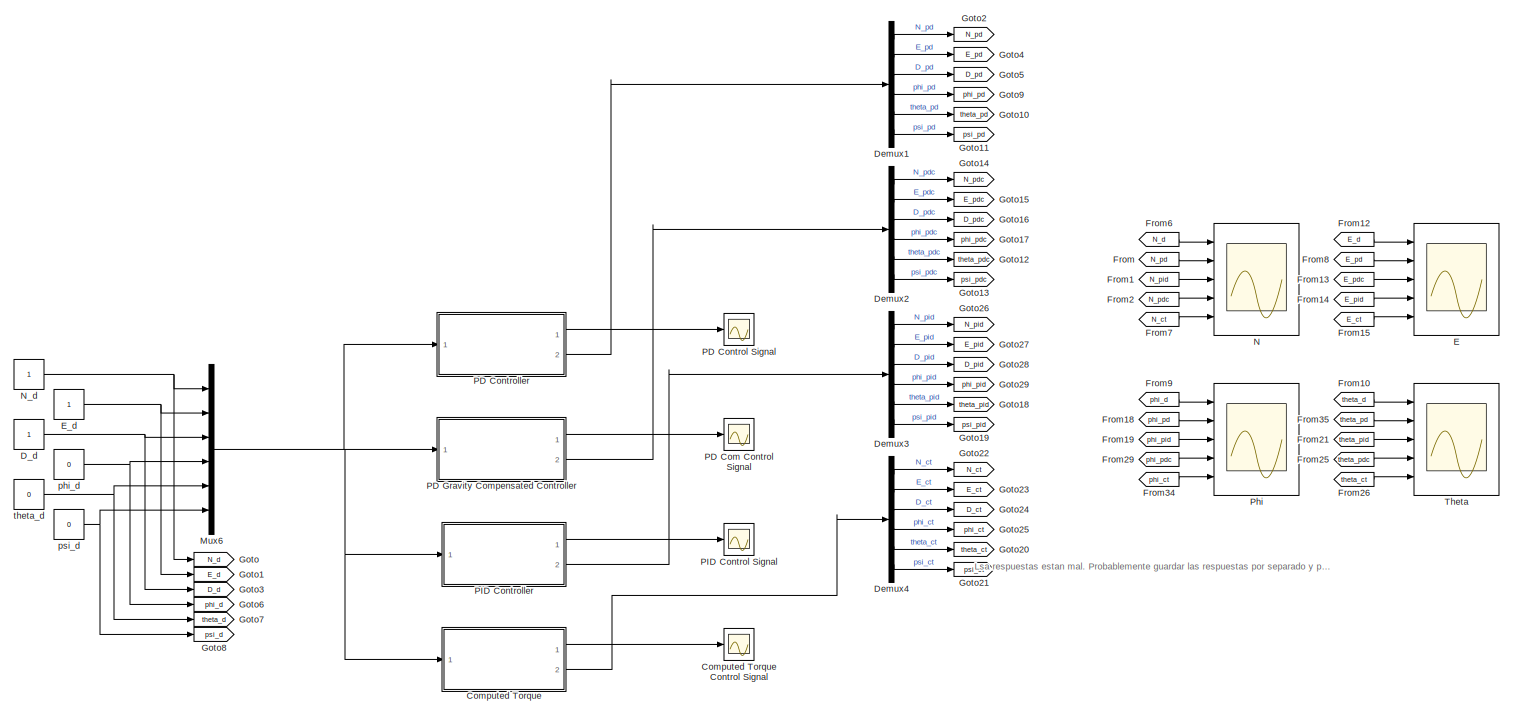
[diagram: root canvas - part 1/2, most of the canvas]
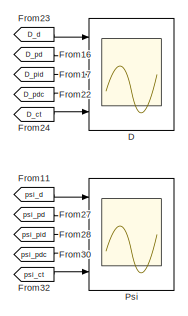
[diagram: root canvas - part 2/2, middle right region]
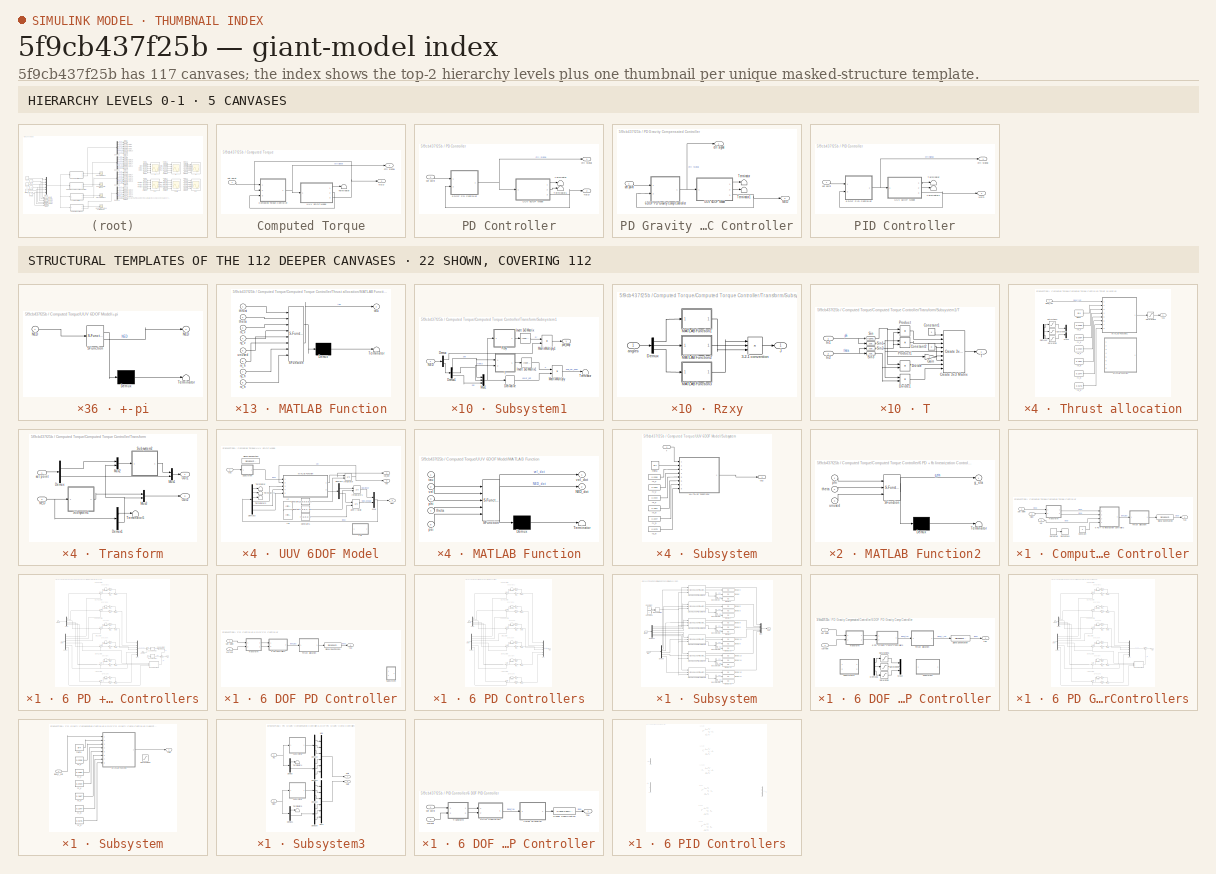
[diagram: thumbnail index - top-2 hierarchy levels (5 canvases) + 22 structural-template representatives of the remaining 112 canvases]
MODEL slx_5f9cb437f25b
KIND model
CONFIG AbsTol = auto
CONFIG EnableMultiTasking = off
CONFIG FixedStep = auto
CONFIG MaxStep = auto
CONFIG MinStep = auto
CONFIG RelTol = 1e-3
CONFIG SampleTimeConstraint = Unconstrained
CONFIG Solver = VariableStepAuto
CONFIG SolverName = VariableStepAuto
CONFIG StartTime = 0.0
CONFIG StopTime = 50
BLOCK [SubSystem] Computed Torque
  Ports = [1, 2]
  RequestExecContextInheritance = off
BLOCK [Scope] Computed Torque Control Signal
  Floating = off
  NumInputPorts = 1
  Ports = [1]
  ScopeSpecificationString = Simulink.scopes.TimeScopeBlockCfg('CurrentConfiguration', extmgr.ConfigurationSet(extmgr.Configuration('Core','General UI',true),extmgr.Configuration('Core','Source UI',true),extmgr.Configuration('Sources','WiredSimulink',true,'DataLoggingVariableName','ScopeData6'),extmgr.Configuration('Visuals','Time Domain',true,'SerializedDisplays',{struct('MinYLimReal','-43.75','MaxYLimReal','43.75','YLabelRe...<+1598ch>
BLOCK [SubSystem] Computed Torque/Computed Torque Controller
  Ports = [3, 1]
  RequestExecContextInheritance = off
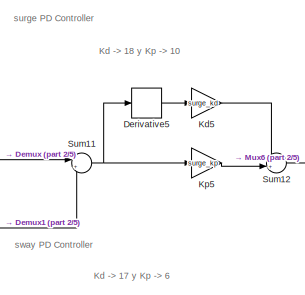
[diagram: Computed Torque/Computed Torque Controller/6 PD + fb linearization Controllers - part 1/5, top center region]
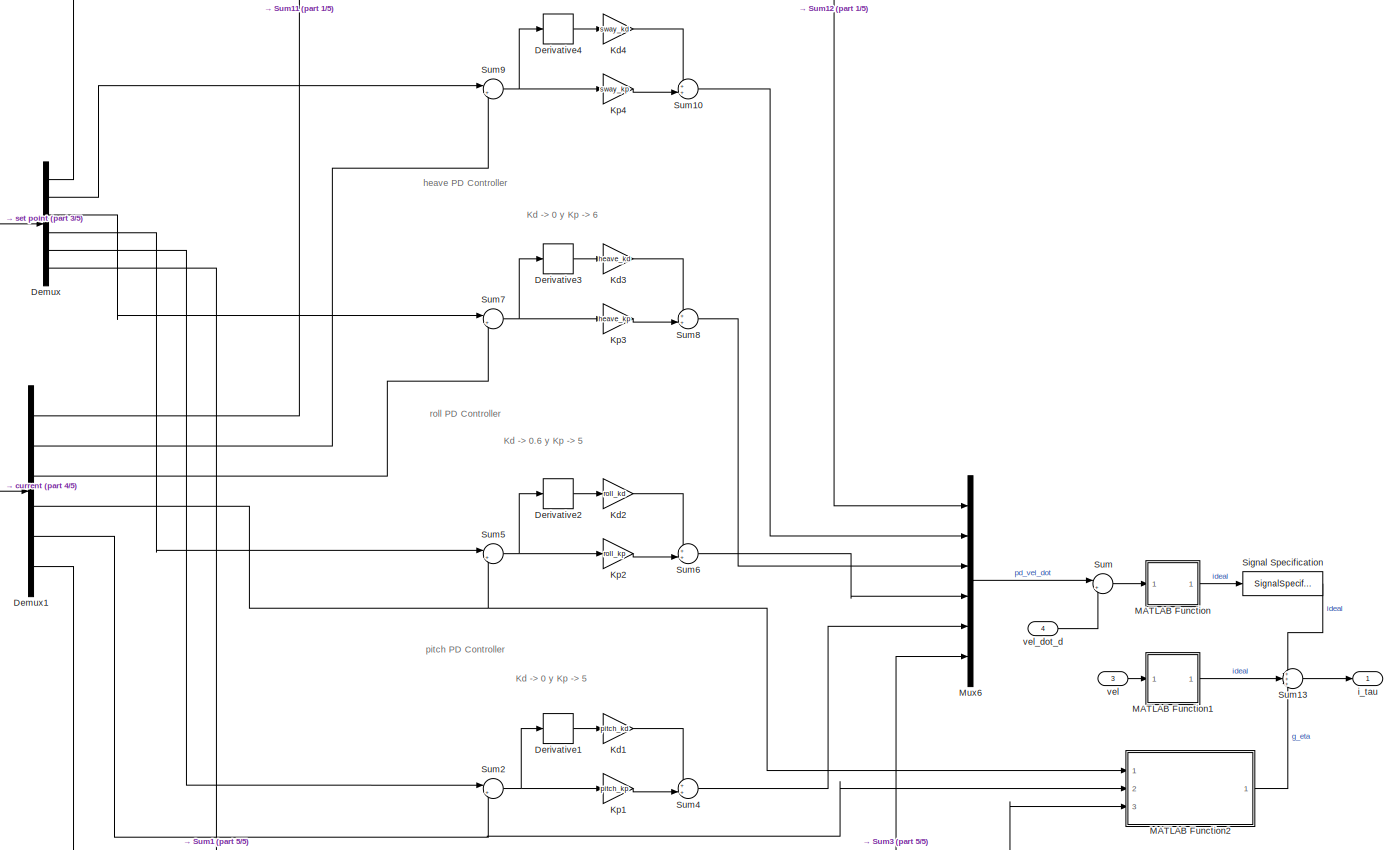
[diagram: Computed Torque/Computed Torque Controller/6 PD + fb linearization Controllers - part 2/5, full width, middle band]
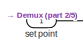
[diagram: Computed Torque/Computed Torque Controller/6 PD + fb linearization Controllers - part 3/5, middle left region]
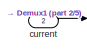
[diagram: Computed Torque/Computed Torque Controller/6 PD + fb linearization Controllers - part 4/5, middle left region]
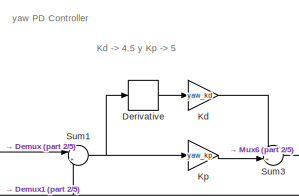
[diagram: Computed Torque/Computed Torque Controller/6 PD + fb linearization Controllers - part 5/5, bottom center region]
BLOCK [SubSystem] Computed Torque/Computed Torque Controller/6 PD + fb linearization Controllers
  Ports = [4, 1]
  RequestExecContextInheritance = off
BLOCK [Demux] Computed Torque/Computed Torque Controller/6 PD + fb linearization Controllers/Demux
  Outputs = 6
  Ports = [1, 6]
BLOCK [Demux] Computed Torque/Computed Torque Controller/6 PD + fb linearization Controllers/Demux1
  Outputs = 6
  Ports = [1, 6]
BLOCK [Derivative] Computed Torque/Computed Torque Controller/6 PD + fb linearization Controllers/Derivative
BLOCK [Derivative] Computed Torque/Computed Torque Controller/6 PD + fb linearization Controllers/Derivative1
BLOCK [Derivative] Computed Torque/Computed Torque Controller/6 PD + fb linearization Controllers/Derivative2
BLOCK [Derivative] Computed Torque/Computed Torque Controller/6 PD + fb linearization Controllers/Derivative3
BLOCK [Derivative] Computed Torque/Computed Torque Controller/6 PD + fb linearization Controllers/Derivative4
BLOCK [Derivative] Computed Torque/Computed Torque Controller/6 PD + fb linearization Controllers/Derivative5
BLOCK [Gain] Computed Torque/Computed Torque Controller/6 PD + fb linearization Controllers/Kd
  Gain = yaw_kd
BLOCK [Gain] Computed Torque/Computed Torque Controller/6 PD + fb linearization Controllers/Kd1
  Gain = pitch_kd
BLOCK [Gain] Computed Torque/Computed Torque Controller/6 PD + fb linearization Controllers/Kd2
  Gain = roll_kd
BLOCK [Gain] Computed Torque/Computed Torque Controller/6 PD + fb linearization Controllers/Kd3
  Gain = heave_kd
BLOCK [Gain] Computed Torque/Computed Torque Controller/6 PD + fb linearization Controllers/Kd4
  Gain = sway_kd
BLOCK [Gain] Computed Torque/Computed Torque Controller/6 PD + fb linearization Controllers/Kd5
  Gain = surge_kd
BLOCK [Gain] Computed Torque/Computed Torque Controller/6 PD + fb linearization Controllers/Kp
  Gain = yaw_kp
BLOCK [Gain] Computed Torque/Computed Torque Controller/6 PD + fb linearization Controllers/Kp1
  Gain = pitch_kp
BLOCK [Gain] Computed Torque/Computed Torque Controller/6 PD + fb linearization Controllers/Kp2
  Gain = roll_kp
BLOCK [Gain] Computed Torque/Computed Torque Controller/6 PD + fb linearization Controllers/Kp3
  Gain = heave_kp
BLOCK [Gain] Computed Torque/Computed Torque Controller/6 PD + fb linearization Controllers/Kp4
  Gain = sway_kp
BLOCK [Gain] Computed Torque/Computed Torque Controller/6 PD + fb linearization Controllers/Kp5
  Gain = surge_kp
BLOCK [SubSystem] Computed Torque/Computed Torque Controller/6 PD + fb linearization Controllers/MATLAB Function
  ErrorFcn = Stateflow.Translate.translate
  PermitHierarchicalResolution = ExplicitOnly
  Ports = [1, 1]
  RequestExecContextInheritance = off
  SFBlockType = MATLAB Function
  TreatAsAtomicUnit = on
BLOCK [Demux] Computed Torque/Computed Torque Controller/6 PD + fb linearization Controllers/MATLAB Function/ Demux 
  Outputs = 1
  Ports = [1, 1]
BLOCK [S-Function] Computed Torque/Computed Torque Controller/6 PD + fb linearization Controllers/MATLAB Function/ SFunction 
  EnableBusSupport = on
  FunctionName = sf_sfun
  PortCounts = [1 2]
  Ports = [1, 2]
  SFcnIsStateOwnerBlock = off
  SFunctionDeploymentMode = off
  Tag = Stateflow S-Function 42
BLOCK [Terminator] Computed Torque/Computed Torque Controller/6 PD + fb linearization Controllers/MATLAB Function/ Terminator 
BLOCK [Outport] Computed Torque/Computed Torque Controller/6 PD + fb linearization Controllers/MATLAB Function/M
BLOCK [Inport] Computed Torque/Computed Torque Controller/6 PD + fb linearization Controllers/MATLAB Function/in
BLOCK [SubSystem] Computed Torque/Computed Torque Controller/6 PD + fb linearization Controllers/MATLAB Function1
  ErrorFcn = Stateflow.Translate.translate
  PermitHierarchicalResolution = ExplicitOnly
  Ports = [1, 1]
  RequestExecContextInheritance = off
  SFBlockType = MATLAB Function
  TreatAsAtomicUnit = on
BLOCK [Demux] Computed Torque/Computed Torque Controller/6 PD + fb linearization Controllers/MATLAB Function1/ Demux 
  Outputs = 1
  Ports = [1, 1]
BLOCK [S-Function] Computed Torque/Computed Torque Controller/6 PD + fb linearization Controllers/MATLAB Function1/ SFunction 
  EnableBusSupport = on
  FunctionName = sf_sfun
  PortCounts = [1 2]
  Ports = [1, 2]
  SFcnIsStateOwnerBlock = off
  SFunctionDeploymentMode = off
  Tag = Stateflow S-Function 43
BLOCK [Terminator] Computed Torque/Computed Torque Controller/6 PD + fb linearization Controllers/MATLAB Function1/ Terminator 
BLOCK [Outport] Computed Torque/Computed Torque Controller/6 PD + fb linearization Controllers/MATLAB Function1/Cv
BLOCK [Inport] Computed Torque/Computed Torque Controller/6 PD + fb linearization Controllers/MATLAB Function1/vel
BLOCK [SubSystem] Computed Torque/Computed Torque Controller/6 PD + fb linearization Controllers/MATLAB Function2
  ErrorFcn = Stateflow.Translate.translate
  PermitHierarchicalResolution = ExplicitOnly
  Ports = [3, 1]
  RequestExecContextInheritance = off
  SFBlockType = MATLAB Function
  TreatAsAtomicUnit = on
BLOCK [Demux] Computed Torque/Computed Torque Controller/6 PD + fb linearization Controllers/MATLAB Function2/ Demux 
  Outputs = 1
  Ports = [1, 1]
BLOCK [S-Function] Computed Torque/Computed Torque Controller/6 PD + fb linearization Controllers/MATLAB Function2/ SFunction 
  EnableBusSupport = on
  FunctionName = sf_sfun
  PortCounts = [3 2]
  Ports = [3, 2]
  SFcnIsStateOwnerBlock = off
  SFunctionDeploymentMode = off
  Tag = Stateflow S-Function 44
BLOCK [Terminator] Computed Torque/Computed Torque Controller/6 PD + fb linearization Controllers/MATLAB Function2/ Terminator 
BLOCK [Outport] Computed Torque/Computed Torque Controller/6 PD + fb linearization Controllers/MATLAB Function2/g_eta
BLOCK [Inport] Computed Torque/Computed Torque Controller/6 PD + fb linearization Controllers/MATLAB Function2/phi
BLOCK [Inport] Computed Torque/Computed Torque Controller/6 PD + fb linearization Controllers/MATLAB Function2/theta
  Port = 2
BLOCK [Inport] Computed Torque/Computed Torque Controller/6 PD + fb linearization Controllers/MATLAB Function2/unused
  Port = 3
BLOCK [Mux] Computed Torque/Computed Torque Controller/6 PD + fb linearization Controllers/Mux6
  DisplayOption = bar
  Inputs = 6
  Ports = [6, 1]
BLOCK [SignalSpecification] Computed Torque/Computed Torque Controller/6 PD + fb linearization Controllers/Signal Specification
  Dimensions = 6
  VarSizeSig = No
BLOCK [Sum] Computed Torque/Computed Torque Controller/6 PD + fb linearization Controllers/Sum
  Inputs = |++
  Ports = [2, 1]
BLOCK [Sum] Computed Torque/Computed Torque Controller/6 PD + fb linearization Controllers/Sum1
  Inputs = |+-
  Ports = [2, 1]
BLOCK [Sum] Computed Torque/Computed Torque Controller/6 PD + fb linearization Controllers/Sum10
  Inputs = ++|
  Ports = [2, 1]
BLOCK [Sum] Computed Torque/Computed Torque Controller/6 PD + fb linearization Controllers/Sum11
  Inputs = |+-
  Ports = [2, 1]
BLOCK [Sum] Computed Torque/Computed Torque Controller/6 PD + fb linearization Controllers/Sum12
  Inputs = ++|
  Ports = [2, 1]
BLOCK [Sum] Computed Torque/Computed Torque Controller/6 PD + fb linearization Controllers/Sum13
  Inputs = +++
  Ports = [3, 1]
BLOCK [Sum] Computed Torque/Computed Torque Controller/6 PD + fb linearization Controllers/Sum2
  Inputs = |+-
  Ports = [2, 1]
BLOCK [Sum] Computed Torque/Computed Torque Controller/6 PD + fb linearization Controllers/Sum3
  Inputs = ++|
  Ports = [2, 1]
BLOCK [Sum] Computed Torque/Computed Torque Controller/6 PD + fb linearization Controllers/Sum4
  Inputs = ++|
  Ports = [2, 1]
BLOCK [Sum] Computed Torque/Computed Torque Controller/6 PD + fb linearization Controllers/Sum5
  Inputs = |+-
  Ports = [2, 1]
BLOCK [Sum] Computed Torque/Computed Torque Controller/6 PD + fb linearization Controllers/Sum6
  Inputs = ++|
  Ports = [2, 1]
BLOCK [Sum] Computed Torque/Computed Torque Controller/6 PD + fb linearization Controllers/Sum7
  Inputs = |+-
  Ports = [2, 1]
BLOCK [Sum] Computed Torque/Computed Torque Controller/6 PD + fb linearization Controllers/Sum8
  Inputs = ++|
  Ports = [2, 1]
BLOCK [Sum] Computed Torque/Computed Torque Controller/6 PD + fb linearization Controllers/Sum9
  Inputs = |+-
  Ports = [2, 1]
BLOCK [Inport] Computed Torque/Computed Torque Controller/6 PD + fb linearization Controllers/current
  Port = 2
BLOCK [Outport] Computed Torque/Computed Torque Controller/6 PD + fb linearization Controllers/i_tau
BLOCK [Inport] Computed Torque/Computed Torque Controller/6 PD + fb linearization Controllers/set point
BLOCK [Inport] Computed Torque/Computed Torque Controller/6 PD + fb linearization Controllers/vel
  Port = 3
BLOCK [Inport] Computed Torque/Computed Torque Controller/6 PD + fb linearization Controllers/vel_dot_d
  Port = 4
BLOCK [Constant] Computed Torque/Computed Torque Controller/Constant
  Value = 0
BLOCK [Derivative] Computed Torque/Computed Torque Controller/Derivative
  Commented = on
BLOCK [Derivative] Computed Torque/Computed Torque Controller/Derivative1
  Commented = on
BLOCK [Inport] Computed Torque/Computed Torque Controller/NED
  Port = 2
BLOCK [SignalSpecification] Computed Torque/Computed Torque Controller/Signal Specification
  Dimensions = 6
  VarSizeSig = No
BLOCK [SubSystem] Computed Torque/Computed Torque Controller/Thrust allocation
  Ports = [1, 1]
  RequestExecContextInheritance = off
BLOCK [Demux] Computed Torque/Computed Torque Controller/Thrust allocation/Demux6
  Commented = on
  Outputs = 3
  Ports = [1, 3]
BLOCK [SubSystem] Computed Torque/Computed Torque Controller/Thrust allocation/MATLAB Function
  Commented = on
  ErrorFcn = Stateflow.Translate.translate
  PermitHierarchicalResolution = ExplicitOnly
  Ports = [8, 1]
  RequestExecContextInheritance = off
  SFBlockType = MATLAB Function
  TreatAsAtomicUnit = on
BLOCK [Demux] Computed Torque/Computed Torque Controller/Thrust allocation/MATLAB Function/ Demux 
  Outputs = 1
  Ports = [1, 1]
BLOCK [S-Function] Computed Torque/Computed Torque Controller/Thrust allocation/MATLAB Function/ SFunction 
  EnableBusSupport = on
  FunctionName = sf_sfun
  PortCounts = [8 2]
  Ports = [8, 2]
  SFcnIsStateOwnerBlock = off
  SFunctionDeploymentMode = off
  Tag = Stateflow S-Function 45
BLOCK [Terminator] Computed Torque/Computed Torque Controller/Thrust allocation/MATLAB Function/ Terminator 
BLOCK [Inport] Computed Torque/Computed Torque Controller/Thrust allocation/MATLAB Function/rx_h
  Port = 6
BLOCK [Inport] Computed Torque/Computed Torque Controller/Thrust allocation/MATLAB Function/rx_v
  Port = 3
BLOCK [Inport] Computed Torque/Computed Torque Controller/Thrust allocation/MATLAB Function/ry_h
  Port = 7
BLOCK [Inport] Computed Torque/Computed Torque Controller/Thrust allocation/MATLAB Function/ry_v
  Port = 4
BLOCK [Inport] Computed Torque/Computed Torque Controller/Thrust allocation/MATLAB Function/rz_h
  Port = 8
BLOCK [Outport] Computed Torque/Computed Torque Controller/Thrust allocation/MATLAB Function/tau
BLOCK [Inport] Computed Torque/Computed Torque Controller/Thrust allocation/MATLAB Function/theta
  Port = 2
BLOCK [Inport] Computed Torque/Computed Torque Controller/Thrust allocation/MATLAB Function/thrust
BLOCK [Inport] Computed Torque/Computed Torque Controller/Thrust allocation/MATLAB Function/unused
  Port = 5
BLOCK [SubSystem] Computed Torque/Computed Torque Controller/Thrust allocation/MATLAB Function1
  ErrorFcn = Stateflow.Translate.translate
  PermitHierarchicalResolution = ExplicitOnly
  Ports = [8, 1]
  RequestExecContextInheritance = off
  SFBlockType = MATLAB Function
  TreatAsAtomicUnit = on
BLOCK [Demux] Computed Torque/Computed Torque Controller/Thrust allocation/MATLAB Function1/ Demux 
  Outputs = 1
  Ports = [1, 1]
BLOCK [S-Function] Computed Torque/Computed Torque Controller/Thrust allocation/MATLAB Function1/ SFunction 
  EnableBusSupport = on
  FunctionName = sf_sfun
  PortCounts = [8 2]
  Ports = [8, 2]
  SFcnIsStateOwnerBlock = off
  SFunctionDeploymentMode = off
  Tag = Stateflow S-Function 46
BLOCK [Terminator] Computed Torque/Computed Torque Controller/Thrust allocation/MATLAB Function1/ Terminator 
BLOCK [Inport] Computed Torque/Computed Torque Controller/Thrust allocation/MATLAB Function1/alpha
  Port = 2
BLOCK [Inport] Computed Torque/Computed Torque Controller/Thrust allocation/MATLAB Function1/rx_h
  Port = 6
BLOCK [Inport] Computed Torque/Computed Torque Controller/Thrust allocation/MATLAB Function1/rx_v
  Port = 3
BLOCK [Inport] Computed Torque/Computed Torque Controller/Thrust allocation/MATLAB Function1/ry_h
  Port = 7
BLOCK [Inport] Computed Torque/Computed Torque Controller/Thrust allocation/MATLAB Function1/ry_v
  Port = 4
BLOCK [Inport] Computed Torque/Computed Torque Controller/Thrust allocation/MATLAB Function1/rz_h
  Port = 8
BLOCK [Inport] Computed Torque/Computed Torque Controller/Thrust allocation/MATLAB Function1/tau
BLOCK [Outport] Computed Torque/Computed Torque Controller/Thrust allocation/MATLAB Function1/thrust
BLOCK [Inport] Computed Torque/Computed Torque Controller/Thrust allocation/MATLAB Function1/unused
  Port = 5
BLOCK [Mux] Computed Torque/Computed Torque Controller/Thrust allocation/Mux2
  Commented = on
  DisplayOption = bar
  Inputs = 3
  Ports = [3, 1]
BLOCK [Saturate] Computed Torque/Computed Torque Controller/Thrust allocation/Saturation
  Commented = on
  LowerLimit = -70
  UpperLimit = 70
BLOCK [Saturate] Computed Torque/Computed Torque Controller/Thrust allocation/Saturation1
  Commented = on
  LowerLimit = -100
  UpperLimit = 100
BLOCK [Saturate] Computed Torque/Computed Torque Controller/Thrust allocation/Saturation2
  Commented = on
  LowerLimit = -100
  UpperLimit = 100
BLOCK [Saturate] Computed Torque/Computed Torque Controller/Thrust allocation/Saturation3
  LowerLimit = -35
  UpperLimit = 35
BLOCK [Constant] Computed Torque/Computed Torque Controller/Thrust allocation/alpha
  Value = pi/4
BLOCK [Inport] Computed Torque/Computed Torque Controller/Thrust allocation/ideal_tau
BLOCK [Constant] Computed Torque/Computed Torque Controller/Thrust allocation/rx_h
  Value = 0.1867
BLOCK [Constant] Computed Torque/Computed Torque Controller/Thrust allocation/rx_v
  Value = 0.0395
BLOCK [Constant] Computed Torque/Computed Torque Controller/Thrust allocation/ry_h
  Value = 0.2347
BLOCK [Constant] Computed Torque/Computed Torque Controller/Thrust allocation/ry_v
  Value = 0.2384
BLOCK [Constant] Computed Torque/Computed Torque Controller/Thrust allocation/rz_h
  Value = 0.0175
BLOCK [Constant] Computed Torque/Computed Torque Controller/Thrust allocation/rz_v
  Value = 0.0404
BLOCK [Outport] Computed Torque/Computed Torque Controller/Thrust allocation/tau
BLOCK [SubSystem] Computed Torque/Computed Torque Controller/Transform
  Ports = [2, 2]
  RequestExecContextInheritance = off
BLOCK [Demux] Computed Torque/Computed Torque Controller/Transform/Demux
  Outputs = 2
  Ports = [1, 2]
BLOCK [Demux] Computed Torque/Computed Torque Controller/Transform/Demux1
  Outputs = 2
  Ports = [1, 2]
BLOCK [Mux] Computed Torque/Computed Torque Controller/Transform/Mux1
  DisplayOption = bar
  Inputs = 2
  Ports = [2, 1]
BLOCK [Mux] Computed Torque/Computed Torque Controller/Transform/Mux2
  DisplayOption = bar
  Inputs = 2
  Ports = [2, 1]
BLOCK [Mux] Computed Torque/Computed Torque Controller/Transform/Mux3
  DisplayOption = bar
  Inputs = 2
  Ports = [2, 1]
BLOCK [Inport] Computed Torque/Computed Torque Controller/Transform/NED
  Port = 2
BLOCK [Outport] Computed Torque/Computed Torque Controller/Transform/Out1
BLOCK [Outport] Computed Torque/Computed Torque Controller/Transform/Out2
  Port = 2
BLOCK [SubSystem] Computed Torque/Computed Torque Controller/Transform/Subsystem1
  Ports = [1, 1]
  RequestExecContextInheritance = off
BLOCK [Demux] Computed Torque/Computed Torque Controller/Transform/Subsystem1/Demux
  Outputs = 2
  Ports = [1, 2]
BLOCK [Demux] Computed Torque/Computed Torque Controller/Transform/Subsystem1/Demux1
  Outputs = 3
  Ports = [1, 3]
BLOCK [Derivative] Computed Torque/Computed Torque Controller/Transform/Subsystem1/Derivative
  Commented = on
BLOCK [Reference] Computed Torque/Computed Torque Controller/Transform/Subsystem1/Invert 3x3 Matrix  REF=aerolibutil/Invert 
3x3 Matrix
  Ports = [1, 1]
  SourceBlock = aerolibutil/Invert \n3x3 Matrix
  SourceProductBaseCode = AE
  SourceType = Invert 3x3 Matrix
BLOCK [Reference] Computed Torque/Computed Torque Controller/Transform/Subsystem1/Invert 3x3 Matrix1  REF=aerolibutil/Invert 
3x3 Matrix
  Commented = on
  Ports = [1, 1]
  SourceBlock = aerolibutil/Invert \n3x3 Matrix
  SourceProductBaseCode = AE
  SourceType = Invert 3x3 Matrix
BLOCK [Product] Computed Torque/Computed Torque Controller/Transform/Subsystem1/MatrixMultiply
  Commented = on
  Multiplication = Matrix(*)
  Ports = [2, 1]
BLOCK [Product] Computed Torque/Computed Torque Controller/Transform/Subsystem1/MatrixMultiply1
  Multiplication = Matrix(*)
  Ports = [2, 1]
BLOCK [Mux] Computed Torque/Computed Torque Controller/Transform/Subsystem1/Mux1
  DisplayOption = bar
  Inputs = 3
  Ports = [3, 1]
BLOCK [Inport] Computed Torque/Computed Torque Controller/Transform/Subsystem1/NED
BLOCK [SubSystem] Computed Torque/Computed Torque Controller/Transform/Subsystem1/Rzxy
  Ports = [1, 1]
  RequestExecContextInheritance = off
BLOCK [Product] Computed Torque/Computed Torque Controller/Transform/Subsystem1/Rzxy/3-2-1 convention
  Inputs = 3
  Multiplication = Matrix(*)
  Ports = [3, 1]
BLOCK [Demux] Computed Torque/Computed Torque Controller/Transform/Subsystem1/Rzxy/Demux
  Outputs = 3
  Ports = [1, 3]
BLOCK [Outport] Computed Torque/Computed Torque Controller/Transform/Subsystem1/Rzxy/J
BLOCK [SubSystem] Computed Torque/Computed Torque Controller/Transform/Subsystem1/Rzxy/MATLAB Function1
  ErrorFcn = Stateflow.Translate.translate
  PermitHierarchicalResolution = ExplicitOnly
  Ports = [1, 1]
  RequestExecContextInheritance = off
  SFBlockType = MATLAB Function
  TreatAsAtomicUnit = on
BLOCK [Demux] Computed Torque/Computed Torque Controller/Transform/Subsystem1/Rzxy/MATLAB Function1/ Demux 
  Outputs = 1
  Ports = [1, 1]
BLOCK [S-Function] Computed Torque/Computed Torque Controller/Transform/Subsystem1/Rzxy/MATLAB Function1/ SFunction 
  EnableBusSupport = on
  FunctionName = sf_sfun
  PortCounts = [1 2]
  Ports = [1, 2]
  SFcnIsStateOwnerBlock = off
  SFunctionDeploymentMode = off
  Tag = Stateflow S-Function 47
BLOCK [Terminator] Computed Torque/Computed Torque Controller/Transform/Subsystem1/Rzxy/MATLAB Function1/ Terminator 
BLOCK [Outport] Computed Torque/Computed Torque Controller/Transform/Subsystem1/Rzxy/MATLAB Function1/Rx
BLOCK [Inport] Computed Torque/Computed Torque Controller/Transform/Subsystem1/Rzxy/MATLAB Function1/phi
BLOCK [SubSystem] Computed Torque/Computed Torque Controller/Transform/Subsystem1/Rzxy/MATLAB Function2
  ErrorFcn = Stateflow.Translate.translate
  PermitHierarchicalResolution = ExplicitOnly
  Ports = [1, 1]
  RequestExecContextInheritance = off
  SFBlockType = MATLAB Function
  TreatAsAtomicUnit = on
BLOCK [Demux] Computed Torque/Computed Torque Controller/Transform/Subsystem1/Rzxy/MATLAB Function2/ Demux 
  Outputs = 1
  Ports = [1, 1]
BLOCK [S-Function] Computed Torque/Computed Torque Controller/Transform/Subsystem1/Rzxy/MATLAB Function2/ SFunction 
  EnableBusSupport = on
  FunctionName = sf_sfun
  PortCounts = [1 2]
  Ports = [1, 2]
  SFcnIsStateOwnerBlock = off
  SFunctionDeploymentMode = off
  Tag = Stateflow S-Function 48
BLOCK [Terminator] Computed Torque/Computed Torque Controller/Transform/Subsystem1/Rzxy/MATLAB Function2/ Terminator 
BLOCK [Outport] Computed Torque/Computed Torque Controller/Transform/Subsystem1/Rzxy/MATLAB Function2/Ry
BLOCK [Inport] Computed Torque/Computed Torque Controller/Transform/Subsystem1/Rzxy/MATLAB Function2/theta
BLOCK [SubSystem] Computed Torque/Computed Torque Controller/Transform/Subsystem1/Rzxy/MATLAB Function3
  ErrorFcn = Stateflow.Translate.translate
  PermitHierarchicalResolution = ExplicitOnly
  Ports = [1, 1]
  RequestExecContextInheritance = off
  SFBlockType = MATLAB Function
  TreatAsAtomicUnit = on
BLOCK [Demux] Computed Torque/Computed Torque Controller/Transform/Subsystem1/Rzxy/MATLAB Function3/ Demux 
  Outputs = 1
  Ports = [1, 1]
BLOCK [S-Function] Computed Torque/Computed Torque Controller/Transform/Subsystem1/Rzxy/MATLAB Function3/ SFunction 
  EnableBusSupport = on
  FunctionName = sf_sfun
  PortCounts = [1 2]
  Ports = [1, 2]
  SFcnIsStateOwnerBlock = off
  SFunctionDeploymentMode = off
  Tag = Stateflow S-Function 49
BLOCK [Terminator] Computed Torque/Computed Torque Controller/Transform/Subsystem1/Rzxy/MATLAB Function3/ Terminator 
BLOCK [Outport] Computed Torque/Computed Torque Controller/Transform/Subsystem1/Rzxy/MATLAB Function3/Rz
BLOCK [Inport] Computed Torque/Computed Torque Controller/Transform/Subsystem1/Rzxy/MATLAB Function3/psi
BLOCK [Inport] Computed Torque/Computed Torque Controller/Transform/Subsystem1/Rzxy/angles
BLOCK [SubSystem] Computed Torque/Computed Torque Controller/Transform/Subsystem1/T
  Commented = on
  Ports = [2, 1]
  RequestExecContextInheritance = off
BLOCK [Constant] Computed Torque/Computed Torque Controller/Transform/Subsystem1/T/Constant1
BLOCK [Constant] Computed Torque/Computed Torque Controller/Transform/Subsystem1/T/Constant2
  Value = 0
BLOCK [Reference] Computed Torque/Computed Torque Controller/Transform/Subsystem1/T/Create 3x3 Matrix  REF=sharedutil/Create 3x3 Matrix
  Ports = [9, 1]
  SourceBlock = sharedutil/Create 3x3 Matrix
  SourceProductBaseCode = AE,PW,MT,VE,VP
  SourceType = Create 3x3 Matrix
BLOCK [Product] Computed Torque/Computed Torque Controller/Transform/Subsystem1/T/Divide
  Inputs = */
  Ports = [2, 1]
BLOCK [Product] Computed Torque/Computed Torque Controller/Transform/Subsystem1/T/Divide1
  Inputs = */
  Ports = [2, 1]
BLOCK [Gain] Computed Torque/Computed Torque Controller/Transform/Subsystem1/T/Gain
  Gain = -1
BLOCK [Inport] Computed Torque/Computed Torque Controller/Transform/Subsystem1/T/In1
BLOCK [Inport] Computed Torque/Computed Torque Controller/Transform/Subsystem1/T/In2
  Port = 2
BLOCK [Product] Computed Torque/Computed Torque Controller/Transform/Subsystem1/T/Product
  Ports = [2, 1]
BLOCK [Product] Computed Torque/Computed Torque Controller/Transform/Subsystem1/T/Product1
  Ports = [2, 1]
BLOCK [Trigonometry] Computed Torque/Computed Torque Controller/Transform/Subsystem1/T/Sin
  Ports = [1, 1]
BLOCK [Trigonometry] Computed Torque/Computed Torque Controller/Transform/Subsystem1/T/Sin1
  Operator = cos
  Ports = [1, 1]
BLOCK [Trigonometry] Computed Torque/Computed Torque Controller/Transform/Subsystem1/T/Sin2
  Operator = tan
  Ports = [1, 1]
BLOCK [Trigonometry] Computed Torque/Computed Torque Controller/Transform/Subsystem1/T/Sin3
  Operator = cos
  Ports = [1, 1]
BLOCK [Outport] Computed Torque/Computed Torque Controller/Transform/Subsystem1/T/T
BLOCK [Terminator] Computed Torque/Computed Torque Controller/Transform/Subsystem1/Terminator
  Commented = on
BLOCK [Outport] Computed Torque/Computed Torque Controller/Transform/Subsystem1/pos_body
BLOCK [SubSystem] Computed Torque/Computed Torque Controller/Transform/Subsystem2
  Ports = [1, 1]
  RequestExecContextInheritance = off
BLOCK [Demux] Computed Torque/Computed Torque Controller/Transform/Subsystem2/Demux
  Outputs = 2
  Ports = [1, 2]
BLOCK [Demux] Computed Torque/Computed Torque Controller/Transform/Subsystem2/Demux1
  Outputs = 3
  Ports = [1, 3]
BLOCK [Derivative] Computed Torque/Computed Torque Controller/Transform/Subsystem2/Derivative
  Commented = on
BLOCK [Reference] Computed Torque/Computed Torque Controller/Transform/Subsystem2/Invert 3x3 Matrix  REF=aerolibutil/Invert 
3x3 Matrix
  Ports = [1, 1]
  SourceBlock = aerolibutil/Invert \n3x3 Matrix
  SourceProductBaseCode = AE
  SourceType = Invert 3x3 Matrix
BLOCK [Reference] Computed Torque/Computed Torque Controller/Transform/Subsystem2/Invert 3x3 Matrix1  REF=aerolibutil/Invert 
3x3 Matrix
  Commented = on
  Ports = [1, 1]
  SourceBlock = aerolibutil/Invert \n3x3 Matrix
  SourceProductBaseCode = AE
  SourceType = Invert 3x3 Matrix
BLOCK [Product] Computed Torque/Computed Torque Controller/Transform/Subsystem2/MatrixMultiply
  Commented = on
  Multiplication = Matrix(*)
  Ports = [2, 1]
BLOCK [Product] Computed Torque/Computed Torque Controller/Transform/Subsystem2/MatrixMultiply1
  Multiplication = Matrix(*)
  Ports = [2, 1]
BLOCK [Mux] Computed Torque/Computed Torque Controller/Transform/Subsystem2/Mux1
  DisplayOption = bar
  Inputs = 3
  Ports = [3, 1]
BLOCK [Inport] Computed Torque/Computed Torque Controller/Transform/Subsystem2/NED
BLOCK [SubSystem] Computed Torque/Computed Torque Controller/Transform/Subsystem2/Rzxy
  Ports = [1, 1]
  RequestExecContextInheritance = off
BLOCK [Product] Computed Torque/Computed Torque Controller/Transform/Subsystem2/Rzxy/3-2-1 convention
  Inputs = 3
  Multiplication = Matrix(*)
  Ports = [3, 1]
BLOCK [Demux] Computed Torque/Computed Torque Controller/Transform/Subsystem2/Rzxy/Demux
  Outputs = 3
  Ports = [1, 3]
BLOCK [Outport] Computed Torque/Computed Torque Controller/Transform/Subsystem2/Rzxy/J
BLOCK [SubSystem] Computed Torque/Computed Torque Controller/Transform/Subsystem2/Rzxy/MATLAB Function1
  ErrorFcn = Stateflow.Translate.translate
  PermitHierarchicalResolution = ExplicitOnly
  Ports = [1, 1]
  RequestExecContextInheritance = off
  SFBlockType = MATLAB Function
  TreatAsAtomicUnit = on
BLOCK [Demux] Computed Torque/Computed Torque Controller/Transform/Subsystem2/Rzxy/MATLAB Function1/ Demux 
  Outputs = 1
  Ports = [1, 1]
BLOCK [S-Function] Computed Torque/Computed Torque Controller/Transform/Subsystem2/Rzxy/MATLAB Function1/ SFunction 
  EnableBusSupport = on
  FunctionName = sf_sfun
  PortCounts = [1 2]
  Ports = [1, 2]
  SFcnIsStateOwnerBlock = off
  SFunctionDeploymentMode = off
  Tag = Stateflow S-Function 50
BLOCK [Terminator] Computed Torque/Computed Torque Controller/Transform/Subsystem2/Rzxy/MATLAB Function1/ Terminator 
BLOCK [Outport] Computed Torque/Computed Torque Controller/Transform/Subsystem2/Rzxy/MATLAB Function1/Rx
BLOCK [Inport] Computed Torque/Computed Torque Controller/Transform/Subsystem2/Rzxy/MATLAB Function1/phi
BLOCK [SubSystem] Computed Torque/Computed Torque Controller/Transform/Subsystem2/Rzxy/MATLAB Function2
  ErrorFcn = Stateflow.Translate.translate
  PermitHierarchicalResolution = ExplicitOnly
  Ports = [1, 1]
  RequestExecContextInheritance = off
  SFBlockType = MATLAB Function
  TreatAsAtomicUnit = on
BLOCK [Demux] Computed Torque/Computed Torque Controller/Transform/Subsystem2/Rzxy/MATLAB Function2/ Demux 
  Outputs = 1
  Ports = [1, 1]
BLOCK [S-Function] Computed Torque/Computed Torque Controller/Transform/Subsystem2/Rzxy/MATLAB Function2/ SFunction 
  EnableBusSupport = on
  FunctionName = sf_sfun
  PortCounts = [1 2]
  Ports = [1, 2]
  SFcnIsStateOwnerBlock = off
  SFunctionDeploymentMode = off
  Tag = Stateflow S-Function 51
BLOCK [Terminator] Computed Torque/Computed Torque Controller/Transform/Subsystem2/Rzxy/MATLAB Function2/ Terminator 
BLOCK [Outport] Computed Torque/Computed Torque Controller/Transform/Subsystem2/Rzxy/MATLAB Function2/Ry
BLOCK [Inport] Computed Torque/Computed Torque Controller/Transform/Subsystem2/Rzxy/MATLAB Function2/theta
BLOCK [SubSystem] Computed Torque/Computed Torque Controller/Transform/Subsystem2/Rzxy/MATLAB Function3
  ErrorFcn = Stateflow.Translate.translate
  PermitHierarchicalResolution = ExplicitOnly
  Ports = [1, 1]
  RequestExecContextInheritance = off
  SFBlockType = MATLAB Function
  TreatAsAtomicUnit = on
BLOCK [Demux] Computed Torque/Computed Torque Controller/Transform/Subsystem2/Rzxy/MATLAB Function3/ Demux 
  Outputs = 1
  Ports = [1, 1]
BLOCK [S-Function] Computed Torque/Computed Torque Controller/Transform/Subsystem2/Rzxy/MATLAB Function3/ SFunction 
  EnableBusSupport = on
  FunctionName = sf_sfun
  PortCounts = [1 2]
  Ports = [1, 2]
  SFcnIsStateOwnerBlock = off
  SFunctionDeploymentMode = off
  Tag = Stateflow S-Function 52
BLOCK [Terminator] Computed Torque/Computed Torque Controller/Transform/Subsystem2/Rzxy/MATLAB Function3/ Terminator 
BLOCK [Outport] Computed Torque/Computed Torque Controller/Transform/Subsystem2/Rzxy/MATLAB Function3/Rz
BLOCK [Inport] Computed Torque/Computed Torque Controller/Transform/Subsystem2/Rzxy/MATLAB Function3/psi
BLOCK [Inport] Computed Torque/Computed Torque Controller/Transform/Subsystem2/Rzxy/angles
BLOCK [SubSystem] Computed Torque/Computed Torque Controller/Transform/Subsystem2/T
  Commented = on
  Ports = [2, 1]
  RequestExecContextInheritance = off
BLOCK [Constant] Computed Torque/Computed Torque Controller/Transform/Subsystem2/T/Constant1
BLOCK [Constant] Computed Torque/Computed Torque Controller/Transform/Subsystem2/T/Constant2
  Value = 0
BLOCK [Reference] Computed Torque/Computed Torque Controller/Transform/Subsystem2/T/Create 3x3 Matrix  REF=sharedutil/Create 3x3 Matrix
  Ports = [9, 1]
  SourceBlock = sharedutil/Create 3x3 Matrix
  SourceProductBaseCode = AE,PW,MT,VE,VP
  SourceType = Create 3x3 Matrix
BLOCK [Product] Computed Torque/Computed Torque Controller/Transform/Subsystem2/T/Divide
  Inputs = */
  Ports = [2, 1]
BLOCK [Product] Computed Torque/Computed Torque Controller/Transform/Subsystem2/T/Divide1
  Inputs = */
  Ports = [2, 1]
BLOCK [Gain] Computed Torque/Computed Torque Controller/Transform/Subsystem2/T/Gain
  Gain = -1
BLOCK [Inport] Computed Torque/Computed Torque Controller/Transform/Subsystem2/T/In1
BLOCK [Inport] Computed Torque/Computed Torque Controller/Transform/Subsystem2/T/In2
  Port = 2
BLOCK [Product] Computed Torque/Computed Torque Controller/Transform/Subsystem2/T/Product
  Ports = [2, 1]
BLOCK [Product] Computed Torque/Computed Torque Controller/Transform/Subsystem2/T/Product1
  Ports = [2, 1]
BLOCK [Trigonometry] Computed Torque/Computed Torque Controller/Transform/Subsystem2/T/Sin
  Ports = [1, 1]
BLOCK [Trigonometry] Computed Torque/Computed Torque Controller/Transform/Subsystem2/T/Sin1
  Operator = cos
  Ports = [1, 1]
BLOCK [Trigonometry] Computed Torque/Computed Torque Controller/Transform/Subsystem2/T/Sin2
  Operator = tan
  Ports = [1, 1]
BLOCK [Trigonometry] Computed Torque/Computed Torque Controller/Transform/Subsystem2/T/Sin3
  Operator = cos
  Ports = [1, 1]
BLOCK [Outport] Computed Torque/Computed Torque Controller/Transform/Subsystem2/T/T
BLOCK [Terminator] Computed Torque/Computed Torque Controller/Transform/Subsystem2/Terminator
  Commented = on
BLOCK [Outport] Computed Torque/Computed Torque Controller/Transform/Subsystem2/pos_body
BLOCK [Terminator] Computed Torque/Computed Torque Controller/Transform/Terminator5
BLOCK [Inport] Computed Torque/Computed Torque Controller/Transform/set point
BLOCK [Inport] Computed Torque/Computed Torque Controller/set point
BLOCK [Outport] Computed Torque/Computed Torque Controller/tau
BLOCK [Inport] Computed Torque/Computed Torque Controller/vel
  Port = 3
BLOCK [Outport] Computed Torque/NED
  Port = 2
BLOCK [Terminator] Computed Torque/Terminator
BLOCK [SubSystem] Computed Torque/UUV 6DOF Model
  Ports = [1, 3]
  RequestExecContextInheritance = off
BLOCK [SubSystem] Computed Torque/UUV 6DOF Model/+-pi
  Commented = on
  ErrorFcn = Stateflow.Translate.translate
  PermitHierarchicalResolution = ExplicitOnly
  Ports = [1, 1]
  RequestExecContextInheritance = off
  SFBlockType = MATLAB Function
  TreatAsAtomicUnit = on
BLOCK [Demux] Computed Torque/UUV 6DOF Model/+-pi/ Demux 
  Outputs = 1
  Ports = [1, 1]
BLOCK [S-Function] Computed Torque/UUV 6DOF Model/+-pi/ SFunction 
  EnableBusSupport = on
  FunctionName = sf_sfun
  PortCounts = [1 2]
  Ports = [1, 2]
  SFcnIsStateOwnerBlock = off
  SFunctionDeploymentMode = off
  Tag = Stateflow S-Function 53
BLOCK [Terminator] Computed Torque/UUV 6DOF Model/+-pi/ Terminator 
BLOCK [Outport] Computed Torque/UUV 6DOF Model/+-pi/NED
BLOCK [Inport] Computed Torque/UUV 6DOF Model/+-pi/NED 
BLOCK [Constant] Computed Torque/UUV 6DOF Model/Constant
  Value = [-0.5;4;-3]
BLOCK [Constant] Computed Torque/UUV 6DOF Model/Constant1
  Value = [0.5;0.2;1]
BLOCK [Constant] Computed Torque/UUV 6DOF Model/Constant2
  Value = [0;0;0;0;0;0]
BLOCK [Demux] Computed Torque/UUV 6DOF Model/Demux1
  Outputs = 2
  Ports = [1, 2]
BLOCK [Demux] Computed Torque/UUV 6DOF Model/Demux3
  Outputs = 6
  Ports = [1, 6]
BLOCK [InitialCondition] Computed Torque/UUV 6DOF Model/IC
  Commented = on
  Value = [0;0;0;0;0;0]
BLOCK [InitialCondition] Computed Torque/UUV 6DOF Model/IC1
  Commented = on
  NameLocation = top
  Value = [1;1;1;1;1;1]
BLOCK [Integrator] Computed Torque/UUV 6DOF Model/Integrator
  InitialConditionSource = external
  Ports = [2, 1]
BLOCK [Integrator] Computed Torque/UUV 6DOF Model/Integrator1
  InitialConditionSource = external
  Ports = [2, 1]
BLOCK [Integrator] Computed Torque/UUV 6DOF Model/Limit [-pi,pi]
  InitialConditionSource = external
  Ports = [2, 1]
  WrapState = on
BLOCK [SubSystem] Computed Torque/UUV 6DOF Model/MATLAB Function
  ErrorFcn = Stateflow.Translate.translate
  PermitHierarchicalResolution = ExplicitOnly
  Ports = [5, 2]
  RequestExecContextInheritance = off
  SFBlockType = MATLAB Function
  TreatAsAtomicUnit = on
BLOCK [Demux] Computed Torque/UUV 6DOF Model/MATLAB Function/ Demux 
  Outputs = 1
  Ports = [1, 1]
BLOCK [S-Function] Computed Torque/UUV 6DOF Model/MATLAB Function/ SFunction 
  EnableBusSupport = on
  FunctionName = sf_sfun
  PortCounts = [5 3]
  Ports = [5, 3]
  SFcnIsStateOwnerBlock = off
  SFunctionDeploymentMode = off
  Tag = Stateflow S-Function 54
BLOCK [Terminator] Computed Torque/UUV 6DOF Model/MATLAB Function/ Terminator 
BLOCK [Outport] Computed Torque/UUV 6DOF Model/MATLAB Function/NED_dot
  Port = 2
BLOCK [Inport] Computed Torque/UUV 6DOF Model/MATLAB Function/phi
  Port = 3
BLOCK [Inport] Computed Torque/UUV 6DOF Model/MATLAB Function/psi
  Port = 5
BLOCK [Inport] Computed Torque/UUV 6DOF Model/MATLAB Function/tau
BLOCK [Inport] Computed Torque/UUV 6DOF Model/MATLAB Function/theta
  Port = 4
BLOCK [Inport] Computed Torque/UUV 6DOF Model/MATLAB Function/vel
  Port = 2
BLOCK [Outport] Computed Torque/UUV 6DOF Model/MATLAB Function/vel_dot
BLOCK [Mux] Computed Torque/UUV 6DOF Model/Mux
  DisplayOption = bar
  Inputs = 2
  Ports = [2, 1]
BLOCK [Outport] Computed Torque/UUV 6DOF Model/NED
  Port = 3
BLOCK [SignalSpecification] Computed Torque/UUV 6DOF Model/Signal Specification
  Commented = on
  Dimensions = 6
  VarSizeSig = No
BLOCK [SubSystem] Computed Torque/UUV 6DOF Model/Subsystem
  Ports = [1, 1]
  RequestExecContextInheritance = off
BLOCK [SubSystem] Computed Torque/UUV 6DOF Model/Subsystem/MATLAB Function1
  ErrorFcn = Stateflow.Translate.translate
  PermitHierarchicalResolution = ExplicitOnly
  Ports = [8, 1]
  RequestExecContextInheritance = off
  SFBlockType = MATLAB Function
  TreatAsAtomicUnit = on
BLOCK [Demux] Computed Torque/UUV 6DOF Model/Subsystem/MATLAB Function1/ Demux 
  Outputs = 1
  Ports = [1, 1]
BLOCK [S-Function] Computed Torque/UUV 6DOF Model/Subsystem/MATLAB Function1/ SFunction 
  EnableBusSupport = on
  FunctionName = sf_sfun
  PortCounts = [8 2]
  Ports = [8, 2]
  SFcnIsStateOwnerBlock = off
  SFunctionDeploymentMode = off
  Tag = Stateflow S-Function 55
BLOCK [Terminator] Computed Torque/UUV 6DOF Model/Subsystem/MATLAB Function1/ Terminator 
BLOCK [Inport] Computed Torque/UUV 6DOF Model/Subsystem/MATLAB Function1/f
BLOCK [Inport] Computed Torque/UUV 6DOF Model/Subsystem/MATLAB Function1/rx_h
  Port = 6
BLOCK [Inport] Computed Torque/UUV 6DOF Model/Subsystem/MATLAB Function1/rx_v
  Port = 3
BLOCK [Inport] Computed Torque/UUV 6DOF Model/Subsystem/MATLAB Function1/ry_h
  Port = 7
BLOCK [Inport] Computed Torque/UUV 6DOF Model/Subsystem/MATLAB Function1/ry_v
  Port = 4
BLOCK [Inport] Computed Torque/UUV 6DOF Model/Subsystem/MATLAB Function1/rz_h
  Port = 8
BLOCK [Outport] Computed Torque/UUV 6DOF Model/Subsystem/MATLAB Function1/tau
BLOCK [Inport] Computed Torque/UUV 6DOF Model/Subsystem/MATLAB Function1/theta
  Port = 2
BLOCK [Inport] Computed Torque/UUV 6DOF Model/Subsystem/MATLAB Function1/unused
  Port = 5
BLOCK [Inport] Computed Torque/UUV 6DOF Model/Subsystem/f
BLOCK [Constant] Computed Torque/UUV 6DOF Model/Subsystem/rx_h
  Value = 0.1867
BLOCK [Constant] Computed Torque/UUV 6DOF Model/Subsystem/rx_v
  Value = 0.0395
BLOCK [Constant] Computed Torque/UUV 6DOF Model/Subsystem/ry_h
  Value = 0.2347
BLOCK [Constant] Computed Torque/UUV 6DOF Model/Subsystem/ry_v
  Value = 0.2384
BLOCK [Constant] Computed Torque/UUV 6DOF Model/Subsystem/rz_h
  Value = 0.0175
BLOCK [Constant] Computed Torque/UUV 6DOF Model/Subsystem/rz_v
  Value = 0.0404
BLOCK [Outport] Computed Torque/UUV 6DOF Model/Subsystem/tau
BLOCK [Constant] Computed Torque/UUV 6DOF Model/Subsystem/theta
  Value = pi/4
BLOCK [Terminator] Computed Torque/UUV 6DOF Model/Terminator
BLOCK [Terminator] Computed Torque/UUV 6DOF Model/Terminator1
BLOCK [Terminator] Computed Torque/UUV 6DOF Model/Terminator2
BLOCK [Inport] Computed Torque/UUV 6DOF Model/tau
BLOCK [Outport] Computed Torque/UUV 6DOF Model/vel
  Port = 2
BLOCK [Outport] Computed Torque/UUV 6DOF Model/vel_dot
BLOCK [Outport] Computed Torque/ctrl signal
BLOCK [Inport] Computed Torque/set point
BLOCK [Scope] D
  Floating = off
  NumInputPorts = 5
  Ports = [5]
  ScopeSpecificationString = Simulink.scopes.TimeScopeBlockCfg('CurrentConfiguration', extmgr.ConfigurationSet(extmgr.Configuration('Core','General UI',true),extmgr.Configuration('Core','Source UI',true),extmgr.Configuration('Sources','WiredSimulink',true,'DataLoggingVariableName','ScopeData8'),extmgr.Configuration('Visuals','Time Domain',true,'SerializedDisplays',{struct('MinYLimReal','-3.841','MaxYLimReal','4.56902','YLabel...<+1610ch>
BLOCK [Constant] D_d
BLOCK [Demux] Demux1
  Outputs = 6
  Ports = [1, 6]
BLOCK [Demux] Demux2
  Outputs = 6
  Ports = [1, 6]
BLOCK [Demux] Demux3
  Outputs = 6
  Ports = [1, 6]
BLOCK [Demux] Demux4
  Outputs = 6
  Ports = [1, 6]
BLOCK [Scope] E
  Floating = off
  NumInputPorts = 5
  Ports = [5]
  ScopeSpecificationString = Simulink.scopes.TimeScopeBlockCfg('CurrentConfiguration', extmgr.ConfigurationSet(extmgr.Configuration('Core','General UI',true),extmgr.Configuration('Core','Source UI',true),extmgr.Configuration('Sources','WiredSimulink',true,'DataLoggingVariableName','ScopeData3'),extmgr.Configuration('Visuals','Time Domain',true,'SerializedDisplays',{struct('MinYLimReal','0.10584','MaxYLimReal','6.43184','YLabe...<+1612ch>
BLOCK [Constant] E_d
BLOCK [From] From
  GotoTag = N_pd
BLOCK [From] From1
  GotoTag = N_pid
BLOCK [From] From10
  GotoTag = theta_d
BLOCK [From] From11
  GotoTag = psi_d
BLOCK [From] From12
  GotoTag = E_d
BLOCK [From] From13
  GotoTag = E_pdc
BLOCK [From] From14
  GotoTag = E_pid
BLOCK [From] From15
  GotoTag = E_ct
BLOCK [From] From16
  GotoTag = D_pd
BLOCK [From] From17
  GotoTag = D_pid
BLOCK [From] From18
  GotoTag = phi_pd
BLOCK [From] From19
  GotoTag = phi_pid
BLOCK [From] From2
  GotoTag = N_pdc
BLOCK [From] From21
  GotoTag = theta_pid
BLOCK [From] From22
  GotoTag = D_pdc
BLOCK [From] From23
  GotoTag = D_d
BLOCK [From] From24
  GotoTag = D_ct
BLOCK [From] From25
  GotoTag = theta_pdc
BLOCK [From] From26
  GotoTag = theta_ct
BLOCK [From] From27
  GotoTag = psi_pd
BLOCK [From] From28
  GotoTag = psi_pid
BLOCK [From] From29
  GotoTag = phi_pdc
BLOCK [From] From30
  GotoTag = psi_pdc
BLOCK [From] From32
  GotoTag = psi_ct
BLOCK [From] From34
  GotoTag = phi_ct
BLOCK [From] From35
  GotoTag = theta_pd
BLOCK [From] From6
  GotoTag = N_d
BLOCK [From] From7
  GotoTag = N_ct
BLOCK [From] From8
  GotoTag = E_pd
BLOCK [From] From9
  GotoTag = phi_d
BLOCK [Goto] Goto
  GotoTag = N_d
BLOCK [Goto] Goto1
  GotoTag = E_d
BLOCK [Goto] Goto10
  GotoTag = theta_pd
BLOCK [Goto] Goto11
  GotoTag = psi_pd
BLOCK [Goto] Goto12
  GotoTag = theta_pdc
BLOCK [Goto] Goto13
  GotoTag = psi_pdc
BLOCK [Goto] Goto14
  GotoTag = N_pdc
BLOCK [Goto] Goto15
  GotoTag = E_pdc
BLOCK [Goto] Goto16
  GotoTag = D_pdc
BLOCK [Goto] Goto17
  GotoTag = phi_pdc
BLOCK [Goto] Goto18
  GotoTag = theta_pid
BLOCK [Goto] Goto19
  GotoTag = psi_pid
BLOCK [Goto] Goto2
  GotoTag = N_pd
BLOCK [Goto] Goto20
  GotoTag = theta_ct
BLOCK [Goto] Goto21
  GotoTag = psi_ct
BLOCK [Goto] Goto22
  GotoTag = N_ct
BLOCK [Goto] Goto23
  GotoTag = E_ct
BLOCK [Goto] Goto24
  GotoTag = D_ct
BLOCK [Goto] Goto25
  GotoTag = phi_ct
BLOCK [Goto] Goto26
  GotoTag = N_pid
BLOCK [Goto] Goto27
  GotoTag = E_pid
BLOCK [Goto] Goto28
  GotoTag = D_pid
BLOCK [Goto] Goto29
  GotoTag = phi_pid
BLOCK [Goto] Goto3
  GotoTag = D_d
BLOCK [Goto] Goto4
  GotoTag = E_pd
BLOCK [Goto] Goto5
  GotoTag = D_pd
BLOCK [Goto] Goto6
  GotoTag = phi_d
BLOCK [Goto] Goto7
  GotoTag = theta_d
BLOCK [Goto] Goto8
  GotoTag = psi_d
BLOCK [Goto] Goto9
  GotoTag = phi_pd
BLOCK [Mux] Mux6
  DisplayOption = bar
  Inputs = 6
  Ports = [6, 1]
BLOCK [Scope] N
  Floating = off
  NumInputPorts = 5
  Ports = [5]
  ScopeSpecificationString = Simulink.scopes.TimeScopeBlockCfg('CurrentConfiguration', extmgr.ConfigurationSet(extmgr.Configuration('Core','General UI',true),extmgr.Configuration('Core','Source UI',true),extmgr.Configuration('Sources','WiredSimulink',true,'DataLoggingVariableName','ScopeData2'),extmgr.Configuration('Visuals','Time Domain',true,'SerializedDisplays',{struct('MinYLimReal','-1.48597','MaxYLimReal','1.9609','YLabe...<+1610ch>
BLOCK [Constant] N_d
BLOCK [Scope] PD Com Control Signal
  Floating = off
  NumInputPorts = 1
  Ports = [1]
  ScopeSpecificationString = Simulink.scopes.TimeScopeBlockCfg('CurrentConfiguration', extmgr.ConfigurationSet(extmgr.Configuration('Core','General UI',true),extmgr.Configuration('Core','Source UI',true),extmgr.Configuration('Sources','WiredSimulink',true,'DataLoggingVariableName','ScopeData4'),extmgr.Configuration('Visuals','Time Domain',true,'SerializedDisplays',{struct('MinYLimReal','-43.75','MaxYLimReal','43.75','YLabelRe...<+1569ch>
BLOCK [Scope] PD Control Signal
  Floating = off
  NumInputPorts = 1
  Ports = [1]
  ScopeSpecificationString = Simulink.scopes.TimeScopeBlockCfg('CurrentConfiguration', extmgr.ConfigurationSet(extmgr.Configuration('Core','General UI',true),extmgr.Configuration('Core','Source UI',true),extmgr.Configuration('Sources','WiredSimulink',true),extmgr.Configuration('Visuals','Time Domain',true,'SerializedDisplays',{struct('MinYLimReal','-43.75','MaxYLimReal','43.75','YLabelReal','','MinYLimMag','0.00000','MaxYLimM...<+1557ch>
BLOCK [SubSystem] PD Controller
  Ports = [1, 2]
  RequestExecContextInheritance = off
BLOCK [SubSystem] PD Controller/6 DOF PD Controller
  Ports = [2, 1]
  RequestExecContextInheritance = off
BLOCK [SubSystem] PD Controller/6 DOF PD Controller/6 PD Controllers
  Ports = [2, 1]
  RequestExecContextInheritance = off
BLOCK [Demux] PD Controller/6 DOF PD Controller/6 PD Controllers/Demux
  Outputs = 6
  Ports = [1, 6]
BLOCK [Demux] PD Controller/6 DOF PD Controller/6 PD Controllers/Demux1
  Outputs = 6
  Ports = [1, 6]
BLOCK [Derivative] PD Controller/6 DOF PD Controller/6 PD Controllers/Derivative
BLOCK [Derivative] PD Controller/6 DOF PD Controller/6 PD Controllers/Derivative1
BLOCK [Derivative] PD Controller/6 DOF PD Controller/6 PD Controllers/Derivative2
BLOCK [Derivative] PD Controller/6 DOF PD Controller/6 PD Controllers/Derivative3
BLOCK [Derivative] PD Controller/6 DOF PD Controller/6 PD Controllers/Derivative4
BLOCK [Derivative] PD Controller/6 DOF PD Controller/6 PD Controllers/Derivative5
BLOCK [Gain] PD Controller/6 DOF PD Controller/6 PD Controllers/Kd
  Gain = yaw_kd
BLOCK [Gain] PD Controller/6 DOF PD Controller/6 PD Controllers/Kd1
  Gain = pitch_kd
BLOCK [Gain] PD Controller/6 DOF PD Controller/6 PD Controllers/Kd2
  Gain = roll_kd
BLOCK [Gain] PD Controller/6 DOF PD Controller/6 PD Controllers/Kd3
  Gain = heave_kd
BLOCK [Gain] PD Controller/6 DOF PD Controller/6 PD Controllers/Kd4
  Gain = sway_kd
BLOCK [Gain] PD Controller/6 DOF PD Controller/6 PD Controllers/Kd5
  Gain = surge_kd
BLOCK [Gain] PD Controller/6 DOF PD Controller/6 PD Controllers/Kp
  Gain = yaw_kp
BLOCK [Gain] PD Controller/6 DOF PD Controller/6 PD Controllers/Kp1
  Gain = pitch_kp
BLOCK [Gain] PD Controller/6 DOF PD Controller/6 PD Controllers/Kp2
  Gain = roll_kp
BLOCK [Gain] PD Controller/6 DOF PD Controller/6 PD Controllers/Kp3
  Gain = heave_kp
BLOCK [Gain] PD Controller/6 DOF PD Controller/6 PD Controllers/Kp4
  Gain = sway_kp
BLOCK [Gain] PD Controller/6 DOF PD Controller/6 PD Controllers/Kp5
  Gain = surge_kp
BLOCK [Mux] PD Controller/6 DOF PD Controller/6 PD Controllers/Mux6
  DisplayOption = bar
  Inputs = 6
  Ports = [6, 1]
BLOCK [Sum] PD Controller/6 DOF PD Controller/6 PD Controllers/Sum1
  Inputs = |+-
  Ports = [2, 1]
BLOCK [Sum] PD Controller/6 DOF PD Controller/6 PD Controllers/Sum10
  Inputs = ++|
  Ports = [2, 1]
BLOCK [Sum] PD Controller/6 DOF PD Controller/6 PD Controllers/Sum11
  Inputs = |+-
  Ports = [2, 1]
BLOCK [Sum] PD Controller/6 DOF PD Controller/6 PD Controllers/Sum12
  Inputs = ++|
  Ports = [2, 1]
BLOCK [Sum] PD Controller/6 DOF PD Controller/6 PD Controllers/Sum2
  Inputs = |+-
  Ports = [2, 1]
BLOCK [Sum] PD Controller/6 DOF PD Controller/6 PD Controllers/Sum3
  Inputs = ++|
  Ports = [2, 1]
BLOCK [Sum] PD Controller/6 DOF PD Controller/6 PD Controllers/Sum4
  Inputs = ++|
  Ports = [2, 1]
BLOCK [Sum] PD Controller/6 DOF PD Controller/6 PD Controllers/Sum5
  Inputs = |+-
  Ports = [2, 1]
BLOCK [Sum] PD Controller/6 DOF PD Controller/6 PD Controllers/Sum6
  Inputs = ++|
  Ports = [2, 1]
BLOCK [Sum] PD Controller/6 DOF PD Controller/6 PD Controllers/Sum7
  Inputs = |+-
  Ports = [2, 1]
BLOCK [Sum] PD Controller/6 DOF PD Controller/6 PD Controllers/Sum8
  Inputs = ++|
  Ports = [2, 1]
BLOCK [Sum] PD Controller/6 DOF PD Controller/6 PD Controllers/Sum9
  Inputs = |+-
  Ports = [2, 1]
BLOCK [Inport] PD Controller/6 DOF PD Controller/6 PD Controllers/current
  Port = 2
BLOCK [Outport] PD Controller/6 DOF PD Controller/6 PD Controllers/i_tau
BLOCK [Inport] PD Controller/6 DOF PD Controller/6 PD Controllers/set point
BLOCK [SignalSpecification] PD Controller/6 DOF PD Controller/Signal Specification
  Dimensions = 6
  VarSizeSig = No
BLOCK [SubSystem] PD Controller/6 DOF PD Controller/Subsystem
  Commented = on
  Ports = [2, 1]
  RequestExecContextInheritance = off
BLOCK [BusSelector] PD Controller/6 DOF PD Controller/Subsystem/Bus Selector
  OutputSignals = P,D
  Ports = [1, 2]
BLOCK [BusSelector] PD Controller/6 DOF PD Controller/Subsystem/Bus Selector1
  OutputSignals = P,D
  Ports = [1, 2]
BLOCK [BusSelector] PD Controller/6 DOF PD Controller/Subsystem/Bus Selector2
  OutputSignals = P,D
  Ports = [1, 2]
BLOCK [BusSelector] PD Controller/6 DOF PD Controller/Subsystem/Bus Selector3
  OutputSignals = P,D
  Ports = [1, 2]
BLOCK [BusSelector] PD Controller/6 DOF PD Controller/Subsystem/Bus Selector4
  OutputSignals = P,D
  Ports = [1, 2]
BLOCK [BusSelector] PD Controller/6 DOF PD Controller/Subsystem/Bus Selector5
  OutputSignals = P,D
  Ports = [1, 2]
BLOCK [Reference] PD Controller/6 DOF PD Controller/Subsystem/Closed-Loop PID Autotuner  REF=slctrlblks/Closed-Loop PID Autotuner
  Ports = [3, 3]
  SourceBlock = slctrlblks/Closed-Loop PID Autotuner
  SourceProductBaseCode = SD
  SourceType = ClosedLoopOnlinePIDTuner
BLOCK [Reference] PD Controller/6 DOF PD Controller/Subsystem/Closed-Loop PID Autotuner1  REF=slctrlblks/Closed-Loop PID Autotuner
  Ports = [3, 3]
  SourceBlock = slctrlblks/Closed-Loop PID Autotuner
  SourceProductBaseCode = SD
  SourceType = ClosedLoopOnlinePIDTuner
BLOCK [Reference] PD Controller/6 DOF PD Controller/Subsystem/Closed-Loop PID Autotuner2  REF=slctrlblks/Closed-Loop PID Autotuner
  Ports = [3, 3]
  SourceBlock = slctrlblks/Closed-Loop PID Autotuner
  SourceProductBaseCode = SD
  SourceType = ClosedLoopOnlinePIDTuner
BLOCK [Reference] PD Controller/6 DOF PD Controller/Subsystem/Closed-Loop PID Autotuner3  REF=slctrlblks/Closed-Loop PID Autotuner
  Ports = [3, 3]
  SourceBlock = slctrlblks/Closed-Loop PID Autotuner
  SourceProductBaseCode = SD
  SourceType = ClosedLoopOnlinePIDTuner
BLOCK [Reference] PD Controller/6 DOF PD Controller/Subsystem/Closed-Loop PID Autotuner4  REF=slctrlblks/Closed-Loop PID Autotuner
  Ports = [3, 3]
  SourceBlock = slctrlblks/Closed-Loop PID Autotuner
  SourceProductBaseCode = SD
  SourceType = ClosedLoopOnlinePIDTuner
BLOCK [Reference] PD Controller/6 DOF PD Controller/Subsystem/Closed-Loop PID Autotuner5  REF=slctrlblks/Closed-Loop PID Autotuner
  Ports = [3, 3]
  SourceBlock = slctrlblks/Closed-Loop PID Autotuner
  SourceProductBaseCode = SD
  SourceType = ClosedLoopOnlinePIDTuner
BLOCK [Constant] PD Controller/6 DOF PD Controller/Subsystem/Constant
  Value = 0
BLOCK [Constant] PD Controller/6 DOF PD Controller/Subsystem/Constant1
BLOCK [Demux] PD Controller/6 DOF PD Controller/Subsystem/Demux
  Outputs = 6
  Ports = [1, 6]
BLOCK [Demux] PD Controller/6 DOF PD Controller/Subsystem/Demux1
  Outputs = 6
  Ports = [1, 6]
BLOCK [Display] PD Controller/6 DOF PD Controller/Subsystem/Display
  Decimation = 1
  Ports = [1]
BLOCK [Display] PD Controller/6 DOF PD Controller/Subsystem/Display1
  Decimation = 1
  Ports = [1]
BLOCK [Display] PD Controller/6 DOF PD Controller/Subsystem/Display10
  Decimation = 1
  Ports = [1]
BLOCK [Display] PD Controller/6 DOF PD Controller/Subsystem/Display11
  Decimation = 1
  Ports = [1]
BLOCK [Display] PD Controller/6 DOF PD Controller/Subsystem/Display12
  Decimation = 1
  Ports = [1]
BLOCK [Display] PD Controller/6 DOF PD Controller/Subsystem/Display13
  Decimation = 1
  Ports = [1]
BLOCK [Display] PD Controller/6 DOF PD Controller/Subsystem/Display14
  Decimation = 1
  Ports = [1]
BLOCK [Display] PD Controller/6 DOF PD Controller/Subsystem/Display15
  Decimation = 1
  Ports = [1]
BLOCK [Display] PD Controller/6 DOF PD Controller/Subsystem/Display16
  Decimation = 1
  Ports = [1]
BLOCK [Display] PD Controller/6 DOF PD Controller/Subsystem/Display17
  Decimation = 1
  Ports = [1]
BLOCK [Display] PD Controller/6 DOF PD Controller/Subsystem/Display2
  Decimation = 1
  Ports = [1]
BLOCK [Display] PD Controller/6 DOF PD Controller/Subsystem/Display3
  Decimation = 1
  Ports = [1]
BLOCK [Display] PD Controller/6 DOF PD Controller/Subsystem/Display4
  Decimation = 1
  Ports = [1]
BLOCK [Display] PD Controller/6 DOF PD Controller/Subsystem/Display5
  Decimation = 1
  Ports = [1]
BLOCK [Display] PD Controller/6 DOF PD Controller/Subsystem/Display6
  Decimation = 1
  Ports = [1]
BLOCK [Display] PD Controller/6 DOF PD Controller/Subsystem/Display7
  Decimation = 1
  Ports = [1]
BLOCK [Display] PD Controller/6 DOF PD Controller/Subsystem/Display8
  Decimation = 1
  Ports = [1]
BLOCK [Display] PD Controller/6 DOF PD Controller/Subsystem/Display9
  Decimation = 1
  Ports = [1]
BLOCK [Inport] PD Controller/6 DOF PD Controller/Subsystem/In2
  Port = 2
BLOCK [ManualSwitch] PD Controller/6 DOF PD Controller/Subsystem/Manual Switch
  CurrentSetting = 0
BLOCK [Mux] PD Controller/6 DOF PD Controller/Subsystem/Mux
  DisplayOption = bar
  Inputs = 6
  Ports = [6, 1]
BLOCK [Outport] PD Controller/6 DOF PD Controller/Subsystem/Out1
BLOCK [Inport] PD Controller/6 DOF PD Controller/Subsystem/ideal
BLOCK [SubSystem] PD Controller/6 DOF PD Controller/Thrust allocation
  Ports = [1, 1]
  RequestExecContextInheritance = off
BLOCK [Demux] PD Controller/6 DOF PD Controller/Thrust allocation/Demux6
  Commented = on
  Outputs = 3
  Ports = [1, 3]
BLOCK [SubSystem] PD Controller/6 DOF PD Controller/Thrust allocation/MATLAB Function
  Commented = on
  ErrorFcn = Stateflow.Translate.translate
  PermitHierarchicalResolution = ExplicitOnly
  Ports = [8, 1]
  RequestExecContextInheritance = off
  SFBlockType = MATLAB Function
  TreatAsAtomicUnit = on
BLOCK [Demux] PD Controller/6 DOF PD Controller/Thrust allocation/MATLAB Function/ Demux 
  Outputs = 1
  Ports = [1, 1]
BLOCK [S-Function] PD Controller/6 DOF PD Controller/Thrust allocation/MATLAB Function/ SFunction 
  EnableBusSupport = on
  FunctionName = sf_sfun
  PortCounts = [8 2]
  Ports = [8, 2]
  SFcnIsStateOwnerBlock = off
  SFunctionDeploymentMode = off
  Tag = Stateflow S-Function 3
BLOCK [Terminator] PD Controller/6 DOF PD Controller/Thrust allocation/MATLAB Function/ Terminator 
BLOCK [Inport] PD Controller/6 DOF PD Controller/Thrust allocation/MATLAB Function/rx_h
  Port = 6
BLOCK [Inport] PD Controller/6 DOF PD Controller/Thrust allocation/MATLAB Function/rx_v
  Port = 3
BLOCK [Inport] PD Controller/6 DOF PD Controller/Thrust allocation/MATLAB Function/ry_h
  Port = 7
BLOCK [Inport] PD Controller/6 DOF PD Controller/Thrust allocation/MATLAB Function/ry_v
  Port = 4
BLOCK [Inport] PD Controller/6 DOF PD Controller/Thrust allocation/MATLAB Function/rz_h
  Port = 8
BLOCK [Outport] PD Controller/6 DOF PD Controller/Thrust allocation/MATLAB Function/tau
BLOCK [Inport] PD Controller/6 DOF PD Controller/Thrust allocation/MATLAB Function/theta
  Port = 2
BLOCK [Inport] PD Controller/6 DOF PD Controller/Thrust allocation/MATLAB Function/thrust
BLOCK [Inport] PD Controller/6 DOF PD Controller/Thrust allocation/MATLAB Function/unused
  Port = 5
BLOCK [SubSystem] PD Controller/6 DOF PD Controller/Thrust allocation/MATLAB Function1
  ErrorFcn = Stateflow.Translate.translate
  PermitHierarchicalResolution = ExplicitOnly
  Ports = [8, 1]
  RequestExecContextInheritance = off
  SFBlockType = MATLAB Function
  TreatAsAtomicUnit = on
BLOCK [Demux] PD Controller/6 DOF PD Controller/Thrust allocation/MATLAB Function1/ Demux 
  Outputs = 1
  Ports = [1, 1]
BLOCK [S-Function] PD Controller/6 DOF PD Controller/Thrust allocation/MATLAB Function1/ SFunction 
  EnableBusSupport = on
  FunctionName = sf_sfun
  PortCounts = [8 2]
  Ports = [8, 2]
  SFcnIsStateOwnerBlock = off
  SFunctionDeploymentMode = off
  Tag = Stateflow S-Function 11
BLOCK [Terminator] PD Controller/6 DOF PD Controller/Thrust allocation/MATLAB Function1/ Terminator 
BLOCK [Inport] PD Controller/6 DOF PD Controller/Thrust allocation/MATLAB Function1/alpha
  Port = 2
BLOCK [Inport] PD Controller/6 DOF PD Controller/Thrust allocation/MATLAB Function1/rx_h
  Port = 6
BLOCK [Inport] PD Controller/6 DOF PD Controller/Thrust allocation/MATLAB Function1/rx_v
  Port = 3
BLOCK [Inport] PD Controller/6 DOF PD Controller/Thrust allocation/MATLAB Function1/ry_h
  Port = 7
BLOCK [Inport] PD Controller/6 DOF PD Controller/Thrust allocation/MATLAB Function1/ry_v
  Port = 4
BLOCK [Inport] PD Controller/6 DOF PD Controller/Thrust allocation/MATLAB Function1/rz_h
  Port = 8
BLOCK [Inport] PD Controller/6 DOF PD Controller/Thrust allocation/MATLAB Function1/tau
BLOCK [Outport] PD Controller/6 DOF PD Controller/Thrust allocation/MATLAB Function1/thrust
BLOCK [Inport] PD Controller/6 DOF PD Controller/Thrust allocation/MATLAB Function1/unused
  Port = 5
BLOCK [Mux] PD Controller/6 DOF PD Controller/Thrust allocation/Mux2
  Commented = on
  DisplayOption = bar
  Inputs = 3
  Ports = [3, 1]
BLOCK [Saturate] PD Controller/6 DOF PD Controller/Thrust allocation/Saturation
  Commented = on
  LowerLimit = -70
  UpperLimit = 70
BLOCK [Saturate] PD Controller/6 DOF PD Controller/Thrust allocation/Saturation1
  Commented = on
  LowerLimit = -100
  UpperLimit = 100
BLOCK [Saturate] PD Controller/6 DOF PD Controller/Thrust allocation/Saturation2
  Commented = on
  LowerLimit = -100
  UpperLimit = 100
BLOCK [Saturate] PD Controller/6 DOF PD Controller/Thrust allocation/Saturation3
  LowerLimit = -35
  UpperLimit = 35
BLOCK [Constant] PD Controller/6 DOF PD Controller/Thrust allocation/alpha
  Value = pi/4
BLOCK [Inport] PD Controller/6 DOF PD Controller/Thrust allocation/ideal_tau
BLOCK [Constant] PD Controller/6 DOF PD Controller/Thrust allocation/rx_h
  Value = 0.1867
BLOCK [Constant] PD Controller/6 DOF PD Controller/Thrust allocation/rx_v
  Value = 0.0395
BLOCK [Constant] PD Controller/6 DOF PD Controller/Thrust allocation/ry_h
  Value = 0.2347
BLOCK [Constant] PD Controller/6 DOF PD Controller/Thrust allocation/ry_v
  Value = 0.2384
BLOCK [Constant] PD Controller/6 DOF PD Controller/Thrust allocation/rz_h
  Value = 0.0175
BLOCK [Constant] PD Controller/6 DOF PD Controller/Thrust allocation/rz_v
  Value = 0.0404
BLOCK [Outport] PD Controller/6 DOF PD Controller/Thrust allocation/tau
BLOCK [SubSystem] PD Controller/6 DOF PD Controller/Transform
  Ports = [2, 2]
  RequestExecContextInheritance = off
BLOCK [Demux] PD Controller/6 DOF PD Controller/Transform/Demux
  Outputs = 2
  Ports = [1, 2]
BLOCK [Demux] PD Controller/6 DOF PD Controller/Transform/Demux1
  Outputs = 2
  Ports = [1, 2]
BLOCK [Inport] PD Controller/6 DOF PD Controller/Transform/In1
BLOCK [Mux] PD Controller/6 DOF PD Controller/Transform/Mux1
  DisplayOption = bar
  Inputs = 2
  Ports = [2, 1]
BLOCK [Mux] PD Controller/6 DOF PD Controller/Transform/Mux2
  DisplayOption = bar
  Inputs = 2
  Ports = [2, 1]
BLOCK [Mux] PD Controller/6 DOF PD Controller/Transform/Mux3
  DisplayOption = bar
  Inputs = 2
  Ports = [2, 1]
BLOCK [Inport] PD Controller/6 DOF PD Controller/Transform/NED
  Port = 2
BLOCK [Outport] PD Controller/6 DOF PD Controller/Transform/Out1
BLOCK [Outport] PD Controller/6 DOF PD Controller/Transform/Out2
  Port = 2
BLOCK [SubSystem] PD Controller/6 DOF PD Controller/Transform/Subsystem1
  Ports = [1, 1]
  RequestExecContextInheritance = off
BLOCK [Demux] PD Controller/6 DOF PD Controller/Transform/Subsystem1/Demux
  Outputs = 2
  Ports = [1, 2]
BLOCK [Demux] PD Controller/6 DOF PD Controller/Transform/Subsystem1/Demux1
  Outputs = 3
  Ports = [1, 3]
BLOCK [Derivative] PD Controller/6 DOF PD Controller/Transform/Subsystem1/Derivative
  Commented = on
BLOCK [Reference] PD Controller/6 DOF PD Controller/Transform/Subsystem1/Invert 3x3 Matrix  REF=aerolibutil/Invert 
3x3 Matrix
  Ports = [1, 1]
  SourceBlock = aerolibutil/Invert \n3x3 Matrix
  SourceProductBaseCode = AE
  SourceType = Invert 3x3 Matrix
BLOCK [Reference] PD Controller/6 DOF PD Controller/Transform/Subsystem1/Invert 3x3 Matrix1  REF=aerolibutil/Invert 
3x3 Matrix
  Commented = on
  Ports = [1, 1]
  SourceBlock = aerolibutil/Invert \n3x3 Matrix
  SourceProductBaseCode = AE
  SourceType = Invert 3x3 Matrix
BLOCK [Product] PD Controller/6 DOF PD Controller/Transform/Subsystem1/MatrixMultiply
  Commented = on
  Multiplication = Matrix(*)
  Ports = [2, 1]
BLOCK [Product] PD Controller/6 DOF PD Controller/Transform/Subsystem1/MatrixMultiply1
  Multiplication = Matrix(*)
  Ports = [2, 1]
BLOCK [Mux] PD Controller/6 DOF PD Controller/Transform/Subsystem1/Mux1
  DisplayOption = bar
  Inputs = 3
  Ports = [3, 1]
BLOCK [Inport] PD Controller/6 DOF PD Controller/Transform/Subsystem1/NED
BLOCK [SubSystem] PD Controller/6 DOF PD Controller/Transform/Subsystem1/Rzxy
  Ports = [1, 1]
  RequestExecContextInheritance = off
BLOCK [Product] PD Controller/6 DOF PD Controller/Transform/Subsystem1/Rzxy/3-2-1 convention
  Inputs = 3
  Multiplication = Matrix(*)
  Ports = [3, 1]
BLOCK [Demux] PD Controller/6 DOF PD Controller/Transform/Subsystem1/Rzxy/Demux
  Outputs = 3
  Ports = [1, 3]
BLOCK [Outport] PD Controller/6 DOF PD Controller/Transform/Subsystem1/Rzxy/J
BLOCK [SubSystem] PD Controller/6 DOF PD Controller/Transform/Subsystem1/Rzxy/MATLAB Function1
  ErrorFcn = Stateflow.Translate.translate
  PermitHierarchicalResolution = ExplicitOnly
  Ports = [1, 1]
  RequestExecContextInheritance = off
  SFBlockType = MATLAB Function
  TreatAsAtomicUnit = on
BLOCK [Demux] PD Controller/6 DOF PD Controller/Transform/Subsystem1/Rzxy/MATLAB Function1/ Demux 
  Outputs = 1
  Ports = [1, 1]
BLOCK [S-Function] PD Controller/6 DOF PD Controller/Transform/Subsystem1/Rzxy/MATLAB Function1/ SFunction 
  EnableBusSupport = on
  FunctionName = sf_sfun
  PortCounts = [1 2]
  Ports = [1, 2]
  SFcnIsStateOwnerBlock = off
  SFunctionDeploymentMode = off
  Tag = Stateflow S-Function 8
BLOCK [Terminator] PD Controller/6 DOF PD Controller/Transform/Subsystem1/Rzxy/MATLAB Function1/ Terminator 
BLOCK [Outport] PD Controller/6 DOF PD Controller/Transform/Subsystem1/Rzxy/MATLAB Function1/Rx
BLOCK [Inport] PD Controller/6 DOF PD Controller/Transform/Subsystem1/Rzxy/MATLAB Function1/phi
BLOCK [SubSystem] PD Controller/6 DOF PD Controller/Transform/Subsystem1/Rzxy/MATLAB Function2
  ErrorFcn = Stateflow.Translate.translate
  PermitHierarchicalResolution = ExplicitOnly
  Ports = [1, 1]
  RequestExecContextInheritance = off
  SFBlockType = MATLAB Function
  TreatAsAtomicUnit = on
BLOCK [Demux] PD Controller/6 DOF PD Controller/Transform/Subsystem1/Rzxy/MATLAB Function2/ Demux 
  Outputs = 1
  Ports = [1, 1]
BLOCK [S-Function] PD Controller/6 DOF PD Controller/Transform/Subsystem1/Rzxy/MATLAB Function2/ SFunction 
  EnableBusSupport = on
  FunctionName = sf_sfun
  PortCounts = [1 2]
  Ports = [1, 2]
  SFcnIsStateOwnerBlock = off
  SFunctionDeploymentMode = off
  Tag = Stateflow S-Function 9
BLOCK [Terminator] PD Controller/6 DOF PD Controller/Transform/Subsystem1/Rzxy/MATLAB Function2/ Terminator 
BLOCK [Outport] PD Controller/6 DOF PD Controller/Transform/Subsystem1/Rzxy/MATLAB Function2/Ry
BLOCK [Inport] PD Controller/6 DOF PD Controller/Transform/Subsystem1/Rzxy/MATLAB Function2/theta
BLOCK [SubSystem] PD Controller/6 DOF PD Controller/Transform/Subsystem1/Rzxy/MATLAB Function3
  ErrorFcn = Stateflow.Translate.translate
  PermitHierarchicalResolution = ExplicitOnly
  Ports = [1, 1]
  RequestExecContextInheritance = off
  SFBlockType = MATLAB Function
  TreatAsAtomicUnit = on
BLOCK [Demux] PD Controller/6 DOF PD Controller/Transform/Subsystem1/Rzxy/MATLAB Function3/ Demux 
  Outputs = 1
  Ports = [1, 1]
BLOCK [S-Function] PD Controller/6 DOF PD Controller/Transform/Subsystem1/Rzxy/MATLAB Function3/ SFunction 
  EnableBusSupport = on
  FunctionName = sf_sfun
  PortCounts = [1 2]
  Ports = [1, 2]
  SFcnIsStateOwnerBlock = off
  SFunctionDeploymentMode = off
  Tag = Stateflow S-Function 10
BLOCK [Terminator] PD Controller/6 DOF PD Controller/Transform/Subsystem1/Rzxy/MATLAB Function3/ Terminator 
BLOCK [Outport] PD Controller/6 DOF PD Controller/Transform/Subsystem1/Rzxy/MATLAB Function3/Rz
BLOCK [Inport] PD Controller/6 DOF PD Controller/Transform/Subsystem1/Rzxy/MATLAB Function3/psi
BLOCK [Inport] PD Controller/6 DOF PD Controller/Transform/Subsystem1/Rzxy/angles
BLOCK [SubSystem] PD Controller/6 DOF PD Controller/Transform/Subsystem1/T
  Commented = on
  Ports = [2, 1]
  RequestExecContextInheritance = off
BLOCK [Constant] PD Controller/6 DOF PD Controller/Transform/Subsystem1/T/Constant1
BLOCK [Constant] PD Controller/6 DOF PD Controller/Transform/Subsystem1/T/Constant2
  Value = 0
BLOCK [Reference] PD Controller/6 DOF PD Controller/Transform/Subsystem1/T/Create 3x3 Matrix  REF=sharedutil/Create 3x3 Matrix
  Ports = [9, 1]
  SourceBlock = sharedutil/Create 3x3 Matrix
  SourceProductBaseCode = AE,PW,MT,VE,VP
  SourceType = Create 3x3 Matrix
BLOCK [Product] PD Controller/6 DOF PD Controller/Transform/Subsystem1/T/Divide
  Inputs = */
  Ports = [2, 1]
BLOCK [Product] PD Controller/6 DOF PD Controller/Transform/Subsystem1/T/Divide1
  Inputs = */
  Ports = [2, 1]
BLOCK [Gain] PD Controller/6 DOF PD Controller/Transform/Subsystem1/T/Gain
  Gain = -1
BLOCK [Inport] PD Controller/6 DOF PD Controller/Transform/Subsystem1/T/In1
BLOCK [Inport] PD Controller/6 DOF PD Controller/Transform/Subsystem1/T/In2
  Port = 2
BLOCK [Product] PD Controller/6 DOF PD Controller/Transform/Subsystem1/T/Product
  Ports = [2, 1]
BLOCK [Product] PD Controller/6 DOF PD Controller/Transform/Subsystem1/T/Product1
  Ports = [2, 1]
BLOCK [Trigonometry] PD Controller/6 DOF PD Controller/Transform/Subsystem1/T/Sin
  Ports = [1, 1]
BLOCK [Trigonometry] PD Controller/6 DOF PD Controller/Transform/Subsystem1/T/Sin1
  Operator = cos
  Ports = [1, 1]
BLOCK [Trigonometry] PD Controller/6 DOF PD Controller/Transform/Subsystem1/T/Sin2
  Operator = tan
  Ports = [1, 1]
BLOCK [Trigonometry] PD Controller/6 DOF PD Controller/Transform/Subsystem1/T/Sin3
  Operator = cos
  Ports = [1, 1]
BLOCK [Outport] PD Controller/6 DOF PD Controller/Transform/Subsystem1/T/T
BLOCK [Terminator] PD Controller/6 DOF PD Controller/Transform/Subsystem1/Terminator
  Commented = on
BLOCK [Outport] PD Controller/6 DOF PD Controller/Transform/Subsystem1/pos_body
BLOCK [SubSystem] PD Controller/6 DOF PD Controller/Transform/Subsystem2
  Ports = [1, 1]
  RequestExecContextInheritance = off
BLOCK [Demux] PD Controller/6 DOF PD Controller/Transform/Subsystem2/Demux
  Outputs = 2
  Ports = [1, 2]
BLOCK [Demux] PD Controller/6 DOF PD Controller/Transform/Subsystem2/Demux1
  Outputs = 3
  Ports = [1, 3]
BLOCK [Derivative] PD Controller/6 DOF PD Controller/Transform/Subsystem2/Derivative
  Commented = on
BLOCK [Reference] PD Controller/6 DOF PD Controller/Transform/Subsystem2/Invert 3x3 Matrix  REF=aerolibutil/Invert 
3x3 Matrix
  Ports = [1, 1]
  SourceBlock = aerolibutil/Invert \n3x3 Matrix
  SourceProductBaseCode = AE
  SourceType = Invert 3x3 Matrix
BLOCK [Reference] PD Controller/6 DOF PD Controller/Transform/Subsystem2/Invert 3x3 Matrix1  REF=aerolibutil/Invert 
3x3 Matrix
  Commented = on
  Ports = [1, 1]
  SourceBlock = aerolibutil/Invert \n3x3 Matrix
  SourceProductBaseCode = AE
  SourceType = Invert 3x3 Matrix
BLOCK [Product] PD Controller/6 DOF PD Controller/Transform/Subsystem2/MatrixMultiply
  Commented = on
  Multiplication = Matrix(*)
  Ports = [2, 1]
BLOCK [Product] PD Controller/6 DOF PD Controller/Transform/Subsystem2/MatrixMultiply1
  Multiplication = Matrix(*)
  Ports = [2, 1]
BLOCK [Mux] PD Controller/6 DOF PD Controller/Transform/Subsystem2/Mux1
  DisplayOption = bar
  Inputs = 3
  Ports = [3, 1]
BLOCK [Inport] PD Controller/6 DOF PD Controller/Transform/Subsystem2/NED
BLOCK [SubSystem] PD Controller/6 DOF PD Controller/Transform/Subsystem2/Rzxy
  Ports = [1, 1]
  RequestExecContextInheritance = off
BLOCK [Product] PD Controller/6 DOF PD Controller/Transform/Subsystem2/Rzxy/3-2-1 convention
  Inputs = 3
  Multiplication = Matrix(*)
  Ports = [3, 1]
BLOCK [Demux] PD Controller/6 DOF PD Controller/Transform/Subsystem2/Rzxy/Demux
  Outputs = 3
  Ports = [1, 3]
BLOCK [Outport] PD Controller/6 DOF PD Controller/Transform/Subsystem2/Rzxy/J
BLOCK [SubSystem] PD Controller/6 DOF PD Controller/Transform/Subsystem2/Rzxy/MATLAB Function1
  ErrorFcn = Stateflow.Translate.translate
  PermitHierarchicalResolution = ExplicitOnly
  Ports = [1, 1]
  RequestExecContextInheritance = off
  SFBlockType = MATLAB Function
  TreatAsAtomicUnit = on
BLOCK [Demux] PD Controller/6 DOF PD Controller/Transform/Subsystem2/Rzxy/MATLAB Function1/ Demux 
  Outputs = 1
  Ports = [1, 1]
BLOCK [S-Function] PD Controller/6 DOF PD Controller/Transform/Subsystem2/Rzxy/MATLAB Function1/ SFunction 
  EnableBusSupport = on
  FunctionName = sf_sfun
  PortCounts = [1 2]
  Ports = [1, 2]
  SFcnIsStateOwnerBlock = off
  SFunctionDeploymentMode = off
  Tag = Stateflow S-Function 1
BLOCK [Terminator] PD Controller/6 DOF PD Controller/Transform/Subsystem2/Rzxy/MATLAB Function1/ Terminator 
BLOCK [Outport] PD Controller/6 DOF PD Controller/Transform/Subsystem2/Rzxy/MATLAB Function1/Rx
BLOCK [Inport] PD Controller/6 DOF PD Controller/Transform/Subsystem2/Rzxy/MATLAB Function1/phi
BLOCK [SubSystem] PD Controller/6 DOF PD Controller/Transform/Subsystem2/Rzxy/MATLAB Function2
  ErrorFcn = Stateflow.Translate.translate
  PermitHierarchicalResolution = ExplicitOnly
  Ports = [1, 1]
  RequestExecContextInheritance = off
  SFBlockType = MATLAB Function
  TreatAsAtomicUnit = on
BLOCK [Demux] PD Controller/6 DOF PD Controller/Transform/Subsystem2/Rzxy/MATLAB Function2/ Demux 
  Outputs = 1
  Ports = [1, 1]
BLOCK [S-Function] PD Controller/6 DOF PD Controller/Transform/Subsystem2/Rzxy/MATLAB Function2/ SFunction 
  EnableBusSupport = on
  FunctionName = sf_sfun
  PortCounts = [1 2]
  Ports = [1, 2]
  SFcnIsStateOwnerBlock = off
  SFunctionDeploymentMode = off
  Tag = Stateflow S-Function 6
BLOCK [Terminator] PD Controller/6 DOF PD Controller/Transform/Subsystem2/Rzxy/MATLAB Function2/ Terminator 
BLOCK [Outport] PD Controller/6 DOF PD Controller/Transform/Subsystem2/Rzxy/MATLAB Function2/Ry
BLOCK [Inport] PD Controller/6 DOF PD Controller/Transform/Subsystem2/Rzxy/MATLAB Function2/theta
BLOCK [SubSystem] PD Controller/6 DOF PD Controller/Transform/Subsystem2/Rzxy/MATLAB Function3
  ErrorFcn = Stateflow.Translate.translate
  PermitHierarchicalResolution = ExplicitOnly
  Ports = [1, 1]
  RequestExecContextInheritance = off
  SFBlockType = MATLAB Function
  TreatAsAtomicUnit = on
BLOCK [Demux] PD Controller/6 DOF PD Controller/Transform/Subsystem2/Rzxy/MATLAB Function3/ Demux 
  Outputs = 1
  Ports = [1, 1]
BLOCK [S-Function] PD Controller/6 DOF PD Controller/Transform/Subsystem2/Rzxy/MATLAB Function3/ SFunction 
  EnableBusSupport = on
  FunctionName = sf_sfun
  PortCounts = [1 2]
  Ports = [1, 2]
  SFcnIsStateOwnerBlock = off
  SFunctionDeploymentMode = off
  Tag = Stateflow S-Function 7
BLOCK [Terminator] PD Controller/6 DOF PD Controller/Transform/Subsystem2/Rzxy/MATLAB Function3/ Terminator 
BLOCK [Outport] PD Controller/6 DOF PD Controller/Transform/Subsystem2/Rzxy/MATLAB Function3/Rz
BLOCK [Inport] PD Controller/6 DOF PD Controller/Transform/Subsystem2/Rzxy/MATLAB Function3/psi
BLOCK [Inport] PD Controller/6 DOF PD Controller/Transform/Subsystem2/Rzxy/angles
BLOCK [SubSystem] PD Controller/6 DOF PD Controller/Transform/Subsystem2/T
  Commented = on
  Ports = [2, 1]
  RequestExecContextInheritance = off
BLOCK [Constant] PD Controller/6 DOF PD Controller/Transform/Subsystem2/T/Constant1
BLOCK [Constant] PD Controller/6 DOF PD Controller/Transform/Subsystem2/T/Constant2
  Value = 0
BLOCK [Reference] PD Controller/6 DOF PD Controller/Transform/Subsystem2/T/Create 3x3 Matrix  REF=sharedutil/Create 3x3 Matrix
  Ports = [9, 1]
  SourceBlock = sharedutil/Create 3x3 Matrix
  SourceProductBaseCode = AE,PW,MT,VE,VP
  SourceType = Create 3x3 Matrix
BLOCK [Product] PD Controller/6 DOF PD Controller/Transform/Subsystem2/T/Divide
  Inputs = */
  Ports = [2, 1]
BLOCK [Product] PD Controller/6 DOF PD Controller/Transform/Subsystem2/T/Divide1
  Inputs = */
  Ports = [2, 1]
BLOCK [Gain] PD Controller/6 DOF PD Controller/Transform/Subsystem2/T/Gain
  Gain = -1
BLOCK [Inport] PD Controller/6 DOF PD Controller/Transform/Subsystem2/T/In1
BLOCK [Inport] PD Controller/6 DOF PD Controller/Transform/Subsystem2/T/In2
  Port = 2
BLOCK [Product] PD Controller/6 DOF PD Controller/Transform/Subsystem2/T/Product
  Ports = [2, 1]
BLOCK [Product] PD Controller/6 DOF PD Controller/Transform/Subsystem2/T/Product1
  Ports = [2, 1]
BLOCK [Trigonometry] PD Controller/6 DOF PD Controller/Transform/Subsystem2/T/Sin
  Ports = [1, 1]
BLOCK [Trigonometry] PD Controller/6 DOF PD Controller/Transform/Subsystem2/T/Sin1
  Operator = cos
  Ports = [1, 1]
BLOCK [Trigonometry] PD Controller/6 DOF PD Controller/Transform/Subsystem2/T/Sin2
  Operator = tan
  Ports = [1, 1]
BLOCK [Trigonometry] PD Controller/6 DOF PD Controller/Transform/Subsystem2/T/Sin3
  Operator = cos
  Ports = [1, 1]
BLOCK [Outport] PD Controller/6 DOF PD Controller/Transform/Subsystem2/T/T
BLOCK [Terminator] PD Controller/6 DOF PD Controller/Transform/Subsystem2/Terminator
  Commented = on
BLOCK [Outport] PD Controller/6 DOF PD Controller/Transform/Subsystem2/pos_body
BLOCK [Terminator] PD Controller/6 DOF PD Controller/Transform/Terminator5
BLOCK [Inport] PD Controller/6 DOF PD Controller/current
  Port = 2
BLOCK [Inport] PD Controller/6 DOF PD Controller/set point
BLOCK [Outport] PD Controller/6 DOF PD Controller/tau
BLOCK [Outport] PD Controller/NED
  Port = 2
BLOCK [Terminator] PD Controller/Terminator
BLOCK [Terminator] PD Controller/Terminator1
BLOCK [SubSystem] PD Controller/UUV 6DOF Model
  Ports = [1, 3]
  RequestExecContextInheritance = off
BLOCK [SubSystem] PD Controller/UUV 6DOF Model/+-pi
  Commented = on
  ErrorFcn = Stateflow.Translate.translate
  PermitHierarchicalResolution = ExplicitOnly
  Ports = [1, 1]
  RequestExecContextInheritance = off
  SFBlockType = MATLAB Function
  TreatAsAtomicUnit = on
BLOCK [Demux] PD Controller/UUV 6DOF Model/+-pi/ Demux 
  Outputs = 1
  Ports = [1, 1]
BLOCK [S-Function] PD Controller/UUV 6DOF Model/+-pi/ SFunction 
  EnableBusSupport = on
  FunctionName = sf_sfun
  PortCounts = [1 2]
  Ports = [1, 2]
  SFcnIsStateOwnerBlock = off
  SFunctionDeploymentMode = off
  Tag = Stateflow S-Function 2
BLOCK [Terminator] PD Controller/UUV 6DOF Model/+-pi/ Terminator 
BLOCK [Outport] PD Controller/UUV 6DOF Model/+-pi/NED
BLOCK [Inport] PD Controller/UUV 6DOF Model/+-pi/NED 
BLOCK [Constant] PD Controller/UUV 6DOF Model/Constant
  Value = [-0.5;4;-3]
BLOCK [Constant] PD Controller/UUV 6DOF Model/Constant1
  Value = [0.5;0.2;1]
BLOCK [Constant] PD Controller/UUV 6DOF Model/Constant2
  Value = [0;0;0;0;0;0]
BLOCK [Demux] PD Controller/UUV 6DOF Model/Demux1
  Outputs = 2
  Ports = [1, 2]
BLOCK [Demux] PD Controller/UUV 6DOF Model/Demux3
  Outputs = 6
  Ports = [1, 6]
BLOCK [InitialCondition] PD Controller/UUV 6DOF Model/IC
  Commented = on
  Value = [0;0;0;0;0;0]
BLOCK [InitialCondition] PD Controller/UUV 6DOF Model/IC1
  Commented = on
  NameLocation = top
  Value = [1;1;1;1;1;1]
BLOCK [Integrator] PD Controller/UUV 6DOF Model/Integrator
  InitialConditionSource = external
  Ports = [2, 1]
BLOCK [Integrator] PD Controller/UUV 6DOF Model/Integrator1
  InitialConditionSource = external
  Ports = [2, 1]
BLOCK [Integrator] PD Controller/UUV 6DOF Model/Limit [-pi,pi]
  InitialConditionSource = external
  Ports = [2, 1]
  WrapState = on
BLOCK [SubSystem] PD Controller/UUV 6DOF Model/MATLAB Function
  ErrorFcn = Stateflow.Translate.translate
  PermitHierarchicalResolution = ExplicitOnly
  Ports = [5, 2]
  RequestExecContextInheritance = off
  SFBlockType = MATLAB Function
  TreatAsAtomicUnit = on
BLOCK [Demux] PD Controller/UUV 6DOF Model/MATLAB Function/ Demux 
  Outputs = 1
  Ports = [1, 1]
BLOCK [S-Function] PD Controller/UUV 6DOF Model/MATLAB Function/ SFunction 
  EnableBusSupport = on
  FunctionName = sf_sfun
  PortCounts = [5 3]
  Ports = [5, 3]
  SFcnIsStateOwnerBlock = off
  SFunctionDeploymentMode = off
  Tag = Stateflow S-Function 4
BLOCK [Terminator] PD Controller/UUV 6DOF Model/MATLAB Function/ Terminator 
BLOCK [Outport] PD Controller/UUV 6DOF Model/MATLAB Function/NED_dot
  Port = 2
BLOCK [Inport] PD Controller/UUV 6DOF Model/MATLAB Function/phi
  Port = 3
BLOCK [Inport] PD Controller/UUV 6DOF Model/MATLAB Function/psi
  Port = 5
BLOCK [Inport] PD Controller/UUV 6DOF Model/MATLAB Function/tau
BLOCK [Inport] PD Controller/UUV 6DOF Model/MATLAB Function/theta
  Port = 4
BLOCK [Inport] PD Controller/UUV 6DOF Model/MATLAB Function/vel
  Port = 2
BLOCK [Outport] PD Controller/UUV 6DOF Model/MATLAB Function/vel_dot
BLOCK [Mux] PD Controller/UUV 6DOF Model/Mux
  DisplayOption = bar
  Inputs = 2
  Ports = [2, 1]
BLOCK [Outport] PD Controller/UUV 6DOF Model/NED
  Port = 3
BLOCK [SignalSpecification] PD Controller/UUV 6DOF Model/Signal Specification
  Commented = on
  Dimensions = 6
  VarSizeSig = No
BLOCK [SubSystem] PD Controller/UUV 6DOF Model/Subsystem
  Ports = [1, 1]
  RequestExecContextInheritance = off
BLOCK [SubSystem] PD Controller/UUV 6DOF Model/Subsystem/MATLAB Function1
  ErrorFcn = Stateflow.Translate.translate
  PermitHierarchicalResolution = ExplicitOnly
  Ports = [8, 1]
  RequestExecContextInheritance = off
  SFBlockType = MATLAB Function
  TreatAsAtomicUnit = on
BLOCK [Demux] PD Controller/UUV 6DOF Model/Subsystem/MATLAB Function1/ Demux 
  Outputs = 1
  Ports = [1, 1]
BLOCK [S-Function] PD Controller/UUV 6DOF Model/Subsystem/MATLAB Function1/ SFunction 
  EnableBusSupport = on
  FunctionName = sf_sfun
  PortCounts = [8 2]
  Ports = [8, 2]
  SFcnIsStateOwnerBlock = off
  SFunctionDeploymentMode = off
  Tag = Stateflow S-Function 5
BLOCK [Terminator] PD Controller/UUV 6DOF Model/Subsystem/MATLAB Function1/ Terminator 
BLOCK [Inport] PD Controller/UUV 6DOF Model/Subsystem/MATLAB Function1/f
BLOCK [Inport] PD Controller/UUV 6DOF Model/Subsystem/MATLAB Function1/rx_h
  Port = 6
BLOCK [Inport] PD Controller/UUV 6DOF Model/Subsystem/MATLAB Function1/rx_v
  Port = 3
BLOCK [Inport] PD Controller/UUV 6DOF Model/Subsystem/MATLAB Function1/ry_h
  Port = 7
BLOCK [Inport] PD Controller/UUV 6DOF Model/Subsystem/MATLAB Function1/ry_v
  Port = 4
BLOCK [Inport] PD Controller/UUV 6DOF Model/Subsystem/MATLAB Function1/rz_h
  Port = 8
BLOCK [Outport] PD Controller/UUV 6DOF Model/Subsystem/MATLAB Function1/tau
BLOCK [Inport] PD Controller/UUV 6DOF Model/Subsystem/MATLAB Function1/theta
  Port = 2
BLOCK [Inport] PD Controller/UUV 6DOF Model/Subsystem/MATLAB Function1/unused
  Port = 5
BLOCK [Inport] PD Controller/UUV 6DOF Model/Subsystem/f
BLOCK [Constant] PD Controller/UUV 6DOF Model/Subsystem/rx_h
  Value = 0.1867
BLOCK [Constant] PD Controller/UUV 6DOF Model/Subsystem/rx_v
  Value = 0.0395
BLOCK [Constant] PD Controller/UUV 6DOF Model/Subsystem/ry_h
  Value = 0.2347
BLOCK [Constant] PD Controller/UUV 6DOF Model/Subsystem/ry_v
  Value = 0.2384
BLOCK [Constant] PD Controller/UUV 6DOF Model/Subsystem/rz_h
  Value = 0.0175
BLOCK [Constant] PD Controller/UUV 6DOF Model/Subsystem/rz_v
  Value = 0.0404
BLOCK [Outport] PD Controller/UUV 6DOF Model/Subsystem/tau
BLOCK [Constant] PD Controller/UUV 6DOF Model/Subsystem/theta
  Value = pi/4
BLOCK [Terminator] PD Controller/UUV 6DOF Model/Terminator
BLOCK [Terminator] PD Controller/UUV 6DOF Model/Terminator1
BLOCK [Terminator] PD Controller/UUV 6DOF Model/Terminator2
BLOCK [Inport] PD Controller/UUV 6DOF Model/tau
BLOCK [Outport] PD Controller/UUV 6DOF Model/vel
  Port = 2
BLOCK [Outport] PD Controller/UUV 6DOF Model/vel_dot
BLOCK [Outport] PD Controller/ctrl signal
BLOCK [Inport] PD Controller/set point
BLOCK [SubSystem] PD Gravity Compensated Controller
  Ports = [1, 2]
  RequestExecContextInheritance = off
BLOCK [SubSystem] PD Gravity Compensated Controller/6 DOF PD Gravity Comp Controller
  Ports = [2, 1]
  RequestExecContextInheritance = off
BLOCK [SubSystem] PD Gravity Compensated Controller/6 DOF PD Gravity Comp Controller/6 PD Gravity Comp Controllers
  Ports = [2, 1]
  RequestExecContextInheritance = off
BLOCK [Demux] PD Gravity Compensated Controller/6 DOF PD Gravity Comp Controller/6 PD Gravity Comp Controllers/Demux
  Outputs = 6
  Ports = [1, 6]
BLOCK [Demux] PD Gravity Compensated Controller/6 DOF PD Gravity Comp Controller/6 PD Gravity Comp Controllers/Demux1
  Outputs = 6
  Ports = [1, 6]
BLOCK [Derivative] PD Gravity Compensated Controller/6 DOF PD Gravity Comp Controller/6 PD Gravity Comp Controllers/Derivative
BLOCK [Derivative] PD Gravity Compensated Controller/6 DOF PD Gravity Comp Controller/6 PD Gravity Comp Controllers/Derivative1
BLOCK [Derivative] PD Gravity Compensated Controller/6 DOF PD Gravity Comp Controller/6 PD Gravity Comp Controllers/Derivative2
BLOCK [Derivative] PD Gravity Compensated Controller/6 DOF PD Gravity Comp Controller/6 PD Gravity Comp Controllers/Derivative3
BLOCK [Derivative] PD Gravity Compensated Controller/6 DOF PD Gravity Comp Controller/6 PD Gravity Comp Controllers/Derivative4
BLOCK [Derivative] PD Gravity Compensated Controller/6 DOF PD Gravity Comp Controller/6 PD Gravity Comp Controllers/Derivative5
BLOCK [Gain] PD Gravity Compensated Controller/6 DOF PD Gravity Comp Controller/6 PD Gravity Comp Controllers/Kd
  Gain = yaw_kd
BLOCK [Gain] PD Gravity Compensated Controller/6 DOF PD Gravity Comp Controller/6 PD Gravity Comp Controllers/Kd1
  Gain = pitch_kd
BLOCK [Gain] PD Gravity Compensated Controller/6 DOF PD Gravity Comp Controller/6 PD Gravity Comp Controllers/Kd2
  Gain = roll_kd
BLOCK [Gain] PD Gravity Compensated Controller/6 DOF PD Gravity Comp Controller/6 PD Gravity Comp Controllers/Kd3
  Gain = heave_kd
BLOCK [Gain] PD Gravity Compensated Controller/6 DOF PD Gravity Comp Controller/6 PD Gravity Comp Controllers/Kd4
  Gain = sway_kd
BLOCK [Gain] PD Gravity Compensated Controller/6 DOF PD Gravity Comp Controller/6 PD Gravity Comp Controllers/Kd5
  Gain = surge_kd
BLOCK [Gain] PD Gravity Compensated Controller/6 DOF PD Gravity Comp Controller/6 PD Gravity Comp Controllers/Kp
  Gain = yaw_kp
BLOCK [Gain] PD Gravity Compensated Controller/6 DOF PD Gravity Comp Controller/6 PD Gravity Comp Controllers/Kp1
  Gain = pitch_kp
BLOCK [Gain] PD Gravity Compensated Controller/6 DOF PD Gravity Comp Controller/6 PD Gravity Comp Controllers/Kp2
  Gain = roll_kp
BLOCK [Gain] PD Gravity Compensated Controller/6 DOF PD Gravity Comp Controller/6 PD Gravity Comp Controllers/Kp3
  Gain = heave_kp
BLOCK [Gain] PD Gravity Compensated Controller/6 DOF PD Gravity Comp Controller/6 PD Gravity Comp Controllers/Kp4
  Gain = sway_kp
BLOCK [Gain] PD Gravity Compensated Controller/6 DOF PD Gravity Comp Controller/6 PD Gravity Comp Controllers/Kp5
  Gain = surge_kp
BLOCK [SubSystem] PD Gravity Compensated Controller/6 DOF PD Gravity Comp Controller/6 PD Gravity Comp Controllers/MATLAB Function1
  ErrorFcn = Stateflow.Translate.translate
  PermitHierarchicalResolution = ExplicitOnly
  Ports = [3, 1]
  RequestExecContextInheritance = off
  SFBlockType = MATLAB Function
  TreatAsAtomicUnit = on
BLOCK [Demux] PD Gravity Compensated Controller/6 DOF PD Gravity Comp Controller/6 PD Gravity Comp Controllers/MATLAB Function1/ Demux 
  Outputs = 1
  Ports = [1, 1]
BLOCK [S-Function] PD Gravity Compensated Controller/6 DOF PD Gravity Comp Controller/6 PD Gravity Comp Controllers/MATLAB Function1/ SFunction 
  EnableBusSupport = on
  FunctionName = sf_sfun
  PortCounts = [3 2]
  Ports = [3, 2]
  SFcnIsStateOwnerBlock = off
  SFunctionDeploymentMode = off
  Tag = Stateflow S-Function 12
BLOCK [Terminator] PD Gravity Compensated Controller/6 DOF PD Gravity Comp Controller/6 PD Gravity Comp Controllers/MATLAB Function1/ Terminator 
BLOCK [Outport] PD Gravity Compensated Controller/6 DOF PD Gravity Comp Controller/6 PD Gravity Comp Controllers/MATLAB Function1/g_eta
BLOCK [Inport] PD Gravity Compensated Controller/6 DOF PD Gravity Comp Controller/6 PD Gravity Comp Controllers/MATLAB Function1/phi
BLOCK [Inport] PD Gravity Compensated Controller/6 DOF PD Gravity Comp Controller/6 PD Gravity Comp Controllers/MATLAB Function1/theta
  Port = 2
BLOCK [Inport] PD Gravity Compensated Controller/6 DOF PD Gravity Comp Controller/6 PD Gravity Comp Controllers/MATLAB Function1/unused
  Port = 3
BLOCK [Mux] PD Gravity Compensated Controller/6 DOF PD Gravity Comp Controller/6 PD Gravity Comp Controllers/Mux6
  DisplayOption = bar
  Inputs = 6
  Ports = [6, 1]
BLOCK [Sum] PD Gravity Compensated Controller/6 DOF PD Gravity Comp Controller/6 PD Gravity Comp Controllers/Sum1
  Inputs = |+-
  Ports = [2, 1]
BLOCK [Sum] PD Gravity Compensated Controller/6 DOF PD Gravity Comp Controller/6 PD Gravity Comp Controllers/Sum10
  Inputs = ++|
  Ports = [2, 1]
BLOCK [Sum] PD Gravity Compensated Controller/6 DOF PD Gravity Comp Controller/6 PD Gravity Comp Controllers/Sum11
  Inputs = |+-
  Ports = [2, 1]
BLOCK [Sum] PD Gravity Compensated Controller/6 DOF PD Gravity Comp Controller/6 PD Gravity Comp Controllers/Sum12
  Inputs = ++|
  Ports = [2, 1]
BLOCK [Sum] PD Gravity Compensated Controller/6 DOF PD Gravity Comp Controller/6 PD Gravity Comp Controllers/Sum13
  Inputs = |++
  Ports = [2, 1]
BLOCK [Sum] PD Gravity Compensated Controller/6 DOF PD Gravity Comp Controller/6 PD Gravity Comp Controllers/Sum2
  Inputs = |+-
  Ports = [2, 1]
BLOCK [Sum] PD Gravity Compensated Controller/6 DOF PD Gravity Comp Controller/6 PD Gravity Comp Controllers/Sum3
  Inputs = ++|
  Ports = [2, 1]
BLOCK [Sum] PD Gravity Compensated Controller/6 DOF PD Gravity Comp Controller/6 PD Gravity Comp Controllers/Sum4
  Inputs = ++|
  Ports = [2, 1]
BLOCK [Sum] PD Gravity Compensated Controller/6 DOF PD Gravity Comp Controller/6 PD Gravity Comp Controllers/Sum5
  Inputs = |+-
  Ports = [2, 1]
BLOCK [Sum] PD Gravity Compensated Controller/6 DOF PD Gravity Comp Controller/6 PD Gravity Comp Controllers/Sum6
  Inputs = ++|
  Ports = [2, 1]
BLOCK [Sum] PD Gravity Compensated Controller/6 DOF PD Gravity Comp Controller/6 PD Gravity Comp Controllers/Sum7
  Inputs = |+-
  Ports = [2, 1]
BLOCK [Sum] PD Gravity Compensated Controller/6 DOF PD Gravity Comp Controller/6 PD Gravity Comp Controllers/Sum8
  Inputs = ++|
  Ports = [2, 1]
BLOCK [Sum] PD Gravity Compensated Controller/6 DOF PD Gravity Comp Controller/6 PD Gravity Comp Controllers/Sum9
  Inputs = |+-
  Ports = [2, 1]
BLOCK [Inport] PD Gravity Compensated Controller/6 DOF PD Gravity Comp Controller/6 PD Gravity Comp Controllers/current
  Port = 2
BLOCK [Outport] PD Gravity Compensated Controller/6 DOF PD Gravity Comp Controller/6 PD Gravity Comp Controllers/i_tau
BLOCK [Inport] PD Gravity Compensated Controller/6 DOF PD Gravity Comp Controller/6 PD Gravity Comp Controllers/set point
BLOCK [Demux] PD Gravity Compensated Controller/6 DOF PD Gravity Comp Controller/Demux6
  Commented = on
  Outputs = 3
  Ports = [1, 3]
BLOCK [Mux] PD Gravity Compensated Controller/6 DOF PD Gravity Comp Controller/Mux2
  Commented = on
  DisplayOption = bar
  Inputs = 3
  Ports = [3, 1]
BLOCK [Saturate] PD Gravity Compensated Controller/6 DOF PD Gravity Comp Controller/Saturation
  Commented = on
  LowerLimit = -70
  UpperLimit = 70
BLOCK [Saturate] PD Gravity Compensated Controller/6 DOF PD Gravity Comp Controller/Saturation1
  Commented = on
  LowerLimit = -100
  UpperLimit = 100
BLOCK [Saturate] PD Gravity Compensated Controller/6 DOF PD Gravity Comp Controller/Saturation2
  Commented = on
  LowerLimit = -100
  UpperLimit = 100
BLOCK [SignalSpecification] PD Gravity Compensated Controller/6 DOF PD Gravity Comp Controller/Signal Specification
  Dimensions = 6
  VarSizeSig = No
BLOCK [SubSystem] PD Gravity Compensated Controller/6 DOF PD Gravity Comp Controller/Subsystem
  Commented = on
  Ports = [1, 1]
  RequestExecContextInheritance = off
BLOCK [SubSystem] PD Gravity Compensated Controller/6 DOF PD Gravity Comp Controller/Subsystem/MATLAB Function
  ErrorFcn = Stateflow.Translate.translate
  PermitHierarchicalResolution = ExplicitOnly
  Ports = [8, 1]
  RequestExecContextInheritance = off
  SFBlockType = MATLAB Function
  TreatAsAtomicUnit = on
BLOCK [Demux] PD Gravity Compensated Controller/6 DOF PD Gravity Comp Controller/Subsystem/MATLAB Function/ Demux 
  Outputs = 1
  Ports = [1, 1]
BLOCK [S-Function] PD Gravity Compensated Controller/6 DOF PD Gravity Comp Controller/Subsystem/MATLAB Function/ SFunction 
  EnableBusSupport = on
  FunctionName = sf_sfun
  PortCounts = [8 2]
  Ports = [8, 2]
  SFcnIsStateOwnerBlock = off
  SFunctionDeploymentMode = off
  Tag = Stateflow S-Function 13
BLOCK [Terminator] PD Gravity Compensated Controller/6 DOF PD Gravity Comp Controller/Subsystem/MATLAB Function/ Terminator 
BLOCK [Inport] PD Gravity Compensated Controller/6 DOF PD Gravity Comp Controller/Subsystem/MATLAB Function/rx_h
  Port = 6
BLOCK [Inport] PD Gravity Compensated Controller/6 DOF PD Gravity Comp Controller/Subsystem/MATLAB Function/rx_v
  Port = 3
BLOCK [Inport] PD Gravity Compensated Controller/6 DOF PD Gravity Comp Controller/Subsystem/MATLAB Function/ry_h
  Port = 7
BLOCK [Inport] PD Gravity Compensated Controller/6 DOF PD Gravity Comp Controller/Subsystem/MATLAB Function/ry_v
  Port = 4
BLOCK [Inport] PD Gravity Compensated Controller/6 DOF PD Gravity Comp Controller/Subsystem/MATLAB Function/rz_h
  Port = 8
BLOCK [Outport] PD Gravity Compensated Controller/6 DOF PD Gravity Comp Controller/Subsystem/MATLAB Function/tau
BLOCK [Inport] PD Gravity Compensated Controller/6 DOF PD Gravity Comp Controller/Subsystem/MATLAB Function/theta
  Port = 2
BLOCK [Inport] PD Gravity Compensated Controller/6 DOF PD Gravity Comp Controller/Subsystem/MATLAB Function/thrust
BLOCK [Inport] PD Gravity Compensated Controller/6 DOF PD Gravity Comp Controller/Subsystem/MATLAB Function/unused
  Port = 5
BLOCK [Saturate] PD Gravity Compensated Controller/6 DOF PD Gravity Comp Controller/Subsystem/Saturation3
  Commented = on
  LowerLimit = -35
  UpperLimit = 35
BLOCK [Inport] PD Gravity Compensated Controller/6 DOF PD Gravity Comp Controller/Subsystem/ideal_t_sat
BLOCK [Constant] PD Gravity Compensated Controller/6 DOF PD Gravity Comp Controller/Subsystem/rx_h
  Value = 0.1867
BLOCK [Constant] PD Gravity Compensated Controller/6 DOF PD Gravity Comp Controller/Subsystem/rx_v
  Value = 0.0395
BLOCK [Constant] PD Gravity Compensated Controller/6 DOF PD Gravity Comp Controller/Subsystem/ry_h
  Value = 0.2347
BLOCK [Constant] PD Gravity Compensated Controller/6 DOF PD Gravity Comp Controller/Subsystem/ry_v
  Value = 0.2384
BLOCK [Constant] PD Gravity Compensated Controller/6 DOF PD Gravity Comp Controller/Subsystem/rz_h
  Value = 0.0175
BLOCK [Constant] PD Gravity Compensated Controller/6 DOF PD Gravity Comp Controller/Subsystem/rz_v
  Value = 0.0404
BLOCK [Outport] PD Gravity Compensated Controller/6 DOF PD Gravity Comp Controller/Subsystem/tau
BLOCK [Constant] PD Gravity Compensated Controller/6 DOF PD Gravity Comp Controller/Subsystem/theta
  Value = pi/4
BLOCK [SubSystem] PD Gravity Compensated Controller/6 DOF PD Gravity Comp Controller/Subsystem3
  Commented = on
  Ports = [2, 2]
  RequestExecContextInheritance = off
BLOCK [Demux] PD Gravity Compensated Controller/6 DOF PD Gravity Comp Controller/Subsystem3/Demux
  Outputs = 2
  Ports = [1, 2]
BLOCK [Demux] PD Gravity Compensated Controller/6 DOF PD Gravity Comp Controller/Subsystem3/Demux1
  Outputs = 2
  Ports = [1, 2]
BLOCK [Demux] PD Gravity Compensated Controller/6 DOF PD Gravity Comp Controller/Subsystem3/Demux2
  Outputs = 3
  Ports = [1, 3]
BLOCK [Demux] PD Gravity Compensated Controller/6 DOF PD Gravity Comp Controller/Subsystem3/Demux3
  Outputs = 3
  Ports = [1, 3]
BLOCK [Demux] PD Gravity Compensated Controller/6 DOF PD Gravity Comp Controller/Subsystem3/Demux4
  Outputs = 3
  Ports = [1, 3]
BLOCK [Demux] PD Gravity Compensated Controller/6 DOF PD Gravity Comp Controller/Subsystem3/Demux5
  Outputs = 3
  Ports = [1, 3]
BLOCK [Inport] PD Gravity Compensated Controller/6 DOF PD Gravity Comp Controller/Subsystem3/In1
BLOCK [Mux] PD Gravity Compensated Controller/6 DOF PD Gravity Comp Controller/Subsystem3/Mux
  DisplayOption = bar
  Inputs = 6
  Ports = [6, 1]
BLOCK [Mux] PD Gravity Compensated Controller/6 DOF PD Gravity Comp Controller/Subsystem3/Mux1
  DisplayOption = bar
  Inputs = 6
  Ports = [6, 1]
BLOCK [Inport] PD Gravity Compensated Controller/6 DOF PD Gravity Comp Controller/Subsystem3/NED
  Port = 2
BLOCK [Outport] PD Gravity Compensated Controller/6 DOF PD Gravity Comp Controller/Subsystem3/Out1
BLOCK [Outport] PD Gravity Compensated Controller/6 DOF PD Gravity Comp Controller/Subsystem3/Out2
  Port = 2
BLOCK [SubSystem] PD Gravity Compensated Controller/6 DOF PD Gravity Comp Controller/Subsystem3/Subsystem1
  Ports = [1, 1]
  RequestExecContextInheritance = off
BLOCK [Demux] PD Gravity Compensated Controller/6 DOF PD Gravity Comp Controller/Subsystem3/Subsystem1/Demux
  Outputs = 2
  Ports = [1, 2]
BLOCK [Demux] PD Gravity Compensated Controller/6 DOF PD Gravity Comp Controller/Subsystem3/Subsystem1/Demux1
  Outputs = 3
  Ports = [1, 3]
BLOCK [Derivative] PD Gravity Compensated Controller/6 DOF PD Gravity Comp Controller/Subsystem3/Subsystem1/Derivative
  Commented = on
BLOCK [Reference] PD Gravity Compensated Controller/6 DOF PD Gravity Comp Controller/Subsystem3/Subsystem1/Invert 3x3 Matrix  REF=aerolibutil/Invert 
3x3 Matrix
  Ports = [1, 1]
  SourceBlock = aerolibutil/Invert \n3x3 Matrix
  SourceProductBaseCode = AE
  SourceType = Invert 3x3 Matrix
BLOCK [Reference] PD Gravity Compensated Controller/6 DOF PD Gravity Comp Controller/Subsystem3/Subsystem1/Invert 3x3 Matrix1  REF=aerolibutil/Invert 
3x3 Matrix
  Commented = on
  Ports = [1, 1]
  SourceBlock = aerolibutil/Invert \n3x3 Matrix
  SourceProductBaseCode = AE
  SourceType = Invert 3x3 Matrix
BLOCK [Product] PD Gravity Compensated Controller/6 DOF PD Gravity Comp Controller/Subsystem3/Subsystem1/MatrixMultiply
  Commented = on
  Multiplication = Matrix(*)
  Ports = [2, 1]
BLOCK [Product] PD Gravity Compensated Controller/6 DOF PD Gravity Comp Controller/Subsystem3/Subsystem1/MatrixMultiply1
  Multiplication = Matrix(*)
  Ports = [2, 1]
BLOCK [Mux] PD Gravity Compensated Controller/6 DOF PD Gravity Comp Controller/Subsystem3/Subsystem1/Mux1
  DisplayOption = bar
  Inputs = 3
  Ports = [3, 1]
BLOCK [Inport] PD Gravity Compensated Controller/6 DOF PD Gravity Comp Controller/Subsystem3/Subsystem1/NED
BLOCK [SubSystem] PD Gravity Compensated Controller/6 DOF PD Gravity Comp Controller/Subsystem3/Subsystem1/Rzxy
  Ports = [1, 1]
  RequestExecContextInheritance = off
BLOCK [Product] PD Gravity Compensated Controller/6 DOF PD Gravity Comp Controller/Subsystem3/Subsystem1/Rzxy/3-2-1 convention
  Inputs = 3
  Multiplication = Matrix(*)
  Ports = [3, 1]
BLOCK [Demux] PD Gravity Compensated Controller/6 DOF PD Gravity Comp Controller/Subsystem3/Subsystem1/Rzxy/Demux
  Outputs = 3
  Ports = [1, 3]
BLOCK [Outport] PD Gravity Compensated Controller/6 DOF PD Gravity Comp Controller/Subsystem3/Subsystem1/Rzxy/J
BLOCK [SubSystem] PD Gravity Compensated Controller/6 DOF PD Gravity Comp Controller/Subsystem3/Subsystem1/Rzxy/MATLAB Function1
  ErrorFcn = Stateflow.Translate.translate
  PermitHierarchicalResolution = ExplicitOnly
  Ports = [1, 1]
  RequestExecContextInheritance = off
  SFBlockType = MATLAB Function
  TreatAsAtomicUnit = on
BLOCK [Demux] PD Gravity Compensated Controller/6 DOF PD Gravity Comp Controller/Subsystem3/Subsystem1/Rzxy/MATLAB Function1/ Demux 
  Outputs = 1
  Ports = [1, 1]
BLOCK [S-Function] PD Gravity Compensated Controller/6 DOF PD Gravity Comp Controller/Subsystem3/Subsystem1/Rzxy/MATLAB Function1/ SFunction 
  EnableBusSupport = on
  FunctionName = sf_sfun
  PortCounts = [1 2]
  Ports = [1, 2]
  SFcnIsStateOwnerBlock = off
  SFunctionDeploymentMode = off
  Tag = Stateflow S-Function 14
BLOCK [Terminator] PD Gravity Compensated Controller/6 DOF PD Gravity Comp Controller/Subsystem3/Subsystem1/Rzxy/MATLAB Function1/ Terminator 
BLOCK [Outport] PD Gravity Compensated Controller/6 DOF PD Gravity Comp Controller/Subsystem3/Subsystem1/Rzxy/MATLAB Function1/Rx
BLOCK [Inport] PD Gravity Compensated Controller/6 DOF PD Gravity Comp Controller/Subsystem3/Subsystem1/Rzxy/MATLAB Function1/phi
BLOCK [SubSystem] PD Gravity Compensated Controller/6 DOF PD Gravity Comp Controller/Subsystem3/Subsystem1/Rzxy/MATLAB Function2
  ErrorFcn = Stateflow.Translate.translate
  PermitHierarchicalResolution = ExplicitOnly
  Ports = [1, 1]
  RequestExecContextInheritance = off
  SFBlockType = MATLAB Function
  TreatAsAtomicUnit = on
BLOCK [Demux] PD Gravity Compensated Controller/6 DOF PD Gravity Comp Controller/Subsystem3/Subsystem1/Rzxy/MATLAB Function2/ Demux 
  Outputs = 1
  Ports = [1, 1]
BLOCK [S-Function] PD Gravity Compensated Controller/6 DOF PD Gravity Comp Controller/Subsystem3/Subsystem1/Rzxy/MATLAB Function2/ SFunction 
  EnableBusSupport = on
  FunctionName = sf_sfun
  PortCounts = [1 2]
  Ports = [1, 2]
  SFcnIsStateOwnerBlock = off
  SFunctionDeploymentMode = off
  Tag = Stateflow S-Function 15
BLOCK [Terminator] PD Gravity Compensated Controller/6 DOF PD Gravity Comp Controller/Subsystem3/Subsystem1/Rzxy/MATLAB Function2/ Terminator 
BLOCK [Outport] PD Gravity Compensated Controller/6 DOF PD Gravity Comp Controller/Subsystem3/Subsystem1/Rzxy/MATLAB Function2/Ry
BLOCK [Inport] PD Gravity Compensated Controller/6 DOF PD Gravity Comp Controller/Subsystem3/Subsystem1/Rzxy/MATLAB Function2/theta
BLOCK [SubSystem] PD Gravity Compensated Controller/6 DOF PD Gravity Comp Controller/Subsystem3/Subsystem1/Rzxy/MATLAB Function3
  ErrorFcn = Stateflow.Translate.translate
  PermitHierarchicalResolution = ExplicitOnly
  Ports = [1, 1]
  RequestExecContextInheritance = off
  SFBlockType = MATLAB Function
  TreatAsAtomicUnit = on
BLOCK [Demux] PD Gravity Compensated Controller/6 DOF PD Gravity Comp Controller/Subsystem3/Subsystem1/Rzxy/MATLAB Function3/ Demux 
  Outputs = 1
  Ports = [1, 1]
BLOCK [S-Function] PD Gravity Compensated Controller/6 DOF PD Gravity Comp Controller/Subsystem3/Subsystem1/Rzxy/MATLAB Function3/ SFunction 
  EnableBusSupport = on
  FunctionName = sf_sfun
  PortCounts = [1 2]
  Ports = [1, 2]
  SFcnIsStateOwnerBlock = off
  SFunctionDeploymentMode = off
  Tag = Stateflow S-Function 16
BLOCK [Terminator] PD Gravity Compensated Controller/6 DOF PD Gravity Comp Controller/Subsystem3/Subsystem1/Rzxy/MATLAB Function3/ Terminator 
BLOCK [Outport] PD Gravity Compensated Controller/6 DOF PD Gravity Comp Controller/Subsystem3/Subsystem1/Rzxy/MATLAB Function3/Rz
BLOCK [Inport] PD Gravity Compensated Controller/6 DOF PD Gravity Comp Controller/Subsystem3/Subsystem1/Rzxy/MATLAB Function3/psi
BLOCK [Inport] PD Gravity Compensated Controller/6 DOF PD Gravity Comp Controller/Subsystem3/Subsystem1/Rzxy/angles
BLOCK [SubSystem] PD Gravity Compensated Controller/6 DOF PD Gravity Comp Controller/Subsystem3/Subsystem1/T
  Commented = on
  Ports = [2, 1]
  RequestExecContextInheritance = off
BLOCK [Constant] PD Gravity Compensated Controller/6 DOF PD Gravity Comp Controller/Subsystem3/Subsystem1/T/Constant1
BLOCK [Constant] PD Gravity Compensated Controller/6 DOF PD Gravity Comp Controller/Subsystem3/Subsystem1/T/Constant2
  Value = 0
BLOCK [Reference] PD Gravity Compensated Controller/6 DOF PD Gravity Comp Controller/Subsystem3/Subsystem1/T/Create 3x3 Matrix  REF=sharedutil/Create 3x3 Matrix
  Ports = [9, 1]
  SourceBlock = sharedutil/Create 3x3 Matrix
  SourceProductBaseCode = AE,PW,MT,VE,VP
  SourceType = Create 3x3 Matrix
BLOCK [Product] PD Gravity Compensated Controller/6 DOF PD Gravity Comp Controller/Subsystem3/Subsystem1/T/Divide
  Inputs = */
  Ports = [2, 1]
BLOCK [Product] PD Gravity Compensated Controller/6 DOF PD Gravity Comp Controller/Subsystem3/Subsystem1/T/Divide1
  Inputs = */
  Ports = [2, 1]
BLOCK [Gain] PD Gravity Compensated Controller/6 DOF PD Gravity Comp Controller/Subsystem3/Subsystem1/T/Gain
  Gain = -1
BLOCK [Inport] PD Gravity Compensated Controller/6 DOF PD Gravity Comp Controller/Subsystem3/Subsystem1/T/In1
BLOCK [Inport] PD Gravity Compensated Controller/6 DOF PD Gravity Comp Controller/Subsystem3/Subsystem1/T/In2
  Port = 2
BLOCK [Product] PD Gravity Compensated Controller/6 DOF PD Gravity Comp Controller/Subsystem3/Subsystem1/T/Product
  Ports = [2, 1]
BLOCK [Product] PD Gravity Compensated Controller/6 DOF PD Gravity Comp Controller/Subsystem3/Subsystem1/T/Product1
  Ports = [2, 1]
BLOCK [Trigonometry] PD Gravity Compensated Controller/6 DOF PD Gravity Comp Controller/Subsystem3/Subsystem1/T/Sin
  Ports = [1, 1]
BLOCK [Trigonometry] PD Gravity Compensated Controller/6 DOF PD Gravity Comp Controller/Subsystem3/Subsystem1/T/Sin1
  Operator = cos
  Ports = [1, 1]
BLOCK [Trigonometry] PD Gravity Compensated Controller/6 DOF PD Gravity Comp Controller/Subsystem3/Subsystem1/T/Sin2
  Operator = tan
  Ports = [1, 1]
BLOCK [Trigonometry] PD Gravity Compensated Controller/6 DOF PD Gravity Comp Controller/Subsystem3/Subsystem1/T/Sin3
  Operator = cos
  Ports = [1, 1]
BLOCK [Outport] PD Gravity Compensated Controller/6 DOF PD Gravity Comp Controller/Subsystem3/Subsystem1/T/T
BLOCK [Terminator] PD Gravity Compensated Controller/6 DOF PD Gravity Comp Controller/Subsystem3/Subsystem1/Terminator
  Commented = on
BLOCK [Outport] PD Gravity Compensated Controller/6 DOF PD Gravity Comp Controller/Subsystem3/Subsystem1/pos_body
BLOCK [SubSystem] PD Gravity Compensated Controller/6 DOF PD Gravity Comp Controller/Subsystem3/Subsystem2
  Ports = [1, 1]
  RequestExecContextInheritance = off
BLOCK [Demux] PD Gravity Compensated Controller/6 DOF PD Gravity Comp Controller/Subsystem3/Subsystem2/Demux
  Outputs = 2
  Ports = [1, 2]
BLOCK [Demux] PD Gravity Compensated Controller/6 DOF PD Gravity Comp Controller/Subsystem3/Subsystem2/Demux1
  Outputs = 3
  Ports = [1, 3]
BLOCK [Derivative] PD Gravity Compensated Controller/6 DOF PD Gravity Comp Controller/Subsystem3/Subsystem2/Derivative
  Commented = on
BLOCK [Reference] PD Gravity Compensated Controller/6 DOF PD Gravity Comp Controller/Subsystem3/Subsystem2/Invert 3x3 Matrix  REF=aerolibutil/Invert 
3x3 Matrix
  Ports = [1, 1]
  SourceBlock = aerolibutil/Invert \n3x3 Matrix
  SourceProductBaseCode = AE
  SourceType = Invert 3x3 Matrix
BLOCK [Reference] PD Gravity Compensated Controller/6 DOF PD Gravity Comp Controller/Subsystem3/Subsystem2/Invert 3x3 Matrix1  REF=aerolibutil/Invert 
3x3 Matrix
  Commented = on
  Ports = [1, 1]
  SourceBlock = aerolibutil/Invert \n3x3 Matrix
  SourceProductBaseCode = AE
  SourceType = Invert 3x3 Matrix
BLOCK [Product] PD Gravity Compensated Controller/6 DOF PD Gravity Comp Controller/Subsystem3/Subsystem2/MatrixMultiply
  Commented = on
  Multiplication = Matrix(*)
  Ports = [2, 1]
BLOCK [Product] PD Gravity Compensated Controller/6 DOF PD Gravity Comp Controller/Subsystem3/Subsystem2/MatrixMultiply1
  Multiplication = Matrix(*)
  Ports = [2, 1]
BLOCK [Mux] PD Gravity Compensated Controller/6 DOF PD Gravity Comp Controller/Subsystem3/Subsystem2/Mux1
  DisplayOption = bar
  Inputs = 3
  Ports = [3, 1]
BLOCK [Inport] PD Gravity Compensated Controller/6 DOF PD Gravity Comp Controller/Subsystem3/Subsystem2/NED
BLOCK [SubSystem] PD Gravity Compensated Controller/6 DOF PD Gravity Comp Controller/Subsystem3/Subsystem2/Rzxy
  Ports = [1, 1]
  RequestExecContextInheritance = off
BLOCK [Product] PD Gravity Compensated Controller/6 DOF PD Gravity Comp Controller/Subsystem3/Subsystem2/Rzxy/3-2-1 convention
  Inputs = 3
  Multiplication = Matrix(*)
  Ports = [3, 1]
BLOCK [Demux] PD Gravity Compensated Controller/6 DOF PD Gravity Comp Controller/Subsystem3/Subsystem2/Rzxy/Demux
  Outputs = 3
  Ports = [1, 3]
BLOCK [Outport] PD Gravity Compensated Controller/6 DOF PD Gravity Comp Controller/Subsystem3/Subsystem2/Rzxy/J
BLOCK [SubSystem] PD Gravity Compensated Controller/6 DOF PD Gravity Comp Controller/Subsystem3/Subsystem2/Rzxy/MATLAB Function1
  ErrorFcn = Stateflow.Translate.translate
  PermitHierarchicalResolution = ExplicitOnly
  Ports = [1, 1]
  RequestExecContextInheritance = off
  SFBlockType = MATLAB Function
  TreatAsAtomicUnit = on
BLOCK [Demux] PD Gravity Compensated Controller/6 DOF PD Gravity Comp Controller/Subsystem3/Subsystem2/Rzxy/MATLAB Function1/ Demux 
  Outputs = 1
  Ports = [1, 1]
BLOCK [S-Function] PD Gravity Compensated Controller/6 DOF PD Gravity Comp Controller/Subsystem3/Subsystem2/Rzxy/MATLAB Function1/ SFunction 
  EnableBusSupport = on
  FunctionName = sf_sfun
  PortCounts = [1 2]
  Ports = [1, 2]
  SFcnIsStateOwnerBlock = off
  SFunctionDeploymentMode = off
  Tag = Stateflow S-Function 17
BLOCK [Terminator] PD Gravity Compensated Controller/6 DOF PD Gravity Comp Controller/Subsystem3/Subsystem2/Rzxy/MATLAB Function1/ Terminator 
BLOCK [Outport] PD Gravity Compensated Controller/6 DOF PD Gravity Comp Controller/Subsystem3/Subsystem2/Rzxy/MATLAB Function1/Rx
BLOCK [Inport] PD Gravity Compensated Controller/6 DOF PD Gravity Comp Controller/Subsystem3/Subsystem2/Rzxy/MATLAB Function1/phi
BLOCK [SubSystem] PD Gravity Compensated Controller/6 DOF PD Gravity Comp Controller/Subsystem3/Subsystem2/Rzxy/MATLAB Function2
  ErrorFcn = Stateflow.Translate.translate
  PermitHierarchicalResolution = ExplicitOnly
  Ports = [1, 1]
  RequestExecContextInheritance = off
  SFBlockType = MATLAB Function
  TreatAsAtomicUnit = on
BLOCK [Demux] PD Gravity Compensated Controller/6 DOF PD Gravity Comp Controller/Subsystem3/Subsystem2/Rzxy/MATLAB Function2/ Demux 
  Outputs = 1
  Ports = [1, 1]
BLOCK [S-Function] PD Gravity Compensated Controller/6 DOF PD Gravity Comp Controller/Subsystem3/Subsystem2/Rzxy/MATLAB Function2/ SFunction 
  EnableBusSupport = on
  FunctionName = sf_sfun
  PortCounts = [1 2]
  Ports = [1, 2]
  SFcnIsStateOwnerBlock = off
  SFunctionDeploymentMode = off
  Tag = Stateflow S-Function 18
BLOCK [Terminator] PD Gravity Compensated Controller/6 DOF PD Gravity Comp Controller/Subsystem3/Subsystem2/Rzxy/MATLAB Function2/ Terminator 
BLOCK [Outport] PD Gravity Compensated Controller/6 DOF PD Gravity Comp Controller/Subsystem3/Subsystem2/Rzxy/MATLAB Function2/Ry
BLOCK [Inport] PD Gravity Compensated Controller/6 DOF PD Gravity Comp Controller/Subsystem3/Subsystem2/Rzxy/MATLAB Function2/theta
BLOCK [SubSystem] PD Gravity Compensated Controller/6 DOF PD Gravity Comp Controller/Subsystem3/Subsystem2/Rzxy/MATLAB Function3
  ErrorFcn = Stateflow.Translate.translate
  PermitHierarchicalResolution = ExplicitOnly
  Ports = [1, 1]
  RequestExecContextInheritance = off
  SFBlockType = MATLAB Function
  TreatAsAtomicUnit = on
BLOCK [Demux] PD Gravity Compensated Controller/6 DOF PD Gravity Comp Controller/Subsystem3/Subsystem2/Rzxy/MATLAB Function3/ Demux 
  Outputs = 1
  Ports = [1, 1]
BLOCK [S-Function] PD Gravity Compensated Controller/6 DOF PD Gravity Comp Controller/Subsystem3/Subsystem2/Rzxy/MATLAB Function3/ SFunction 
  EnableBusSupport = on
  FunctionName = sf_sfun
  PortCounts = [1 2]
  Ports = [1, 2]
  SFcnIsStateOwnerBlock = off
  SFunctionDeploymentMode = off
  Tag = Stateflow S-Function 19
BLOCK [Terminator] PD Gravity Compensated Controller/6 DOF PD Gravity Comp Controller/Subsystem3/Subsystem2/Rzxy/MATLAB Function3/ Terminator 
BLOCK [Outport] PD Gravity Compensated Controller/6 DOF PD Gravity Comp Controller/Subsystem3/Subsystem2/Rzxy/MATLAB Function3/Rz
BLOCK [Inport] PD Gravity Compensated Controller/6 DOF PD Gravity Comp Controller/Subsystem3/Subsystem2/Rzxy/MATLAB Function3/psi
BLOCK [Inport] PD Gravity Compensated Controller/6 DOF PD Gravity Comp Controller/Subsystem3/Subsystem2/Rzxy/angles
BLOCK [SubSystem] PD Gravity Compensated Controller/6 DOF PD Gravity Comp Controller/Subsystem3/Subsystem2/T
  Commented = on
  Ports = [2, 1]
  RequestExecContextInheritance = off
BLOCK [Constant] PD Gravity Compensated Controller/6 DOF PD Gravity Comp Controller/Subsystem3/Subsystem2/T/Constant1
BLOCK [Constant] PD Gravity Compensated Controller/6 DOF PD Gravity Comp Controller/Subsystem3/Subsystem2/T/Constant2
  Value = 0
BLOCK [Reference] PD Gravity Compensated Controller/6 DOF PD Gravity Comp Controller/Subsystem3/Subsystem2/T/Create 3x3 Matrix  REF=sharedutil/Create 3x3 Matrix
  Ports = [9, 1]
  SourceBlock = sharedutil/Create 3x3 Matrix
  SourceProductBaseCode = AE,PW,MT,VE,VP
  SourceType = Create 3x3 Matrix
BLOCK [Product] PD Gravity Compensated Controller/6 DOF PD Gravity Comp Controller/Subsystem3/Subsystem2/T/Divide
  Inputs = */
  Ports = [2, 1]
BLOCK [Product] PD Gravity Compensated Controller/6 DOF PD Gravity Comp Controller/Subsystem3/Subsystem2/T/Divide1
  Inputs = */
  Ports = [2, 1]
BLOCK [Gain] PD Gravity Compensated Controller/6 DOF PD Gravity Comp Controller/Subsystem3/Subsystem2/T/Gain
  Gain = -1
BLOCK [Inport] PD Gravity Compensated Controller/6 DOF PD Gravity Comp Controller/Subsystem3/Subsystem2/T/In1
BLOCK [Inport] PD Gravity Compensated Controller/6 DOF PD Gravity Comp Controller/Subsystem3/Subsystem2/T/In2
  Port = 2
BLOCK [Product] PD Gravity Compensated Controller/6 DOF PD Gravity Comp Controller/Subsystem3/Subsystem2/T/Product
  Ports = [2, 1]
BLOCK [Product] PD Gravity Compensated Controller/6 DOF PD Gravity Comp Controller/Subsystem3/Subsystem2/T/Product1
  Ports = [2, 1]
BLOCK [Trigonometry] PD Gravity Compensated Controller/6 DOF PD Gravity Comp Controller/Subsystem3/Subsystem2/T/Sin
  Ports = [1, 1]
BLOCK [Trigonometry] PD Gravity Compensated Controller/6 DOF PD Gravity Comp Controller/Subsystem3/Subsystem2/T/Sin1
  Operator = cos
  Ports = [1, 1]
BLOCK [Trigonometry] PD Gravity Compensated Controller/6 DOF PD Gravity Comp Controller/Subsystem3/Subsystem2/T/Sin2
  Operator = tan
  Ports = [1, 1]
BLOCK [Trigonometry] PD Gravity Compensated Controller/6 DOF PD Gravity Comp Controller/Subsystem3/Subsystem2/T/Sin3
  Operator = cos
  Ports = [1, 1]
BLOCK [Outport] PD Gravity Compensated Controller/6 DOF PD Gravity Comp Controller/Subsystem3/Subsystem2/T/T
BLOCK [Terminator] PD Gravity Compensated Controller/6 DOF PD Gravity Comp Controller/Subsystem3/Subsystem2/Terminator
  Commented = on
BLOCK [Outport] PD Gravity Compensated Controller/6 DOF PD Gravity Comp Controller/Subsystem3/Subsystem2/pos_body
BLOCK [Terminator] PD Gravity Compensated Controller/6 DOF PD Gravity Comp Controller/Subsystem3/Terminator4
BLOCK [Terminator] PD Gravity Compensated Controller/6 DOF PD Gravity Comp Controller/Subsystem3/Terminator5
BLOCK [SubSystem] PD Gravity Compensated Controller/6 DOF PD Gravity Comp Controller/Thrust allocation
  Ports = [1, 1]
  RequestExecContextInheritance = off
BLOCK [Demux] PD Gravity Compensated Controller/6 DOF PD Gravity Comp Controller/Thrust allocation/Demux6
  Commented = on
  Outputs = 3
  Ports = [1, 3]
BLOCK [SubSystem] PD Gravity Compensated Controller/6 DOF PD Gravity Comp Controller/Thrust allocation/MATLAB Function
  Commented = on
  ErrorFcn = Stateflow.Translate.translate
  PermitHierarchicalResolution = ExplicitOnly
  Ports = [8, 1]
  RequestExecContextInheritance = off
  SFBlockType = MATLAB Function
  TreatAsAtomicUnit = on
BLOCK [Demux] PD Gravity Compensated Controller/6 DOF PD Gravity Comp Controller/Thrust allocation/MATLAB Function/ Demux 
  Outputs = 1
  Ports = [1, 1]
BLOCK [S-Function] PD Gravity Compensated Controller/6 DOF PD Gravity Comp Controller/Thrust allocation/MATLAB Function/ SFunction 
  EnableBusSupport = on
  FunctionName = sf_sfun
  PortCounts = [8 2]
  Ports = [8, 2]
  SFcnIsStateOwnerBlock = off
  SFunctionDeploymentMode = off
  Tag = Stateflow S-Function 20
BLOCK [Terminator] PD Gravity Compensated Controller/6 DOF PD Gravity Comp Controller/Thrust allocation/MATLAB Function/ Terminator 
BLOCK [Inport] PD Gravity Compensated Controller/6 DOF PD Gravity Comp Controller/Thrust allocation/MATLAB Function/rx_h
  Port = 6
BLOCK [Inport] PD Gravity Compensated Controller/6 DOF PD Gravity Comp Controller/Thrust allocation/MATLAB Function/rx_v
  Port = 3
BLOCK [Inport] PD Gravity Compensated Controller/6 DOF PD Gravity Comp Controller/Thrust allocation/MATLAB Function/ry_h
  Port = 7
BLOCK [Inport] PD Gravity Compensated Controller/6 DOF PD Gravity Comp Controller/Thrust allocation/MATLAB Function/ry_v
  Port = 4
BLOCK [Inport] PD Gravity Compensated Controller/6 DOF PD Gravity Comp Controller/Thrust allocation/MATLAB Function/rz_h
  Port = 8
BLOCK [Outport] PD Gravity Compensated Controller/6 DOF PD Gravity Comp Controller/Thrust allocation/MATLAB Function/tau
BLOCK [Inport] PD Gravity Compensated Controller/6 DOF PD Gravity Comp Controller/Thrust allocation/MATLAB Function/theta
  Port = 2
BLOCK [Inport] PD Gravity Compensated Controller/6 DOF PD Gravity Comp Controller/Thrust allocation/MATLAB Function/thrust
BLOCK [Inport] PD Gravity Compensated Controller/6 DOF PD Gravity Comp Controller/Thrust allocation/MATLAB Function/unused
  Port = 5
BLOCK [SubSystem] PD Gravity Compensated Controller/6 DOF PD Gravity Comp Controller/Thrust allocation/MATLAB Function1
  ErrorFcn = Stateflow.Translate.translate
  PermitHierarchicalResolution = ExplicitOnly
  Ports = [8, 1]
  RequestExecContextInheritance = off
  SFBlockType = MATLAB Function
  TreatAsAtomicUnit = on
BLOCK [Demux] PD Gravity Compensated Controller/6 DOF PD Gravity Comp Controller/Thrust allocation/MATLAB Function1/ Demux 
  Outputs = 1
  Ports = [1, 1]
BLOCK [S-Function] PD Gravity Compensated Controller/6 DOF PD Gravity Comp Controller/Thrust allocation/MATLAB Function1/ SFunction 
  EnableBusSupport = on
  FunctionName = sf_sfun
  PortCounts = [8 2]
  Ports = [8, 2]
  SFcnIsStateOwnerBlock = off
  SFunctionDeploymentMode = off
  Tag = Stateflow S-Function 21
BLOCK [Terminator] PD Gravity Compensated Controller/6 DOF PD Gravity Comp Controller/Thrust allocation/MATLAB Function1/ Terminator 
BLOCK [Inport] PD Gravity Compensated Controller/6 DOF PD Gravity Comp Controller/Thrust allocation/MATLAB Function1/alpha
  Port = 2
BLOCK [Inport] PD Gravity Compensated Controller/6 DOF PD Gravity Comp Controller/Thrust allocation/MATLAB Function1/rx_h
  Port = 6
BLOCK [Inport] PD Gravity Compensated Controller/6 DOF PD Gravity Comp Controller/Thrust allocation/MATLAB Function1/rx_v
  Port = 3
BLOCK [Inport] PD Gravity Compensated Controller/6 DOF PD Gravity Comp Controller/Thrust allocation/MATLAB Function1/ry_h
  Port = 7
BLOCK [Inport] PD Gravity Compensated Controller/6 DOF PD Gravity Comp Controller/Thrust allocation/MATLAB Function1/ry_v
  Port = 4
BLOCK [Inport] PD Gravity Compensated Controller/6 DOF PD Gravity Comp Controller/Thrust allocation/MATLAB Function1/rz_h
  Port = 8
BLOCK [Inport] PD Gravity Compensated Controller/6 DOF PD Gravity Comp Controller/Thrust allocation/MATLAB Function1/tau
BLOCK [Outport] PD Gravity Compensated Controller/6 DOF PD Gravity Comp Controller/Thrust allocation/MATLAB Function1/thrust
BLOCK [Inport] PD Gravity Compensated Controller/6 DOF PD Gravity Comp Controller/Thrust allocation/MATLAB Function1/unused
  Port = 5
BLOCK [Mux] PD Gravity Compensated Controller/6 DOF PD Gravity Comp Controller/Thrust allocation/Mux2
  Commented = on
  DisplayOption = bar
  Inputs = 3
  Ports = [3, 1]
BLOCK [Saturate] PD Gravity Compensated Controller/6 DOF PD Gravity Comp Controller/Thrust allocation/Saturation
  Commented = on
  LowerLimit = -70
  UpperLimit = 70
BLOCK [Saturate] PD Gravity Compensated Controller/6 DOF PD Gravity Comp Controller/Thrust allocation/Saturation1
  Commented = on
  LowerLimit = -100
  UpperLimit = 100
BLOCK [Saturate] PD Gravity Compensated Controller/6 DOF PD Gravity Comp Controller/Thrust allocation/Saturation2
  Commented = on
  LowerLimit = -100
  UpperLimit = 100
BLOCK [Saturate] PD Gravity Compensated Controller/6 DOF PD Gravity Comp Controller/Thrust allocation/Saturation3
  LowerLimit = -35
  UpperLimit = 35
BLOCK [Constant] PD Gravity Compensated Controller/6 DOF PD Gravity Comp Controller/Thrust allocation/alpha
  Value = pi/4
BLOCK [Inport] PD Gravity Compensated Controller/6 DOF PD Gravity Comp Controller/Thrust allocation/ideal_tau
BLOCK [Constant] PD Gravity Compensated Controller/6 DOF PD Gravity Comp Controller/Thrust allocation/rx_h
  Value = 0.1867
BLOCK [Constant] PD Gravity Compensated Controller/6 DOF PD Gravity Comp Controller/Thrust allocation/rx_v
  Value = 0.0395
BLOCK [Constant] PD Gravity Compensated Controller/6 DOF PD Gravity Comp Controller/Thrust allocation/ry_h
  Value = 0.2347
BLOCK [Constant] PD Gravity Compensated Controller/6 DOF PD Gravity Comp Controller/Thrust allocation/ry_v
  Value = 0.2384
BLOCK [Constant] PD Gravity Compensated Controller/6 DOF PD Gravity Comp Controller/Thrust allocation/rz_h
  Value = 0.0175
BLOCK [Constant] PD Gravity Compensated Controller/6 DOF PD Gravity Comp Controller/Thrust allocation/rz_v
  Value = 0.0404
BLOCK [Outport] PD Gravity Compensated Controller/6 DOF PD Gravity Comp Controller/Thrust allocation/tau
BLOCK [SubSystem] PD Gravity Compensated Controller/6 DOF PD Gravity Comp Controller/Transform
  Ports = [2, 2]
  RequestExecContextInheritance = off
BLOCK [Demux] PD Gravity Compensated Controller/6 DOF PD Gravity Comp Controller/Transform/Demux
  Outputs = 2
  Ports = [1, 2]
BLOCK [Demux] PD Gravity Compensated Controller/6 DOF PD Gravity Comp Controller/Transform/Demux1
  Outputs = 2
  Ports = [1, 2]
BLOCK [Inport] PD Gravity Compensated Controller/6 DOF PD Gravity Comp Controller/Transform/In1
BLOCK [Mux] PD Gravity Compensated Controller/6 DOF PD Gravity Comp Controller/Transform/Mux1
  DisplayOption = bar
  Inputs = 2
  Ports = [2, 1]
BLOCK [Mux] PD Gravity Compensated Controller/6 DOF PD Gravity Comp Controller/Transform/Mux2
  DisplayOption = bar
  Inputs = 2
  Ports = [2, 1]
BLOCK [Mux] PD Gravity Compensated Controller/6 DOF PD Gravity Comp Controller/Transform/Mux3
  DisplayOption = bar
  Inputs = 2
  Ports = [2, 1]
BLOCK [Inport] PD Gravity Compensated Controller/6 DOF PD Gravity Comp Controller/Transform/NED
  Port = 2
BLOCK [Outport] PD Gravity Compensated Controller/6 DOF PD Gravity Comp Controller/Transform/Out1
BLOCK [Outport] PD Gravity Compensated Controller/6 DOF PD Gravity Comp Controller/Transform/Out2
  Port = 2
BLOCK [SubSystem] PD Gravity Compensated Controller/6 DOF PD Gravity Comp Controller/Transform/Subsystem1
  Ports = [1, 1]
  RequestExecContextInheritance = off
BLOCK [Demux] PD Gravity Compensated Controller/6 DOF PD Gravity Comp Controller/Transform/Subsystem1/Demux
  Outputs = 2
  Ports = [1, 2]
BLOCK [Demux] PD Gravity Compensated Controller/6 DOF PD Gravity Comp Controller/Transform/Subsystem1/Demux1
  Outputs = 3
  Ports = [1, 3]
BLOCK [Derivative] PD Gravity Compensated Controller/6 DOF PD Gravity Comp Controller/Transform/Subsystem1/Derivative
  Commented = on
BLOCK [Reference] PD Gravity Compensated Controller/6 DOF PD Gravity Comp Controller/Transform/Subsystem1/Invert 3x3 Matrix  REF=aerolibutil/Invert 
3x3 Matrix
  Ports = [1, 1]
  SourceBlock = aerolibutil/Invert \n3x3 Matrix
  SourceProductBaseCode = AE
  SourceType = Invert 3x3 Matrix
BLOCK [Reference] PD Gravity Compensated Controller/6 DOF PD Gravity Comp Controller/Transform/Subsystem1/Invert 3x3 Matrix1  REF=aerolibutil/Invert 
3x3 Matrix
  Commented = on
  Ports = [1, 1]
  SourceBlock = aerolibutil/Invert \n3x3 Matrix
  SourceProductBaseCode = AE
  SourceType = Invert 3x3 Matrix
BLOCK [Product] PD Gravity Compensated Controller/6 DOF PD Gravity Comp Controller/Transform/Subsystem1/MatrixMultiply
  Commented = on
  Multiplication = Matrix(*)
  Ports = [2, 1]
BLOCK [Product] PD Gravity Compensated Controller/6 DOF PD Gravity Comp Controller/Transform/Subsystem1/MatrixMultiply1
  Multiplication = Matrix(*)
  Ports = [2, 1]
BLOCK [Mux] PD Gravity Compensated Controller/6 DOF PD Gravity Comp Controller/Transform/Subsystem1/Mux1
  DisplayOption = bar
  Inputs = 3
  Ports = [3, 1]
BLOCK [Inport] PD Gravity Compensated Controller/6 DOF PD Gravity Comp Controller/Transform/Subsystem1/NED
BLOCK [SubSystem] PD Gravity Compensated Controller/6 DOF PD Gravity Comp Controller/Transform/Subsystem1/Rzxy
  Ports = [1, 1]
  RequestExecContextInheritance = off
BLOCK [Product] PD Gravity Compensated Controller/6 DOF PD Gravity Comp Controller/Transform/Subsystem1/Rzxy/3-2-1 convention
  Inputs = 3
  Multiplication = Matrix(*)
  Ports = [3, 1]
BLOCK [Demux] PD Gravity Compensated Controller/6 DOF PD Gravity Comp Controller/Transform/Subsystem1/Rzxy/Demux
  Outputs = 3
  Ports = [1, 3]
BLOCK [Outport] PD Gravity Compensated Controller/6 DOF PD Gravity Comp Controller/Transform/Subsystem1/Rzxy/J
BLOCK [SubSystem] PD Gravity Compensated Controller/6 DOF PD Gravity Comp Controller/Transform/Subsystem1/Rzxy/MATLAB Function1
  ErrorFcn = Stateflow.Translate.translate
  PermitHierarchicalResolution = ExplicitOnly
  Ports = [1, 1]
  RequestExecContextInheritance = off
  SFBlockType = MATLAB Function
  TreatAsAtomicUnit = on
BLOCK [Demux] PD Gravity Compensated Controller/6 DOF PD Gravity Comp Controller/Transform/Subsystem1/Rzxy/MATLAB Function1/ Demux 
  Outputs = 1
  Ports = [1, 1]
BLOCK [S-Function] PD Gravity Compensated Controller/6 DOF PD Gravity Comp Controller/Transform/Subsystem1/Rzxy/MATLAB Function1/ SFunction 
  EnableBusSupport = on
  FunctionName = sf_sfun
  PortCounts = [1 2]
  Ports = [1, 2]
  SFcnIsStateOwnerBlock = off
  SFunctionDeploymentMode = off
  Tag = Stateflow S-Function 22
BLOCK [Terminator] PD Gravity Compensated Controller/6 DOF PD Gravity Comp Controller/Transform/Subsystem1/Rzxy/MATLAB Function1/ Terminator 
BLOCK [Outport] PD Gravity Compensated Controller/6 DOF PD Gravity Comp Controller/Transform/Subsystem1/Rzxy/MATLAB Function1/Rx
BLOCK [Inport] PD Gravity Compensated Controller/6 DOF PD Gravity Comp Controller/Transform/Subsystem1/Rzxy/MATLAB Function1/phi
BLOCK [SubSystem] PD Gravity Compensated Controller/6 DOF PD Gravity Comp Controller/Transform/Subsystem1/Rzxy/MATLAB Function2
  ErrorFcn = Stateflow.Translate.translate
  PermitHierarchicalResolution = ExplicitOnly
  Ports = [1, 1]
  RequestExecContextInheritance = off
  SFBlockType = MATLAB Function
  TreatAsAtomicUnit = on
BLOCK [Demux] PD Gravity Compensated Controller/6 DOF PD Gravity Comp Controller/Transform/Subsystem1/Rzxy/MATLAB Function2/ Demux 
  Outputs = 1
  Ports = [1, 1]
BLOCK [S-Function] PD Gravity Compensated Controller/6 DOF PD Gravity Comp Controller/Transform/Subsystem1/Rzxy/MATLAB Function2/ SFunction 
  EnableBusSupport = on
  FunctionName = sf_sfun
  PortCounts = [1 2]
  Ports = [1, 2]
  SFcnIsStateOwnerBlock = off
  SFunctionDeploymentMode = off
  Tag = Stateflow S-Function 23
BLOCK [Terminator] PD Gravity Compensated Controller/6 DOF PD Gravity Comp Controller/Transform/Subsystem1/Rzxy/MATLAB Function2/ Terminator 
BLOCK [Outport] PD Gravity Compensated Controller/6 DOF PD Gravity Comp Controller/Transform/Subsystem1/Rzxy/MATLAB Function2/Ry
BLOCK [Inport] PD Gravity Compensated Controller/6 DOF PD Gravity Comp Controller/Transform/Subsystem1/Rzxy/MATLAB Function2/theta
BLOCK [SubSystem] PD Gravity Compensated Controller/6 DOF PD Gravity Comp Controller/Transform/Subsystem1/Rzxy/MATLAB Function3
  ErrorFcn = Stateflow.Translate.translate
  PermitHierarchicalResolution = ExplicitOnly
  Ports = [1, 1]
  RequestExecContextInheritance = off
  SFBlockType = MATLAB Function
  TreatAsAtomicUnit = on
BLOCK [Demux] PD Gravity Compensated Controller/6 DOF PD Gravity Comp Controller/Transform/Subsystem1/Rzxy/MATLAB Function3/ Demux 
  Outputs = 1
  Ports = [1, 1]
BLOCK [S-Function] PD Gravity Compensated Controller/6 DOF PD Gravity Comp Controller/Transform/Subsystem1/Rzxy/MATLAB Function3/ SFunction 
  EnableBusSupport = on
  FunctionName = sf_sfun
  PortCounts = [1 2]
  Ports = [1, 2]
  SFcnIsStateOwnerBlock = off
  SFunctionDeploymentMode = off
  Tag = Stateflow S-Function 24
BLOCK [Terminator] PD Gravity Compensated Controller/6 DOF PD Gravity Comp Controller/Transform/Subsystem1/Rzxy/MATLAB Function3/ Terminator 
BLOCK [Outport] PD Gravity Compensated Controller/6 DOF PD Gravity Comp Controller/Transform/Subsystem1/Rzxy/MATLAB Function3/Rz
BLOCK [Inport] PD Gravity Compensated Controller/6 DOF PD Gravity Comp Controller/Transform/Subsystem1/Rzxy/MATLAB Function3/psi
BLOCK [Inport] PD Gravity Compensated Controller/6 DOF PD Gravity Comp Controller/Transform/Subsystem1/Rzxy/angles
BLOCK [SubSystem] PD Gravity Compensated Controller/6 DOF PD Gravity Comp Controller/Transform/Subsystem1/T
  Commented = on
  Ports = [2, 1]
  RequestExecContextInheritance = off
BLOCK [Constant] PD Gravity Compensated Controller/6 DOF PD Gravity Comp Controller/Transform/Subsystem1/T/Constant1
BLOCK [Constant] PD Gravity Compensated Controller/6 DOF PD Gravity Comp Controller/Transform/Subsystem1/T/Constant2
  Value = 0
BLOCK [Reference] PD Gravity Compensated Controller/6 DOF PD Gravity Comp Controller/Transform/Subsystem1/T/Create 3x3 Matrix  REF=sharedutil/Create 3x3 Matrix
  Ports = [9, 1]
  SourceBlock = sharedutil/Create 3x3 Matrix
  SourceProductBaseCode = AE,PW,MT,VE,VP
  SourceType = Create 3x3 Matrix
BLOCK [Product] PD Gravity Compensated Controller/6 DOF PD Gravity Comp Controller/Transform/Subsystem1/T/Divide
  Inputs = */
  Ports = [2, 1]
BLOCK [Product] PD Gravity Compensated Controller/6 DOF PD Gravity Comp Controller/Transform/Subsystem1/T/Divide1
  Inputs = */
  Ports = [2, 1]
BLOCK [Gain] PD Gravity Compensated Controller/6 DOF PD Gravity Comp Controller/Transform/Subsystem1/T/Gain
  Gain = -1
BLOCK [Inport] PD Gravity Compensated Controller/6 DOF PD Gravity Comp Controller/Transform/Subsystem1/T/In1
BLOCK [Inport] PD Gravity Compensated Controller/6 DOF PD Gravity Comp Controller/Transform/Subsystem1/T/In2
  Port = 2
BLOCK [Product] PD Gravity Compensated Controller/6 DOF PD Gravity Comp Controller/Transform/Subsystem1/T/Product
  Ports = [2, 1]
BLOCK [Product] PD Gravity Compensated Controller/6 DOF PD Gravity Comp Controller/Transform/Subsystem1/T/Product1
  Ports = [2, 1]
BLOCK [Trigonometry] PD Gravity Compensated Controller/6 DOF PD Gravity Comp Controller/Transform/Subsystem1/T/Sin
  Ports = [1, 1]
BLOCK [Trigonometry] PD Gravity Compensated Controller/6 DOF PD Gravity Comp Controller/Transform/Subsystem1/T/Sin1
  Operator = cos
  Ports = [1, 1]
BLOCK [Trigonometry] PD Gravity Compensated Controller/6 DOF PD Gravity Comp Controller/Transform/Subsystem1/T/Sin2
  Operator = tan
  Ports = [1, 1]
BLOCK [Trigonometry] PD Gravity Compensated Controller/6 DOF PD Gravity Comp Controller/Transform/Subsystem1/T/Sin3
  Operator = cos
  Ports = [1, 1]
BLOCK [Outport] PD Gravity Compensated Controller/6 DOF PD Gravity Comp Controller/Transform/Subsystem1/T/T
BLOCK [Terminator] PD Gravity Compensated Controller/6 DOF PD Gravity Comp Controller/Transform/Subsystem1/Terminator
  Commented = on
BLOCK [Outport] PD Gravity Compensated Controller/6 DOF PD Gravity Comp Controller/Transform/Subsystem1/pos_body
BLOCK [SubSystem] PD Gravity Compensated Controller/6 DOF PD Gravity Comp Controller/Transform/Subsystem2
  Ports = [1, 1]
  RequestExecContextInheritance = off
BLOCK [Demux] PD Gravity Compensated Controller/6 DOF PD Gravity Comp Controller/Transform/Subsystem2/Demux
  Outputs = 2
  Ports = [1, 2]
BLOCK [Demux] PD Gravity Compensated Controller/6 DOF PD Gravity Comp Controller/Transform/Subsystem2/Demux1
  Outputs = 3
  Ports = [1, 3]
BLOCK [Derivative] PD Gravity Compensated Controller/6 DOF PD Gravity Comp Controller/Transform/Subsystem2/Derivative
  Commented = on
BLOCK [Reference] PD Gravity Compensated Controller/6 DOF PD Gravity Comp Controller/Transform/Subsystem2/Invert 3x3 Matrix  REF=aerolibutil/Invert 
3x3 Matrix
  Ports = [1, 1]
  SourceBlock = aerolibutil/Invert \n3x3 Matrix
  SourceProductBaseCode = AE
  SourceType = Invert 3x3 Matrix
BLOCK [Reference] PD Gravity Compensated Controller/6 DOF PD Gravity Comp Controller/Transform/Subsystem2/Invert 3x3 Matrix1  REF=aerolibutil/Invert 
3x3 Matrix
  Commented = on
  Ports = [1, 1]
  SourceBlock = aerolibutil/Invert \n3x3 Matrix
  SourceProductBaseCode = AE
  SourceType = Invert 3x3 Matrix
BLOCK [Product] PD Gravity Compensated Controller/6 DOF PD Gravity Comp Controller/Transform/Subsystem2/MatrixMultiply
  Commented = on
  Multiplication = Matrix(*)
  Ports = [2, 1]
BLOCK [Product] PD Gravity Compensated Controller/6 DOF PD Gravity Comp Controller/Transform/Subsystem2/MatrixMultiply1
  Multiplication = Matrix(*)
  Ports = [2, 1]
BLOCK [Mux] PD Gravity Compensated Controller/6 DOF PD Gravity Comp Controller/Transform/Subsystem2/Mux1
  DisplayOption = bar
  Inputs = 3
  Ports = [3, 1]
BLOCK [Inport] PD Gravity Compensated Controller/6 DOF PD Gravity Comp Controller/Transform/Subsystem2/NED
BLOCK [SubSystem] PD Gravity Compensated Controller/6 DOF PD Gravity Comp Controller/Transform/Subsystem2/Rzxy
  Ports = [1, 1]
  RequestExecContextInheritance = off
BLOCK [Product] PD Gravity Compensated Controller/6 DOF PD Gravity Comp Controller/Transform/Subsystem2/Rzxy/3-2-1 convention
  Inputs = 3
  Multiplication = Matrix(*)
  Ports = [3, 1]
BLOCK [Demux] PD Gravity Compensated Controller/6 DOF PD Gravity Comp Controller/Transform/Subsystem2/Rzxy/Demux
  Outputs = 3
  Ports = [1, 3]
BLOCK [Outport] PD Gravity Compensated Controller/6 DOF PD Gravity Comp Controller/Transform/Subsystem2/Rzxy/J
BLOCK [SubSystem] PD Gravity Compensated Controller/6 DOF PD Gravity Comp Controller/Transform/Subsystem2/Rzxy/MATLAB Function1
  ErrorFcn = Stateflow.Translate.translate
  PermitHierarchicalResolution = ExplicitOnly
  Ports = [1, 1]
  RequestExecContextInheritance = off
  SFBlockType = MATLAB Function
  TreatAsAtomicUnit = on
BLOCK [Demux] PD Gravity Compensated Controller/6 DOF PD Gravity Comp Controller/Transform/Subsystem2/Rzxy/MATLAB Function1/ Demux 
  Outputs = 1
  Ports = [1, 1]
BLOCK [S-Function] PD Gravity Compensated Controller/6 DOF PD Gravity Comp Controller/Transform/Subsystem2/Rzxy/MATLAB Function1/ SFunction 
  EnableBusSupport = on
  FunctionName = sf_sfun
  PortCounts = [1 2]
  Ports = [1, 2]
  SFcnIsStateOwnerBlock = off
  SFunctionDeploymentMode = off
  Tag = Stateflow S-Function 25
BLOCK [Terminator] PD Gravity Compensated Controller/6 DOF PD Gravity Comp Controller/Transform/Subsystem2/Rzxy/MATLAB Function1/ Terminator 
BLOCK [Outport] PD Gravity Compensated Controller/6 DOF PD Gravity Comp Controller/Transform/Subsystem2/Rzxy/MATLAB Function1/Rx
BLOCK [Inport] PD Gravity Compensated Controller/6 DOF PD Gravity Comp Controller/Transform/Subsystem2/Rzxy/MATLAB Function1/phi
BLOCK [SubSystem] PD Gravity Compensated Controller/6 DOF PD Gravity Comp Controller/Transform/Subsystem2/Rzxy/MATLAB Function2
  ErrorFcn = Stateflow.Translate.translate
  PermitHierarchicalResolution = ExplicitOnly
  Ports = [1, 1]
  RequestExecContextInheritance = off
  SFBlockType = MATLAB Function
  TreatAsAtomicUnit = on
BLOCK [Demux] PD Gravity Compensated Controller/6 DOF PD Gravity Comp Controller/Transform/Subsystem2/Rzxy/MATLAB Function2/ Demux 
  Outputs = 1
  Ports = [1, 1]
BLOCK [S-Function] PD Gravity Compensated Controller/6 DOF PD Gravity Comp Controller/Transform/Subsystem2/Rzxy/MATLAB Function2/ SFunction 
  EnableBusSupport = on
  FunctionName = sf_sfun
  PortCounts = [1 2]
  Ports = [1, 2]
  SFcnIsStateOwnerBlock = off
  SFunctionDeploymentMode = off
  Tag = Stateflow S-Function 26
BLOCK [Terminator] PD Gravity Compensated Controller/6 DOF PD Gravity Comp Controller/Transform/Subsystem2/Rzxy/MATLAB Function2/ Terminator 
BLOCK [Outport] PD Gravity Compensated Controller/6 DOF PD Gravity Comp Controller/Transform/Subsystem2/Rzxy/MATLAB Function2/Ry
BLOCK [Inport] PD Gravity Compensated Controller/6 DOF PD Gravity Comp Controller/Transform/Subsystem2/Rzxy/MATLAB Function2/theta
BLOCK [SubSystem] PD Gravity Compensated Controller/6 DOF PD Gravity Comp Controller/Transform/Subsystem2/Rzxy/MATLAB Function3
  ErrorFcn = Stateflow.Translate.translate
  PermitHierarchicalResolution = ExplicitOnly
  Ports = [1, 1]
  RequestExecContextInheritance = off
  SFBlockType = MATLAB Function
  TreatAsAtomicUnit = on
BLOCK [Demux] PD Gravity Compensated Controller/6 DOF PD Gravity Comp Controller/Transform/Subsystem2/Rzxy/MATLAB Function3/ Demux 
  Outputs = 1
  Ports = [1, 1]
BLOCK [S-Function] PD Gravity Compensated Controller/6 DOF PD Gravity Comp Controller/Transform/Subsystem2/Rzxy/MATLAB Function3/ SFunction 
  EnableBusSupport = on
  FunctionName = sf_sfun
  PortCounts = [1 2]
  Ports = [1, 2]
  SFcnIsStateOwnerBlock = off
  SFunctionDeploymentMode = off
  Tag = Stateflow S-Function 27
BLOCK [Terminator] PD Gravity Compensated Controller/6 DOF PD Gravity Comp Controller/Transform/Subsystem2/Rzxy/MATLAB Function3/ Terminator 
BLOCK [Outport] PD Gravity Compensated Controller/6 DOF PD Gravity Comp Controller/Transform/Subsystem2/Rzxy/MATLAB Function3/Rz
BLOCK [Inport] PD Gravity Compensated Controller/6 DOF PD Gravity Comp Controller/Transform/Subsystem2/Rzxy/MATLAB Function3/psi
BLOCK [Inport] PD Gravity Compensated Controller/6 DOF PD Gravity Comp Controller/Transform/Subsystem2/Rzxy/angles
BLOCK [SubSystem] PD Gravity Compensated Controller/6 DOF PD Gravity Comp Controller/Transform/Subsystem2/T
  Commented = on
  Ports = [2, 1]
  RequestExecContextInheritance = off
BLOCK [Constant] PD Gravity Compensated Controller/6 DOF PD Gravity Comp Controller/Transform/Subsystem2/T/Constant1
BLOCK [Constant] PD Gravity Compensated Controller/6 DOF PD Gravity Comp Controller/Transform/Subsystem2/T/Constant2
  Value = 0
BLOCK [Reference] PD Gravity Compensated Controller/6 DOF PD Gravity Comp Controller/Transform/Subsystem2/T/Create 3x3 Matrix  REF=sharedutil/Create 3x3 Matrix
  Ports = [9, 1]
  SourceBlock = sharedutil/Create 3x3 Matrix
  SourceProductBaseCode = AE,PW,MT,VE,VP
  SourceType = Create 3x3 Matrix
BLOCK [Product] PD Gravity Compensated Controller/6 DOF PD Gravity Comp Controller/Transform/Subsystem2/T/Divide
  Inputs = */
  Ports = [2, 1]
BLOCK [Product] PD Gravity Compensated Controller/6 DOF PD Gravity Comp Controller/Transform/Subsystem2/T/Divide1
  Inputs = */
  Ports = [2, 1]
BLOCK [Gain] PD Gravity Compensated Controller/6 DOF PD Gravity Comp Controller/Transform/Subsystem2/T/Gain
  Gain = -1
BLOCK [Inport] PD Gravity Compensated Controller/6 DOF PD Gravity Comp Controller/Transform/Subsystem2/T/In1
BLOCK [Inport] PD Gravity Compensated Controller/6 DOF PD Gravity Comp Controller/Transform/Subsystem2/T/In2
  Port = 2
BLOCK [Product] PD Gravity Compensated Controller/6 DOF PD Gravity Comp Controller/Transform/Subsystem2/T/Product
  Ports = [2, 1]
BLOCK [Product] PD Gravity Compensated Controller/6 DOF PD Gravity Comp Controller/Transform/Subsystem2/T/Product1
  Ports = [2, 1]
BLOCK [Trigonometry] PD Gravity Compensated Controller/6 DOF PD Gravity Comp Controller/Transform/Subsystem2/T/Sin
  Ports = [1, 1]
BLOCK [Trigonometry] PD Gravity Compensated Controller/6 DOF PD Gravity Comp Controller/Transform/Subsystem2/T/Sin1
  Operator = cos
  Ports = [1, 1]
BLOCK [Trigonometry] PD Gravity Compensated Controller/6 DOF PD Gravity Comp Controller/Transform/Subsystem2/T/Sin2
  Operator = tan
  Ports = [1, 1]
BLOCK [Trigonometry] PD Gravity Compensated Controller/6 DOF PD Gravity Comp Controller/Transform/Subsystem2/T/Sin3
  Operator = cos
  Ports = [1, 1]
BLOCK [Outport] PD Gravity Compensated Controller/6 DOF PD Gravity Comp Controller/Transform/Subsystem2/T/T
BLOCK [Terminator] PD Gravity Compensated Controller/6 DOF PD Gravity Comp Controller/Transform/Subsystem2/Terminator
  Commented = on
BLOCK [Outport] PD Gravity Compensated Controller/6 DOF PD Gravity Comp Controller/Transform/Subsystem2/pos_body
BLOCK [Terminator] PD Gravity Compensated Controller/6 DOF PD Gravity Comp Controller/Transform/Terminator5
BLOCK [Inport] PD Gravity Compensated Controller/6 DOF PD Gravity Comp Controller/current
  Port = 2
BLOCK [Inport] PD Gravity Compensated Controller/6 DOF PD Gravity Comp Controller/set point
BLOCK [Outport] PD Gravity Compensated Controller/6 DOF PD Gravity Comp Controller/tau
BLOCK [Outport] PD Gravity Compensated Controller/NED
  Port = 2
BLOCK [Terminator] PD Gravity Compensated Controller/Terminator
BLOCK [Terminator] PD Gravity Compensated Controller/Terminator1
BLOCK [SubSystem] PD Gravity Compensated Controller/UUV 6DOF Model
  Ports = [1, 3]
  RequestExecContextInheritance = off
BLOCK [SubSystem] PD Gravity Compensated Controller/UUV 6DOF Model/+-pi
  Commented = on
  ErrorFcn = Stateflow.Translate.translate
  PermitHierarchicalResolution = ExplicitOnly
  Ports = [1, 1]
  RequestExecContextInheritance = off
  SFBlockType = MATLAB Function
  TreatAsAtomicUnit = on
BLOCK [Demux] PD Gravity Compensated Controller/UUV 6DOF Model/+-pi/ Demux 
  Outputs = 1
  Ports = [1, 1]
BLOCK [S-Function] PD Gravity Compensated Controller/UUV 6DOF Model/+-pi/ SFunction 
  EnableBusSupport = on
  FunctionName = sf_sfun
  PortCounts = [1 2]
  Ports = [1, 2]
  SFcnIsStateOwnerBlock = off
  SFunctionDeploymentMode = off
  Tag = Stateflow S-Function 28
BLOCK [Terminator] PD Gravity Compensated Controller/UUV 6DOF Model/+-pi/ Terminator 
BLOCK [Outport] PD Gravity Compensated Controller/UUV 6DOF Model/+-pi/NED
BLOCK [Inport] PD Gravity Compensated Controller/UUV 6DOF Model/+-pi/NED 
BLOCK [Constant] PD Gravity Compensated Controller/UUV 6DOF Model/Constant
  Value = [-0.5;4;-3]
BLOCK [Constant] PD Gravity Compensated Controller/UUV 6DOF Model/Constant1
  Value = [0.5;0.2;1]
BLOCK [Constant] PD Gravity Compensated Controller/UUV 6DOF Model/Constant2
  Value = [0;0;0;0;0;0]
BLOCK [Demux] PD Gravity Compensated Controller/UUV 6DOF Model/Demux1
  Outputs = 2
  Ports = [1, 2]
BLOCK [Demux] PD Gravity Compensated Controller/UUV 6DOF Model/Demux3
  Outputs = 6
  Ports = [1, 6]
BLOCK [InitialCondition] PD Gravity Compensated Controller/UUV 6DOF Model/IC
  Commented = on
  Value = [0;0;0;0;0;0]
BLOCK [InitialCondition] PD Gravity Compensated Controller/UUV 6DOF Model/IC1
  Commented = on
  NameLocation = top
  Value = [1;1;1;1;1;1]
BLOCK [Integrator] PD Gravity Compensated Controller/UUV 6DOF Model/Integrator
  InitialConditionSource = external
  Ports = [2, 1]
BLOCK [Integrator] PD Gravity Compensated Controller/UUV 6DOF Model/Integrator1
  InitialConditionSource = external
  Ports = [2, 1]
BLOCK [Integrator] PD Gravity Compensated Controller/UUV 6DOF Model/Limit [-pi,pi]
  InitialConditionSource = external
  Ports = [2, 1]
  WrapState = on
BLOCK [SubSystem] PD Gravity Compensated Controller/UUV 6DOF Model/MATLAB Function
  ErrorFcn = Stateflow.Translate.translate
  PermitHierarchicalResolution = ExplicitOnly
  Ports = [5, 2]
  RequestExecContextInheritance = off
  SFBlockType = MATLAB Function
  TreatAsAtomicUnit = on
BLOCK [Demux] PD Gravity Compensated Controller/UUV 6DOF Model/MATLAB Function/ Demux 
  Outputs = 1
  Ports = [1, 1]
BLOCK [S-Function] PD Gravity Compensated Controller/UUV 6DOF Model/MATLAB Function/ SFunction 
  EnableBusSupport = on
  FunctionName = sf_sfun
  PortCounts = [5 3]
  Ports = [5, 3]
  SFcnIsStateOwnerBlock = off
  SFunctionDeploymentMode = off
  Tag = Stateflow S-Function 29
BLOCK [Terminator] PD Gravity Compensated Controller/UUV 6DOF Model/MATLAB Function/ Terminator 
BLOCK [Outport] PD Gravity Compensated Controller/UUV 6DOF Model/MATLAB Function/NED_dot
  Port = 2
BLOCK [Inport] PD Gravity Compensated Controller/UUV 6DOF Model/MATLAB Function/phi
  Port = 3
BLOCK [Inport] PD Gravity Compensated Controller/UUV 6DOF Model/MATLAB Function/psi
  Port = 5
BLOCK [Inport] PD Gravity Compensated Controller/UUV 6DOF Model/MATLAB Function/tau
BLOCK [Inport] PD Gravity Compensated Controller/UUV 6DOF Model/MATLAB Function/theta
  Port = 4
BLOCK [Inport] PD Gravity Compensated Controller/UUV 6DOF Model/MATLAB Function/vel
  Port = 2
BLOCK [Outport] PD Gravity Compensated Controller/UUV 6DOF Model/MATLAB Function/vel_dot
BLOCK [Mux] PD Gravity Compensated Controller/UUV 6DOF Model/Mux
  DisplayOption = bar
  Inputs = 2
  Ports = [2, 1]
BLOCK [Outport] PD Gravity Compensated Controller/UUV 6DOF Model/NED
  Port = 3
BLOCK [SignalSpecification] PD Gravity Compensated Controller/UUV 6DOF Model/Signal Specification
  Commented = on
  Dimensions = 6
  VarSizeSig = No
BLOCK [SubSystem] PD Gravity Compensated Controller/UUV 6DOF Model/Subsystem
  Ports = [1, 1]
  RequestExecContextInheritance = off
BLOCK [SubSystem] PD Gravity Compensated Controller/UUV 6DOF Model/Subsystem/MATLAB Function1
  ErrorFcn = Stateflow.Translate.translate
  PermitHierarchicalResolution = ExplicitOnly
  Ports = [8, 1]
  RequestExecContextInheritance = off
  SFBlockType = MATLAB Function
  TreatAsAtomicUnit = on
BLOCK [Demux] PD Gravity Compensated Controller/UUV 6DOF Model/Subsystem/MATLAB Function1/ Demux 
  Outputs = 1
  Ports = [1, 1]
BLOCK [S-Function] PD Gravity Compensated Controller/UUV 6DOF Model/Subsystem/MATLAB Function1/ SFunction 
  EnableBusSupport = on
  FunctionName = sf_sfun
  PortCounts = [8 2]
  Ports = [8, 2]
  SFcnIsStateOwnerBlock = off
  SFunctionDeploymentMode = off
  Tag = Stateflow S-Function 30
BLOCK [Terminator] PD Gravity Compensated Controller/UUV 6DOF Model/Subsystem/MATLAB Function1/ Terminator 
BLOCK [Inport] PD Gravity Compensated Controller/UUV 6DOF Model/Subsystem/MATLAB Function1/f
BLOCK [Inport] PD Gravity Compensated Controller/UUV 6DOF Model/Subsystem/MATLAB Function1/rx_h
  Port = 6
BLOCK [Inport] PD Gravity Compensated Controller/UUV 6DOF Model/Subsystem/MATLAB Function1/rx_v
  Port = 3
BLOCK [Inport] PD Gravity Compensated Controller/UUV 6DOF Model/Subsystem/MATLAB Function1/ry_h
  Port = 7
BLOCK [Inport] PD Gravity Compensated Controller/UUV 6DOF Model/Subsystem/MATLAB Function1/ry_v
  Port = 4
BLOCK [Inport] PD Gravity Compensated Controller/UUV 6DOF Model/Subsystem/MATLAB Function1/rz_h
  Port = 8
BLOCK [Outport] PD Gravity Compensated Controller/UUV 6DOF Model/Subsystem/MATLAB Function1/tau
BLOCK [Inport] PD Gravity Compensated Controller/UUV 6DOF Model/Subsystem/MATLAB Function1/theta
  Port = 2
BLOCK [Inport] PD Gravity Compensated Controller/UUV 6DOF Model/Subsystem/MATLAB Function1/unused
  Port = 5
BLOCK [Inport] PD Gravity Compensated Controller/UUV 6DOF Model/Subsystem/f
BLOCK [Constant] PD Gravity Compensated Controller/UUV 6DOF Model/Subsystem/rx_h
  Value = 0.1867
BLOCK [Constant] PD Gravity Compensated Controller/UUV 6DOF Model/Subsystem/rx_v
  Value = 0.0395
BLOCK [Constant] PD Gravity Compensated Controller/UUV 6DOF Model/Subsystem/ry_h
  Value = 0.2347
BLOCK [Constant] PD Gravity Compensated Controller/UUV 6DOF Model/Subsystem/ry_v
  Value = 0.2384
BLOCK [Constant] PD Gravity Compensated Controller/UUV 6DOF Model/Subsystem/rz_h
  Value = 0.0175
BLOCK [Constant] PD Gravity Compensated Controller/UUV 6DOF Model/Subsystem/rz_v
  Value = 0.0404
BLOCK [Outport] PD Gravity Compensated Controller/UUV 6DOF Model/Subsystem/tau
BLOCK [Constant] PD Gravity Compensated Controller/UUV 6DOF Model/Subsystem/theta
  Value = pi/4
BLOCK [Terminator] PD Gravity Compensated Controller/UUV 6DOF Model/Terminator
BLOCK [Terminator] PD Gravity Compensated Controller/UUV 6DOF Model/Terminator1
BLOCK [Terminator] PD Gravity Compensated Controller/UUV 6DOF Model/Terminator2
BLOCK [Inport] PD Gravity Compensated Controller/UUV 6DOF Model/tau
BLOCK [Outport] PD Gravity Compensated Controller/UUV 6DOF Model/vel
  Port = 2
BLOCK [Outport] PD Gravity Compensated Controller/UUV 6DOF Model/vel_dot
BLOCK [Outport] PD Gravity Compensated Controller/ctrl signal
BLOCK [Inport] PD Gravity Compensated Controller/set point
BLOCK [Scope] PID Control Signal
  Floating = off
  NumInputPorts = 1
  Ports = [1]
  ScopeSpecificationString = Simulink.scopes.TimeScopeBlockCfg('CurrentConfiguration', extmgr.ConfigurationSet(extmgr.Configuration('Core','General UI',true),extmgr.Configuration('Core','Source UI',true),extmgr.Configuration('Sources','WiredSimulink',true,'DataLoggingVariableName','ScopeData5'),extmgr.Configuration('Visuals','Time Domain',true,'SerializedDisplays',{struct('MinYLimReal','-43.75','MaxYLimReal','43.75','YLabelRe...<+1594ch>
BLOCK [SubSystem] PID Controller
  Ports = [1, 2]
  RequestExecContextInheritance = off
BLOCK [SubSystem] PID Controller/6 DOF PID Controller
  Ports = [2, 1]
  RequestExecContextInheritance = off
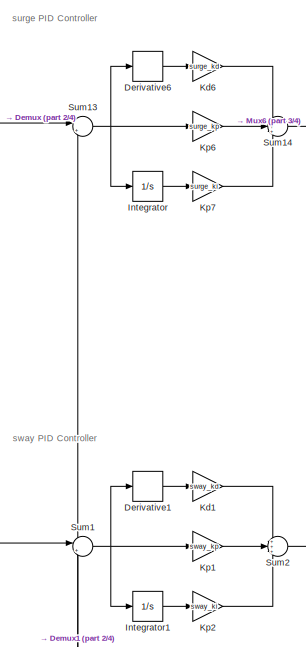
[diagram: PID Controller/6 DOF PID Controller/6 PID Controllers - part 1/4, top center region]
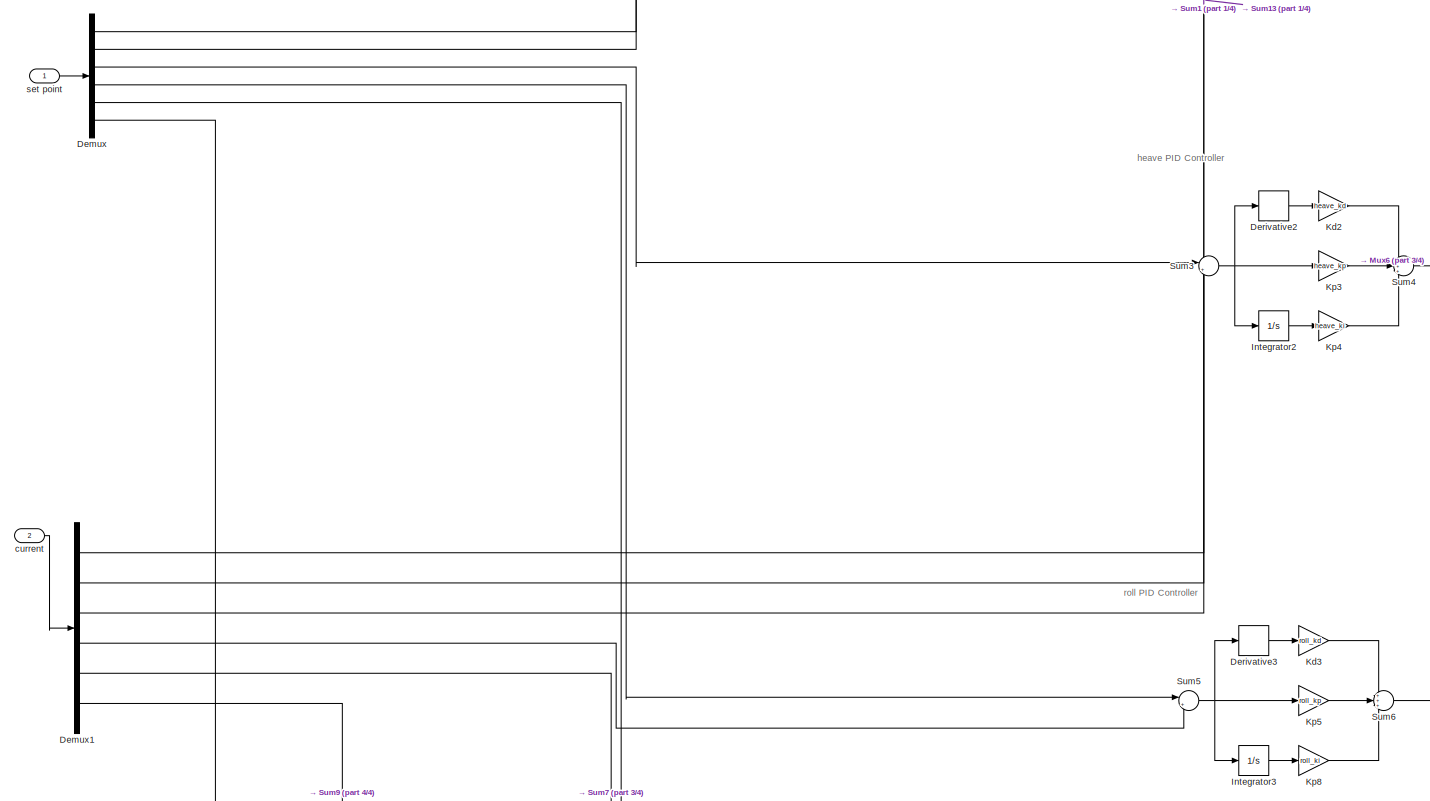
[diagram: PID Controller/6 DOF PID Controller/6 PID Controllers - part 2/4, middle left region]
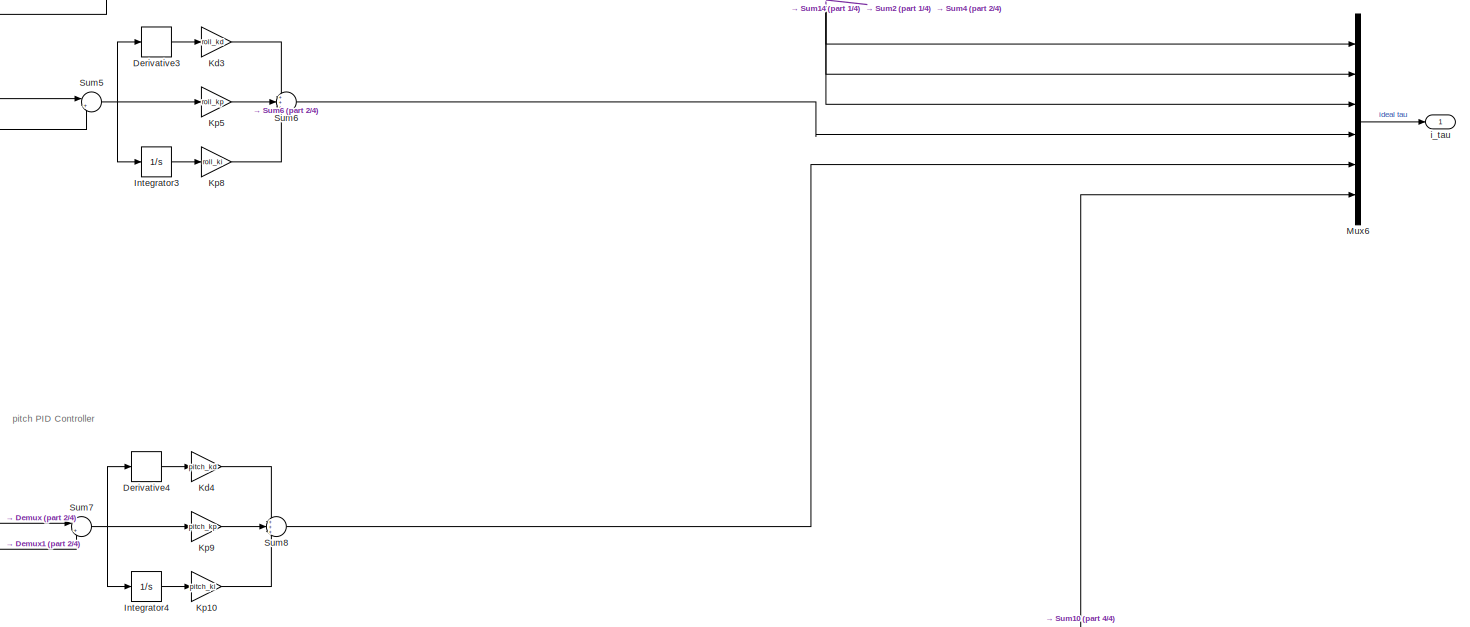
[diagram: PID Controller/6 DOF PID Controller/6 PID Controllers - part 3/4, bottom right region]
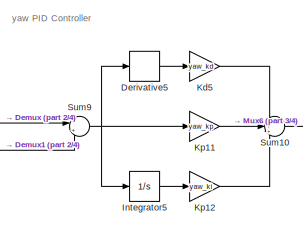
[diagram: PID Controller/6 DOF PID Controller/6 PID Controllers - part 4/4, bottom center region]
BLOCK [SubSystem] PID Controller/6 DOF PID Controller/6 PID Controllers
  Ports = [2, 1]
  RequestExecContextInheritance = off
BLOCK [Demux] PID Controller/6 DOF PID Controller/6 PID Controllers/Demux
  Outputs = 6
  Ports = [1, 6]
BLOCK [Demux] PID Controller/6 DOF PID Controller/6 PID Controllers/Demux1
  Outputs = 6
  Ports = [1, 6]
BLOCK [Derivative] PID Controller/6 DOF PID Controller/6 PID Controllers/Derivative1
BLOCK [Derivative] PID Controller/6 DOF PID Controller/6 PID Controllers/Derivative2
BLOCK [Derivative] PID Controller/6 DOF PID Controller/6 PID Controllers/Derivative3
BLOCK [Derivative] PID Controller/6 DOF PID Controller/6 PID Controllers/Derivative4
BLOCK [Derivative] PID Controller/6 DOF PID Controller/6 PID Controllers/Derivative5
BLOCK [Derivative] PID Controller/6 DOF PID Controller/6 PID Controllers/Derivative6
BLOCK [Integrator] PID Controller/6 DOF PID Controller/6 PID Controllers/Integrator
  Ports = [1, 1]
BLOCK [Integrator] PID Controller/6 DOF PID Controller/6 PID Controllers/Integrator1
  Ports = [1, 1]
BLOCK [Integrator] PID Controller/6 DOF PID Controller/6 PID Controllers/Integrator2
  Ports = [1, 1]
BLOCK [Integrator] PID Controller/6 DOF PID Controller/6 PID Controllers/Integrator3
  Ports = [1, 1]
BLOCK [Integrator] PID Controller/6 DOF PID Controller/6 PID Controllers/Integrator4
  Ports = [1, 1]
BLOCK [Integrator] PID Controller/6 DOF PID Controller/6 PID Controllers/Integrator5
  Ports = [1, 1]
BLOCK [Gain] PID Controller/6 DOF PID Controller/6 PID Controllers/Kd1
  Gain = sway_kd
BLOCK [Gain] PID Controller/6 DOF PID Controller/6 PID Controllers/Kd2
  Gain = heave_kd
BLOCK [Gain] PID Controller/6 DOF PID Controller/6 PID Controllers/Kd3
  Gain = roll_kd
BLOCK [Gain] PID Controller/6 DOF PID Controller/6 PID Controllers/Kd4
  Gain = pitch_kd
BLOCK [Gain] PID Controller/6 DOF PID Controller/6 PID Controllers/Kd5
  Gain = yaw_kd
BLOCK [Gain] PID Controller/6 DOF PID Controller/6 PID Controllers/Kd6
  Gain = surge_kd
BLOCK [Gain] PID Controller/6 DOF PID Controller/6 PID Controllers/Kp1
  Gain = sway_kp
BLOCK [Gain] PID Controller/6 DOF PID Controller/6 PID Controllers/Kp10
  Gain = pitch_ki
BLOCK [Gain] PID Controller/6 DOF PID Controller/6 PID Controllers/Kp11
  Gain = yaw_kp
BLOCK [Gain] PID Controller/6 DOF PID Controller/6 PID Controllers/Kp12
  Gain = yaw_ki
BLOCK [Gain] PID Controller/6 DOF PID Controller/6 PID Controllers/Kp2
  Gain = sway_ki
BLOCK [Gain] PID Controller/6 DOF PID Controller/6 PID Controllers/Kp3
  Gain = heave_kp
BLOCK [Gain] PID Controller/6 DOF PID Controller/6 PID Controllers/Kp4
  Gain = heave_ki
BLOCK [Gain] PID Controller/6 DOF PID Controller/6 PID Controllers/Kp5
  Gain = roll_kp
BLOCK [Gain] PID Controller/6 DOF PID Controller/6 PID Controllers/Kp6
  Gain = surge_kp
BLOCK [Gain] PID Controller/6 DOF PID Controller/6 PID Controllers/Kp7
  Gain = surge_ki
BLOCK [Gain] PID Controller/6 DOF PID Controller/6 PID Controllers/Kp8
  Gain = roll_ki
BLOCK [Gain] PID Controller/6 DOF PID Controller/6 PID Controllers/Kp9
  Gain = pitch_kp
BLOCK [Mux] PID Controller/6 DOF PID Controller/6 PID Controllers/Mux6
  DisplayOption = bar
  Inputs = 6
  Ports = [6, 1]
BLOCK [Sum] PID Controller/6 DOF PID Controller/6 PID Controllers/Sum1
  Inputs = |+-
  Ports = [2, 1]
BLOCK [Sum] PID Controller/6 DOF PID Controller/6 PID Controllers/Sum10
  Inputs = +++
  Ports = [3, 1]
BLOCK [Sum] PID Controller/6 DOF PID Controller/6 PID Controllers/Sum13
  Inputs = |+-
  Ports = [2, 1]
BLOCK [Sum] PID Controller/6 DOF PID Controller/6 PID Controllers/Sum14
  Inputs = +++
  Ports = [3, 1]
BLOCK [Sum] PID Controller/6 DOF PID Controller/6 PID Controllers/Sum2
  Inputs = +++
  Ports = [3, 1]
BLOCK [Sum] PID Controller/6 DOF PID Controller/6 PID Controllers/Sum3
  Inputs = |+-
  Ports = [2, 1]
BLOCK [Sum] PID Controller/6 DOF PID Controller/6 PID Controllers/Sum4
  Inputs = +++
  Ports = [3, 1]
BLOCK [Sum] PID Controller/6 DOF PID Controller/6 PID Controllers/Sum5
  Inputs = |+-
  Ports = [2, 1]
BLOCK [Sum] PID Controller/6 DOF PID Controller/6 PID Controllers/Sum6
  Inputs = +++
  Ports = [3, 1]
BLOCK [Sum] PID Controller/6 DOF PID Controller/6 PID Controllers/Sum7
  Inputs = |+-
  Ports = [2, 1]
BLOCK [Sum] PID Controller/6 DOF PID Controller/6 PID Controllers/Sum8
  Inputs = +++
  Ports = [3, 1]
BLOCK [Sum] PID Controller/6 DOF PID Controller/6 PID Controllers/Sum9
  Inputs = |+-
  Ports = [2, 1]
BLOCK [Inport] PID Controller/6 DOF PID Controller/6 PID Controllers/current
  Port = 2
BLOCK [Outport] PID Controller/6 DOF PID Controller/6 PID Controllers/i_tau
BLOCK [Inport] PID Controller/6 DOF PID Controller/6 PID Controllers/set point
BLOCK [SignalSpecification] PID Controller/6 DOF PID Controller/Signal Specification
  Dimensions = 6
  VarSizeSig = No
BLOCK [SubSystem] PID Controller/6 DOF PID Controller/Thrust allocation
  Ports = [1, 1]
  RequestExecContextInheritance = off
BLOCK [Demux] PID Controller/6 DOF PID Controller/Thrust allocation/Demux6
  Commented = on
  Outputs = 3
  Ports = [1, 3]
BLOCK [SubSystem] PID Controller/6 DOF PID Controller/Thrust allocation/MATLAB Function
  Commented = on
  ErrorFcn = Stateflow.Translate.translate
  PermitHierarchicalResolution = ExplicitOnly
  Ports = [8, 1]
  RequestExecContextInheritance = off
  SFBlockType = MATLAB Function
  TreatAsAtomicUnit = on
BLOCK [Demux] PID Controller/6 DOF PID Controller/Thrust allocation/MATLAB Function/ Demux 
  Outputs = 1
  Ports = [1, 1]
BLOCK [S-Function] PID Controller/6 DOF PID Controller/Thrust allocation/MATLAB Function/ SFunction 
  EnableBusSupport = on
  FunctionName = sf_sfun
  PortCounts = [8 2]
  Ports = [8, 2]
  SFcnIsStateOwnerBlock = off
  SFunctionDeploymentMode = off
  Tag = Stateflow S-Function 31
BLOCK [Terminator] PID Controller/6 DOF PID Controller/Thrust allocation/MATLAB Function/ Terminator 
BLOCK [Inport] PID Controller/6 DOF PID Controller/Thrust allocation/MATLAB Function/rx_h
  Port = 6
BLOCK [Inport] PID Controller/6 DOF PID Controller/Thrust allocation/MATLAB Function/rx_v
  Port = 3
BLOCK [Inport] PID Controller/6 DOF PID Controller/Thrust allocation/MATLAB Function/ry_h
  Port = 7
BLOCK [Inport] PID Controller/6 DOF PID Controller/Thrust allocation/MATLAB Function/ry_v
  Port = 4
BLOCK [Inport] PID Controller/6 DOF PID Controller/Thrust allocation/MATLAB Function/rz_h
  Port = 8
BLOCK [Outport] PID Controller/6 DOF PID Controller/Thrust allocation/MATLAB Function/tau
BLOCK [Inport] PID Controller/6 DOF PID Controller/Thrust allocation/MATLAB Function/theta
  Port = 2
BLOCK [Inport] PID Controller/6 DOF PID Controller/Thrust allocation/MATLAB Function/thrust
BLOCK [Inport] PID Controller/6 DOF PID Controller/Thrust allocation/MATLAB Function/unused
  Port = 5
BLOCK [SubSystem] PID Controller/6 DOF PID Controller/Thrust allocation/MATLAB Function1
  ErrorFcn = Stateflow.Translate.translate
  PermitHierarchicalResolution = ExplicitOnly
  Ports = [8, 1]
  RequestExecContextInheritance = off
  SFBlockType = MATLAB Function
  TreatAsAtomicUnit = on
BLOCK [Demux] PID Controller/6 DOF PID Controller/Thrust allocation/MATLAB Function1/ Demux 
  Outputs = 1
  Ports = [1, 1]
BLOCK [S-Function] PID Controller/6 DOF PID Controller/Thrust allocation/MATLAB Function1/ SFunction 
  EnableBusSupport = on
  FunctionName = sf_sfun
  PortCounts = [8 2]
  Ports = [8, 2]
  SFcnIsStateOwnerBlock = off
  SFunctionDeploymentMode = off
  Tag = Stateflow S-Function 32
BLOCK [Terminator] PID Controller/6 DOF PID Controller/Thrust allocation/MATLAB Function1/ Terminator 
BLOCK [Inport] PID Controller/6 DOF PID Controller/Thrust allocation/MATLAB Function1/alpha
  Port = 2
BLOCK [Inport] PID Controller/6 DOF PID Controller/Thrust allocation/MATLAB Function1/rx_h
  Port = 6
BLOCK [Inport] PID Controller/6 DOF PID Controller/Thrust allocation/MATLAB Function1/rx_v
  Port = 3
BLOCK [Inport] PID Controller/6 DOF PID Controller/Thrust allocation/MATLAB Function1/ry_h
  Port = 7
BLOCK [Inport] PID Controller/6 DOF PID Controller/Thrust allocation/MATLAB Function1/ry_v
  Port = 4
BLOCK [Inport] PID Controller/6 DOF PID Controller/Thrust allocation/MATLAB Function1/rz_h
  Port = 8
BLOCK [Inport] PID Controller/6 DOF PID Controller/Thrust allocation/MATLAB Function1/tau
BLOCK [Outport] PID Controller/6 DOF PID Controller/Thrust allocation/MATLAB Function1/thrust
BLOCK [Inport] PID Controller/6 DOF PID Controller/Thrust allocation/MATLAB Function1/unused
  Port = 5
BLOCK [Mux] PID Controller/6 DOF PID Controller/Thrust allocation/Mux2
  Commented = on
  DisplayOption = bar
  Inputs = 3
  Ports = [3, 1]
BLOCK [Saturate] PID Controller/6 DOF PID Controller/Thrust allocation/Saturation
  Commented = on
  LowerLimit = -70
  UpperLimit = 70
BLOCK [Saturate] PID Controller/6 DOF PID Controller/Thrust allocation/Saturation1
  Commented = on
  LowerLimit = -100
  UpperLimit = 100
BLOCK [Saturate] PID Controller/6 DOF PID Controller/Thrust allocation/Saturation2
  Commented = on
  LowerLimit = -100
  UpperLimit = 100
BLOCK [Saturate] PID Controller/6 DOF PID Controller/Thrust allocation/Saturation3
  LowerLimit = -35
  UpperLimit = 35
BLOCK [Constant] PID Controller/6 DOF PID Controller/Thrust allocation/alpha
  Value = pi/4
BLOCK [Inport] PID Controller/6 DOF PID Controller/Thrust allocation/ideal_tau
BLOCK [Constant] PID Controller/6 DOF PID Controller/Thrust allocation/rx_h
  Value = 0.1867
BLOCK [Constant] PID Controller/6 DOF PID Controller/Thrust allocation/rx_v
  Value = 0.0395
BLOCK [Constant] PID Controller/6 DOF PID Controller/Thrust allocation/ry_h
  Value = 0.2347
BLOCK [Constant] PID Controller/6 DOF PID Controller/Thrust allocation/ry_v
  Value = 0.2384
BLOCK [Constant] PID Controller/6 DOF PID Controller/Thrust allocation/rz_h
  Value = 0.0175
BLOCK [Constant] PID Controller/6 DOF PID Controller/Thrust allocation/rz_v
  Value = 0.0404
BLOCK [Outport] PID Controller/6 DOF PID Controller/Thrust allocation/tau
BLOCK [SubSystem] PID Controller/6 DOF PID Controller/Transform
  Ports = [2, 2]
  RequestExecContextInheritance = off
BLOCK [Demux] PID Controller/6 DOF PID Controller/Transform/Demux
  Outputs = 2
  Ports = [1, 2]
BLOCK [Demux] PID Controller/6 DOF PID Controller/Transform/Demux1
  Outputs = 2
  Ports = [1, 2]
BLOCK [Mux] PID Controller/6 DOF PID Controller/Transform/Mux1
  DisplayOption = bar
  Inputs = 2
  Ports = [2, 1]
BLOCK [Mux] PID Controller/6 DOF PID Controller/Transform/Mux2
  DisplayOption = bar
  Inputs = 2
  Ports = [2, 1]
BLOCK [Mux] PID Controller/6 DOF PID Controller/Transform/Mux3
  DisplayOption = bar
  Inputs = 2
  Ports = [2, 1]
BLOCK [Inport] PID Controller/6 DOF PID Controller/Transform/NED
  Port = 2
BLOCK [Outport] PID Controller/6 DOF PID Controller/Transform/Out1
BLOCK [Outport] PID Controller/6 DOF PID Controller/Transform/Out2
  Port = 2
BLOCK [SubSystem] PID Controller/6 DOF PID Controller/Transform/Subsystem1
  Ports = [1, 1]
  RequestExecContextInheritance = off
BLOCK [Demux] PID Controller/6 DOF PID Controller/Transform/Subsystem1/Demux
  Outputs = 2
  Ports = [1, 2]
BLOCK [Demux] PID Controller/6 DOF PID Controller/Transform/Subsystem1/Demux1
  Outputs = 3
  Ports = [1, 3]
BLOCK [Derivative] PID Controller/6 DOF PID Controller/Transform/Subsystem1/Derivative
  Commented = on
BLOCK [Reference] PID Controller/6 DOF PID Controller/Transform/Subsystem1/Invert 3x3 Matrix  REF=aerolibutil/Invert 
3x3 Matrix
  Ports = [1, 1]
  SourceBlock = aerolibutil/Invert \n3x3 Matrix
  SourceProductBaseCode = AE
  SourceType = Invert 3x3 Matrix
BLOCK [Reference] PID Controller/6 DOF PID Controller/Transform/Subsystem1/Invert 3x3 Matrix1  REF=aerolibutil/Invert 
3x3 Matrix
  Commented = on
  Ports = [1, 1]
  SourceBlock = aerolibutil/Invert \n3x3 Matrix
  SourceProductBaseCode = AE
  SourceType = Invert 3x3 Matrix
BLOCK [Product] PID Controller/6 DOF PID Controller/Transform/Subsystem1/MatrixMultiply
  Commented = on
  Multiplication = Matrix(*)
  Ports = [2, 1]
BLOCK [Product] PID Controller/6 DOF PID Controller/Transform/Subsystem1/MatrixMultiply1
  Multiplication = Matrix(*)
  Ports = [2, 1]
BLOCK [Mux] PID Controller/6 DOF PID Controller/Transform/Subsystem1/Mux1
  DisplayOption = bar
  Inputs = 3
  Ports = [3, 1]
BLOCK [Inport] PID Controller/6 DOF PID Controller/Transform/Subsystem1/NED
BLOCK [SubSystem] PID Controller/6 DOF PID Controller/Transform/Subsystem1/Rzxy
  Ports = [1, 1]
  RequestExecContextInheritance = off
BLOCK [Product] PID Controller/6 DOF PID Controller/Transform/Subsystem1/Rzxy/3-2-1 convention
  Inputs = 3
  Multiplication = Matrix(*)
  Ports = [3, 1]
BLOCK [Demux] PID Controller/6 DOF PID Controller/Transform/Subsystem1/Rzxy/Demux
  Outputs = 3
  Ports = [1, 3]
BLOCK [Outport] PID Controller/6 DOF PID Controller/Transform/Subsystem1/Rzxy/J
BLOCK [SubSystem] PID Controller/6 DOF PID Controller/Transform/Subsystem1/Rzxy/MATLAB Function1
  ErrorFcn = Stateflow.Translate.translate
  PermitHierarchicalResolution = ExplicitOnly
  Ports = [1, 1]
  RequestExecContextInheritance = off
  SFBlockType = MATLAB Function
  TreatAsAtomicUnit = on
BLOCK [Demux] PID Controller/6 DOF PID Controller/Transform/Subsystem1/Rzxy/MATLAB Function1/ Demux 
  Outputs = 1
  Ports = [1, 1]
BLOCK [S-Function] PID Controller/6 DOF PID Controller/Transform/Subsystem1/Rzxy/MATLAB Function1/ SFunction 
  EnableBusSupport = on
  FunctionName = sf_sfun
  PortCounts = [1 2]
  Ports = [1, 2]
  SFcnIsStateOwnerBlock = off
  SFunctionDeploymentMode = off
  Tag = Stateflow S-Function 33
BLOCK [Terminator] PID Controller/6 DOF PID Controller/Transform/Subsystem1/Rzxy/MATLAB Function1/ Terminator 
BLOCK [Outport] PID Controller/6 DOF PID Controller/Transform/Subsystem1/Rzxy/MATLAB Function1/Rx
BLOCK [Inport] PID Controller/6 DOF PID Controller/Transform/Subsystem1/Rzxy/MATLAB Function1/phi
BLOCK [SubSystem] PID Controller/6 DOF PID Controller/Transform/Subsystem1/Rzxy/MATLAB Function2
  ErrorFcn = Stateflow.Translate.translate
  PermitHierarchicalResolution = ExplicitOnly
  Ports = [1, 1]
  RequestExecContextInheritance = off
  SFBlockType = MATLAB Function
  TreatAsAtomicUnit = on
BLOCK [Demux] PID Controller/6 DOF PID Controller/Transform/Subsystem1/Rzxy/MATLAB Function2/ Demux 
  Outputs = 1
  Ports = [1, 1]
BLOCK [S-Function] PID Controller/6 DOF PID Controller/Transform/Subsystem1/Rzxy/MATLAB Function2/ SFunction 
  EnableBusSupport = on
  FunctionName = sf_sfun
  PortCounts = [1 2]
  Ports = [1, 2]
  SFcnIsStateOwnerBlock = off
  SFunctionDeploymentMode = off
  Tag = Stateflow S-Function 34
BLOCK [Terminator] PID Controller/6 DOF PID Controller/Transform/Subsystem1/Rzxy/MATLAB Function2/ Terminator 
BLOCK [Outport] PID Controller/6 DOF PID Controller/Transform/Subsystem1/Rzxy/MATLAB Function2/Ry
BLOCK [Inport] PID Controller/6 DOF PID Controller/Transform/Subsystem1/Rzxy/MATLAB Function2/theta
BLOCK [SubSystem] PID Controller/6 DOF PID Controller/Transform/Subsystem1/Rzxy/MATLAB Function3
  ErrorFcn = Stateflow.Translate.translate
  PermitHierarchicalResolution = ExplicitOnly
  Ports = [1, 1]
  RequestExecContextInheritance = off
  SFBlockType = MATLAB Function
  TreatAsAtomicUnit = on
BLOCK [Demux] PID Controller/6 DOF PID Controller/Transform/Subsystem1/Rzxy/MATLAB Function3/ Demux 
  Outputs = 1
  Ports = [1, 1]
BLOCK [S-Function] PID Controller/6 DOF PID Controller/Transform/Subsystem1/Rzxy/MATLAB Function3/ SFunction 
  EnableBusSupport = on
  FunctionName = sf_sfun
  PortCounts = [1 2]
  Ports = [1, 2]
  SFcnIsStateOwnerBlock = off
  SFunctionDeploymentMode = off
  Tag = Stateflow S-Function 35
BLOCK [Terminator] PID Controller/6 DOF PID Controller/Transform/Subsystem1/Rzxy/MATLAB Function3/ Terminator 
BLOCK [Outport] PID Controller/6 DOF PID Controller/Transform/Subsystem1/Rzxy/MATLAB Function3/Rz
BLOCK [Inport] PID Controller/6 DOF PID Controller/Transform/Subsystem1/Rzxy/MATLAB Function3/psi
BLOCK [Inport] PID Controller/6 DOF PID Controller/Transform/Subsystem1/Rzxy/angles
BLOCK [SubSystem] PID Controller/6 DOF PID Controller/Transform/Subsystem1/T
  Commented = on
  Ports = [2, 1]
  RequestExecContextInheritance = off
BLOCK [Constant] PID Controller/6 DOF PID Controller/Transform/Subsystem1/T/Constant1
BLOCK [Constant] PID Controller/6 DOF PID Controller/Transform/Subsystem1/T/Constant2
  Value = 0
BLOCK [Reference] PID Controller/6 DOF PID Controller/Transform/Subsystem1/T/Create 3x3 Matrix  REF=sharedutil/Create 3x3 Matrix
  Ports = [9, 1]
  SourceBlock = sharedutil/Create 3x3 Matrix
  SourceProductBaseCode = AE,PW,MT,VE,VP
  SourceType = Create 3x3 Matrix
BLOCK [Product] PID Controller/6 DOF PID Controller/Transform/Subsystem1/T/Divide
  Inputs = */
  Ports = [2, 1]
BLOCK [Product] PID Controller/6 DOF PID Controller/Transform/Subsystem1/T/Divide1
  Inputs = */
  Ports = [2, 1]
BLOCK [Gain] PID Controller/6 DOF PID Controller/Transform/Subsystem1/T/Gain
  Gain = -1
BLOCK [Inport] PID Controller/6 DOF PID Controller/Transform/Subsystem1/T/In1
BLOCK [Inport] PID Controller/6 DOF PID Controller/Transform/Subsystem1/T/In2
  Port = 2
BLOCK [Product] PID Controller/6 DOF PID Controller/Transform/Subsystem1/T/Product
  Ports = [2, 1]
BLOCK [Product] PID Controller/6 DOF PID Controller/Transform/Subsystem1/T/Product1
  Ports = [2, 1]
BLOCK [Trigonometry] PID Controller/6 DOF PID Controller/Transform/Subsystem1/T/Sin
  Ports = [1, 1]
BLOCK [Trigonometry] PID Controller/6 DOF PID Controller/Transform/Subsystem1/T/Sin1
  Operator = cos
  Ports = [1, 1]
BLOCK [Trigonometry] PID Controller/6 DOF PID Controller/Transform/Subsystem1/T/Sin2
  Operator = tan
  Ports = [1, 1]
BLOCK [Trigonometry] PID Controller/6 DOF PID Controller/Transform/Subsystem1/T/Sin3
  Operator = cos
  Ports = [1, 1]
BLOCK [Outport] PID Controller/6 DOF PID Controller/Transform/Subsystem1/T/T
BLOCK [Terminator] PID Controller/6 DOF PID Controller/Transform/Subsystem1/Terminator
  Commented = on
BLOCK [Outport] PID Controller/6 DOF PID Controller/Transform/Subsystem1/pos_body
BLOCK [SubSystem] PID Controller/6 DOF PID Controller/Transform/Subsystem2
  Ports = [1, 1]
  RequestExecContextInheritance = off
BLOCK [Demux] PID Controller/6 DOF PID Controller/Transform/Subsystem2/Demux
  Outputs = 2
  Ports = [1, 2]
BLOCK [Demux] PID Controller/6 DOF PID Controller/Transform/Subsystem2/Demux1
  Outputs = 3
  Ports = [1, 3]
BLOCK [Derivative] PID Controller/6 DOF PID Controller/Transform/Subsystem2/Derivative
  Commented = on
BLOCK [Reference] PID Controller/6 DOF PID Controller/Transform/Subsystem2/Invert 3x3 Matrix  REF=aerolibutil/Invert 
3x3 Matrix
  Ports = [1, 1]
  SourceBlock = aerolibutil/Invert \n3x3 Matrix
  SourceProductBaseCode = AE
  SourceType = Invert 3x3 Matrix
BLOCK [Reference] PID Controller/6 DOF PID Controller/Transform/Subsystem2/Invert 3x3 Matrix1  REF=aerolibutil/Invert 
3x3 Matrix
  Commented = on
  Ports = [1, 1]
  SourceBlock = aerolibutil/Invert \n3x3 Matrix
  SourceProductBaseCode = AE
  SourceType = Invert 3x3 Matrix
BLOCK [Product] PID Controller/6 DOF PID Controller/Transform/Subsystem2/MatrixMultiply
  Commented = on
  Multiplication = Matrix(*)
  Ports = [2, 1]
BLOCK [Product] PID Controller/6 DOF PID Controller/Transform/Subsystem2/MatrixMultiply1
  Multiplication = Matrix(*)
  Ports = [2, 1]
BLOCK [Mux] PID Controller/6 DOF PID Controller/Transform/Subsystem2/Mux1
  DisplayOption = bar
  Inputs = 3
  Ports = [3, 1]
BLOCK [Inport] PID Controller/6 DOF PID Controller/Transform/Subsystem2/NED
BLOCK [SubSystem] PID Controller/6 DOF PID Controller/Transform/Subsystem2/Rzxy
  Ports = [1, 1]
  RequestExecContextInheritance = off
BLOCK [Product] PID Controller/6 DOF PID Controller/Transform/Subsystem2/Rzxy/3-2-1 convention
  Inputs = 3
  Multiplication = Matrix(*)
  Ports = [3, 1]
BLOCK [Demux] PID Controller/6 DOF PID Controller/Transform/Subsystem2/Rzxy/Demux
  Outputs = 3
  Ports = [1, 3]
BLOCK [Outport] PID Controller/6 DOF PID Controller/Transform/Subsystem2/Rzxy/J
BLOCK [SubSystem] PID Controller/6 DOF PID Controller/Transform/Subsystem2/Rzxy/MATLAB Function1
  ErrorFcn = Stateflow.Translate.translate
  PermitHierarchicalResolution = ExplicitOnly
  Ports = [1, 1]
  RequestExecContextInheritance = off
  SFBlockType = MATLAB Function
  TreatAsAtomicUnit = on
BLOCK [Demux] PID Controller/6 DOF PID Controller/Transform/Subsystem2/Rzxy/MATLAB Function1/ Demux 
  Outputs = 1
  Ports = [1, 1]
BLOCK [S-Function] PID Controller/6 DOF PID Controller/Transform/Subsystem2/Rzxy/MATLAB Function1/ SFunction 
  EnableBusSupport = on
  FunctionName = sf_sfun
  PortCounts = [1 2]
  Ports = [1, 2]
  SFcnIsStateOwnerBlock = off
  SFunctionDeploymentMode = off
  Tag = Stateflow S-Function 36
BLOCK [Terminator] PID Controller/6 DOF PID Controller/Transform/Subsystem2/Rzxy/MATLAB Function1/ Terminator 
BLOCK [Outport] PID Controller/6 DOF PID Controller/Transform/Subsystem2/Rzxy/MATLAB Function1/Rx
BLOCK [Inport] PID Controller/6 DOF PID Controller/Transform/Subsystem2/Rzxy/MATLAB Function1/phi
BLOCK [SubSystem] PID Controller/6 DOF PID Controller/Transform/Subsystem2/Rzxy/MATLAB Function2
  ErrorFcn = Stateflow.Translate.translate
  PermitHierarchicalResolution = ExplicitOnly
  Ports = [1, 1]
  RequestExecContextInheritance = off
  SFBlockType = MATLAB Function
  TreatAsAtomicUnit = on
BLOCK [Demux] PID Controller/6 DOF PID Controller/Transform/Subsystem2/Rzxy/MATLAB Function2/ Demux 
  Outputs = 1
  Ports = [1, 1]
BLOCK [S-Function] PID Controller/6 DOF PID Controller/Transform/Subsystem2/Rzxy/MATLAB Function2/ SFunction 
  EnableBusSupport = on
  FunctionName = sf_sfun
  PortCounts = [1 2]
  Ports = [1, 2]
  SFcnIsStateOwnerBlock = off
  SFunctionDeploymentMode = off
  Tag = Stateflow S-Function 37
BLOCK [Terminator] PID Controller/6 DOF PID Controller/Transform/Subsystem2/Rzxy/MATLAB Function2/ Terminator 
BLOCK [Outport] PID Controller/6 DOF PID Controller/Transform/Subsystem2/Rzxy/MATLAB Function2/Ry
BLOCK [Inport] PID Controller/6 DOF PID Controller/Transform/Subsystem2/Rzxy/MATLAB Function2/theta
BLOCK [SubSystem] PID Controller/6 DOF PID Controller/Transform/Subsystem2/Rzxy/MATLAB Function3
  ErrorFcn = Stateflow.Translate.translate
  PermitHierarchicalResolution = ExplicitOnly
  Ports = [1, 1]
  RequestExecContextInheritance = off
  SFBlockType = MATLAB Function
  TreatAsAtomicUnit = on
BLOCK [Demux] PID Controller/6 DOF PID Controller/Transform/Subsystem2/Rzxy/MATLAB Function3/ Demux 
  Outputs = 1
  Ports = [1, 1]
BLOCK [S-Function] PID Controller/6 DOF PID Controller/Transform/Subsystem2/Rzxy/MATLAB Function3/ SFunction 
  EnableBusSupport = on
  FunctionName = sf_sfun
  PortCounts = [1 2]
  Ports = [1, 2]
  SFcnIsStateOwnerBlock = off
  SFunctionDeploymentMode = off
  Tag = Stateflow S-Function 38
BLOCK [Terminator] PID Controller/6 DOF PID Controller/Transform/Subsystem2/Rzxy/MATLAB Function3/ Terminator 
BLOCK [Outport] PID Controller/6 DOF PID Controller/Transform/Subsystem2/Rzxy/MATLAB Function3/Rz
BLOCK [Inport] PID Controller/6 DOF PID Controller/Transform/Subsystem2/Rzxy/MATLAB Function3/psi
BLOCK [Inport] PID Controller/6 DOF PID Controller/Transform/Subsystem2/Rzxy/angles
BLOCK [SubSystem] PID Controller/6 DOF PID Controller/Transform/Subsystem2/T
  Commented = on
  Ports = [2, 1]
  RequestExecContextInheritance = off
BLOCK [Constant] PID Controller/6 DOF PID Controller/Transform/Subsystem2/T/Constant1
BLOCK [Constant] PID Controller/6 DOF PID Controller/Transform/Subsystem2/T/Constant2
  Value = 0
BLOCK [Reference] PID Controller/6 DOF PID Controller/Transform/Subsystem2/T/Create 3x3 Matrix  REF=sharedutil/Create 3x3 Matrix
  Ports = [9, 1]
  SourceBlock = sharedutil/Create 3x3 Matrix
  SourceProductBaseCode = AE,PW,MT,VE,VP
  SourceType = Create 3x3 Matrix
BLOCK [Product] PID Controller/6 DOF PID Controller/Transform/Subsystem2/T/Divide
  Inputs = */
  Ports = [2, 1]
BLOCK [Product] PID Controller/6 DOF PID Controller/Transform/Subsystem2/T/Divide1
  Inputs = */
  Ports = [2, 1]
BLOCK [Gain] PID Controller/6 DOF PID Controller/Transform/Subsystem2/T/Gain
  Gain = -1
BLOCK [Inport] PID Controller/6 DOF PID Controller/Transform/Subsystem2/T/In1
BLOCK [Inport] PID Controller/6 DOF PID Controller/Transform/Subsystem2/T/In2
  Port = 2
BLOCK [Product] PID Controller/6 DOF PID Controller/Transform/Subsystem2/T/Product
  Ports = [2, 1]
BLOCK [Product] PID Controller/6 DOF PID Controller/Transform/Subsystem2/T/Product1
  Ports = [2, 1]
BLOCK [Trigonometry] PID Controller/6 DOF PID Controller/Transform/Subsystem2/T/Sin
  Ports = [1, 1]
BLOCK [Trigonometry] PID Controller/6 DOF PID Controller/Transform/Subsystem2/T/Sin1
  Operator = cos
  Ports = [1, 1]
BLOCK [Trigonometry] PID Controller/6 DOF PID Controller/Transform/Subsystem2/T/Sin2
  Operator = tan
  Ports = [1, 1]
BLOCK [Trigonometry] PID Controller/6 DOF PID Controller/Transform/Subsystem2/T/Sin3
  Operator = cos
  Ports = [1, 1]
BLOCK [Outport] PID Controller/6 DOF PID Controller/Transform/Subsystem2/T/T
BLOCK [Terminator] PID Controller/6 DOF PID Controller/Transform/Subsystem2/Terminator
  Commented = on
BLOCK [Outport] PID Controller/6 DOF PID Controller/Transform/Subsystem2/pos_body
BLOCK [Terminator] PID Controller/6 DOF PID Controller/Transform/Terminator5
BLOCK [Inport] PID Controller/6 DOF PID Controller/Transform/set point
BLOCK [Inport] PID Controller/6 DOF PID Controller/current
  Port = 2
BLOCK [Inport] PID Controller/6 DOF PID Controller/set point
BLOCK [Outport] PID Controller/6 DOF PID Controller/tau
BLOCK [Outport] PID Controller/NED
  Port = 2
BLOCK [Terminator] PID Controller/Terminator
BLOCK [Terminator] PID Controller/Terminator1
BLOCK [SubSystem] PID Controller/UUV 6DOF Model
  Ports = [1, 3]
  RequestExecContextInheritance = off
BLOCK [SubSystem] PID Controller/UUV 6DOF Model/+-pi
  Commented = on
  ErrorFcn = Stateflow.Translate.translate
  PermitHierarchicalResolution = ExplicitOnly
  Ports = [1, 1]
  RequestExecContextInheritance = off
  SFBlockType = MATLAB Function
  TreatAsAtomicUnit = on
BLOCK [Demux] PID Controller/UUV 6DOF Model/+-pi/ Demux 
  Outputs = 1
  Ports = [1, 1]
BLOCK [S-Function] PID Controller/UUV 6DOF Model/+-pi/ SFunction 
  EnableBusSupport = on
  FunctionName = sf_sfun
  PortCounts = [1 2]
  Ports = [1, 2]
  SFcnIsStateOwnerBlock = off
  SFunctionDeploymentMode = off
  Tag = Stateflow S-Function 39
BLOCK [Terminator] PID Controller/UUV 6DOF Model/+-pi/ Terminator 
BLOCK [Outport] PID Controller/UUV 6DOF Model/+-pi/NED
BLOCK [Inport] PID Controller/UUV 6DOF Model/+-pi/NED 
BLOCK [Constant] PID Controller/UUV 6DOF Model/Constant
  Value = [1;1;1]
BLOCK [Constant] PID Controller/UUV 6DOF Model/Constant1
  Value = [1;1;1]
BLOCK [Constant] PID Controller/UUV 6DOF Model/Constant2
  Value = [0;0;0;0;0;0]
BLOCK [Demux] PID Controller/UUV 6DOF Model/Demux1
  Outputs = 2
  Ports = [1, 2]
BLOCK [Demux] PID Controller/UUV 6DOF Model/Demux3
  Outputs = 6
  Ports = [1, 6]
BLOCK [InitialCondition] PID Controller/UUV 6DOF Model/IC
  Commented = on
  Value = [0;0;0;0;0;0]
BLOCK [InitialCondition] PID Controller/UUV 6DOF Model/IC1
  Commented = on
  NameLocation = top
  Value = [1;1;1;1;1;1]
BLOCK [Integrator] PID Controller/UUV 6DOF Model/Integrator
  InitialConditionSource = external
  Ports = [2, 1]
BLOCK [Integrator] PID Controller/UUV 6DOF Model/Integrator1
  InitialConditionSource = external
  Ports = [2, 1]
BLOCK [Integrator] PID Controller/UUV 6DOF Model/Limit [-pi,pi]
  InitialConditionSource = external
  Ports = [2, 1]
  WrapState = on
BLOCK [SubSystem] PID Controller/UUV 6DOF Model/MATLAB Function
  ErrorFcn = Stateflow.Translate.translate
  PermitHierarchicalResolution = ExplicitOnly
  Ports = [5, 2]
  RequestExecContextInheritance = off
  SFBlockType = MATLAB Function
  TreatAsAtomicUnit = on
BLOCK [Demux] PID Controller/UUV 6DOF Model/MATLAB Function/ Demux 
  Outputs = 1
  Ports = [1, 1]
BLOCK [S-Function] PID Controller/UUV 6DOF Model/MATLAB Function/ SFunction 
  EnableBusSupport = on
  FunctionName = sf_sfun
  PortCounts = [5 3]
  Ports = [5, 3]
  SFcnIsStateOwnerBlock = off
  SFunctionDeploymentMode = off
  Tag = Stateflow S-Function 40
BLOCK [Terminator] PID Controller/UUV 6DOF Model/MATLAB Function/ Terminator 
BLOCK [Outport] PID Controller/UUV 6DOF Model/MATLAB Function/NED_dot
  Port = 2
BLOCK [Inport] PID Controller/UUV 6DOF Model/MATLAB Function/phi
  Port = 3
BLOCK [Inport] PID Controller/UUV 6DOF Model/MATLAB Function/psi
  Port = 5
BLOCK [Inport] PID Controller/UUV 6DOF Model/MATLAB Function/tau
BLOCK [Inport] PID Controller/UUV 6DOF Model/MATLAB Function/theta
  Port = 4
BLOCK [Inport] PID Controller/UUV 6DOF Model/MATLAB Function/vel
  Port = 2
BLOCK [Outport] PID Controller/UUV 6DOF Model/MATLAB Function/vel_dot
BLOCK [Mux] PID Controller/UUV 6DOF Model/Mux
  DisplayOption = bar
  Inputs = 2
  Ports = [2, 1]
BLOCK [Outport] PID Controller/UUV 6DOF Model/NED
  Port = 3
BLOCK [SignalSpecification] PID Controller/UUV 6DOF Model/Signal Specification
  Commented = on
  Dimensions = 6
  VarSizeSig = No
BLOCK [SubSystem] PID Controller/UUV 6DOF Model/Subsystem
  Ports = [1, 1]
  RequestExecContextInheritance = off
BLOCK [SubSystem] PID Controller/UUV 6DOF Model/Subsystem/MATLAB Function1
  ErrorFcn = Stateflow.Translate.translate
  PermitHierarchicalResolution = ExplicitOnly
  Ports = [8, 1]
  RequestExecContextInheritance = off
  SFBlockType = MATLAB Function
  TreatAsAtomicUnit = on
BLOCK [Demux] PID Controller/UUV 6DOF Model/Subsystem/MATLAB Function1/ Demux 
  Outputs = 1
  Ports = [1, 1]
BLOCK [S-Function] PID Controller/UUV 6DOF Model/Subsystem/MATLAB Function1/ SFunction 
  EnableBusSupport = on
  FunctionName = sf_sfun
  PortCounts = [8 2]
  Ports = [8, 2]
  SFcnIsStateOwnerBlock = off
  SFunctionDeploymentMode = off
  Tag = Stateflow S-Function 41
BLOCK [Terminator] PID Controller/UUV 6DOF Model/Subsystem/MATLAB Function1/ Terminator 
BLOCK [Inport] PID Controller/UUV 6DOF Model/Subsystem/MATLAB Function1/f
BLOCK [Inport] PID Controller/UUV 6DOF Model/Subsystem/MATLAB Function1/rx_h
  Port = 6
BLOCK [Inport] PID Controller/UUV 6DOF Model/Subsystem/MATLAB Function1/rx_v
  Port = 3
BLOCK [Inport] PID Controller/UUV 6DOF Model/Subsystem/MATLAB Function1/ry_h
  Port = 7
BLOCK [Inport] PID Controller/UUV 6DOF Model/Subsystem/MATLAB Function1/ry_v
  Port = 4
BLOCK [Inport] PID Controller/UUV 6DOF Model/Subsystem/MATLAB Function1/rz_h
  Port = 8
BLOCK [Outport] PID Controller/UUV 6DOF Model/Subsystem/MATLAB Function1/tau
BLOCK [Inport] PID Controller/UUV 6DOF Model/Subsystem/MATLAB Function1/theta
  Port = 2
BLOCK [Inport] PID Controller/UUV 6DOF Model/Subsystem/MATLAB Function1/unused
  Port = 5
BLOCK [Inport] PID Controller/UUV 6DOF Model/Subsystem/f
BLOCK [Constant] PID Controller/UUV 6DOF Model/Subsystem/rx_h
  Value = 0.1867
BLOCK [Constant] PID Controller/UUV 6DOF Model/Subsystem/rx_v
  Value = 0.0395
BLOCK [Constant] PID Controller/UUV 6DOF Model/Subsystem/ry_h
  Value = 0.2347
BLOCK [Constant] PID Controller/UUV 6DOF Model/Subsystem/ry_v
  Value = 0.2384
BLOCK [Constant] PID Controller/UUV 6DOF Model/Subsystem/rz_h
  Value = 0.0175
BLOCK [Constant] PID Controller/UUV 6DOF Model/Subsystem/rz_v
  Value = 0.0404
BLOCK [Outport] PID Controller/UUV 6DOF Model/Subsystem/tau
BLOCK [Constant] PID Controller/UUV 6DOF Model/Subsystem/theta
  Value = pi/4
BLOCK [Terminator] PID Controller/UUV 6DOF Model/Terminator
BLOCK [Terminator] PID Controller/UUV 6DOF Model/Terminator1
BLOCK [Terminator] PID Controller/UUV 6DOF Model/Terminator2
BLOCK [Inport] PID Controller/UUV 6DOF Model/tau
BLOCK [Outport] PID Controller/UUV 6DOF Model/vel
  Port = 2
BLOCK [Outport] PID Controller/UUV 6DOF Model/vel_dot
BLOCK [Outport] PID Controller/ctrl signal
BLOCK [Inport] PID Controller/set point
BLOCK [Scope] Phi
  Floating = off
  NumInputPorts = 5
  Ports = [5]
  ScopeSpecificationString = Simulink.scopes.TimeScopeBlockCfg('CurrentConfiguration', extmgr.ConfigurationSet(extmgr.Configuration('Core','General UI',true),extmgr.Configuration('Core','Source UI',true),extmgr.Configuration('Sources','WiredSimulink',true,'DataLoggingVariableName','ScopeData10'),extmgr.Configuration('Visuals','Time Domain',true,'SerializedDisplays',{struct('MinYLimReal','-3.92699','MaxYLimReal','3.92699','YLa...<+1625ch>
BLOCK [Scope] Psi
  Floating = off
  NumInputPorts = 5
  Ports = [5]
  ScopeSpecificationString = Simulink.scopes.TimeScopeBlockCfg('CurrentConfiguration', extmgr.ConfigurationSet(extmgr.Configuration('Core','General UI',true),extmgr.Configuration('Core','Source UI',true),extmgr.Configuration('Sources','WiredSimulink',true,'DataLoggingVariableName','ScopeData7'),extmgr.Configuration('Visuals','Time Domain',true,'SerializedDisplays',{struct('MinYLimReal','-3.875','MaxYLimReal','4.875','YLabelRe...<+1612ch>
BLOCK [Scope] Theta
  Floating = off
  NumInputPorts = 5
  Ports = [5]
  ScopeSpecificationString = Simulink.scopes.TimeScopeBlockCfg('CurrentConfiguration', extmgr.ConfigurationSet(extmgr.Configuration('Core','General UI',true),extmgr.Configuration('Core','Source UI',true),extmgr.Configuration('Sources','WiredSimulink',true,'DataLoggingVariableName','ScopeData9'),extmgr.Configuration('Visuals','Time Domain',true,'SerializedDisplays',{struct('MinYLimReal','-3.92699','MaxYLimReal','3.92699','YLab...<+1634ch>
BLOCK [Constant] phi_d
  Value = 0
BLOCK [Constant] psi_d
  Value = 0
BLOCK [Constant] theta_d
  Value = 0
ANNOTATION (root): Lsa respuestas estan mal. Probablemente guardar las respuestas por separado y procesarlas en matlab.
ANNOTATION Computed Torque/Computed Torque Controller/6 PD + fb linearization Controllers: Kd -> 0 y Kp -> 5
ANNOTATION Computed Torque/Computed Torque Controller/6 PD + fb linearization Controllers: Kd -> 0 y Kp -> 6
ANNOTATION Computed Torque/Computed Torque Controller/6 PD + fb linearization Controllers: Kd -> 0.6 y Kp -> 5
ANNOTATION Computed Torque/Computed Torque Controller/6 PD + fb linearization Controllers: Kd -> 17 y Kp -> 6
ANNOTATION Computed Torque/Computed Torque Controller/6 PD + fb linearization Controllers: Kd -> 18 y Kp -> 10
ANNOTATION Computed Torque/Computed Torque Controller/6 PD + fb linearization Controllers: Kd -> 4.5 y Kp -> 5
ANNOTATION Computed Torque/Computed Torque Controller/6 PD + fb linearization Controllers: heave PD Controller
ANNOTATION Computed Torque/Computed Torque Controller/6 PD + fb linearization Controllers: pitch PD Controller
ANNOTATION Computed Torque/Computed Torque Controller/6 PD + fb linearization Controllers: roll PD Controller
ANNOTATION Computed Torque/Computed Torque Controller/6 PD + fb linearization Controllers: surge PD Controller
ANNOTATION Computed Torque/Computed Torque Controller/6 PD + fb linearization Controllers: sway PD Controller
ANNOTATION Computed Torque/Computed Torque Controller/6 PD + fb linearization Controllers: yaw PD Controller
ANNOTATION PD Controller/6 DOF PD Controller/6 PD Controllers: Kd -> 0 y Kp -> 5
ANNOTATION PD Controller/6 DOF PD Controller/6 PD Controllers: Kd -> 0 y Kp -> 6
ANNOTATION PD Controller/6 DOF PD Controller/6 PD Controllers: Kd -> 0.6 y Kp -> 5
ANNOTATION PD Controller/6 DOF PD Controller/6 PD Controllers: Kd -> 17 y Kp -> 6
ANNOTATION PD Controller/6 DOF PD Controller/6 PD Controllers: Kd -> 18 y Kp -> 10
ANNOTATION PD Controller/6 DOF PD Controller/6 PD Controllers: Kd -> 4.5 y Kp -> 5
ANNOTATION PD Controller/6 DOF PD Controller/6 PD Controllers: heave PD Controller
ANNOTATION PD Controller/6 DOF PD Controller/6 PD Controllers: pitch PD Controller
ANNOTATION PD Controller/6 DOF PD Controller/6 PD Controllers: roll PD Controller
ANNOTATION PD Controller/6 DOF PD Controller/6 PD Controllers: surge PD Controller
ANNOTATION PD Controller/6 DOF PD Controller/6 PD Controllers: sway PD Controller
ANNOTATION PD Controller/6 DOF PD Controller/6 PD Controllers: yaw PD Controller
ANNOTATION PD Gravity Compensated Controller/6 DOF PD Gravity Comp Controller/6 PD Gravity Comp Controllers: Kd -> 0 y Kp -> 5
ANNOTATION PD Gravity Compensated Controller/6 DOF PD Gravity Comp Controller/6 PD Gravity Comp Controllers: Kd -> 0 y Kp -> 6
ANNOTATION PD Gravity Compensated Controller/6 DOF PD Gravity Comp Controller/6 PD Gravity Comp Controllers: Kd -> 0.6 y Kp -> 5
ANNOTATION PD Gravity Compensated Controller/6 DOF PD Gravity Comp Controller/6 PD Gravity Comp Controllers: Kd -> 17 y Kp -> 6
ANNOTATION PD Gravity Compensated Controller/6 DOF PD Gravity Comp Controller/6 PD Gravity Comp Controllers: Kd -> 18 y Kp -> 10
ANNOTATION PD Gravity Compensated Controller/6 DOF PD Gravity Comp Controller/6 PD Gravity Comp Controllers: Kd -> 4.5 y Kp -> 5
ANNOTATION PD Gravity Compensated Controller/6 DOF PD Gravity Comp Controller/6 PD Gravity Comp Controllers: heave PD Controller
ANNOTATION PD Gravity Compensated Controller/6 DOF PD Gravity Comp Controller/6 PD Gravity Comp Controllers: pitch PD Controller
ANNOTATION PD Gravity Compensated Controller/6 DOF PD Gravity Comp Controller/6 PD Gravity Comp Controllers: roll PD Controller
ANNOTATION PD Gravity Compensated Controller/6 DOF PD Gravity Comp Controller/6 PD Gravity Comp Controllers: surge PD Controller
ANNOTATION PD Gravity Compensated Controller/6 DOF PD Gravity Comp Controller/6 PD Gravity Comp Controllers: sway PD Controller
ANNOTATION PD Gravity Compensated Controller/6 DOF PD Gravity Comp Controller/6 PD Gravity Comp Controllers: yaw PD Controller
ANNOTATION PID Controller/6 DOF PID Controller/6 PID Controllers: heave PID Controller
ANNOTATION PID Controller/6 DOF PID Controller/6 PID Controllers: pitch PID Controller
ANNOTATION PID Controller/6 DOF PID Controller/6 PID Controllers: roll PID Controller
ANNOTATION PID Controller/6 DOF PID Controller/6 PID Controllers: surge PID Controller
ANNOTATION PID Controller/6 DOF PID Controller/6 PID Controllers: sway PID Controller
ANNOTATION PID Controller/6 DOF PID Controller/6 PID Controllers: yaw PID Controller
LINE Computed Torque/Computed Torque Controller/6 PD + fb linearization Controllers/Demux1:1 -> Computed Torque/Computed Torque Controller/6 PD + fb linearization Controllers/Sum11:2
LINE Computed Torque/Computed Torque Controller/6 PD + fb linearization Controllers/Demux1:2 -> Computed Torque/Computed Torque Controller/6 PD + fb linearization Controllers/Sum9:2
LINE Computed Torque/Computed Torque Controller/6 PD + fb linearization Controllers/Demux1:3 -> Computed Torque/Computed Torque Controller/6 PD + fb linearization Controllers/Sum7:2
NET Computed Torque/Computed Torque Controller/6 PD + fb linearization Controllers/Demux1:4 -> Computed Torque/Computed Torque Controller/6 PD + fb linearization Controllers/MATLAB Function2:1, Computed Torque/Computed Torque Controller/6 PD + fb linearization Controllers/Sum5:2
NET Computed Torque/Computed Torque Controller/6 PD + fb linearization Controllers/Demux1:5 -> Computed Torque/Computed Torque Controller/6 PD + fb linearization Controllers/MATLAB Function2:2, Computed Torque/Computed Torque Controller/6 PD + fb linearization Controllers/Sum2:2
NET Computed Torque/Computed Torque Controller/6 PD + fb linearization Controllers/Demux1:6 -> Computed Torque/Computed Torque Controller/6 PD + fb linearization Controllers/MATLAB Function2:3, Computed Torque/Computed Torque Controller/6 PD + fb linearization Controllers/Sum1:2
LINE Computed Torque/Computed Torque Controller/6 PD + fb linearization Controllers/Demux:1 -> Computed Torque/Computed Torque Controller/6 PD + fb linearization Controllers/Sum11:1
LINE Computed Torque/Computed Torque Controller/6 PD + fb linearization Controllers/Demux:2 -> Computed Torque/Computed Torque Controller/6 PD + fb linearization Controllers/Sum9:1
LINE Computed Torque/Computed Torque Controller/6 PD + fb linearization Controllers/Demux:3 -> Computed Torque/Computed Torque Controller/6 PD + fb linearization Controllers/Sum7:1
LINE Computed Torque/Computed Torque Controller/6 PD + fb linearization Controllers/Demux:4 -> Computed Torque/Computed Torque Controller/6 PD + fb linearization Controllers/Sum5:1
LINE Computed Torque/Computed Torque Controller/6 PD + fb linearization Controllers/Demux:5 -> Computed Torque/Computed Torque Controller/6 PD + fb linearization Controllers/Sum2:1
LINE Computed Torque/Computed Torque Controller/6 PD + fb linearization Controllers/Demux:6 -> Computed Torque/Computed Torque Controller/6 PD + fb linearization Controllers/Sum1:1
LINE Computed Torque/Computed Torque Controller/6 PD + fb linearization Controllers/Derivative1:1 -> Computed Torque/Computed Torque Controller/6 PD + fb linearization Controllers/Kd1:1
LINE Computed Torque/Computed Torque Controller/6 PD + fb linearization Controllers/Derivative2:1 -> Computed Torque/Computed Torque Controller/6 PD + fb linearization Controllers/Kd2:1
LINE Computed Torque/Computed Torque Controller/6 PD + fb linearization Controllers/Derivative3:1 -> Computed Torque/Computed Torque Controller/6 PD + fb linearization Controllers/Kd3:1
LINE Computed Torque/Computed Torque Controller/6 PD + fb linearization Controllers/Derivative4:1 -> Computed Torque/Computed Torque Controller/6 PD + fb linearization Controllers/Kd4:1
LINE Computed Torque/Computed Torque Controller/6 PD + fb linearization Controllers/Derivative5:1 -> Computed Torque/Computed Torque Controller/6 PD + fb linearization Controllers/Kd5:1
LINE Computed Torque/Computed Torque Controller/6 PD + fb linearization Controllers/Derivative:1 -> Computed Torque/Computed Torque Controller/6 PD + fb linearization Controllers/Kd:1
LINE Computed Torque/Computed Torque Controller/6 PD + fb linearization Controllers/Kd1:1 -> Computed Torque/Computed Torque Controller/6 PD + fb linearization Controllers/Sum4:1
LINE Computed Torque/Computed Torque Controller/6 PD + fb linearization Controllers/Kd2:1 -> Computed Torque/Computed Torque Controller/6 PD + fb linearization Controllers/Sum6:1
LINE Computed Torque/Computed Torque Controller/6 PD + fb linearization Controllers/Kd3:1 -> Computed Torque/Computed Torque Controller/6 PD + fb linearization Controllers/Sum8:1
LINE Computed Torque/Computed Torque Controller/6 PD + fb linearization Controllers/Kd4:1 -> Computed Torque/Computed Torque Controller/6 PD + fb linearization Controllers/Sum10:1
LINE Computed Torque/Computed Torque Controller/6 PD + fb linearization Controllers/Kd5:1 -> Computed Torque/Computed Torque Controller/6 PD + fb linearization Controllers/Sum12:1
LINE Computed Torque/Computed Torque Controller/6 PD + fb linearization Controllers/Kd:1 -> Computed Torque/Computed Torque Controller/6 PD + fb linearization Controllers/Sum3:1
LINE Computed Torque/Computed Torque Controller/6 PD + fb linearization Controllers/Kp1:1 -> Computed Torque/Computed Torque Controller/6 PD + fb linearization Controllers/Sum4:2
LINE Computed Torque/Computed Torque Controller/6 PD + fb linearization Controllers/Kp2:1 -> Computed Torque/Computed Torque Controller/6 PD + fb linearization Controllers/Sum6:2
LINE Computed Torque/Computed Torque Controller/6 PD + fb linearization Controllers/Kp3:1 -> Computed Torque/Computed Torque Controller/6 PD + fb linearization Controllers/Sum8:2
LINE Computed Torque/Computed Torque Controller/6 PD + fb linearization Controllers/Kp4:1 -> Computed Torque/Computed Torque Controller/6 PD + fb linearization Controllers/Sum10:2
LINE Computed Torque/Computed Torque Controller/6 PD + fb linearization Controllers/Kp5:1 -> Computed Torque/Computed Torque Controller/6 PD + fb linearization Controllers/Sum12:2
LINE Computed Torque/Computed Torque Controller/6 PD + fb linearization Controllers/Kp:1 -> Computed Torque/Computed Torque Controller/6 PD + fb linearization Controllers/Sum3:2
LINE Computed Torque/Computed Torque Controller/6 PD + fb linearization Controllers/MATLAB Function1:1 -> Computed Torque/Computed Torque Controller/6 PD + fb linearization Controllers/Sum13:2
LINE Computed Torque/Computed Torque Controller/6 PD + fb linearization Controllers/MATLAB Function2:1 -> Computed Torque/Computed Torque Controller/6 PD + fb linearization Controllers/Sum13:3
LINE Computed Torque/Computed Torque Controller/6 PD + fb linearization Controllers/MATLAB Function:1 -> Computed Torque/Computed Torque Controller/6 PD + fb linearization Controllers/Signal Specification:1
LINE Computed Torque/Computed Torque Controller/6 PD + fb linearization Controllers/Mux6:1 -> Computed Torque/Computed Torque Controller/6 PD + fb linearization Controllers/Sum:1
LINE Computed Torque/Computed Torque Controller/6 PD + fb linearization Controllers/Signal Specification:1 -> Computed Torque/Computed Torque Controller/6 PD + fb linearization Controllers/Sum13:1
LINE Computed Torque/Computed Torque Controller/6 PD + fb linearization Controllers/Sum10:1 -> Computed Torque/Computed Torque Controller/6 PD + fb linearization Controllers/Mux6:2
NET Computed Torque/Computed Torque Controller/6 PD + fb linearization Controllers/Sum11:1 -> Computed Torque/Computed Torque Controller/6 PD + fb linearization Controllers/Derivative5:1, Computed Torque/Computed Torque Controller/6 PD + fb linearization Controllers/Kp5:1
LINE Computed Torque/Computed Torque Controller/6 PD + fb linearization Controllers/Sum12:1 -> Computed Torque/Computed Torque Controller/6 PD + fb linearization Controllers/Mux6:1
LINE Computed Torque/Computed Torque Controller/6 PD + fb linearization Controllers/Sum13:1 -> Computed Torque/Computed Torque Controller/6 PD + fb linearization Controllers/i_tau:1
NET Computed Torque/Computed Torque Controller/6 PD + fb linearization Controllers/Sum1:1 -> Computed Torque/Computed Torque Controller/6 PD + fb linearization Controllers/Derivative:1, Computed Torque/Computed Torque Controller/6 PD + fb linearization Controllers/Kp:1
NET Computed Torque/Computed Torque Controller/6 PD + fb linearization Controllers/Sum2:1 -> Computed Torque/Computed Torque Controller/6 PD + fb linearization Controllers/Derivative1:1, Computed Torque/Computed Torque Controller/6 PD + fb linearization Controllers/Kp1:1
LINE Computed Torque/Computed Torque Controller/6 PD + fb linearization Controllers/Sum3:1 -> Computed Torque/Computed Torque Controller/6 PD + fb linearization Controllers/Mux6:6
LINE Computed Torque/Computed Torque Controller/6 PD + fb linearization Controllers/Sum4:1 -> Computed Torque/Computed Torque Controller/6 PD + fb linearization Controllers/Mux6:5
NET Computed Torque/Computed Torque Controller/6 PD + fb linearization Controllers/Sum5:1 -> Computed Torque/Computed Torque Controller/6 PD + fb linearization Controllers/Derivative2:1, Computed Torque/Computed Torque Controller/6 PD + fb linearization Controllers/Kp2:1
LINE Computed Torque/Computed Torque Controller/6 PD + fb linearization Controllers/Sum6:1 -> Computed Torque/Computed Torque Controller/6 PD + fb linearization Controllers/Mux6:4
NET Computed Torque/Computed Torque Controller/6 PD + fb linearization Controllers/Sum7:1 -> Computed Torque/Computed Torque Controller/6 PD + fb linearization Controllers/Derivative3:1, Computed Torque/Computed Torque Controller/6 PD + fb linearization Controllers/Kp3:1
LINE Computed Torque/Computed Torque Controller/6 PD + fb linearization Controllers/Sum8:1 -> Computed Torque/Computed Torque Controller/6 PD + fb linearization Controllers/Mux6:3
NET Computed Torque/Computed Torque Controller/6 PD + fb linearization Controllers/Sum9:1 -> Computed Torque/Computed Torque Controller/6 PD + fb linearization Controllers/Derivative4:1, Computed Torque/Computed Torque Controller/6 PD + fb linearization Controllers/Kp4:1
LINE Computed Torque/Computed Torque Controller/6 PD + fb linearization Controllers/Sum:1 -> Computed Torque/Computed Torque Controller/6 PD + fb linearization Controllers/MATLAB Function:1
LINE Computed Torque/Computed Torque Controller/6 PD + fb linearization Controllers/current:1 -> Computed Torque/Computed Torque Controller/6 PD + fb linearization Controllers/Demux1:1
LINE Computed Torque/Computed Torque Controller/6 PD + fb linearization Controllers/set point:1 -> Computed Torque/Computed Torque Controller/6 PD + fb linearization Controllers/Demux:1
LINE Computed Torque/Computed Torque Controller/6 PD + fb linearization Controllers/vel:1 -> Computed Torque/Computed Torque Controller/6 PD + fb linearization Controllers/MATLAB Function1:1
LINE Computed Torque/Computed Torque Controller/6 PD + fb linearization Controllers/vel_dot_d:1 -> Computed Torque/Computed Torque Controller/6 PD + fb linearization Controllers/Sum:2
LINE Computed Torque/Computed Torque Controller/6 PD + fb linearization Controllers:1 -> Computed Torque/Computed Torque Controller/Thrust allocation:1
LINE Computed Torque/Computed Torque Controller/Constant:1 -> Computed Torque/Computed Torque Controller/6 PD + fb linearization Controllers:4
LINE Computed Torque/Computed Torque Controller/Derivative:1 -> Computed Torque/Computed Torque Controller/Derivative1:1
LINE Computed Torque/Computed Torque Controller/NED:1 -> Computed Torque/Computed Torque Controller/Transform:2
LINE Computed Torque/Computed Torque Controller/Signal Specification:1 -> Computed Torque/Computed Torque Controller/tau:1
LINE Computed Torque/Computed Torque Controller/Thrust allocation/Demux6:1 -> Computed Torque/Computed Torque Controller/Thrust allocation/Saturation1:1
LINE Computed Torque/Computed Torque Controller/Thrust allocation/Demux6:2 -> Computed Torque/Computed Torque Controller/Thrust allocation/Saturation2:1
LINE Computed Torque/Computed Torque Controller/Thrust allocation/Demux6:3 -> Computed Torque/Computed Torque Controller/Thrust allocation/Saturation:1
LINE Computed Torque/Computed Torque Controller/Thrust allocation/MATLAB Function1:1 -> Computed Torque/Computed Torque Controller/Thrust allocation/Saturation3:1
LINE Computed Torque/Computed Torque Controller/Thrust allocation/Saturation1:1 -> Computed Torque/Computed Torque Controller/Thrust allocation/Mux2:1
LINE Computed Torque/Computed Torque Controller/Thrust allocation/Saturation2:1 -> Computed Torque/Computed Torque Controller/Thrust allocation/Mux2:2
LINE Computed Torque/Computed Torque Controller/Thrust allocation/Saturation3:1 -> Computed Torque/Computed Torque Controller/Thrust allocation/tau:1
LINE Computed Torque/Computed Torque Controller/Thrust allocation/Saturation:1 -> Computed Torque/Computed Torque Controller/Thrust allocation/Mux2:3
LINE Computed Torque/Computed Torque Controller/Thrust allocation/alpha:1 -> Computed Torque/Computed Torque Controller/Thrust allocation/MATLAB Function1:2
LINE Computed Torque/Computed Torque Controller/Thrust allocation/ideal_tau:1 -> Computed Torque/Computed Torque Controller/Thrust allocation/MATLAB Function1:1
LINE Computed Torque/Computed Torque Controller/Thrust allocation/rx_h:1 -> Computed Torque/Computed Torque Controller/Thrust allocation/MATLAB Function1:6
LINE Computed Torque/Computed Torque Controller/Thrust allocation/rx_v:1 -> Computed Torque/Computed Torque Controller/Thrust allocation/MATLAB Function1:3
LINE Computed Torque/Computed Torque Controller/Thrust allocation/ry_h:1 -> Computed Torque/Computed Torque Controller/Thrust allocation/MATLAB Function1:7
LINE Computed Torque/Computed Torque Controller/Thrust allocation/ry_v:1 -> Computed Torque/Computed Torque Controller/Thrust allocation/MATLAB Function1:4
LINE Computed Torque/Computed Torque Controller/Thrust allocation/rz_h:1 -> Computed Torque/Computed Torque Controller/Thrust allocation/MATLAB Function1:8
LINE Computed Torque/Computed Torque Controller/Thrust allocation/rz_v:1 -> Computed Torque/Computed Torque Controller/Thrust allocation/MATLAB Function1:5
LINE Computed Torque/Computed Torque Controller/Thrust allocation:1 -> Computed Torque/Computed Torque Controller/Signal Specification:1
LINE Computed Torque/Computed Torque Controller/Transform/Demux1:1 -> Computed Torque/Computed Torque Controller/Transform/Terminator5:1
NET Computed Torque/Computed Torque Controller/Transform/Demux1:2 -> Computed Torque/Computed Torque Controller/Transform/Mux2:2, Computed Torque/Computed Torque Controller/Transform/Mux3:2
LINE Computed Torque/Computed Torque Controller/Transform/Demux:1 -> Computed Torque/Computed Torque Controller/Transform/Mux2:1
LINE Computed Torque/Computed Torque Controller/Transform/Demux:2 -> Computed Torque/Computed Torque Controller/Transform/Mux1:2
LINE Computed Torque/Computed Torque Controller/Transform/Mux1:1 -> Computed Torque/Computed Torque Controller/Transform/Out1:1
LINE Computed Torque/Computed Torque Controller/Transform/Mux2:1 -> Computed Torque/Computed Torque Controller/Transform/Subsystem2:1
LINE Computed Torque/Computed Torque Controller/Transform/Mux3:1 -> Computed Torque/Computed Torque Controller/Transform/Out2:1
NET Computed Torque/Computed Torque Controller/Transform/NED:1 -> Computed Torque/Computed Torque Controller/Transform/Demux1:1, Computed Torque/Computed Torque Controller/Transform/Subsystem1:1
NET Computed Torque/Computed Torque Controller/Transform/Subsystem1/Demux1:1 -> Computed Torque/Computed Torque Controller/Transform/Subsystem1/Mux1:1, Computed Torque/Computed Torque Controller/Transform/Subsystem1/T:1
NET Computed Torque/Computed Torque Controller/Transform/Subsystem1/Demux1:2 -> Computed Torque/Computed Torque Controller/Transform/Subsystem1/Mux1:2, Computed Torque/Computed Torque Controller/Transform/Subsystem1/T:2
LINE Computed Torque/Computed Torque Controller/Transform/Subsystem1/Demux1:3 -> Computed Torque/Computed Torque Controller/Transform/Subsystem1/Mux1:3
LINE Computed Torque/Computed Torque Controller/Transform/Subsystem1/Demux:1 -> Computed Torque/Computed Torque Controller/Transform/Subsystem1/MatrixMultiply1:2
LINE Computed Torque/Computed Torque Controller/Transform/Subsystem1/Demux:2 -> Computed Torque/Computed Torque Controller/Transform/Subsystem1/Demux1:1
LINE Computed Torque/Computed Torque Controller/Transform/Subsystem1/Derivative:1 -> Computed Torque/Computed Torque Controller/Transform/Subsystem1/MatrixMultiply:2
LINE Computed Torque/Computed Torque Controller/Transform/Subsystem1/Invert 3x3 Matrix1:1 -> Computed Torque/Computed Torque Controller/Transform/Subsystem1/MatrixMultiply:1
LINE Computed Torque/Computed Torque Controller/Transform/Subsystem1/Invert 3x3 Matrix:1 -> Computed Torque/Computed Torque Controller/Transform/Subsystem1/MatrixMultiply1:1
LINE Computed Torque/Computed Torque Controller/Transform/Subsystem1/MatrixMultiply1:1 -> Computed Torque/Computed Torque Controller/Transform/Subsystem1/pos_body:1
LINE Computed Torque/Computed Torque Controller/Transform/Subsystem1/MatrixMultiply:1 -> Computed Torque/Computed Torque Controller/Transform/Subsystem1/Terminator:1
NET Computed Torque/Computed Torque Controller/Transform/Subsystem1/Mux1:1 -> Computed Torque/Computed Torque Controller/Transform/Subsystem1/Derivative:1, Computed Torque/Computed Torque Controller/Transform/Subsystem1/Rzxy:1
LINE Computed Torque/Computed Torque Controller/Transform/Subsystem1/NED:1 -> Computed Torque/Computed Torque Controller/Transform/Subsystem1/Demux:1
LINE Computed Torque/Computed Torque Controller/Transform/Subsystem1/Rzxy/3-2-1 convention:1 -> Computed Torque/Computed Torque Controller/Transform/Subsystem1/Rzxy/J:1
LINE Computed Torque/Computed Torque Controller/Transform/Subsystem1/Rzxy/Demux:1 -> Computed Torque/Computed Torque Controller/Transform/Subsystem1/Rzxy/MATLAB Function1:1
LINE Computed Torque/Computed Torque Controller/Transform/Subsystem1/Rzxy/Demux:2 -> Computed Torque/Computed Torque Controller/Transform/Subsystem1/Rzxy/MATLAB Function2:1
LINE Computed Torque/Computed Torque Controller/Transform/Subsystem1/Rzxy/Demux:3 -> Computed Torque/Computed Torque Controller/Transform/Subsystem1/Rzxy/MATLAB Function3:1
LINE Computed Torque/Computed Torque Controller/Transform/Subsystem1/Rzxy/MATLAB Function1:1 -> Computed Torque/Computed Torque Controller/Transform/Subsystem1/Rzxy/3-2-1 convention:3
LINE Computed Torque/Computed Torque Controller/Transform/Subsystem1/Rzxy/MATLAB Function2:1 -> Computed Torque/Computed Torque Controller/Transform/Subsystem1/Rzxy/3-2-1 convention:2
LINE Computed Torque/Computed Torque Controller/Transform/Subsystem1/Rzxy/MATLAB Function3:1 -> Computed Torque/Computed Torque Controller/Transform/Subsystem1/Rzxy/3-2-1 convention:1
LINE Computed Torque/Computed Torque Controller/Transform/Subsystem1/Rzxy/angles:1 -> Computed Torque/Computed Torque Controller/Transform/Subsystem1/Rzxy/Demux:1
LINE Computed Torque/Computed Torque Controller/Transform/Subsystem1/Rzxy:1 -> Computed Torque/Computed Torque Controller/Transform/Subsystem1/Invert 3x3 Matrix:1
LINE Computed Torque/Computed Torque Controller/Transform/Subsystem1/T/Constant1:1 -> Computed Torque/Computed Torque Controller/Transform/Subsystem1/T/Create 3x3 Matrix:1
NET Computed Torque/Computed Torque Controller/Transform/Subsystem1/T/Constant2:1 -> Computed Torque/Computed Torque Controller/Transform/Subsystem1/T/Create 3x3 Matrix:4, Computed Torque/Computed Torque Controller/Transform/Subsystem1/T/Create 3x3 Matrix:7
LINE Computed Torque/Computed Torque Controller/Transform/Subsystem1/T/Create 3x3 Matrix:1 -> Computed Torque/Computed Torque Controller/Transform/Subsystem1/T/T:1
LINE Computed Torque/Computed Torque Controller/Transform/Subsystem1/T/Divide1:1 -> Computed Torque/Computed Torque Controller/Transform/Subsystem1/T/Create 3x3 Matrix:9
LINE Computed Torque/Computed Torque Controller/Transform/Subsystem1/T/Divide:1 -> Computed Torque/Computed Torque Controller/Transform/Subsystem1/T/Create 3x3 Matrix:8
LINE Computed Torque/Computed Torque Controller/Transform/Subsystem1/T/Gain:1 -> Computed Torque/Computed Torque Controller/Transform/Subsystem1/T/Create 3x3 Matrix:6
NET Computed Torque/Computed Torque Controller/Transform/Subsystem1/T/In1:1 -> Computed Torque/Computed Torque Controller/Transform/Subsystem1/T/Sin1:1, Computed Torque/Computed Torque Controller/Transform/Subsystem1/T/Sin:1
NET Computed Torque/Computed Torque Controller/Transform/Subsystem1/T/In2:1 -> Computed Torque/Computed Torque Controller/Transform/Subsystem1/T/Sin2:1, Computed Torque/Computed Torque Controller/Transform/Subsystem1/T/Sin3:1
LINE Computed Torque/Computed Torque Controller/Transform/Subsystem1/T/Product1:1 -> Computed Torque/Computed Torque Controller/Transform/Subsystem1/T/Create 3x3 Matrix:3
LINE Computed Torque/Computed Torque Controller/Transform/Subsystem1/T/Product:1 -> Computed Torque/Computed Torque Controller/Transform/Subsystem1/T/Create 3x3 Matrix:2
NET Computed Torque/Computed Torque Controller/Transform/Subsystem1/T/Sin1:1 -> Computed Torque/Computed Torque Controller/Transform/Subsystem1/T/Create 3x3 Matrix:5, Computed Torque/Computed Torque Controller/Transform/Subsystem1/T/Divide1:1, Computed Torque/Computed Torque Controller/Transform/Subsystem1/T/Product1:1
NET Computed Torque/Computed Torque Controller/Transform/Subsystem1/T/Sin2:1 -> Computed Torque/Computed Torque Controller/Transform/Subsystem1/T/Product1:2, Computed Torque/Computed Torque Controller/Transform/Subsystem1/T/Product:2
NET Computed Torque/Computed Torque Controller/Transform/Subsystem1/T/Sin3:1 -> Computed Torque/Computed Torque Controller/Transform/Subsystem1/T/Divide1:2, Computed Torque/Computed Torque Controller/Transform/Subsystem1/T/Divide:2
NET Computed Torque/Computed Torque Controller/Transform/Subsystem1/T/Sin:1 -> Computed Torque/Computed Torque Controller/Transform/Subsystem1/T/Divide:1, Computed Torque/Computed Torque Controller/Transform/Subsystem1/T/Gain:1, Computed Torque/Computed Torque Controller/Transform/Subsystem1/T/Product:1
LINE Computed Torque/Computed Torque Controller/Transform/Subsystem1/T:1 -> Computed Torque/Computed Torque Controller/Transform/Subsystem1/Invert 3x3 Matrix1:1
LINE Computed Torque/Computed Torque Controller/Transform/Subsystem1:1 -> Computed Torque/Computed Torque Controller/Transform/Mux3:1
NET Computed Torque/Computed Torque Controller/Transform/Subsystem2/Demux1:1 -> Computed Torque/Computed Torque Controller/Transform/Subsystem2/Mux1:1, Computed Torque/Computed Torque Controller/Transform/Subsystem2/T:1
NET Computed Torque/Computed Torque Controller/Transform/Subsystem2/Demux1:2 -> Computed Torque/Computed Torque Controller/Transform/Subsystem2/Mux1:2, Computed Torque/Computed Torque Controller/Transform/Subsystem2/T:2
LINE Computed Torque/Computed Torque Controller/Transform/Subsystem2/Demux1:3 -> Computed Torque/Computed Torque Controller/Transform/Subsystem2/Mux1:3
LINE Computed Torque/Computed Torque Controller/Transform/Subsystem2/Demux:1 -> Computed Torque/Computed Torque Controller/Transform/Subsystem2/MatrixMultiply1:2
LINE Computed Torque/Computed Torque Controller/Transform/Subsystem2/Demux:2 -> Computed Torque/Computed Torque Controller/Transform/Subsystem2/Demux1:1
LINE Computed Torque/Computed Torque Controller/Transform/Subsystem2/Derivative:1 -> Computed Torque/Computed Torque Controller/Transform/Subsystem2/MatrixMultiply:2
LINE Computed Torque/Computed Torque Controller/Transform/Subsystem2/Invert 3x3 Matrix1:1 -> Computed Torque/Computed Torque Controller/Transform/Subsystem2/MatrixMultiply:1
LINE Computed Torque/Computed Torque Controller/Transform/Subsystem2/Invert 3x3 Matrix:1 -> Computed Torque/Computed Torque Controller/Transform/Subsystem2/MatrixMultiply1:1
LINE Computed Torque/Computed Torque Controller/Transform/Subsystem2/MatrixMultiply1:1 -> Computed Torque/Computed Torque Controller/Transform/Subsystem2/pos_body:1
LINE Computed Torque/Computed Torque Controller/Transform/Subsystem2/MatrixMultiply:1 -> Computed Torque/Computed Torque Controller/Transform/Subsystem2/Terminator:1
NET Computed Torque/Computed Torque Controller/Transform/Subsystem2/Mux1:1 -> Computed Torque/Computed Torque Controller/Transform/Subsystem2/Derivative:1, Computed Torque/Computed Torque Controller/Transform/Subsystem2/Rzxy:1
LINE Computed Torque/Computed Torque Controller/Transform/Subsystem2/NED:1 -> Computed Torque/Computed Torque Controller/Transform/Subsystem2/Demux:1
LINE Computed Torque/Computed Torque Controller/Transform/Subsystem2/Rzxy/3-2-1 convention:1 -> Computed Torque/Computed Torque Controller/Transform/Subsystem2/Rzxy/J:1
LINE Computed Torque/Computed Torque Controller/Transform/Subsystem2/Rzxy/Demux:1 -> Computed Torque/Computed Torque Controller/Transform/Subsystem2/Rzxy/MATLAB Function1:1
LINE Computed Torque/Computed Torque Controller/Transform/Subsystem2/Rzxy/Demux:2 -> Computed Torque/Computed Torque Controller/Transform/Subsystem2/Rzxy/MATLAB Function2:1
LINE Computed Torque/Computed Torque Controller/Transform/Subsystem2/Rzxy/Demux:3 -> Computed Torque/Computed Torque Controller/Transform/Subsystem2/Rzxy/MATLAB Function3:1
LINE Computed Torque/Computed Torque Controller/Transform/Subsystem2/Rzxy/MATLAB Function1:1 -> Computed Torque/Computed Torque Controller/Transform/Subsystem2/Rzxy/3-2-1 convention:3
LINE Computed Torque/Computed Torque Controller/Transform/Subsystem2/Rzxy/MATLAB Function2:1 -> Computed Torque/Computed Torque Controller/Transform/Subsystem2/Rzxy/3-2-1 convention:2
LINE Computed Torque/Computed Torque Controller/Transform/Subsystem2/Rzxy/MATLAB Function3:1 -> Computed Torque/Computed Torque Controller/Transform/Subsystem2/Rzxy/3-2-1 convention:1
LINE Computed Torque/Computed Torque Controller/Transform/Subsystem2/Rzxy/angles:1 -> Computed Torque/Computed Torque Controller/Transform/Subsystem2/Rzxy/Demux:1
LINE Computed Torque/Computed Torque Controller/Transform/Subsystem2/Rzxy:1 -> Computed Torque/Computed Torque Controller/Transform/Subsystem2/Invert 3x3 Matrix:1
LINE Computed Torque/Computed Torque Controller/Transform/Subsystem2/T/Constant1:1 -> Computed Torque/Computed Torque Controller/Transform/Subsystem2/T/Create 3x3 Matrix:1
NET Computed Torque/Computed Torque Controller/Transform/Subsystem2/T/Constant2:1 -> Computed Torque/Computed Torque Controller/Transform/Subsystem2/T/Create 3x3 Matrix:4, Computed Torque/Computed Torque Controller/Transform/Subsystem2/T/Create 3x3 Matrix:7
LINE Computed Torque/Computed Torque Controller/Transform/Subsystem2/T/Create 3x3 Matrix:1 -> Computed Torque/Computed Torque Controller/Transform/Subsystem2/T/T:1
LINE Computed Torque/Computed Torque Controller/Transform/Subsystem2/T/Divide1:1 -> Computed Torque/Computed Torque Controller/Transform/Subsystem2/T/Create 3x3 Matrix:9
LINE Computed Torque/Computed Torque Controller/Transform/Subsystem2/T/Divide:1 -> Computed Torque/Computed Torque Controller/Transform/Subsystem2/T/Create 3x3 Matrix:8
LINE Computed Torque/Computed Torque Controller/Transform/Subsystem2/T/Gain:1 -> Computed Torque/Computed Torque Controller/Transform/Subsystem2/T/Create 3x3 Matrix:6
NET Computed Torque/Computed Torque Controller/Transform/Subsystem2/T/In1:1 -> Computed Torque/Computed Torque Controller/Transform/Subsystem2/T/Sin1:1, Computed Torque/Computed Torque Controller/Transform/Subsystem2/T/Sin:1
NET Computed Torque/Computed Torque Controller/Transform/Subsystem2/T/In2:1 -> Computed Torque/Computed Torque Controller/Transform/Subsystem2/T/Sin2:1, Computed Torque/Computed Torque Controller/Transform/Subsystem2/T/Sin3:1
LINE Computed Torque/Computed Torque Controller/Transform/Subsystem2/T/Product1:1 -> Computed Torque/Computed Torque Controller/Transform/Subsystem2/T/Create 3x3 Matrix:3
LINE Computed Torque/Computed Torque Controller/Transform/Subsystem2/T/Product:1 -> Computed Torque/Computed Torque Controller/Transform/Subsystem2/T/Create 3x3 Matrix:2
NET Computed Torque/Computed Torque Controller/Transform/Subsystem2/T/Sin1:1 -> Computed Torque/Computed Torque Controller/Transform/Subsystem2/T/Create 3x3 Matrix:5, Computed Torque/Computed Torque Controller/Transform/Subsystem2/T/Divide1:1, Computed Torque/Computed Torque Controller/Transform/Subsystem2/T/Product1:1
NET Computed Torque/Computed Torque Controller/Transform/Subsystem2/T/Sin2:1 -> Computed Torque/Computed Torque Controller/Transform/Subsystem2/T/Product1:2, Computed Torque/Computed Torque Controller/Transform/Subsystem2/T/Product:2
NET Computed Torque/Computed Torque Controller/Transform/Subsystem2/T/Sin3:1 -> Computed Torque/Computed Torque Controller/Transform/Subsystem2/T/Divide1:2, Computed Torque/Computed Torque Controller/Transform/Subsystem2/T/Divide:2
NET Computed Torque/Computed Torque Controller/Transform/Subsystem2/T/Sin:1 -> Computed Torque/Computed Torque Controller/Transform/Subsystem2/T/Divide:1, Computed Torque/Computed Torque Controller/Transform/Subsystem2/T/Gain:1, Computed Torque/Computed Torque Controller/Transform/Subsystem2/T/Product:1
LINE Computed Torque/Computed Torque Controller/Transform/Subsystem2/T:1 -> Computed Torque/Computed Torque Controller/Transform/Subsystem2/Invert 3x3 Matrix1:1
LINE Computed Torque/Computed Torque Controller/Transform/Subsystem2:1 -> Computed Torque/Computed Torque Controller/Transform/Mux1:1
LINE Computed Torque/Computed Torque Controller/Transform/set point:1 -> Computed Torque/Computed Torque Controller/Transform/Demux:1
LINE Computed Torque/Computed Torque Controller/Transform:1 -> Computed Torque/Computed Torque Controller/6 PD + fb linearization Controllers:1
LINE Computed Torque/Computed Torque Controller/Transform:2 -> Computed Torque/Computed Torque Controller/6 PD + fb linearization Controllers:2
LINE Computed Torque/Computed Torque Controller/set point:1 -> Computed Torque/Computed Torque Controller/Transform:1
LINE Computed Torque/Computed Torque Controller/vel:1 -> Computed Torque/Computed Torque Controller/6 PD + fb linearization Controllers:3
NET Computed Torque/Computed Torque Controller:1 -> Computed Torque/UUV 6DOF Model:1, Computed Torque/ctrl signal:1
LINE Computed Torque/UUV 6DOF Model/Constant1:1 -> Computed Torque/UUV 6DOF Model/Limit [-pi,pi]:2
LINE Computed Torque/UUV 6DOF Model/Constant2:1 -> Computed Torque/UUV 6DOF Model/Integrator:2
LINE Computed Torque/UUV 6DOF Model/Constant:1 -> Computed Torque/UUV 6DOF Model/Integrator1:2
LINE Computed Torque/UUV 6DOF Model/Demux1:1 -> Computed Torque/UUV 6DOF Model/Integrator1:1
LINE Computed Torque/UUV 6DOF Model/Demux1:2 -> Computed Torque/UUV 6DOF Model/Limit [-pi,pi]:1
LINE Computed Torque/UUV 6DOF Model/Demux3:1 -> Computed Torque/UUV 6DOF Model/Terminator:1
LINE Computed Torque/UUV 6DOF Model/Demux3:2 -> Computed Torque/UUV 6DOF Model/Terminator1:1
LINE Computed Torque/UUV 6DOF Model/Demux3:3 -> Computed Torque/UUV 6DOF Model/Terminator2:1
LINE Computed Torque/UUV 6DOF Model/Demux3:4 -> Computed Torque/UUV 6DOF Model/MATLAB Function:3
LINE Computed Torque/UUV 6DOF Model/Demux3:5 -> Computed Torque/UUV 6DOF Model/MATLAB Function:4
LINE Computed Torque/UUV 6DOF Model/Demux3:6 -> Computed Torque/UUV 6DOF Model/MATLAB Function:5
LINE Computed Torque/UUV 6DOF Model/Integrator1:1 -> Computed Torque/UUV 6DOF Model/Mux:1
NET Computed Torque/UUV 6DOF Model/Integrator:1 -> Computed Torque/UUV 6DOF Model/MATLAB Function:2, Computed Torque/UUV 6DOF Model/vel:1
LINE Computed Torque/UUV 6DOF Model/Limit [-pi,pi]:1 -> Computed Torque/UUV 6DOF Model/Mux:2
NET Computed Torque/UUV 6DOF Model/MATLAB Function:1 -> Computed Torque/UUV 6DOF Model/Integrator:1, Computed Torque/UUV 6DOF Model/vel_dot:1
LINE Computed Torque/UUV 6DOF Model/MATLAB Function:2 -> Computed Torque/UUV 6DOF Model/Demux1:1
NET Computed Torque/UUV 6DOF Model/Mux:1 -> Computed Torque/UUV 6DOF Model/Demux3:1, Computed Torque/UUV 6DOF Model/NED:1
LINE Computed Torque/UUV 6DOF Model/Subsystem/MATLAB Function1:1 -> Computed Torque/UUV 6DOF Model/Subsystem/tau:1
LINE Computed Torque/UUV 6DOF Model/Subsystem/f:1 -> Computed Torque/UUV 6DOF Model/Subsystem/MATLAB Function1:1
LINE Computed Torque/UUV 6DOF Model/Subsystem/rx_h:1 -> Computed Torque/UUV 6DOF Model/Subsystem/MATLAB Function1:6
LINE Computed Torque/UUV 6DOF Model/Subsystem/rx_v:1 -> Computed Torque/UUV 6DOF Model/Subsystem/MATLAB Function1:3
LINE Computed Torque/UUV 6DOF Model/Subsystem/ry_h:1 -> Computed Torque/UUV 6DOF Model/Subsystem/MATLAB Function1:7
LINE Computed Torque/UUV 6DOF Model/Subsystem/ry_v:1 -> Computed Torque/UUV 6DOF Model/Subsystem/MATLAB Function1:4
LINE Computed Torque/UUV 6DOF Model/Subsystem/rz_h:1 -> Computed Torque/UUV 6DOF Model/Subsystem/MATLAB Function1:8
LINE Computed Torque/UUV 6DOF Model/Subsystem/rz_v:1 -> Computed Torque/UUV 6DOF Model/Subsystem/MATLAB Function1:5
LINE Computed Torque/UUV 6DOF Model/Subsystem/theta:1 -> Computed Torque/UUV 6DOF Model/Subsystem/MATLAB Function1:2
LINE Computed Torque/UUV 6DOF Model/Subsystem:1 -> Computed Torque/UUV 6DOF Model/MATLAB Function:1
LINE Computed Torque/UUV 6DOF Model/tau:1 -> Computed Torque/UUV 6DOF Model/Subsystem:1
LINE Computed Torque/UUV 6DOF Model:1 -> Computed Torque/Terminator:1
LINE Computed Torque/UUV 6DOF Model:2 -> Computed Torque/Computed Torque Controller:3
NET Computed Torque/UUV 6DOF Model:3 -> Computed Torque/Computed Torque Controller:2, Computed Torque/NED:1
LINE Computed Torque/set point:1 -> Computed Torque/Computed Torque Controller:1
LINE Computed Torque:1 -> Computed Torque Control Signal:1
LINE Computed Torque:2 -> Demux4:1
NET D_d:1 -> Goto3:1, Mux6:3
LINE Demux1:1 -> Goto2:1
LINE Demux1:2 -> Goto4:1
LINE Demux1:3 -> Goto5:1
LINE Demux1:4 -> Goto9:1
LINE Demux1:5 -> Goto10:1
LINE Demux1:6 -> Goto11:1
LINE Demux2:1 -> Goto14:1
LINE Demux2:2 -> Goto15:1
LINE Demux2:3 -> Goto16:1
LINE Demux2:4 -> Goto17:1
LINE Demux2:5 -> Goto12:1
LINE Demux2:6 -> Goto13:1
LINE Demux3:1 -> Goto26:1
LINE Demux3:2 -> Goto27:1
LINE Demux3:3 -> Goto28:1
LINE Demux3:4 -> Goto29:1
LINE Demux3:5 -> Goto18:1
LINE Demux3:6 -> Goto19:1
LINE Demux4:1 -> Goto22:1
LINE Demux4:2 -> Goto23:1
LINE Demux4:3 -> Goto24:1
LINE Demux4:4 -> Goto25:1
LINE Demux4:5 -> Goto20:1
LINE Demux4:6 -> Goto21:1
NET E_d:1 -> Goto1:1, Mux6:2
LINE From10:1 -> Theta:1
LINE From11:1 -> Psi:1
LINE From12:1 -> E:1
LINE From13:1 -> E:3
LINE From14:1 -> E:4
LINE From15:1 -> E:5
LINE From16:1 -> D:2
LINE From17:1 -> D:3
LINE From18:1 -> Phi:2
LINE From19:1 -> Phi:3
LINE From1:1 -> N:3
LINE From21:1 -> Theta:3
LINE From22:1 -> D:4
LINE From23:1 -> D:1
LINE From24:1 -> D:5
LINE From25:1 -> Theta:4
LINE From26:1 -> Theta:5
LINE From27:1 -> Psi:2
LINE From28:1 -> Psi:3
LINE From29:1 -> Phi:4
LINE From2:1 -> N:4
LINE From30:1 -> Psi:4
LINE From32:1 -> Psi:5
LINE From34:1 -> Phi:5
LINE From35:1 -> Theta:2
LINE From6:1 -> N:1
LINE From7:1 -> N:5
LINE From8:1 -> E:2
LINE From9:1 -> Phi:1
LINE From:1 -> N:2
NET Mux6:1 -> Computed Torque:1, PD Controller:1, PD Gravity Compensated Controller:1, PID Controller:1
NET N_d:1 -> Goto:1, Mux6:1
LINE PD Controller/6 DOF PD Controller/6 PD Controllers/Demux1:1 -> PD Controller/6 DOF PD Controller/6 PD Controllers/Sum11:2
LINE PD Controller/6 DOF PD Controller/6 PD Controllers/Demux1:2 -> PD Controller/6 DOF PD Controller/6 PD Controllers/Sum9:2
LINE PD Controller/6 DOF PD Controller/6 PD Controllers/Demux1:3 -> PD Controller/6 DOF PD Controller/6 PD Controllers/Sum7:2
LINE PD Controller/6 DOF PD Controller/6 PD Controllers/Demux1:4 -> PD Controller/6 DOF PD Controller/6 PD Controllers/Sum5:2
LINE PD Controller/6 DOF PD Controller/6 PD Controllers/Demux1:5 -> PD Controller/6 DOF PD Controller/6 PD Controllers/Sum2:2
LINE PD Controller/6 DOF PD Controller/6 PD Controllers/Demux1:6 -> PD Controller/6 DOF PD Controller/6 PD Controllers/Sum1:2
LINE PD Controller/6 DOF PD Controller/6 PD Controllers/Demux:1 -> PD Controller/6 DOF PD Controller/6 PD Controllers/Sum11:1
LINE PD Controller/6 DOF PD Controller/6 PD Controllers/Demux:2 -> PD Controller/6 DOF PD Controller/6 PD Controllers/Sum9:1
LINE PD Controller/6 DOF PD Controller/6 PD Controllers/Demux:3 -> PD Controller/6 DOF PD Controller/6 PD Controllers/Sum7:1
LINE PD Controller/6 DOF PD Controller/6 PD Controllers/Demux:4 -> PD Controller/6 DOF PD Controller/6 PD Controllers/Sum5:1
LINE PD Controller/6 DOF PD Controller/6 PD Controllers/Demux:5 -> PD Controller/6 DOF PD Controller/6 PD Controllers/Sum2:1
LINE PD Controller/6 DOF PD Controller/6 PD Controllers/Demux:6 -> PD Controller/6 DOF PD Controller/6 PD Controllers/Sum1:1
LINE PD Controller/6 DOF PD Controller/6 PD Controllers/Derivative1:1 -> PD Controller/6 DOF PD Controller/6 PD Controllers/Kd1:1
LINE PD Controller/6 DOF PD Controller/6 PD Controllers/Derivative2:1 -> PD Controller/6 DOF PD Controller/6 PD Controllers/Kd2:1
LINE PD Controller/6 DOF PD Controller/6 PD Controllers/Derivative3:1 -> PD Controller/6 DOF PD Controller/6 PD Controllers/Kd3:1
LINE PD Controller/6 DOF PD Controller/6 PD Controllers/Derivative4:1 -> PD Controller/6 DOF PD Controller/6 PD Controllers/Kd4:1
LINE PD Controller/6 DOF PD Controller/6 PD Controllers/Derivative5:1 -> PD Controller/6 DOF PD Controller/6 PD Controllers/Kd5:1
LINE PD Controller/6 DOF PD Controller/6 PD Controllers/Derivative:1 -> PD Controller/6 DOF PD Controller/6 PD Controllers/Kd:1
LINE PD Controller/6 DOF PD Controller/6 PD Controllers/Kd1:1 -> PD Controller/6 DOF PD Controller/6 PD Controllers/Sum4:1
LINE PD Controller/6 DOF PD Controller/6 PD Controllers/Kd2:1 -> PD Controller/6 DOF PD Controller/6 PD Controllers/Sum6:1
LINE PD Controller/6 DOF PD Controller/6 PD Controllers/Kd3:1 -> PD Controller/6 DOF PD Controller/6 PD Controllers/Sum8:1
LINE PD Controller/6 DOF PD Controller/6 PD Controllers/Kd4:1 -> PD Controller/6 DOF PD Controller/6 PD Controllers/Sum10:1
LINE PD Controller/6 DOF PD Controller/6 PD Controllers/Kd5:1 -> PD Controller/6 DOF PD Controller/6 PD Controllers/Sum12:1
LINE PD Controller/6 DOF PD Controller/6 PD Controllers/Kd:1 -> PD Controller/6 DOF PD Controller/6 PD Controllers/Sum3:1
LINE PD Controller/6 DOF PD Controller/6 PD Controllers/Kp1:1 -> PD Controller/6 DOF PD Controller/6 PD Controllers/Sum4:2
LINE PD Controller/6 DOF PD Controller/6 PD Controllers/Kp2:1 -> PD Controller/6 DOF PD Controller/6 PD Controllers/Sum6:2
LINE PD Controller/6 DOF PD Controller/6 PD Controllers/Kp3:1 -> PD Controller/6 DOF PD Controller/6 PD Controllers/Sum8:2
LINE PD Controller/6 DOF PD Controller/6 PD Controllers/Kp4:1 -> PD Controller/6 DOF PD Controller/6 PD Controllers/Sum10:2
LINE PD Controller/6 DOF PD Controller/6 PD Controllers/Kp5:1 -> PD Controller/6 DOF PD Controller/6 PD Controllers/Sum12:2
LINE PD Controller/6 DOF PD Controller/6 PD Controllers/Kp:1 -> PD Controller/6 DOF PD Controller/6 PD Controllers/Sum3:2
LINE PD Controller/6 DOF PD Controller/6 PD Controllers/Mux6:1 -> PD Controller/6 DOF PD Controller/6 PD Controllers/i_tau:1
LINE PD Controller/6 DOF PD Controller/6 PD Controllers/Sum10:1 -> PD Controller/6 DOF PD Controller/6 PD Controllers/Mux6:2
NET PD Controller/6 DOF PD Controller/6 PD Controllers/Sum11:1 -> PD Controller/6 DOF PD Controller/6 PD Controllers/Derivative5:1, PD Controller/6 DOF PD Controller/6 PD Controllers/Kp5:1
LINE PD Controller/6 DOF PD Controller/6 PD Controllers/Sum12:1 -> PD Controller/6 DOF PD Controller/6 PD Controllers/Mux6:1
NET PD Controller/6 DOF PD Controller/6 PD Controllers/Sum1:1 -> PD Controller/6 DOF PD Controller/6 PD Controllers/Derivative:1, PD Controller/6 DOF PD Controller/6 PD Controllers/Kp:1
NET PD Controller/6 DOF PD Controller/6 PD Controllers/Sum2:1 -> PD Controller/6 DOF PD Controller/6 PD Controllers/Derivative1:1, PD Controller/6 DOF PD Controller/6 PD Controllers/Kp1:1
LINE PD Controller/6 DOF PD Controller/6 PD Controllers/Sum3:1 -> PD Controller/6 DOF PD Controller/6 PD Controllers/Mux6:6
LINE PD Controller/6 DOF PD Controller/6 PD Controllers/Sum4:1 -> PD Controller/6 DOF PD Controller/6 PD Controllers/Mux6:5
NET PD Controller/6 DOF PD Controller/6 PD Controllers/Sum5:1 -> PD Controller/6 DOF PD Controller/6 PD Controllers/Derivative2:1, PD Controller/6 DOF PD Controller/6 PD Controllers/Kp2:1
LINE PD Controller/6 DOF PD Controller/6 PD Controllers/Sum6:1 -> PD Controller/6 DOF PD Controller/6 PD Controllers/Mux6:4
NET PD Controller/6 DOF PD Controller/6 PD Controllers/Sum7:1 -> PD Controller/6 DOF PD Controller/6 PD Controllers/Derivative3:1, PD Controller/6 DOF PD Controller/6 PD Controllers/Kp3:1
LINE PD Controller/6 DOF PD Controller/6 PD Controllers/Sum8:1 -> PD Controller/6 DOF PD Controller/6 PD Controllers/Mux6:3
NET PD Controller/6 DOF PD Controller/6 PD Controllers/Sum9:1 -> PD Controller/6 DOF PD Controller/6 PD Controllers/Derivative4:1, PD Controller/6 DOF PD Controller/6 PD Controllers/Kp4:1
LINE PD Controller/6 DOF PD Controller/6 PD Controllers/current:1 -> PD Controller/6 DOF PD Controller/6 PD Controllers/Demux1:1
LINE PD Controller/6 DOF PD Controller/6 PD Controllers/set point:1 -> PD Controller/6 DOF PD Controller/6 PD Controllers/Demux:1
LINE PD Controller/6 DOF PD Controller/6 PD Controllers:1 -> PD Controller/6 DOF PD Controller/Thrust allocation:1
LINE PD Controller/6 DOF PD Controller/Signal Specification:1 -> PD Controller/6 DOF PD Controller/tau:1
LINE PD Controller/6 DOF PD Controller/Subsystem/Bus Selector1:1 -> PD Controller/6 DOF PD Controller/Subsystem/Display3:1
LINE PD Controller/6 DOF PD Controller/Subsystem/Bus Selector1:2 -> PD Controller/6 DOF PD Controller/Subsystem/Display4:1
LINE PD Controller/6 DOF PD Controller/Subsystem/Bus Selector2:1 -> PD Controller/6 DOF PD Controller/Subsystem/Display6:1
LINE PD Controller/6 DOF PD Controller/Subsystem/Bus Selector2:2 -> PD Controller/6 DOF PD Controller/Subsystem/Display7:1
LINE PD Controller/6 DOF PD Controller/Subsystem/Bus Selector3:1 -> PD Controller/6 DOF PD Controller/Subsystem/Display9:1
LINE PD Controller/6 DOF PD Controller/Subsystem/Bus Selector3:2 -> PD Controller/6 DOF PD Controller/Subsystem/Display10:1
LINE PD Controller/6 DOF PD Controller/Subsystem/Bus Selector4:1 -> PD Controller/6 DOF PD Controller/Subsystem/Display14:1
LINE PD Controller/6 DOF PD Controller/Subsystem/Bus Selector4:2 -> PD Controller/6 DOF PD Controller/Subsystem/Display12:1
LINE PD Controller/6 DOF PD Controller/Subsystem/Bus Selector5:1 -> PD Controller/6 DOF PD Controller/Subsystem/Display17:1
LINE PD Controller/6 DOF PD Controller/Subsystem/Bus Selector5:2 -> PD Controller/6 DOF PD Controller/Subsystem/Display15:1
LINE PD Controller/6 DOF PD Controller/Subsystem/Bus Selector:1 -> PD Controller/6 DOF PD Controller/Subsystem/Display:1
LINE PD Controller/6 DOF PD Controller/Subsystem/Bus Selector:2 -> PD Controller/6 DOF PD Controller/Subsystem/Display1:1
LINE PD Controller/6 DOF PD Controller/Subsystem/Closed-Loop PID Autotuner1:1 -> PD Controller/6 DOF PD Controller/Subsystem/Mux:2
LINE PD Controller/6 DOF PD Controller/Subsystem/Closed-Loop PID Autotuner1:2 -> PD Controller/6 DOF PD Controller/Subsystem/Display5:1
LINE PD Controller/6 DOF PD Controller/Subsystem/Closed-Loop PID Autotuner1:3 -> PD Controller/6 DOF PD Controller/Subsystem/Bus Selector1:1
LINE PD Controller/6 DOF PD Controller/Subsystem/Closed-Loop PID Autotuner2:1 -> PD Controller/6 DOF PD Controller/Subsystem/Mux:3
LINE PD Controller/6 DOF PD Controller/Subsystem/Closed-Loop PID Autotuner2:2 -> PD Controller/6 DOF PD Controller/Subsystem/Display8:1
LINE PD Controller/6 DOF PD Controller/Subsystem/Closed-Loop PID Autotuner2:3 -> PD Controller/6 DOF PD Controller/Subsystem/Bus Selector2:1
LINE PD Controller/6 DOF PD Controller/Subsystem/Closed-Loop PID Autotuner3:1 -> PD Controller/6 DOF PD Controller/Subsystem/Mux:4
LINE PD Controller/6 DOF PD Controller/Subsystem/Closed-Loop PID Autotuner3:2 -> PD Controller/6 DOF PD Controller/Subsystem/Display11:1
LINE PD Controller/6 DOF PD Controller/Subsystem/Closed-Loop PID Autotuner3:3 -> PD Controller/6 DOF PD Controller/Subsystem/Bus Selector3:1
LINE PD Controller/6 DOF PD Controller/Subsystem/Closed-Loop PID Autotuner4:1 -> PD Controller/6 DOF PD Controller/Subsystem/Mux:5
LINE PD Controller/6 DOF PD Controller/Subsystem/Closed-Loop PID Autotuner4:2 -> PD Controller/6 DOF PD Controller/Subsystem/Display13:1
LINE PD Controller/6 DOF PD Controller/Subsystem/Closed-Loop PID Autotuner4:3 -> PD Controller/6 DOF PD Controller/Subsystem/Bus Selector4:1
LINE PD Controller/6 DOF PD Controller/Subsystem/Closed-Loop PID Autotuner5:1 -> PD Controller/6 DOF PD Controller/Subsystem/Mux:6
LINE PD Controller/6 DOF PD Controller/Subsystem/Closed-Loop PID Autotuner5:2 -> PD Controller/6 DOF PD Controller/Subsystem/Display16:1
LINE PD Controller/6 DOF PD Controller/Subsystem/Closed-Loop PID Autotuner5:3 -> PD Controller/6 DOF PD Controller/Subsystem/Bus Selector5:1
LINE PD Controller/6 DOF PD Controller/Subsystem/Closed-Loop PID Autotuner:1 -> PD Controller/6 DOF PD Controller/Subsystem/Mux:1
LINE PD Controller/6 DOF PD Controller/Subsystem/Closed-Loop PID Autotuner:2 -> PD Controller/6 DOF PD Controller/Subsystem/Display2:1
LINE PD Controller/6 DOF PD Controller/Subsystem/Closed-Loop PID Autotuner:3 -> PD Controller/6 DOF PD Controller/Subsystem/Bus Selector:1
LINE PD Controller/6 DOF PD Controller/Subsystem/Constant1:1 -> PD Controller/6 DOF PD Controller/Subsystem/Manual Switch:2
LINE PD Controller/6 DOF PD Controller/Subsystem/Constant:1 -> PD Controller/6 DOF PD Controller/Subsystem/Manual Switch:1
LINE PD Controller/6 DOF PD Controller/Subsystem/Demux1:1 -> PD Controller/6 DOF PD Controller/Subsystem/Closed-Loop PID Autotuner:1
LINE PD Controller/6 DOF PD Controller/Subsystem/Demux1:2 -> PD Controller/6 DOF PD Controller/Subsystem/Closed-Loop PID Autotuner1:1
LINE PD Controller/6 DOF PD Controller/Subsystem/Demux1:3 -> PD Controller/6 DOF PD Controller/Subsystem/Closed-Loop PID Autotuner2:1
LINE PD Controller/6 DOF PD Controller/Subsystem/Demux1:4 -> PD Controller/6 DOF PD Controller/Subsystem/Closed-Loop PID Autotuner3:1
LINE PD Controller/6 DOF PD Controller/Subsystem/Demux1:5 -> PD Controller/6 DOF PD Controller/Subsystem/Closed-Loop PID Autotuner4:1
LINE PD Controller/6 DOF PD Controller/Subsystem/Demux1:6 -> PD Controller/6 DOF PD Controller/Subsystem/Closed-Loop PID Autotuner5:1
LINE PD Controller/6 DOF PD Controller/Subsystem/Demux:1 -> PD Controller/6 DOF PD Controller/Subsystem/Closed-Loop PID Autotuner:2
LINE PD Controller/6 DOF PD Controller/Subsystem/Demux:2 -> PD Controller/6 DOF PD Controller/Subsystem/Closed-Loop PID Autotuner1:2
LINE PD Controller/6 DOF PD Controller/Subsystem/Demux:3 -> PD Controller/6 DOF PD Controller/Subsystem/Closed-Loop PID Autotuner2:2
LINE PD Controller/6 DOF PD Controller/Subsystem/Demux:4 -> PD Controller/6 DOF PD Controller/Subsystem/Closed-Loop PID Autotuner3:2
LINE PD Controller/6 DOF PD Controller/Subsystem/Demux:5 -> PD Controller/6 DOF PD Controller/Subsystem/Closed-Loop PID Autotuner4:2
LINE PD Controller/6 DOF PD Controller/Subsystem/Demux:6 -> PD Controller/6 DOF PD Controller/Subsystem/Closed-Loop PID Autotuner5:2
LINE PD Controller/6 DOF PD Controller/Subsystem/In2:1 -> PD Controller/6 DOF PD Controller/Subsystem/Demux:1
NET PD Controller/6 DOF PD Controller/Subsystem/Manual Switch:1 -> PD Controller/6 DOF PD Controller/Subsystem/Closed-Loop PID Autotuner1:3, PD Controller/6 DOF PD Controller/Subsystem/Closed-Loop PID Autotuner2:3, PD Controller/6 DOF PD Controller/Subsystem/Closed-Loop PID Autotuner3:3, PD Controller/6 DOF PD Controller/Subsystem/Closed-Loop PID Autotuner4:3, PD Controller/6 DOF PD Controller/Subsystem/Closed-Loop PID Autotuner5:3, PD Controller/6 DOF PD Controller/Subsystem/Closed-Loop PID Autotuner:3
LINE PD Controller/6 DOF PD Controller/Subsystem/Mux:1 -> PD Controller/6 DOF PD Controller/Subsystem/Out1:1
LINE PD Controller/6 DOF PD Controller/Subsystem/ideal:1 -> PD Controller/6 DOF PD Controller/Subsystem/Demux1:1
LINE PD Controller/6 DOF PD Controller/Thrust allocation/Demux6:1 -> PD Controller/6 DOF PD Controller/Thrust allocation/Saturation1:1
LINE PD Controller/6 DOF PD Controller/Thrust allocation/Demux6:2 -> PD Controller/6 DOF PD Controller/Thrust allocation/Saturation2:1
LINE PD Controller/6 DOF PD Controller/Thrust allocation/Demux6:3 -> PD Controller/6 DOF PD Controller/Thrust allocation/Saturation:1
LINE PD Controller/6 DOF PD Controller/Thrust allocation/MATLAB Function1:1 -> PD Controller/6 DOF PD Controller/Thrust allocation/Saturation3:1
LINE PD Controller/6 DOF PD Controller/Thrust allocation/Saturation1:1 -> PD Controller/6 DOF PD Controller/Thrust allocation/Mux2:1
LINE PD Controller/6 DOF PD Controller/Thrust allocation/Saturation2:1 -> PD Controller/6 DOF PD Controller/Thrust allocation/Mux2:2
LINE PD Controller/6 DOF PD Controller/Thrust allocation/Saturation3:1 -> PD Controller/6 DOF PD Controller/Thrust allocation/tau:1
LINE PD Controller/6 DOF PD Controller/Thrust allocation/Saturation:1 -> PD Controller/6 DOF PD Controller/Thrust allocation/Mux2:3
LINE PD Controller/6 DOF PD Controller/Thrust allocation/alpha:1 -> PD Controller/6 DOF PD Controller/Thrust allocation/MATLAB Function1:2
LINE PD Controller/6 DOF PD Controller/Thrust allocation/ideal_tau:1 -> PD Controller/6 DOF PD Controller/Thrust allocation/MATLAB Function1:1
LINE PD Controller/6 DOF PD Controller/Thrust allocation/rx_h:1 -> PD Controller/6 DOF PD Controller/Thrust allocation/MATLAB Function1:6
LINE PD Controller/6 DOF PD Controller/Thrust allocation/rx_v:1 -> PD Controller/6 DOF PD Controller/Thrust allocation/MATLAB Function1:3
LINE PD Controller/6 DOF PD Controller/Thrust allocation/ry_h:1 -> PD Controller/6 DOF PD Controller/Thrust allocation/MATLAB Function1:7
LINE PD Controller/6 DOF PD Controller/Thrust allocation/ry_v:1 -> PD Controller/6 DOF PD Controller/Thrust allocation/MATLAB Function1:4
LINE PD Controller/6 DOF PD Controller/Thrust allocation/rz_h:1 -> PD Controller/6 DOF PD Controller/Thrust allocation/MATLAB Function1:8
LINE PD Controller/6 DOF PD Controller/Thrust allocation/rz_v:1 -> PD Controller/6 DOF PD Controller/Thrust allocation/MATLAB Function1:5
LINE PD Controller/6 DOF PD Controller/Thrust allocation:1 -> PD Controller/6 DOF PD Controller/Signal Specification:1
LINE PD Controller/6 DOF PD Controller/Transform/Demux1:1 -> PD Controller/6 DOF PD Controller/Transform/Terminator5:1
NET PD Controller/6 DOF PD Controller/Transform/Demux1:2 -> PD Controller/6 DOF PD Controller/Transform/Mux2:2, PD Controller/6 DOF PD Controller/Transform/Mux3:2
LINE PD Controller/6 DOF PD Controller/Transform/Demux:1 -> PD Controller/6 DOF PD Controller/Transform/Mux2:1
LINE PD Controller/6 DOF PD Controller/Transform/Demux:2 -> PD Controller/6 DOF PD Controller/Transform/Mux1:2
LINE PD Controller/6 DOF PD Controller/Transform/In1:1 -> PD Controller/6 DOF PD Controller/Transform/Demux:1
LINE PD Controller/6 DOF PD Controller/Transform/Mux1:1 -> PD Controller/6 DOF PD Controller/Transform/Out1:1
LINE PD Controller/6 DOF PD Controller/Transform/Mux2:1 -> PD Controller/6 DOF PD Controller/Transform/Subsystem2:1
LINE PD Controller/6 DOF PD Controller/Transform/Mux3:1 -> PD Controller/6 DOF PD Controller/Transform/Out2:1
NET PD Controller/6 DOF PD Controller/Transform/NED:1 -> PD Controller/6 DOF PD Controller/Transform/Demux1:1, PD Controller/6 DOF PD Controller/Transform/Subsystem1:1
NET PD Controller/6 DOF PD Controller/Transform/Subsystem1/Demux1:1 -> PD Controller/6 DOF PD Controller/Transform/Subsystem1/Mux1:1, PD Controller/6 DOF PD Controller/Transform/Subsystem1/T:1
NET PD Controller/6 DOF PD Controller/Transform/Subsystem1/Demux1:2 -> PD Controller/6 DOF PD Controller/Transform/Subsystem1/Mux1:2, PD Controller/6 DOF PD Controller/Transform/Subsystem1/T:2
LINE PD Controller/6 DOF PD Controller/Transform/Subsystem1/Demux1:3 -> PD Controller/6 DOF PD Controller/Transform/Subsystem1/Mux1:3
LINE PD Controller/6 DOF PD Controller/Transform/Subsystem1/Demux:1 -> PD Controller/6 DOF PD Controller/Transform/Subsystem1/MatrixMultiply1:2
LINE PD Controller/6 DOF PD Controller/Transform/Subsystem1/Demux:2 -> PD Controller/6 DOF PD Controller/Transform/Subsystem1/Demux1:1
LINE PD Controller/6 DOF PD Controller/Transform/Subsystem1/Derivative:1 -> PD Controller/6 DOF PD Controller/Transform/Subsystem1/MatrixMultiply:2
LINE PD Controller/6 DOF PD Controller/Transform/Subsystem1/Invert 3x3 Matrix1:1 -> PD Controller/6 DOF PD Controller/Transform/Subsystem1/MatrixMultiply:1
LINE PD Controller/6 DOF PD Controller/Transform/Subsystem1/Invert 3x3 Matrix:1 -> PD Controller/6 DOF PD Controller/Transform/Subsystem1/MatrixMultiply1:1
LINE PD Controller/6 DOF PD Controller/Transform/Subsystem1/MatrixMultiply1:1 -> PD Controller/6 DOF PD Controller/Transform/Subsystem1/pos_body:1
LINE PD Controller/6 DOF PD Controller/Transform/Subsystem1/MatrixMultiply:1 -> PD Controller/6 DOF PD Controller/Transform/Subsystem1/Terminator:1
NET PD Controller/6 DOF PD Controller/Transform/Subsystem1/Mux1:1 -> PD Controller/6 DOF PD Controller/Transform/Subsystem1/Derivative:1, PD Controller/6 DOF PD Controller/Transform/Subsystem1/Rzxy:1
LINE PD Controller/6 DOF PD Controller/Transform/Subsystem1/NED:1 -> PD Controller/6 DOF PD Controller/Transform/Subsystem1/Demux:1
LINE PD Controller/6 DOF PD Controller/Transform/Subsystem1/Rzxy/3-2-1 convention:1 -> PD Controller/6 DOF PD Controller/Transform/Subsystem1/Rzxy/J:1
LINE PD Controller/6 DOF PD Controller/Transform/Subsystem1/Rzxy/Demux:1 -> PD Controller/6 DOF PD Controller/Transform/Subsystem1/Rzxy/MATLAB Function1:1
LINE PD Controller/6 DOF PD Controller/Transform/Subsystem1/Rzxy/Demux:2 -> PD Controller/6 DOF PD Controller/Transform/Subsystem1/Rzxy/MATLAB Function2:1
LINE PD Controller/6 DOF PD Controller/Transform/Subsystem1/Rzxy/Demux:3 -> PD Controller/6 DOF PD Controller/Transform/Subsystem1/Rzxy/MATLAB Function3:1
LINE PD Controller/6 DOF PD Controller/Transform/Subsystem1/Rzxy/MATLAB Function1:1 -> PD Controller/6 DOF PD Controller/Transform/Subsystem1/Rzxy/3-2-1 convention:3
LINE PD Controller/6 DOF PD Controller/Transform/Subsystem1/Rzxy/MATLAB Function2:1 -> PD Controller/6 DOF PD Controller/Transform/Subsystem1/Rzxy/3-2-1 convention:2
LINE PD Controller/6 DOF PD Controller/Transform/Subsystem1/Rzxy/MATLAB Function3:1 -> PD Controller/6 DOF PD Controller/Transform/Subsystem1/Rzxy/3-2-1 convention:1
LINE PD Controller/6 DOF PD Controller/Transform/Subsystem1/Rzxy/angles:1 -> PD Controller/6 DOF PD Controller/Transform/Subsystem1/Rzxy/Demux:1
LINE PD Controller/6 DOF PD Controller/Transform/Subsystem1/Rzxy:1 -> PD Controller/6 DOF PD Controller/Transform/Subsystem1/Invert 3x3 Matrix:1
LINE PD Controller/6 DOF PD Controller/Transform/Subsystem1/T/Constant1:1 -> PD Controller/6 DOF PD Controller/Transform/Subsystem1/T/Create 3x3 Matrix:1
NET PD Controller/6 DOF PD Controller/Transform/Subsystem1/T/Constant2:1 -> PD Controller/6 DOF PD Controller/Transform/Subsystem1/T/Create 3x3 Matrix:4, PD Controller/6 DOF PD Controller/Transform/Subsystem1/T/Create 3x3 Matrix:7
LINE PD Controller/6 DOF PD Controller/Transform/Subsystem1/T/Create 3x3 Matrix:1 -> PD Controller/6 DOF PD Controller/Transform/Subsystem1/T/T:1
LINE PD Controller/6 DOF PD Controller/Transform/Subsystem1/T/Divide1:1 -> PD Controller/6 DOF PD Controller/Transform/Subsystem1/T/Create 3x3 Matrix:9
LINE PD Controller/6 DOF PD Controller/Transform/Subsystem1/T/Divide:1 -> PD Controller/6 DOF PD Controller/Transform/Subsystem1/T/Create 3x3 Matrix:8
LINE PD Controller/6 DOF PD Controller/Transform/Subsystem1/T/Gain:1 -> PD Controller/6 DOF PD Controller/Transform/Subsystem1/T/Create 3x3 Matrix:6
NET PD Controller/6 DOF PD Controller/Transform/Subsystem1/T/In1:1 -> PD Controller/6 DOF PD Controller/Transform/Subsystem1/T/Sin1:1, PD Controller/6 DOF PD Controller/Transform/Subsystem1/T/Sin:1
NET PD Controller/6 DOF PD Controller/Transform/Subsystem1/T/In2:1 -> PD Controller/6 DOF PD Controller/Transform/Subsystem1/T/Sin2:1, PD Controller/6 DOF PD Controller/Transform/Subsystem1/T/Sin3:1
LINE PD Controller/6 DOF PD Controller/Transform/Subsystem1/T/Product1:1 -> PD Controller/6 DOF PD Controller/Transform/Subsystem1/T/Create 3x3 Matrix:3
LINE PD Controller/6 DOF PD Controller/Transform/Subsystem1/T/Product:1 -> PD Controller/6 DOF PD Controller/Transform/Subsystem1/T/Create 3x3 Matrix:2
NET PD Controller/6 DOF PD Controller/Transform/Subsystem1/T/Sin1:1 -> PD Controller/6 DOF PD Controller/Transform/Subsystem1/T/Create 3x3 Matrix:5, PD Controller/6 DOF PD Controller/Transform/Subsystem1/T/Divide1:1, PD Controller/6 DOF PD Controller/Transform/Subsystem1/T/Product1:1
NET PD Controller/6 DOF PD Controller/Transform/Subsystem1/T/Sin2:1 -> PD Controller/6 DOF PD Controller/Transform/Subsystem1/T/Product1:2, PD Controller/6 DOF PD Controller/Transform/Subsystem1/T/Product:2
NET PD Controller/6 DOF PD Controller/Transform/Subsystem1/T/Sin3:1 -> PD Controller/6 DOF PD Controller/Transform/Subsystem1/T/Divide1:2, PD Controller/6 DOF PD Controller/Transform/Subsystem1/T/Divide:2
NET PD Controller/6 DOF PD Controller/Transform/Subsystem1/T/Sin:1 -> PD Controller/6 DOF PD Controller/Transform/Subsystem1/T/Divide:1, PD Controller/6 DOF PD Controller/Transform/Subsystem1/T/Gain:1, PD Controller/6 DOF PD Controller/Transform/Subsystem1/T/Product:1
LINE PD Controller/6 DOF PD Controller/Transform/Subsystem1/T:1 -> PD Controller/6 DOF PD Controller/Transform/Subsystem1/Invert 3x3 Matrix1:1
LINE PD Controller/6 DOF PD Controller/Transform/Subsystem1:1 -> PD Controller/6 DOF PD Controller/Transform/Mux3:1
NET PD Controller/6 DOF PD Controller/Transform/Subsystem2/Demux1:1 -> PD Controller/6 DOF PD Controller/Transform/Subsystem2/Mux1:1, PD Controller/6 DOF PD Controller/Transform/Subsystem2/T:1
NET PD Controller/6 DOF PD Controller/Transform/Subsystem2/Demux1:2 -> PD Controller/6 DOF PD Controller/Transform/Subsystem2/Mux1:2, PD Controller/6 DOF PD Controller/Transform/Subsystem2/T:2
LINE PD Controller/6 DOF PD Controller/Transform/Subsystem2/Demux1:3 -> PD Controller/6 DOF PD Controller/Transform/Subsystem2/Mux1:3
LINE PD Controller/6 DOF PD Controller/Transform/Subsystem2/Demux:1 -> PD Controller/6 DOF PD Controller/Transform/Subsystem2/MatrixMultiply1:2
LINE PD Controller/6 DOF PD Controller/Transform/Subsystem2/Demux:2 -> PD Controller/6 DOF PD Controller/Transform/Subsystem2/Demux1:1
LINE PD Controller/6 DOF PD Controller/Transform/Subsystem2/Derivative:1 -> PD Controller/6 DOF PD Controller/Transform/Subsystem2/MatrixMultiply:2
LINE PD Controller/6 DOF PD Controller/Transform/Subsystem2/Invert 3x3 Matrix1:1 -> PD Controller/6 DOF PD Controller/Transform/Subsystem2/MatrixMultiply:1
LINE PD Controller/6 DOF PD Controller/Transform/Subsystem2/Invert 3x3 Matrix:1 -> PD Controller/6 DOF PD Controller/Transform/Subsystem2/MatrixMultiply1:1
LINE PD Controller/6 DOF PD Controller/Transform/Subsystem2/MatrixMultiply1:1 -> PD Controller/6 DOF PD Controller/Transform/Subsystem2/pos_body:1
LINE PD Controller/6 DOF PD Controller/Transform/Subsystem2/MatrixMultiply:1 -> PD Controller/6 DOF PD Controller/Transform/Subsystem2/Terminator:1
NET PD Controller/6 DOF PD Controller/Transform/Subsystem2/Mux1:1 -> PD Controller/6 DOF PD Controller/Transform/Subsystem2/Derivative:1, PD Controller/6 DOF PD Controller/Transform/Subsystem2/Rzxy:1
LINE PD Controller/6 DOF PD Controller/Transform/Subsystem2/NED:1 -> PD Controller/6 DOF PD Controller/Transform/Subsystem2/Demux:1
LINE PD Controller/6 DOF PD Controller/Transform/Subsystem2/Rzxy/3-2-1 convention:1 -> PD Controller/6 DOF PD Controller/Transform/Subsystem2/Rzxy/J:1
LINE PD Controller/6 DOF PD Controller/Transform/Subsystem2/Rzxy/Demux:1 -> PD Controller/6 DOF PD Controller/Transform/Subsystem2/Rzxy/MATLAB Function1:1
LINE PD Controller/6 DOF PD Controller/Transform/Subsystem2/Rzxy/Demux:2 -> PD Controller/6 DOF PD Controller/Transform/Subsystem2/Rzxy/MATLAB Function2:1
LINE PD Controller/6 DOF PD Controller/Transform/Subsystem2/Rzxy/Demux:3 -> PD Controller/6 DOF PD Controller/Transform/Subsystem2/Rzxy/MATLAB Function3:1
LINE PD Controller/6 DOF PD Controller/Transform/Subsystem2/Rzxy/MATLAB Function1:1 -> PD Controller/6 DOF PD Controller/Transform/Subsystem2/Rzxy/3-2-1 convention:3
LINE PD Controller/6 DOF PD Controller/Transform/Subsystem2/Rzxy/MATLAB Function2:1 -> PD Controller/6 DOF PD Controller/Transform/Subsystem2/Rzxy/3-2-1 convention:2
LINE PD Controller/6 DOF PD Controller/Transform/Subsystem2/Rzxy/MATLAB Function3:1 -> PD Controller/6 DOF PD Controller/Transform/Subsystem2/Rzxy/3-2-1 convention:1
LINE PD Controller/6 DOF PD Controller/Transform/Subsystem2/Rzxy/angles:1 -> PD Controller/6 DOF PD Controller/Transform/Subsystem2/Rzxy/Demux:1
LINE PD Controller/6 DOF PD Controller/Transform/Subsystem2/Rzxy:1 -> PD Controller/6 DOF PD Controller/Transform/Subsystem2/Invert 3x3 Matrix:1
LINE PD Controller/6 DOF PD Controller/Transform/Subsystem2/T/Constant1:1 -> PD Controller/6 DOF PD Controller/Transform/Subsystem2/T/Create 3x3 Matrix:1
NET PD Controller/6 DOF PD Controller/Transform/Subsystem2/T/Constant2:1 -> PD Controller/6 DOF PD Controller/Transform/Subsystem2/T/Create 3x3 Matrix:4, PD Controller/6 DOF PD Controller/Transform/Subsystem2/T/Create 3x3 Matrix:7
LINE PD Controller/6 DOF PD Controller/Transform/Subsystem2/T/Create 3x3 Matrix:1 -> PD Controller/6 DOF PD Controller/Transform/Subsystem2/T/T:1
LINE PD Controller/6 DOF PD Controller/Transform/Subsystem2/T/Divide1:1 -> PD Controller/6 DOF PD Controller/Transform/Subsystem2/T/Create 3x3 Matrix:9
LINE PD Controller/6 DOF PD Controller/Transform/Subsystem2/T/Divide:1 -> PD Controller/6 DOF PD Controller/Transform/Subsystem2/T/Create 3x3 Matrix:8
LINE PD Controller/6 DOF PD Controller/Transform/Subsystem2/T/Gain:1 -> PD Controller/6 DOF PD Controller/Transform/Subsystem2/T/Create 3x3 Matrix:6
NET PD Controller/6 DOF PD Controller/Transform/Subsystem2/T/In1:1 -> PD Controller/6 DOF PD Controller/Transform/Subsystem2/T/Sin1:1, PD Controller/6 DOF PD Controller/Transform/Subsystem2/T/Sin:1
NET PD Controller/6 DOF PD Controller/Transform/Subsystem2/T/In2:1 -> PD Controller/6 DOF PD Controller/Transform/Subsystem2/T/Sin2:1, PD Controller/6 DOF PD Controller/Transform/Subsystem2/T/Sin3:1
LINE PD Controller/6 DOF PD Controller/Transform/Subsystem2/T/Product1:1 -> PD Controller/6 DOF PD Controller/Transform/Subsystem2/T/Create 3x3 Matrix:3
LINE PD Controller/6 DOF PD Controller/Transform/Subsystem2/T/Product:1 -> PD Controller/6 DOF PD Controller/Transform/Subsystem2/T/Create 3x3 Matrix:2
NET PD Controller/6 DOF PD Controller/Transform/Subsystem2/T/Sin1:1 -> PD Controller/6 DOF PD Controller/Transform/Subsystem2/T/Create 3x3 Matrix:5, PD Controller/6 DOF PD Controller/Transform/Subsystem2/T/Divide1:1, PD Controller/6 DOF PD Controller/Transform/Subsystem2/T/Product1:1
NET PD Controller/6 DOF PD Controller/Transform/Subsystem2/T/Sin2:1 -> PD Controller/6 DOF PD Controller/Transform/Subsystem2/T/Product1:2, PD Controller/6 DOF PD Controller/Transform/Subsystem2/T/Product:2
NET PD Controller/6 DOF PD Controller/Transform/Subsystem2/T/Sin3:1 -> PD Controller/6 DOF PD Controller/Transform/Subsystem2/T/Divide1:2, PD Controller/6 DOF PD Controller/Transform/Subsystem2/T/Divide:2
NET PD Controller/6 DOF PD Controller/Transform/Subsystem2/T/Sin:1 -> PD Controller/6 DOF PD Controller/Transform/Subsystem2/T/Divide:1, PD Controller/6 DOF PD Controller/Transform/Subsystem2/T/Gain:1, PD Controller/6 DOF PD Controller/Transform/Subsystem2/T/Product:1
LINE PD Controller/6 DOF PD Controller/Transform/Subsystem2/T:1 -> PD Controller/6 DOF PD Controller/Transform/Subsystem2/Invert 3x3 Matrix1:1
LINE PD Controller/6 DOF PD Controller/Transform/Subsystem2:1 -> PD Controller/6 DOF PD Controller/Transform/Mux1:1
LINE PD Controller/6 DOF PD Controller/Transform:1 -> PD Controller/6 DOF PD Controller/6 PD Controllers:1
LINE PD Controller/6 DOF PD Controller/Transform:2 -> PD Controller/6 DOF PD Controller/6 PD Controllers:2
LINE PD Controller/6 DOF PD Controller/current:1 -> PD Controller/6 DOF PD Controller/Transform:2
LINE PD Controller/6 DOF PD Controller/set point:1 -> PD Controller/6 DOF PD Controller/Transform:1
NET PD Controller/6 DOF PD Controller:1 -> PD Controller/UUV 6DOF Model:1, PD Controller/ctrl signal:1
LINE PD Controller/UUV 6DOF Model/Constant1:1 -> PD Controller/UUV 6DOF Model/Limit [-pi,pi]:2
LINE PD Controller/UUV 6DOF Model/Constant2:1 -> PD Controller/UUV 6DOF Model/Integrator:2
LINE PD Controller/UUV 6DOF Model/Constant:1 -> PD Controller/UUV 6DOF Model/Integrator1:2
LINE PD Controller/UUV 6DOF Model/Demux1:1 -> PD Controller/UUV 6DOF Model/Integrator1:1
LINE PD Controller/UUV 6DOF Model/Demux1:2 -> PD Controller/UUV 6DOF Model/Limit [-pi,pi]:1
LINE PD Controller/UUV 6DOF Model/Demux3:1 -> PD Controller/UUV 6DOF Model/Terminator:1
LINE PD Controller/UUV 6DOF Model/Demux3:2 -> PD Controller/UUV 6DOF Model/Terminator1:1
LINE PD Controller/UUV 6DOF Model/Demux3:3 -> PD Controller/UUV 6DOF Model/Terminator2:1
LINE PD Controller/UUV 6DOF Model/Demux3:4 -> PD Controller/UUV 6DOF Model/MATLAB Function:3
LINE PD Controller/UUV 6DOF Model/Demux3:5 -> PD Controller/UUV 6DOF Model/MATLAB Function:4
LINE PD Controller/UUV 6DOF Model/Demux3:6 -> PD Controller/UUV 6DOF Model/MATLAB Function:5
LINE PD Controller/UUV 6DOF Model/Integrator1:1 -> PD Controller/UUV 6DOF Model/Mux:1
NET PD Controller/UUV 6DOF Model/Integrator:1 -> PD Controller/UUV 6DOF Model/MATLAB Function:2, PD Controller/UUV 6DOF Model/vel:1
LINE PD Controller/UUV 6DOF Model/Limit [-pi,pi]:1 -> PD Controller/UUV 6DOF Model/Mux:2
NET PD Controller/UUV 6DOF Model/MATLAB Function:1 -> PD Controller/UUV 6DOF Model/Integrator:1, PD Controller/UUV 6DOF Model/vel_dot:1
LINE PD Controller/UUV 6DOF Model/MATLAB Function:2 -> PD Controller/UUV 6DOF Model/Demux1:1
NET PD Controller/UUV 6DOF Model/Mux:1 -> PD Controller/UUV 6DOF Model/Demux3:1, PD Controller/UUV 6DOF Model/NED:1
LINE PD Controller/UUV 6DOF Model/Subsystem/MATLAB Function1:1 -> PD Controller/UUV 6DOF Model/Subsystem/tau:1
LINE PD Controller/UUV 6DOF Model/Subsystem/f:1 -> PD Controller/UUV 6DOF Model/Subsystem/MATLAB Function1:1
LINE PD Controller/UUV 6DOF Model/Subsystem/rx_h:1 -> PD Controller/UUV 6DOF Model/Subsystem/MATLAB Function1:6
LINE PD Controller/UUV 6DOF Model/Subsystem/rx_v:1 -> PD Controller/UUV 6DOF Model/Subsystem/MATLAB Function1:3
LINE PD Controller/UUV 6DOF Model/Subsystem/ry_h:1 -> PD Controller/UUV 6DOF Model/Subsystem/MATLAB Function1:7
LINE PD Controller/UUV 6DOF Model/Subsystem/ry_v:1 -> PD Controller/UUV 6DOF Model/Subsystem/MATLAB Function1:4
LINE PD Controller/UUV 6DOF Model/Subsystem/rz_h:1 -> PD Controller/UUV 6DOF Model/Subsystem/MATLAB Function1:8
LINE PD Controller/UUV 6DOF Model/Subsystem/rz_v:1 -> PD Controller/UUV 6DOF Model/Subsystem/MATLAB Function1:5
LINE PD Controller/UUV 6DOF Model/Subsystem/theta:1 -> PD Controller/UUV 6DOF Model/Subsystem/MATLAB Function1:2
LINE PD Controller/UUV 6DOF Model/Subsystem:1 -> PD Controller/UUV 6DOF Model/MATLAB Function:1
LINE PD Controller/UUV 6DOF Model/tau:1 -> PD Controller/UUV 6DOF Model/Subsystem:1
LINE PD Controller/UUV 6DOF Model:1 -> PD Controller/Terminator:1
LINE PD Controller/UUV 6DOF Model:2 -> PD Controller/Terminator1:1
NET PD Controller/UUV 6DOF Model:3 -> PD Controller/6 DOF PD Controller:2, PD Controller/NED:1
LINE PD Controller/set point:1 -> PD Controller/6 DOF PD Controller:1
LINE PD Controller:1 -> PD Control Signal:1
LINE PD Controller:2 -> Demux1:1
LINE PD Gravity Compensated Controller/6 DOF PD Gravity Comp Controller/6 PD Gravity Comp Controllers/Demux1:1 -> PD Gravity Compensated Controller/6 DOF PD Gravity Comp Controller/6 PD Gravity Comp Controllers/Sum11:2
LINE PD Gravity Compensated Controller/6 DOF PD Gravity Comp Controller/6 PD Gravity Comp Controllers/Demux1:2 -> PD Gravity Compensated Controller/6 DOF PD Gravity Comp Controller/6 PD Gravity Comp Controllers/Sum9:2
LINE PD Gravity Compensated Controller/6 DOF PD Gravity Comp Controller/6 PD Gravity Comp Controllers/Demux1:3 -> PD Gravity Compensated Controller/6 DOF PD Gravity Comp Controller/6 PD Gravity Comp Controllers/Sum7:2
NET PD Gravity Compensated Controller/6 DOF PD Gravity Comp Controller/6 PD Gravity Comp Controllers/Demux1:4 -> PD Gravity Compensated Controller/6 DOF PD Gravity Comp Controller/6 PD Gravity Comp Controllers/MATLAB Function1:1, PD Gravity Compensated Controller/6 DOF PD Gravity Comp Controller/6 PD Gravity Comp Controllers/Sum5:2
NET PD Gravity Compensated Controller/6 DOF PD Gravity Comp Controller/6 PD Gravity Comp Controllers/Demux1:5 -> PD Gravity Compensated Controller/6 DOF PD Gravity Comp Controller/6 PD Gravity Comp Controllers/MATLAB Function1:2, PD Gravity Compensated Controller/6 DOF PD Gravity Comp Controller/6 PD Gravity Comp Controllers/Sum2:2
NET PD Gravity Compensated Controller/6 DOF PD Gravity Comp Controller/6 PD Gravity Comp Controllers/Demux1:6 -> PD Gravity Compensated Controller/6 DOF PD Gravity Comp Controller/6 PD Gravity Comp Controllers/MATLAB Function1:3, PD Gravity Compensated Controller/6 DOF PD Gravity Comp Controller/6 PD Gravity Comp Controllers/Sum1:2
LINE PD Gravity Compensated Controller/6 DOF PD Gravity Comp Controller/6 PD Gravity Comp Controllers/Demux:1 -> PD Gravity Compensated Controller/6 DOF PD Gravity Comp Controller/6 PD Gravity Comp Controllers/Sum11:1
LINE PD Gravity Compensated Controller/6 DOF PD Gravity Comp Controller/6 PD Gravity Comp Controllers/Demux:2 -> PD Gravity Compensated Controller/6 DOF PD Gravity Comp Controller/6 PD Gravity Comp Controllers/Sum9:1
LINE PD Gravity Compensated Controller/6 DOF PD Gravity Comp Controller/6 PD Gravity Comp Controllers/Demux:3 -> PD Gravity Compensated Controller/6 DOF PD Gravity Comp Controller/6 PD Gravity Comp Controllers/Sum7:1
LINE PD Gravity Compensated Controller/6 DOF PD Gravity Comp Controller/6 PD Gravity Comp Controllers/Demux:4 -> PD Gravity Compensated Controller/6 DOF PD Gravity Comp Controller/6 PD Gravity Comp Controllers/Sum5:1
LINE PD Gravity Compensated Controller/6 DOF PD Gravity Comp Controller/6 PD Gravity Comp Controllers/Demux:5 -> PD Gravity Compensated Controller/6 DOF PD Gravity Comp Controller/6 PD Gravity Comp Controllers/Sum2:1
LINE PD Gravity Compensated Controller/6 DOF PD Gravity Comp Controller/6 PD Gravity Comp Controllers/Demux:6 -> PD Gravity Compensated Controller/6 DOF PD Gravity Comp Controller/6 PD Gravity Comp Controllers/Sum1:1
LINE PD Gravity Compensated Controller/6 DOF PD Gravity Comp Controller/6 PD Gravity Comp Controllers/Derivative1:1 -> PD Gravity Compensated Controller/6 DOF PD Gravity Comp Controller/6 PD Gravity Comp Controllers/Kd1:1
LINE PD Gravity Compensated Controller/6 DOF PD Gravity Comp Controller/6 PD Gravity Comp Controllers/Derivative2:1 -> PD Gravity Compensated Controller/6 DOF PD Gravity Comp Controller/6 PD Gravity Comp Controllers/Kd2:1
LINE PD Gravity Compensated Controller/6 DOF PD Gravity Comp Controller/6 PD Gravity Comp Controllers/Derivative3:1 -> PD Gravity Compensated Controller/6 DOF PD Gravity Comp Controller/6 PD Gravity Comp Controllers/Kd3:1
LINE PD Gravity Compensated Controller/6 DOF PD Gravity Comp Controller/6 PD Gravity Comp Controllers/Derivative4:1 -> PD Gravity Compensated Controller/6 DOF PD Gravity Comp Controller/6 PD Gravity Comp Controllers/Kd4:1
LINE PD Gravity Compensated Controller/6 DOF PD Gravity Comp Controller/6 PD Gravity Comp Controllers/Derivative5:1 -> PD Gravity Compensated Controller/6 DOF PD Gravity Comp Controller/6 PD Gravity Comp Controllers/Kd5:1
LINE PD Gravity Compensated Controller/6 DOF PD Gravity Comp Controller/6 PD Gravity Comp Controllers/Derivative:1 -> PD Gravity Compensated Controller/6 DOF PD Gravity Comp Controller/6 PD Gravity Comp Controllers/Kd:1
LINE PD Gravity Compensated Controller/6 DOF PD Gravity Comp Controller/6 PD Gravity Comp Controllers/Kd1:1 -> PD Gravity Compensated Controller/6 DOF PD Gravity Comp Controller/6 PD Gravity Comp Controllers/Sum4:1
LINE PD Gravity Compensated Controller/6 DOF PD Gravity Comp Controller/6 PD Gravity Comp Controllers/Kd2:1 -> PD Gravity Compensated Controller/6 DOF PD Gravity Comp Controller/6 PD Gravity Comp Controllers/Sum6:1
LINE PD Gravity Compensated Controller/6 DOF PD Gravity Comp Controller/6 PD Gravity Comp Controllers/Kd3:1 -> PD Gravity Compensated Controller/6 DOF PD Gravity Comp Controller/6 PD Gravity Comp Controllers/Sum8:1
LINE PD Gravity Compensated Controller/6 DOF PD Gravity Comp Controller/6 PD Gravity Comp Controllers/Kd4:1 -> PD Gravity Compensated Controller/6 DOF PD Gravity Comp Controller/6 PD Gravity Comp Controllers/Sum10:1
LINE PD Gravity Compensated Controller/6 DOF PD Gravity Comp Controller/6 PD Gravity Comp Controllers/Kd5:1 -> PD Gravity Compensated Controller/6 DOF PD Gravity Comp Controller/6 PD Gravity Comp Controllers/Sum12:1
LINE PD Gravity Compensated Controller/6 DOF PD Gravity Comp Controller/6 PD Gravity Comp Controllers/Kd:1 -> PD Gravity Compensated Controller/6 DOF PD Gravity Comp Controller/6 PD Gravity Comp Controllers/Sum3:1
LINE PD Gravity Compensated Controller/6 DOF PD Gravity Comp Controller/6 PD Gravity Comp Controllers/Kp1:1 -> PD Gravity Compensated Controller/6 DOF PD Gravity Comp Controller/6 PD Gravity Comp Controllers/Sum4:2
LINE PD Gravity Compensated Controller/6 DOF PD Gravity Comp Controller/6 PD Gravity Comp Controllers/Kp2:1 -> PD Gravity Compensated Controller/6 DOF PD Gravity Comp Controller/6 PD Gravity Comp Controllers/Sum6:2
LINE PD Gravity Compensated Controller/6 DOF PD Gravity Comp Controller/6 PD Gravity Comp Controllers/Kp3:1 -> PD Gravity Compensated Controller/6 DOF PD Gravity Comp Controller/6 PD Gravity Comp Controllers/Sum8:2
LINE PD Gravity Compensated Controller/6 DOF PD Gravity Comp Controller/6 PD Gravity Comp Controllers/Kp4:1 -> PD Gravity Compensated Controller/6 DOF PD Gravity Comp Controller/6 PD Gravity Comp Controllers/Sum10:2
LINE PD Gravity Compensated Controller/6 DOF PD Gravity Comp Controller/6 PD Gravity Comp Controllers/Kp5:1 -> PD Gravity Compensated Controller/6 DOF PD Gravity Comp Controller/6 PD Gravity Comp Controllers/Sum12:2
LINE PD Gravity Compensated Controller/6 DOF PD Gravity Comp Controller/6 PD Gravity Comp Controllers/Kp:1 -> PD Gravity Compensated Controller/6 DOF PD Gravity Comp Controller/6 PD Gravity Comp Controllers/Sum3:2
LINE PD Gravity Compensated Controller/6 DOF PD Gravity Comp Controller/6 PD Gravity Comp Controllers/MATLAB Function1:1 -> PD Gravity Compensated Controller/6 DOF PD Gravity Comp Controller/6 PD Gravity Comp Controllers/Sum13:2
LINE PD Gravity Compensated Controller/6 DOF PD Gravity Comp Controller/6 PD Gravity Comp Controllers/Mux6:1 -> PD Gravity Compensated Controller/6 DOF PD Gravity Comp Controller/6 PD Gravity Comp Controllers/Sum13:1
LINE PD Gravity Compensated Controller/6 DOF PD Gravity Comp Controller/6 PD Gravity Comp Controllers/Sum10:1 -> PD Gravity Compensated Controller/6 DOF PD Gravity Comp Controller/6 PD Gravity Comp Controllers/Mux6:2
NET PD Gravity Compensated Controller/6 DOF PD Gravity Comp Controller/6 PD Gravity Comp Controllers/Sum11:1 -> PD Gravity Compensated Controller/6 DOF PD Gravity Comp Controller/6 PD Gravity Comp Controllers/Derivative5:1, PD Gravity Compensated Controller/6 DOF PD Gravity Comp Controller/6 PD Gravity Comp Controllers/Kp5:1
LINE PD Gravity Compensated Controller/6 DOF PD Gravity Comp Controller/6 PD Gravity Comp Controllers/Sum12:1 -> PD Gravity Compensated Controller/6 DOF PD Gravity Comp Controller/6 PD Gravity Comp Controllers/Mux6:1
LINE PD Gravity Compensated Controller/6 DOF PD Gravity Comp Controller/6 PD Gravity Comp Controllers/Sum13:1 -> PD Gravity Compensated Controller/6 DOF PD Gravity Comp Controller/6 PD Gravity Comp Controllers/i_tau:1
NET PD Gravity Compensated Controller/6 DOF PD Gravity Comp Controller/6 PD Gravity Comp Controllers/Sum1:1 -> PD Gravity Compensated Controller/6 DOF PD Gravity Comp Controller/6 PD Gravity Comp Controllers/Derivative:1, PD Gravity Compensated Controller/6 DOF PD Gravity Comp Controller/6 PD Gravity Comp Controllers/Kp:1
NET PD Gravity Compensated Controller/6 DOF PD Gravity Comp Controller/6 PD Gravity Comp Controllers/Sum2:1 -> PD Gravity Compensated Controller/6 DOF PD Gravity Comp Controller/6 PD Gravity Comp Controllers/Derivative1:1, PD Gravity Compensated Controller/6 DOF PD Gravity Comp Controller/6 PD Gravity Comp Controllers/Kp1:1
LINE PD Gravity Compensated Controller/6 DOF PD Gravity Comp Controller/6 PD Gravity Comp Controllers/Sum3:1 -> PD Gravity Compensated Controller/6 DOF PD Gravity Comp Controller/6 PD Gravity Comp Controllers/Mux6:6
LINE PD Gravity Compensated Controller/6 DOF PD Gravity Comp Controller/6 PD Gravity Comp Controllers/Sum4:1 -> PD Gravity Compensated Controller/6 DOF PD Gravity Comp Controller/6 PD Gravity Comp Controllers/Mux6:5
NET PD Gravity Compensated Controller/6 DOF PD Gravity Comp Controller/6 PD Gravity Comp Controllers/Sum5:1 -> PD Gravity Compensated Controller/6 DOF PD Gravity Comp Controller/6 PD Gravity Comp Controllers/Derivative2:1, PD Gravity Compensated Controller/6 DOF PD Gravity Comp Controller/6 PD Gravity Comp Controllers/Kp2:1
LINE PD Gravity Compensated Controller/6 DOF PD Gravity Comp Controller/6 PD Gravity Comp Controllers/Sum6:1 -> PD Gravity Compensated Controller/6 DOF PD Gravity Comp Controller/6 PD Gravity Comp Controllers/Mux6:4
NET PD Gravity Compensated Controller/6 DOF PD Gravity Comp Controller/6 PD Gravity Comp Controllers/Sum7:1 -> PD Gravity Compensated Controller/6 DOF PD Gravity Comp Controller/6 PD Gravity Comp Controllers/Derivative3:1, PD Gravity Compensated Controller/6 DOF PD Gravity Comp Controller/6 PD Gravity Comp Controllers/Kp3:1
LINE PD Gravity Compensated Controller/6 DOF PD Gravity Comp Controller/6 PD Gravity Comp Controllers/Sum8:1 -> PD Gravity Compensated Controller/6 DOF PD Gravity Comp Controller/6 PD Gravity Comp Controllers/Mux6:3
NET PD Gravity Compensated Controller/6 DOF PD Gravity Comp Controller/6 PD Gravity Comp Controllers/Sum9:1 -> PD Gravity Compensated Controller/6 DOF PD Gravity Comp Controller/6 PD Gravity Comp Controllers/Derivative4:1, PD Gravity Compensated Controller/6 DOF PD Gravity Comp Controller/6 PD Gravity Comp Controllers/Kp4:1
LINE PD Gravity Compensated Controller/6 DOF PD Gravity Comp Controller/6 PD Gravity Comp Controllers/current:1 -> PD Gravity Compensated Controller/6 DOF PD Gravity Comp Controller/6 PD Gravity Comp Controllers/Demux1:1
LINE PD Gravity Compensated Controller/6 DOF PD Gravity Comp Controller/6 PD Gravity Comp Controllers/set point:1 -> PD Gravity Compensated Controller/6 DOF PD Gravity Comp Controller/6 PD Gravity Comp Controllers/Demux:1
LINE PD Gravity Compensated Controller/6 DOF PD Gravity Comp Controller/6 PD Gravity Comp Controllers:1 -> PD Gravity Compensated Controller/6 DOF PD Gravity Comp Controller/Thrust allocation:1
LINE PD Gravity Compensated Controller/6 DOF PD Gravity Comp Controller/Demux6:1 -> PD Gravity Compensated Controller/6 DOF PD Gravity Comp Controller/Saturation1:1
LINE PD Gravity Compensated Controller/6 DOF PD Gravity Comp Controller/Demux6:2 -> PD Gravity Compensated Controller/6 DOF PD Gravity Comp Controller/Saturation2:1
LINE PD Gravity Compensated Controller/6 DOF PD Gravity Comp Controller/Demux6:3 -> PD Gravity Compensated Controller/6 DOF PD Gravity Comp Controller/Saturation:1
LINE PD Gravity Compensated Controller/6 DOF PD Gravity Comp Controller/Saturation1:1 -> PD Gravity Compensated Controller/6 DOF PD Gravity Comp Controller/Mux2:1
LINE PD Gravity Compensated Controller/6 DOF PD Gravity Comp Controller/Saturation2:1 -> PD Gravity Compensated Controller/6 DOF PD Gravity Comp Controller/Mux2:2
LINE PD Gravity Compensated Controller/6 DOF PD Gravity Comp Controller/Saturation:1 -> PD Gravity Compensated Controller/6 DOF PD Gravity Comp Controller/Mux2:3
LINE PD Gravity Compensated Controller/6 DOF PD Gravity Comp Controller/Signal Specification:1 -> PD Gravity Compensated Controller/6 DOF PD Gravity Comp Controller/tau:1
LINE PD Gravity Compensated Controller/6 DOF PD Gravity Comp Controller/Subsystem/MATLAB Function:1 -> PD Gravity Compensated Controller/6 DOF PD Gravity Comp Controller/Subsystem/tau:1
LINE PD Gravity Compensated Controller/6 DOF PD Gravity Comp Controller/Subsystem/ideal_t_sat:1 -> PD Gravity Compensated Controller/6 DOF PD Gravity Comp Controller/Subsystem/MATLAB Function:1
LINE PD Gravity Compensated Controller/6 DOF PD Gravity Comp Controller/Subsystem/rx_h:1 -> PD Gravity Compensated Controller/6 DOF PD Gravity Comp Controller/Subsystem/MATLAB Function:6
LINE PD Gravity Compensated Controller/6 DOF PD Gravity Comp Controller/Subsystem/rx_v:1 -> PD Gravity Compensated Controller/6 DOF PD Gravity Comp Controller/Subsystem/MATLAB Function:3
LINE PD Gravity Compensated Controller/6 DOF PD Gravity Comp Controller/Subsystem/ry_h:1 -> PD Gravity Compensated Controller/6 DOF PD Gravity Comp Controller/Subsystem/MATLAB Function:7
LINE PD Gravity Compensated Controller/6 DOF PD Gravity Comp Controller/Subsystem/ry_v:1 -> PD Gravity Compensated Controller/6 DOF PD Gravity Comp Controller/Subsystem/MATLAB Function:4
LINE PD Gravity Compensated Controller/6 DOF PD Gravity Comp Controller/Subsystem/rz_h:1 -> PD Gravity Compensated Controller/6 DOF PD Gravity Comp Controller/Subsystem/MATLAB Function:8
LINE PD Gravity Compensated Controller/6 DOF PD Gravity Comp Controller/Subsystem/rz_v:1 -> PD Gravity Compensated Controller/6 DOF PD Gravity Comp Controller/Subsystem/MATLAB Function:5
LINE PD Gravity Compensated Controller/6 DOF PD Gravity Comp Controller/Subsystem/theta:1 -> PD Gravity Compensated Controller/6 DOF PD Gravity Comp Controller/Subsystem/MATLAB Function:2
LINE PD Gravity Compensated Controller/6 DOF PD Gravity Comp Controller/Subsystem3/Demux1:1 -> PD Gravity Compensated Controller/6 DOF PD Gravity Comp Controller/Subsystem3/Terminator5:1
LINE PD Gravity Compensated Controller/6 DOF PD Gravity Comp Controller/Subsystem3/Demux1:2 -> PD Gravity Compensated Controller/6 DOF PD Gravity Comp Controller/Subsystem3/Demux5:1
LINE PD Gravity Compensated Controller/6 DOF PD Gravity Comp Controller/Subsystem3/Demux2:1 -> PD Gravity Compensated Controller/6 DOF PD Gravity Comp Controller/Subsystem3/Mux1:1
LINE PD Gravity Compensated Controller/6 DOF PD Gravity Comp Controller/Subsystem3/Demux2:2 -> PD Gravity Compensated Controller/6 DOF PD Gravity Comp Controller/Subsystem3/Mux1:2
LINE PD Gravity Compensated Controller/6 DOF PD Gravity Comp Controller/Subsystem3/Demux2:3 -> PD Gravity Compensated Controller/6 DOF PD Gravity Comp Controller/Subsystem3/Mux1:3
LINE PD Gravity Compensated Controller/6 DOF PD Gravity Comp Controller/Subsystem3/Demux3:1 -> PD Gravity Compensated Controller/6 DOF PD Gravity Comp Controller/Subsystem3/Mux:1
LINE PD Gravity Compensated Controller/6 DOF PD Gravity Comp Controller/Subsystem3/Demux3:2 -> PD Gravity Compensated Controller/6 DOF PD Gravity Comp Controller/Subsystem3/Mux:2
LINE PD Gravity Compensated Controller/6 DOF PD Gravity Comp Controller/Subsystem3/Demux3:3 -> PD Gravity Compensated Controller/6 DOF PD Gravity Comp Controller/Subsystem3/Mux:3
LINE PD Gravity Compensated Controller/6 DOF PD Gravity Comp Controller/Subsystem3/Demux4:1 -> PD Gravity Compensated Controller/6 DOF PD Gravity Comp Controller/Subsystem3/Mux:4
LINE PD Gravity Compensated Controller/6 DOF PD Gravity Comp Controller/Subsystem3/Demux4:2 -> PD Gravity Compensated Controller/6 DOF PD Gravity Comp Controller/Subsystem3/Mux:5
LINE PD Gravity Compensated Controller/6 DOF PD Gravity Comp Controller/Subsystem3/Demux4:3 -> PD Gravity Compensated Controller/6 DOF PD Gravity Comp Controller/Subsystem3/Mux:6
LINE PD Gravity Compensated Controller/6 DOF PD Gravity Comp Controller/Subsystem3/Demux5:1 -> PD Gravity Compensated Controller/6 DOF PD Gravity Comp Controller/Subsystem3/Mux1:4
LINE PD Gravity Compensated Controller/6 DOF PD Gravity Comp Controller/Subsystem3/Demux5:2 -> PD Gravity Compensated Controller/6 DOF PD Gravity Comp Controller/Subsystem3/Mux1:5
LINE PD Gravity Compensated Controller/6 DOF PD Gravity Comp Controller/Subsystem3/Demux5:3 -> PD Gravity Compensated Controller/6 DOF PD Gravity Comp Controller/Subsystem3/Mux1:6
LINE PD Gravity Compensated Controller/6 DOF PD Gravity Comp Controller/Subsystem3/Demux:1 -> PD Gravity Compensated Controller/6 DOF PD Gravity Comp Controller/Subsystem3/Terminator4:1
LINE PD Gravity Compensated Controller/6 DOF PD Gravity Comp Controller/Subsystem3/Demux:2 -> PD Gravity Compensated Controller/6 DOF PD Gravity Comp Controller/Subsystem3/Demux4:1
NET PD Gravity Compensated Controller/6 DOF PD Gravity Comp Controller/Subsystem3/In1:1 -> PD Gravity Compensated Controller/6 DOF PD Gravity Comp Controller/Subsystem3/Demux:1, PD Gravity Compensated Controller/6 DOF PD Gravity Comp Controller/Subsystem3/Subsystem2:1
LINE PD Gravity Compensated Controller/6 DOF PD Gravity Comp Controller/Subsystem3/Mux1:1 -> PD Gravity Compensated Controller/6 DOF PD Gravity Comp Controller/Subsystem3/Out2:1
LINE PD Gravity Compensated Controller/6 DOF PD Gravity Comp Controller/Subsystem3/Mux:1 -> PD Gravity Compensated Controller/6 DOF PD Gravity Comp Controller/Subsystem3/Out1:1
NET PD Gravity Compensated Controller/6 DOF PD Gravity Comp Controller/Subsystem3/NED:1 -> PD Gravity Compensated Controller/6 DOF PD Gravity Comp Controller/Subsystem3/Demux1:1, PD Gravity Compensated Controller/6 DOF PD Gravity Comp Controller/Subsystem3/Subsystem1:1
NET PD Gravity Compensated Controller/6 DOF PD Gravity Comp Controller/Subsystem3/Subsystem1/Demux1:1 -> PD Gravity Compensated Controller/6 DOF PD Gravity Comp Controller/Subsystem3/Subsystem1/Mux1:1, PD Gravity Compensated Controller/6 DOF PD Gravity Comp Controller/Subsystem3/Subsystem1/T:1
NET PD Gravity Compensated Controller/6 DOF PD Gravity Comp Controller/Subsystem3/Subsystem1/Demux1:2 -> PD Gravity Compensated Controller/6 DOF PD Gravity Comp Controller/Subsystem3/Subsystem1/Mux1:2, PD Gravity Compensated Controller/6 DOF PD Gravity Comp Controller/Subsystem3/Subsystem1/T:2
LINE PD Gravity Compensated Controller/6 DOF PD Gravity Comp Controller/Subsystem3/Subsystem1/Demux1:3 -> PD Gravity Compensated Controller/6 DOF PD Gravity Comp Controller/Subsystem3/Subsystem1/Mux1:3
LINE PD Gravity Compensated Controller/6 DOF PD Gravity Comp Controller/Subsystem3/Subsystem1/Demux:1 -> PD Gravity Compensated Controller/6 DOF PD Gravity Comp Controller/Subsystem3/Subsystem1/MatrixMultiply1:2
LINE PD Gravity Compensated Controller/6 DOF PD Gravity Comp Controller/Subsystem3/Subsystem1/Demux:2 -> PD Gravity Compensated Controller/6 DOF PD Gravity Comp Controller/Subsystem3/Subsystem1/Demux1:1
LINE PD Gravity Compensated Controller/6 DOF PD Gravity Comp Controller/Subsystem3/Subsystem1/Derivative:1 -> PD Gravity Compensated Controller/6 DOF PD Gravity Comp Controller/Subsystem3/Subsystem1/MatrixMultiply:2
LINE PD Gravity Compensated Controller/6 DOF PD Gravity Comp Controller/Subsystem3/Subsystem1/Invert 3x3 Matrix1:1 -> PD Gravity Compensated Controller/6 DOF PD Gravity Comp Controller/Subsystem3/Subsystem1/MatrixMultiply:1
LINE PD Gravity Compensated Controller/6 DOF PD Gravity Comp Controller/Subsystem3/Subsystem1/Invert 3x3 Matrix:1 -> PD Gravity Compensated Controller/6 DOF PD Gravity Comp Controller/Subsystem3/Subsystem1/MatrixMultiply1:1
LINE PD Gravity Compensated Controller/6 DOF PD Gravity Comp Controller/Subsystem3/Subsystem1/MatrixMultiply1:1 -> PD Gravity Compensated Controller/6 DOF PD Gravity Comp Controller/Subsystem3/Subsystem1/pos_body:1
LINE PD Gravity Compensated Controller/6 DOF PD Gravity Comp Controller/Subsystem3/Subsystem1/MatrixMultiply:1 -> PD Gravity Compensated Controller/6 DOF PD Gravity Comp Controller/Subsystem3/Subsystem1/Terminator:1
NET PD Gravity Compensated Controller/6 DOF PD Gravity Comp Controller/Subsystem3/Subsystem1/Mux1:1 -> PD Gravity Compensated Controller/6 DOF PD Gravity Comp Controller/Subsystem3/Subsystem1/Derivative:1, PD Gravity Compensated Controller/6 DOF PD Gravity Comp Controller/Subsystem3/Subsystem1/Rzxy:1
LINE PD Gravity Compensated Controller/6 DOF PD Gravity Comp Controller/Subsystem3/Subsystem1/NED:1 -> PD Gravity Compensated Controller/6 DOF PD Gravity Comp Controller/Subsystem3/Subsystem1/Demux:1
LINE PD Gravity Compensated Controller/6 DOF PD Gravity Comp Controller/Subsystem3/Subsystem1/Rzxy/3-2-1 convention:1 -> PD Gravity Compensated Controller/6 DOF PD Gravity Comp Controller/Subsystem3/Subsystem1/Rzxy/J:1
LINE PD Gravity Compensated Controller/6 DOF PD Gravity Comp Controller/Subsystem3/Subsystem1/Rzxy/Demux:1 -> PD Gravity Compensated Controller/6 DOF PD Gravity Comp Controller/Subsystem3/Subsystem1/Rzxy/MATLAB Function1:1
LINE PD Gravity Compensated Controller/6 DOF PD Gravity Comp Controller/Subsystem3/Subsystem1/Rzxy/Demux:2 -> PD Gravity Compensated Controller/6 DOF PD Gravity Comp Controller/Subsystem3/Subsystem1/Rzxy/MATLAB Function2:1
LINE PD Gravity Compensated Controller/6 DOF PD Gravity Comp Controller/Subsystem3/Subsystem1/Rzxy/Demux:3 -> PD Gravity Compensated Controller/6 DOF PD Gravity Comp Controller/Subsystem3/Subsystem1/Rzxy/MATLAB Function3:1
LINE PD Gravity Compensated Controller/6 DOF PD Gravity Comp Controller/Subsystem3/Subsystem1/Rzxy/MATLAB Function1:1 -> PD Gravity Compensated Controller/6 DOF PD Gravity Comp Controller/Subsystem3/Subsystem1/Rzxy/3-2-1 convention:3
LINE PD Gravity Compensated Controller/6 DOF PD Gravity Comp Controller/Subsystem3/Subsystem1/Rzxy/MATLAB Function2:1 -> PD Gravity Compensated Controller/6 DOF PD Gravity Comp Controller/Subsystem3/Subsystem1/Rzxy/3-2-1 convention:2
LINE PD Gravity Compensated Controller/6 DOF PD Gravity Comp Controller/Subsystem3/Subsystem1/Rzxy/MATLAB Function3:1 -> PD Gravity Compensated Controller/6 DOF PD Gravity Comp Controller/Subsystem3/Subsystem1/Rzxy/3-2-1 convention:1
LINE PD Gravity Compensated Controller/6 DOF PD Gravity Comp Controller/Subsystem3/Subsystem1/Rzxy/angles:1 -> PD Gravity Compensated Controller/6 DOF PD Gravity Comp Controller/Subsystem3/Subsystem1/Rzxy/Demux:1
LINE PD Gravity Compensated Controller/6 DOF PD Gravity Comp Controller/Subsystem3/Subsystem1/Rzxy:1 -> PD Gravity Compensated Controller/6 DOF PD Gravity Comp Controller/Subsystem3/Subsystem1/Invert 3x3 Matrix:1
LINE PD Gravity Compensated Controller/6 DOF PD Gravity Comp Controller/Subsystem3/Subsystem1/T/Constant1:1 -> PD Gravity Compensated Controller/6 DOF PD Gravity Comp Controller/Subsystem3/Subsystem1/T/Create 3x3 Matrix:1
NET PD Gravity Compensated Controller/6 DOF PD Gravity Comp Controller/Subsystem3/Subsystem1/T/Constant2:1 -> PD Gravity Compensated Controller/6 DOF PD Gravity Comp Controller/Subsystem3/Subsystem1/T/Create 3x3 Matrix:4, PD Gravity Compensated Controller/6 DOF PD Gravity Comp Controller/Subsystem3/Subsystem1/T/Create 3x3 Matrix:7
LINE PD Gravity Compensated Controller/6 DOF PD Gravity Comp Controller/Subsystem3/Subsystem1/T/Create 3x3 Matrix:1 -> PD Gravity Compensated Controller/6 DOF PD Gravity Comp Controller/Subsystem3/Subsystem1/T/T:1
LINE PD Gravity Compensated Controller/6 DOF PD Gravity Comp Controller/Subsystem3/Subsystem1/T/Divide1:1 -> PD Gravity Compensated Controller/6 DOF PD Gravity Comp Controller/Subsystem3/Subsystem1/T/Create 3x3 Matrix:9
LINE PD Gravity Compensated Controller/6 DOF PD Gravity Comp Controller/Subsystem3/Subsystem1/T/Divide:1 -> PD Gravity Compensated Controller/6 DOF PD Gravity Comp Controller/Subsystem3/Subsystem1/T/Create 3x3 Matrix:8
LINE PD Gravity Compensated Controller/6 DOF PD Gravity Comp Controller/Subsystem3/Subsystem1/T/Gain:1 -> PD Gravity Compensated Controller/6 DOF PD Gravity Comp Controller/Subsystem3/Subsystem1/T/Create 3x3 Matrix:6
NET PD Gravity Compensated Controller/6 DOF PD Gravity Comp Controller/Subsystem3/Subsystem1/T/In1:1 -> PD Gravity Compensated Controller/6 DOF PD Gravity Comp Controller/Subsystem3/Subsystem1/T/Sin1:1, PD Gravity Compensated Controller/6 DOF PD Gravity Comp Controller/Subsystem3/Subsystem1/T/Sin:1
NET PD Gravity Compensated Controller/6 DOF PD Gravity Comp Controller/Subsystem3/Subsystem1/T/In2:1 -> PD Gravity Compensated Controller/6 DOF PD Gravity Comp Controller/Subsystem3/Subsystem1/T/Sin2:1, PD Gravity Compensated Controller/6 DOF PD Gravity Comp Controller/Subsystem3/Subsystem1/T/Sin3:1
LINE PD Gravity Compensated Controller/6 DOF PD Gravity Comp Controller/Subsystem3/Subsystem1/T/Product1:1 -> PD Gravity Compensated Controller/6 DOF PD Gravity Comp Controller/Subsystem3/Subsystem1/T/Create 3x3 Matrix:3
LINE PD Gravity Compensated Controller/6 DOF PD Gravity Comp Controller/Subsystem3/Subsystem1/T/Product:1 -> PD Gravity Compensated Controller/6 DOF PD Gravity Comp Controller/Subsystem3/Subsystem1/T/Create 3x3 Matrix:2
NET PD Gravity Compensated Controller/6 DOF PD Gravity Comp Controller/Subsystem3/Subsystem1/T/Sin1:1 -> PD Gravity Compensated Controller/6 DOF PD Gravity Comp Controller/Subsystem3/Subsystem1/T/Create 3x3 Matrix:5, PD Gravity Compensated Controller/6 DOF PD Gravity Comp Controller/Subsystem3/Subsystem1/T/Divide1:1, PD Gravity Compensated Controller/6 DOF PD Gravity Comp Controller/Subsystem3/Subsystem1/T/Product1:1
NET PD Gravity Compensated Controller/6 DOF PD Gravity Comp Controller/Subsystem3/Subsystem1/T/Sin2:1 -> PD Gravity Compensated Controller/6 DOF PD Gravity Comp Controller/Subsystem3/Subsystem1/T/Product1:2, PD Gravity Compensated Controller/6 DOF PD Gravity Comp Controller/Subsystem3/Subsystem1/T/Product:2
NET PD Gravity Compensated Controller/6 DOF PD Gravity Comp Controller/Subsystem3/Subsystem1/T/Sin3:1 -> PD Gravity Compensated Controller/6 DOF PD Gravity Comp Controller/Subsystem3/Subsystem1/T/Divide1:2, PD Gravity Compensated Controller/6 DOF PD Gravity Comp Controller/Subsystem3/Subsystem1/T/Divide:2
NET PD Gravity Compensated Controller/6 DOF PD Gravity Comp Controller/Subsystem3/Subsystem1/T/Sin:1 -> PD Gravity Compensated Controller/6 DOF PD Gravity Comp Controller/Subsystem3/Subsystem1/T/Divide:1, PD Gravity Compensated Controller/6 DOF PD Gravity Comp Controller/Subsystem3/Subsystem1/T/Gain:1, PD Gravity Compensated Controller/6 DOF PD Gravity Comp Controller/Subsystem3/Subsystem1/T/Product:1
LINE PD Gravity Compensated Controller/6 DOF PD Gravity Comp Controller/Subsystem3/Subsystem1/T:1 -> PD Gravity Compensated Controller/6 DOF PD Gravity Comp Controller/Subsystem3/Subsystem1/Invert 3x3 Matrix1:1
LINE PD Gravity Compensated Controller/6 DOF PD Gravity Comp Controller/Subsystem3/Subsystem1:1 -> PD Gravity Compensated Controller/6 DOF PD Gravity Comp Controller/Subsystem3/Demux2:1
NET PD Gravity Compensated Controller/6 DOF PD Gravity Comp Controller/Subsystem3/Subsystem2/Demux1:1 -> PD Gravity Compensated Controller/6 DOF PD Gravity Comp Controller/Subsystem3/Subsystem2/Mux1:1, PD Gravity Compensated Controller/6 DOF PD Gravity Comp Controller/Subsystem3/Subsystem2/T:1
NET PD Gravity Compensated Controller/6 DOF PD Gravity Comp Controller/Subsystem3/Subsystem2/Demux1:2 -> PD Gravity Compensated Controller/6 DOF PD Gravity Comp Controller/Subsystem3/Subsystem2/Mux1:2, PD Gravity Compensated Controller/6 DOF PD Gravity Comp Controller/Subsystem3/Subsystem2/T:2
LINE PD Gravity Compensated Controller/6 DOF PD Gravity Comp Controller/Subsystem3/Subsystem2/Demux1:3 -> PD Gravity Compensated Controller/6 DOF PD Gravity Comp Controller/Subsystem3/Subsystem2/Mux1:3
LINE PD Gravity Compensated Controller/6 DOF PD Gravity Comp Controller/Subsystem3/Subsystem2/Demux:1 -> PD Gravity Compensated Controller/6 DOF PD Gravity Comp Controller/Subsystem3/Subsystem2/MatrixMultiply1:2
LINE PD Gravity Compensated Controller/6 DOF PD Gravity Comp Controller/Subsystem3/Subsystem2/Demux:2 -> PD Gravity Compensated Controller/6 DOF PD Gravity Comp Controller/Subsystem3/Subsystem2/Demux1:1
LINE PD Gravity Compensated Controller/6 DOF PD Gravity Comp Controller/Subsystem3/Subsystem2/Derivative:1 -> PD Gravity Compensated Controller/6 DOF PD Gravity Comp Controller/Subsystem3/Subsystem2/MatrixMultiply:2
LINE PD Gravity Compensated Controller/6 DOF PD Gravity Comp Controller/Subsystem3/Subsystem2/Invert 3x3 Matrix1:1 -> PD Gravity Compensated Controller/6 DOF PD Gravity Comp Controller/Subsystem3/Subsystem2/MatrixMultiply:1
LINE PD Gravity Compensated Controller/6 DOF PD Gravity Comp Controller/Subsystem3/Subsystem2/Invert 3x3 Matrix:1 -> PD Gravity Compensated Controller/6 DOF PD Gravity Comp Controller/Subsystem3/Subsystem2/MatrixMultiply1:1
LINE PD Gravity Compensated Controller/6 DOF PD Gravity Comp Controller/Subsystem3/Subsystem2/MatrixMultiply1:1 -> PD Gravity Compensated Controller/6 DOF PD Gravity Comp Controller/Subsystem3/Subsystem2/pos_body:1
LINE PD Gravity Compensated Controller/6 DOF PD Gravity Comp Controller/Subsystem3/Subsystem2/MatrixMultiply:1 -> PD Gravity Compensated Controller/6 DOF PD Gravity Comp Controller/Subsystem3/Subsystem2/Terminator:1
NET PD Gravity Compensated Controller/6 DOF PD Gravity Comp Controller/Subsystem3/Subsystem2/Mux1:1 -> PD Gravity Compensated Controller/6 DOF PD Gravity Comp Controller/Subsystem3/Subsystem2/Derivative:1, PD Gravity Compensated Controller/6 DOF PD Gravity Comp Controller/Subsystem3/Subsystem2/Rzxy:1
LINE PD Gravity Compensated Controller/6 DOF PD Gravity Comp Controller/Subsystem3/Subsystem2/NED:1 -> PD Gravity Compensated Controller/6 DOF PD Gravity Comp Controller/Subsystem3/Subsystem2/Demux:1
LINE PD Gravity Compensated Controller/6 DOF PD Gravity Comp Controller/Subsystem3/Subsystem2/Rzxy/3-2-1 convention:1 -> PD Gravity Compensated Controller/6 DOF PD Gravity Comp Controller/Subsystem3/Subsystem2/Rzxy/J:1
LINE PD Gravity Compensated Controller/6 DOF PD Gravity Comp Controller/Subsystem3/Subsystem2/Rzxy/Demux:1 -> PD Gravity Compensated Controller/6 DOF PD Gravity Comp Controller/Subsystem3/Subsystem2/Rzxy/MATLAB Function1:1
LINE PD Gravity Compensated Controller/6 DOF PD Gravity Comp Controller/Subsystem3/Subsystem2/Rzxy/Demux:2 -> PD Gravity Compensated Controller/6 DOF PD Gravity Comp Controller/Subsystem3/Subsystem2/Rzxy/MATLAB Function2:1
LINE PD Gravity Compensated Controller/6 DOF PD Gravity Comp Controller/Subsystem3/Subsystem2/Rzxy/Demux:3 -> PD Gravity Compensated Controller/6 DOF PD Gravity Comp Controller/Subsystem3/Subsystem2/Rzxy/MATLAB Function3:1
LINE PD Gravity Compensated Controller/6 DOF PD Gravity Comp Controller/Subsystem3/Subsystem2/Rzxy/MATLAB Function1:1 -> PD Gravity Compensated Controller/6 DOF PD Gravity Comp Controller/Subsystem3/Subsystem2/Rzxy/3-2-1 convention:3
LINE PD Gravity Compensated Controller/6 DOF PD Gravity Comp Controller/Subsystem3/Subsystem2/Rzxy/MATLAB Function2:1 -> PD Gravity Compensated Controller/6 DOF PD Gravity Comp Controller/Subsystem3/Subsystem2/Rzxy/3-2-1 convention:2
LINE PD Gravity Compensated Controller/6 DOF PD Gravity Comp Controller/Subsystem3/Subsystem2/Rzxy/MATLAB Function3:1 -> PD Gravity Compensated Controller/6 DOF PD Gravity Comp Controller/Subsystem3/Subsystem2/Rzxy/3-2-1 convention:1
LINE PD Gravity Compensated Controller/6 DOF PD Gravity Comp Controller/Subsystem3/Subsystem2/Rzxy/angles:1 -> PD Gravity Compensated Controller/6 DOF PD Gravity Comp Controller/Subsystem3/Subsystem2/Rzxy/Demux:1
LINE PD Gravity Compensated Controller/6 DOF PD Gravity Comp Controller/Subsystem3/Subsystem2/Rzxy:1 -> PD Gravity Compensated Controller/6 DOF PD Gravity Comp Controller/Subsystem3/Subsystem2/Invert 3x3 Matrix:1
LINE PD Gravity Compensated Controller/6 DOF PD Gravity Comp Controller/Subsystem3/Subsystem2/T/Constant1:1 -> PD Gravity Compensated Controller/6 DOF PD Gravity Comp Controller/Subsystem3/Subsystem2/T/Create 3x3 Matrix:1
NET PD Gravity Compensated Controller/6 DOF PD Gravity Comp Controller/Subsystem3/Subsystem2/T/Constant2:1 -> PD Gravity Compensated Controller/6 DOF PD Gravity Comp Controller/Subsystem3/Subsystem2/T/Create 3x3 Matrix:4, PD Gravity Compensated Controller/6 DOF PD Gravity Comp Controller/Subsystem3/Subsystem2/T/Create 3x3 Matrix:7
LINE PD Gravity Compensated Controller/6 DOF PD Gravity Comp Controller/Subsystem3/Subsystem2/T/Create 3x3 Matrix:1 -> PD Gravity Compensated Controller/6 DOF PD Gravity Comp Controller/Subsystem3/Subsystem2/T/T:1
LINE PD Gravity Compensated Controller/6 DOF PD Gravity Comp Controller/Subsystem3/Subsystem2/T/Divide1:1 -> PD Gravity Compensated Controller/6 DOF PD Gravity Comp Controller/Subsystem3/Subsystem2/T/Create 3x3 Matrix:9
LINE PD Gravity Compensated Controller/6 DOF PD Gravity Comp Controller/Subsystem3/Subsystem2/T/Divide:1 -> PD Gravity Compensated Controller/6 DOF PD Gravity Comp Controller/Subsystem3/Subsystem2/T/Create 3x3 Matrix:8
LINE PD Gravity Compensated Controller/6 DOF PD Gravity Comp Controller/Subsystem3/Subsystem2/T/Gain:1 -> PD Gravity Compensated Controller/6 DOF PD Gravity Comp Controller/Subsystem3/Subsystem2/T/Create 3x3 Matrix:6
NET PD Gravity Compensated Controller/6 DOF PD Gravity Comp Controller/Subsystem3/Subsystem2/T/In1:1 -> PD Gravity Compensated Controller/6 DOF PD Gravity Comp Controller/Subsystem3/Subsystem2/T/Sin1:1, PD Gravity Compensated Controller/6 DOF PD Gravity Comp Controller/Subsystem3/Subsystem2/T/Sin:1
NET PD Gravity Compensated Controller/6 DOF PD Gravity Comp Controller/Subsystem3/Subsystem2/T/In2:1 -> PD Gravity Compensated Controller/6 DOF PD Gravity Comp Controller/Subsystem3/Subsystem2/T/Sin2:1, PD Gravity Compensated Controller/6 DOF PD Gravity Comp Controller/Subsystem3/Subsystem2/T/Sin3:1
LINE PD Gravity Compensated Controller/6 DOF PD Gravity Comp Controller/Subsystem3/Subsystem2/T/Product1:1 -> PD Gravity Compensated Controller/6 DOF PD Gravity Comp Controller/Subsystem3/Subsystem2/T/Create 3x3 Matrix:3
LINE PD Gravity Compensated Controller/6 DOF PD Gravity Comp Controller/Subsystem3/Subsystem2/T/Product:1 -> PD Gravity Compensated Controller/6 DOF PD Gravity Comp Controller/Subsystem3/Subsystem2/T/Create 3x3 Matrix:2
NET PD Gravity Compensated Controller/6 DOF PD Gravity Comp Controller/Subsystem3/Subsystem2/T/Sin1:1 -> PD Gravity Compensated Controller/6 DOF PD Gravity Comp Controller/Subsystem3/Subsystem2/T/Create 3x3 Matrix:5, PD Gravity Compensated Controller/6 DOF PD Gravity Comp Controller/Subsystem3/Subsystem2/T/Divide1:1, PD Gravity Compensated Controller/6 DOF PD Gravity Comp Controller/Subsystem3/Subsystem2/T/Product1:1
NET PD Gravity Compensated Controller/6 DOF PD Gravity Comp Controller/Subsystem3/Subsystem2/T/Sin2:1 -> PD Gravity Compensated Controller/6 DOF PD Gravity Comp Controller/Subsystem3/Subsystem2/T/Product1:2, PD Gravity Compensated Controller/6 DOF PD Gravity Comp Controller/Subsystem3/Subsystem2/T/Product:2
NET PD Gravity Compensated Controller/6 DOF PD Gravity Comp Controller/Subsystem3/Subsystem2/T/Sin3:1 -> PD Gravity Compensated Controller/6 DOF PD Gravity Comp Controller/Subsystem3/Subsystem2/T/Divide1:2, PD Gravity Compensated Controller/6 DOF PD Gravity Comp Controller/Subsystem3/Subsystem2/T/Divide:2
NET PD Gravity Compensated Controller/6 DOF PD Gravity Comp Controller/Subsystem3/Subsystem2/T/Sin:1 -> PD Gravity Compensated Controller/6 DOF PD Gravity Comp Controller/Subsystem3/Subsystem2/T/Divide:1, PD Gravity Compensated Controller/6 DOF PD Gravity Comp Controller/Subsystem3/Subsystem2/T/Gain:1, PD Gravity Compensated Controller/6 DOF PD Gravity Comp Controller/Subsystem3/Subsystem2/T/Product:1
LINE PD Gravity Compensated Controller/6 DOF PD Gravity Comp Controller/Subsystem3/Subsystem2/T:1 -> PD Gravity Compensated Controller/6 DOF PD Gravity Comp Controller/Subsystem3/Subsystem2/Invert 3x3 Matrix1:1
LINE PD Gravity Compensated Controller/6 DOF PD Gravity Comp Controller/Subsystem3/Subsystem2:1 -> PD Gravity Compensated Controller/6 DOF PD Gravity Comp Controller/Subsystem3/Demux3:1
LINE PD Gravity Compensated Controller/6 DOF PD Gravity Comp Controller/Thrust allocation/Demux6:1 -> PD Gravity Compensated Controller/6 DOF PD Gravity Comp Controller/Thrust allocation/Saturation1:1
LINE PD Gravity Compensated Controller/6 DOF PD Gravity Comp Controller/Thrust allocation/Demux6:2 -> PD Gravity Compensated Controller/6 DOF PD Gravity Comp Controller/Thrust allocation/Saturation2:1
LINE PD Gravity Compensated Controller/6 DOF PD Gravity Comp Controller/Thrust allocation/Demux6:3 -> PD Gravity Compensated Controller/6 DOF PD Gravity Comp Controller/Thrust allocation/Saturation:1
LINE PD Gravity Compensated Controller/6 DOF PD Gravity Comp Controller/Thrust allocation/MATLAB Function1:1 -> PD Gravity Compensated Controller/6 DOF PD Gravity Comp Controller/Thrust allocation/Saturation3:1
LINE PD Gravity Compensated Controller/6 DOF PD Gravity Comp Controller/Thrust allocation/Saturation1:1 -> PD Gravity Compensated Controller/6 DOF PD Gravity Comp Controller/Thrust allocation/Mux2:1
LINE PD Gravity Compensated Controller/6 DOF PD Gravity Comp Controller/Thrust allocation/Saturation2:1 -> PD Gravity Compensated Controller/6 DOF PD Gravity Comp Controller/Thrust allocation/Mux2:2
LINE PD Gravity Compensated Controller/6 DOF PD Gravity Comp Controller/Thrust allocation/Saturation3:1 -> PD Gravity Compensated Controller/6 DOF PD Gravity Comp Controller/Thrust allocation/tau:1
LINE PD Gravity Compensated Controller/6 DOF PD Gravity Comp Controller/Thrust allocation/Saturation:1 -> PD Gravity Compensated Controller/6 DOF PD Gravity Comp Controller/Thrust allocation/Mux2:3
LINE PD Gravity Compensated Controller/6 DOF PD Gravity Comp Controller/Thrust allocation/alpha:1 -> PD Gravity Compensated Controller/6 DOF PD Gravity Comp Controller/Thrust allocation/MATLAB Function1:2
LINE PD Gravity Compensated Controller/6 DOF PD Gravity Comp Controller/Thrust allocation/ideal_tau:1 -> PD Gravity Compensated Controller/6 DOF PD Gravity Comp Controller/Thrust allocation/MATLAB Function1:1
LINE PD Gravity Compensated Controller/6 DOF PD Gravity Comp Controller/Thrust allocation/rx_h:1 -> PD Gravity Compensated Controller/6 DOF PD Gravity Comp Controller/Thrust allocation/MATLAB Function1:6
LINE PD Gravity Compensated Controller/6 DOF PD Gravity Comp Controller/Thrust allocation/rx_v:1 -> PD Gravity Compensated Controller/6 DOF PD Gravity Comp Controller/Thrust allocation/MATLAB Function1:3
LINE PD Gravity Compensated Controller/6 DOF PD Gravity Comp Controller/Thrust allocation/ry_h:1 -> PD Gravity Compensated Controller/6 DOF PD Gravity Comp Controller/Thrust allocation/MATLAB Function1:7
LINE PD Gravity Compensated Controller/6 DOF PD Gravity Comp Controller/Thrust allocation/ry_v:1 -> PD Gravity Compensated Controller/6 DOF PD Gravity Comp Controller/Thrust allocation/MATLAB Function1:4
LINE PD Gravity Compensated Controller/6 DOF PD Gravity Comp Controller/Thrust allocation/rz_h:1 -> PD Gravity Compensated Controller/6 DOF PD Gravity Comp Controller/Thrust allocation/MATLAB Function1:8
LINE PD Gravity Compensated Controller/6 DOF PD Gravity Comp Controller/Thrust allocation/rz_v:1 -> PD Gravity Compensated Controller/6 DOF PD Gravity Comp Controller/Thrust allocation/MATLAB Function1:5
LINE PD Gravity Compensated Controller/6 DOF PD Gravity Comp Controller/Thrust allocation:1 -> PD Gravity Compensated Controller/6 DOF PD Gravity Comp Controller/Signal Specification:1
LINE PD Gravity Compensated Controller/6 DOF PD Gravity Comp Controller/Transform/Demux1:1 -> PD Gravity Compensated Controller/6 DOF PD Gravity Comp Controller/Transform/Terminator5:1
NET PD Gravity Compensated Controller/6 DOF PD Gravity Comp Controller/Transform/Demux1:2 -> PD Gravity Compensated Controller/6 DOF PD Gravity Comp Controller/Transform/Mux2:2, PD Gravity Compensated Controller/6 DOF PD Gravity Comp Controller/Transform/Mux3:2
LINE PD Gravity Compensated Controller/6 DOF PD Gravity Comp Controller/Transform/Demux:1 -> PD Gravity Compensated Controller/6 DOF PD Gravity Comp Controller/Transform/Mux2:1
LINE PD Gravity Compensated Controller/6 DOF PD Gravity Comp Controller/Transform/Demux:2 -> PD Gravity Compensated Controller/6 DOF PD Gravity Comp Controller/Transform/Mux1:2
LINE PD Gravity Compensated Controller/6 DOF PD Gravity Comp Controller/Transform/In1:1 -> PD Gravity Compensated Controller/6 DOF PD Gravity Comp Controller/Transform/Demux:1
LINE PD Gravity Compensated Controller/6 DOF PD Gravity Comp Controller/Transform/Mux1:1 -> PD Gravity Compensated Controller/6 DOF PD Gravity Comp Controller/Transform/Out1:1
LINE PD Gravity Compensated Controller/6 DOF PD Gravity Comp Controller/Transform/Mux2:1 -> PD Gravity Compensated Controller/6 DOF PD Gravity Comp Controller/Transform/Subsystem2:1
LINE PD Gravity Compensated Controller/6 DOF PD Gravity Comp Controller/Transform/Mux3:1 -> PD Gravity Compensated Controller/6 DOF PD Gravity Comp Controller/Transform/Out2:1
NET PD Gravity Compensated Controller/6 DOF PD Gravity Comp Controller/Transform/NED:1 -> PD Gravity Compensated Controller/6 DOF PD Gravity Comp Controller/Transform/Demux1:1, PD Gravity Compensated Controller/6 DOF PD Gravity Comp Controller/Transform/Subsystem1:1
NET PD Gravity Compensated Controller/6 DOF PD Gravity Comp Controller/Transform/Subsystem1/Demux1:1 -> PD Gravity Compensated Controller/6 DOF PD Gravity Comp Controller/Transform/Subsystem1/Mux1:1, PD Gravity Compensated Controller/6 DOF PD Gravity Comp Controller/Transform/Subsystem1/T:1
NET PD Gravity Compensated Controller/6 DOF PD Gravity Comp Controller/Transform/Subsystem1/Demux1:2 -> PD Gravity Compensated Controller/6 DOF PD Gravity Comp Controller/Transform/Subsystem1/Mux1:2, PD Gravity Compensated Controller/6 DOF PD Gravity Comp Controller/Transform/Subsystem1/T:2
LINE PD Gravity Compensated Controller/6 DOF PD Gravity Comp Controller/Transform/Subsystem1/Demux1:3 -> PD Gravity Compensated Controller/6 DOF PD Gravity Comp Controller/Transform/Subsystem1/Mux1:3
LINE PD Gravity Compensated Controller/6 DOF PD Gravity Comp Controller/Transform/Subsystem1/Demux:1 -> PD Gravity Compensated Controller/6 DOF PD Gravity Comp Controller/Transform/Subsystem1/MatrixMultiply1:2
LINE PD Gravity Compensated Controller/6 DOF PD Gravity Comp Controller/Transform/Subsystem1/Demux:2 -> PD Gravity Compensated Controller/6 DOF PD Gravity Comp Controller/Transform/Subsystem1/Demux1:1
LINE PD Gravity Compensated Controller/6 DOF PD Gravity Comp Controller/Transform/Subsystem1/Derivative:1 -> PD Gravity Compensated Controller/6 DOF PD Gravity Comp Controller/Transform/Subsystem1/MatrixMultiply:2
LINE PD Gravity Compensated Controller/6 DOF PD Gravity Comp Controller/Transform/Subsystem1/Invert 3x3 Matrix1:1 -> PD Gravity Compensated Controller/6 DOF PD Gravity Comp Controller/Transform/Subsystem1/MatrixMultiply:1
LINE PD Gravity Compensated Controller/6 DOF PD Gravity Comp Controller/Transform/Subsystem1/Invert 3x3 Matrix:1 -> PD Gravity Compensated Controller/6 DOF PD Gravity Comp Controller/Transform/Subsystem1/MatrixMultiply1:1
LINE PD Gravity Compensated Controller/6 DOF PD Gravity Comp Controller/Transform/Subsystem1/MatrixMultiply1:1 -> PD Gravity Compensated Controller/6 DOF PD Gravity Comp Controller/Transform/Subsystem1/pos_body:1
LINE PD Gravity Compensated Controller/6 DOF PD Gravity Comp Controller/Transform/Subsystem1/MatrixMultiply:1 -> PD Gravity Compensated Controller/6 DOF PD Gravity Comp Controller/Transform/Subsystem1/Terminator:1
NET PD Gravity Compensated Controller/6 DOF PD Gravity Comp Controller/Transform/Subsystem1/Mux1:1 -> PD Gravity Compensated Controller/6 DOF PD Gravity Comp Controller/Transform/Subsystem1/Derivative:1, PD Gravity Compensated Controller/6 DOF PD Gravity Comp Controller/Transform/Subsystem1/Rzxy:1
LINE PD Gravity Compensated Controller/6 DOF PD Gravity Comp Controller/Transform/Subsystem1/NED:1 -> PD Gravity Compensated Controller/6 DOF PD Gravity Comp Controller/Transform/Subsystem1/Demux:1
LINE PD Gravity Compensated Controller/6 DOF PD Gravity Comp Controller/Transform/Subsystem1/Rzxy/3-2-1 convention:1 -> PD Gravity Compensated Controller/6 DOF PD Gravity Comp Controller/Transform/Subsystem1/Rzxy/J:1
LINE PD Gravity Compensated Controller/6 DOF PD Gravity Comp Controller/Transform/Subsystem1/Rzxy/Demux:1 -> PD Gravity Compensated Controller/6 DOF PD Gravity Comp Controller/Transform/Subsystem1/Rzxy/MATLAB Function1:1
LINE PD Gravity Compensated Controller/6 DOF PD Gravity Comp Controller/Transform/Subsystem1/Rzxy/Demux:2 -> PD Gravity Compensated Controller/6 DOF PD Gravity Comp Controller/Transform/Subsystem1/Rzxy/MATLAB Function2:1
LINE PD Gravity Compensated Controller/6 DOF PD Gravity Comp Controller/Transform/Subsystem1/Rzxy/Demux:3 -> PD Gravity Compensated Controller/6 DOF PD Gravity Comp Controller/Transform/Subsystem1/Rzxy/MATLAB Function3:1
LINE PD Gravity Compensated Controller/6 DOF PD Gravity Comp Controller/Transform/Subsystem1/Rzxy/MATLAB Function1:1 -> PD Gravity Compensated Controller/6 DOF PD Gravity Comp Controller/Transform/Subsystem1/Rzxy/3-2-1 convention:3
LINE PD Gravity Compensated Controller/6 DOF PD Gravity Comp Controller/Transform/Subsystem1/Rzxy/MATLAB Function2:1 -> PD Gravity Compensated Controller/6 DOF PD Gravity Comp Controller/Transform/Subsystem1/Rzxy/3-2-1 convention:2
LINE PD Gravity Compensated Controller/6 DOF PD Gravity Comp Controller/Transform/Subsystem1/Rzxy/MATLAB Function3:1 -> PD Gravity Compensated Controller/6 DOF PD Gravity Comp Controller/Transform/Subsystem1/Rzxy/3-2-1 convention:1
LINE PD Gravity Compensated Controller/6 DOF PD Gravity Comp Controller/Transform/Subsystem1/Rzxy/angles:1 -> PD Gravity Compensated Controller/6 DOF PD Gravity Comp Controller/Transform/Subsystem1/Rzxy/Demux:1
LINE PD Gravity Compensated Controller/6 DOF PD Gravity Comp Controller/Transform/Subsystem1/Rzxy:1 -> PD Gravity Compensated Controller/6 DOF PD Gravity Comp Controller/Transform/Subsystem1/Invert 3x3 Matrix:1
LINE PD Gravity Compensated Controller/6 DOF PD Gravity Comp Controller/Transform/Subsystem1/T/Constant1:1 -> PD Gravity Compensated Controller/6 DOF PD Gravity Comp Controller/Transform/Subsystem1/T/Create 3x3 Matrix:1
NET PD Gravity Compensated Controller/6 DOF PD Gravity Comp Controller/Transform/Subsystem1/T/Constant2:1 -> PD Gravity Compensated Controller/6 DOF PD Gravity Comp Controller/Transform/Subsystem1/T/Create 3x3 Matrix:4, PD Gravity Compensated Controller/6 DOF PD Gravity Comp Controller/Transform/Subsystem1/T/Create 3x3 Matrix:7
LINE PD Gravity Compensated Controller/6 DOF PD Gravity Comp Controller/Transform/Subsystem1/T/Create 3x3 Matrix:1 -> PD Gravity Compensated Controller/6 DOF PD Gravity Comp Controller/Transform/Subsystem1/T/T:1
LINE PD Gravity Compensated Controller/6 DOF PD Gravity Comp Controller/Transform/Subsystem1/T/Divide1:1 -> PD Gravity Compensated Controller/6 DOF PD Gravity Comp Controller/Transform/Subsystem1/T/Create 3x3 Matrix:9
LINE PD Gravity Compensated Controller/6 DOF PD Gravity Comp Controller/Transform/Subsystem1/T/Divide:1 -> PD Gravity Compensated Controller/6 DOF PD Gravity Comp Controller/Transform/Subsystem1/T/Create 3x3 Matrix:8
LINE PD Gravity Compensated Controller/6 DOF PD Gravity Comp Controller/Transform/Subsystem1/T/Gain:1 -> PD Gravity Compensated Controller/6 DOF PD Gravity Comp Controller/Transform/Subsystem1/T/Create 3x3 Matrix:6
NET PD Gravity Compensated Controller/6 DOF PD Gravity Comp Controller/Transform/Subsystem1/T/In1:1 -> PD Gravity Compensated Controller/6 DOF PD Gravity Comp Controller/Transform/Subsystem1/T/Sin1:1, PD Gravity Compensated Controller/6 DOF PD Gravity Comp Controller/Transform/Subsystem1/T/Sin:1
NET PD Gravity Compensated Controller/6 DOF PD Gravity Comp Controller/Transform/Subsystem1/T/In2:1 -> PD Gravity Compensated Controller/6 DOF PD Gravity Comp Controller/Transform/Subsystem1/T/Sin2:1, PD Gravity Compensated Controller/6 DOF PD Gravity Comp Controller/Transform/Subsystem1/T/Sin3:1
LINE PD Gravity Compensated Controller/6 DOF PD Gravity Comp Controller/Transform/Subsystem1/T/Product1:1 -> PD Gravity Compensated Controller/6 DOF PD Gravity Comp Controller/Transform/Subsystem1/T/Create 3x3 Matrix:3
LINE PD Gravity Compensated Controller/6 DOF PD Gravity Comp Controller/Transform/Subsystem1/T/Product:1 -> PD Gravity Compensated Controller/6 DOF PD Gravity Comp Controller/Transform/Subsystem1/T/Create 3x3 Matrix:2
NET PD Gravity Compensated Controller/6 DOF PD Gravity Comp Controller/Transform/Subsystem1/T/Sin1:1 -> PD Gravity Compensated Controller/6 DOF PD Gravity Comp Controller/Transform/Subsystem1/T/Create 3x3 Matrix:5, PD Gravity Compensated Controller/6 DOF PD Gravity Comp Controller/Transform/Subsystem1/T/Divide1:1, PD Gravity Compensated Controller/6 DOF PD Gravity Comp Controller/Transform/Subsystem1/T/Product1:1
NET PD Gravity Compensated Controller/6 DOF PD Gravity Comp Controller/Transform/Subsystem1/T/Sin2:1 -> PD Gravity Compensated Controller/6 DOF PD Gravity Comp Controller/Transform/Subsystem1/T/Product1:2, PD Gravity Compensated Controller/6 DOF PD Gravity Comp Controller/Transform/Subsystem1/T/Product:2
NET PD Gravity Compensated Controller/6 DOF PD Gravity Comp Controller/Transform/Subsystem1/T/Sin3:1 -> PD Gravity Compensated Controller/6 DOF PD Gravity Comp Controller/Transform/Subsystem1/T/Divide1:2, PD Gravity Compensated Controller/6 DOF PD Gravity Comp Controller/Transform/Subsystem1/T/Divide:2
NET PD Gravity Compensated Controller/6 DOF PD Gravity Comp Controller/Transform/Subsystem1/T/Sin:1 -> PD Gravity Compensated Controller/6 DOF PD Gravity Comp Controller/Transform/Subsystem1/T/Divide:1, PD Gravity Compensated Controller/6 DOF PD Gravity Comp Controller/Transform/Subsystem1/T/Gain:1, PD Gravity Compensated Controller/6 DOF PD Gravity Comp Controller/Transform/Subsystem1/T/Product:1
LINE PD Gravity Compensated Controller/6 DOF PD Gravity Comp Controller/Transform/Subsystem1/T:1 -> PD Gravity Compensated Controller/6 DOF PD Gravity Comp Controller/Transform/Subsystem1/Invert 3x3 Matrix1:1
LINE PD Gravity Compensated Controller/6 DOF PD Gravity Comp Controller/Transform/Subsystem1:1 -> PD Gravity Compensated Controller/6 DOF PD Gravity Comp Controller/Transform/Mux3:1
NET PD Gravity Compensated Controller/6 DOF PD Gravity Comp Controller/Transform/Subsystem2/Demux1:1 -> PD Gravity Compensated Controller/6 DOF PD Gravity Comp Controller/Transform/Subsystem2/Mux1:1, PD Gravity Compensated Controller/6 DOF PD Gravity Comp Controller/Transform/Subsystem2/T:1
NET PD Gravity Compensated Controller/6 DOF PD Gravity Comp Controller/Transform/Subsystem2/Demux1:2 -> PD Gravity Compensated Controller/6 DOF PD Gravity Comp Controller/Transform/Subsystem2/Mux1:2, PD Gravity Compensated Controller/6 DOF PD Gravity Comp Controller/Transform/Subsystem2/T:2
LINE PD Gravity Compensated Controller/6 DOF PD Gravity Comp Controller/Transform/Subsystem2/Demux1:3 -> PD Gravity Compensated Controller/6 DOF PD Gravity Comp Controller/Transform/Subsystem2/Mux1:3
LINE PD Gravity Compensated Controller/6 DOF PD Gravity Comp Controller/Transform/Subsystem2/Demux:1 -> PD Gravity Compensated Controller/6 DOF PD Gravity Comp Controller/Transform/Subsystem2/MatrixMultiply1:2
LINE PD Gravity Compensated Controller/6 DOF PD Gravity Comp Controller/Transform/Subsystem2/Demux:2 -> PD Gravity Compensated Controller/6 DOF PD Gravity Comp Controller/Transform/Subsystem2/Demux1:1
LINE PD Gravity Compensated Controller/6 DOF PD Gravity Comp Controller/Transform/Subsystem2/Derivative:1 -> PD Gravity Compensated Controller/6 DOF PD Gravity Comp Controller/Transform/Subsystem2/MatrixMultiply:2
LINE PD Gravity Compensated Controller/6 DOF PD Gravity Comp Controller/Transform/Subsystem2/Invert 3x3 Matrix1:1 -> PD Gravity Compensated Controller/6 DOF PD Gravity Comp Controller/Transform/Subsystem2/MatrixMultiply:1
LINE PD Gravity Compensated Controller/6 DOF PD Gravity Comp Controller/Transform/Subsystem2/Invert 3x3 Matrix:1 -> PD Gravity Compensated Controller/6 DOF PD Gravity Comp Controller/Transform/Subsystem2/MatrixMultiply1:1
LINE PD Gravity Compensated Controller/6 DOF PD Gravity Comp Controller/Transform/Subsystem2/MatrixMultiply1:1 -> PD Gravity Compensated Controller/6 DOF PD Gravity Comp Controller/Transform/Subsystem2/pos_body:1
LINE PD Gravity Compensated Controller/6 DOF PD Gravity Comp Controller/Transform/Subsystem2/MatrixMultiply:1 -> PD Gravity Compensated Controller/6 DOF PD Gravity Comp Controller/Transform/Subsystem2/Terminator:1
NET PD Gravity Compensated Controller/6 DOF PD Gravity Comp Controller/Transform/Subsystem2/Mux1:1 -> PD Gravity Compensated Controller/6 DOF PD Gravity Comp Controller/Transform/Subsystem2/Derivative:1, PD Gravity Compensated Controller/6 DOF PD Gravity Comp Controller/Transform/Subsystem2/Rzxy:1
LINE PD Gravity Compensated Controller/6 DOF PD Gravity Comp Controller/Transform/Subsystem2/NED:1 -> PD Gravity Compensated Controller/6 DOF PD Gravity Comp Controller/Transform/Subsystem2/Demux:1
LINE PD Gravity Compensated Controller/6 DOF PD Gravity Comp Controller/Transform/Subsystem2/Rzxy/3-2-1 convention:1 -> PD Gravity Compensated Controller/6 DOF PD Gravity Comp Controller/Transform/Subsystem2/Rzxy/J:1
LINE PD Gravity Compensated Controller/6 DOF PD Gravity Comp Controller/Transform/Subsystem2/Rzxy/Demux:1 -> PD Gravity Compensated Controller/6 DOF PD Gravity Comp Controller/Transform/Subsystem2/Rzxy/MATLAB Function1:1
LINE PD Gravity Compensated Controller/6 DOF PD Gravity Comp Controller/Transform/Subsystem2/Rzxy/Demux:2 -> PD Gravity Compensated Controller/6 DOF PD Gravity Comp Controller/Transform/Subsystem2/Rzxy/MATLAB Function2:1
LINE PD Gravity Compensated Controller/6 DOF PD Gravity Comp Controller/Transform/Subsystem2/Rzxy/Demux:3 -> PD Gravity Compensated Controller/6 DOF PD Gravity Comp Controller/Transform/Subsystem2/Rzxy/MATLAB Function3:1
LINE PD Gravity Compensated Controller/6 DOF PD Gravity Comp Controller/Transform/Subsystem2/Rzxy/MATLAB Function1:1 -> PD Gravity Compensated Controller/6 DOF PD Gravity Comp Controller/Transform/Subsystem2/Rzxy/3-2-1 convention:3
LINE PD Gravity Compensated Controller/6 DOF PD Gravity Comp Controller/Transform/Subsystem2/Rzxy/MATLAB Function2:1 -> PD Gravity Compensated Controller/6 DOF PD Gravity Comp Controller/Transform/Subsystem2/Rzxy/3-2-1 convention:2
LINE PD Gravity Compensated Controller/6 DOF PD Gravity Comp Controller/Transform/Subsystem2/Rzxy/MATLAB Function3:1 -> PD Gravity Compensated Controller/6 DOF PD Gravity Comp Controller/Transform/Subsystem2/Rzxy/3-2-1 convention:1
LINE PD Gravity Compensated Controller/6 DOF PD Gravity Comp Controller/Transform/Subsystem2/Rzxy/angles:1 -> PD Gravity Compensated Controller/6 DOF PD Gravity Comp Controller/Transform/Subsystem2/Rzxy/Demux:1
LINE PD Gravity Compensated Controller/6 DOF PD Gravity Comp Controller/Transform/Subsystem2/Rzxy:1 -> PD Gravity Compensated Controller/6 DOF PD Gravity Comp Controller/Transform/Subsystem2/Invert 3x3 Matrix:1
LINE PD Gravity Compensated Controller/6 DOF PD Gravity Comp Controller/Transform/Subsystem2/T/Constant1:1 -> PD Gravity Compensated Controller/6 DOF PD Gravity Comp Controller/Transform/Subsystem2/T/Create 3x3 Matrix:1
NET PD Gravity Compensated Controller/6 DOF PD Gravity Comp Controller/Transform/Subsystem2/T/Constant2:1 -> PD Gravity Compensated Controller/6 DOF PD Gravity Comp Controller/Transform/Subsystem2/T/Create 3x3 Matrix:4, PD Gravity Compensated Controller/6 DOF PD Gravity Comp Controller/Transform/Subsystem2/T/Create 3x3 Matrix:7
LINE PD Gravity Compensated Controller/6 DOF PD Gravity Comp Controller/Transform/Subsystem2/T/Create 3x3 Matrix:1 -> PD Gravity Compensated Controller/6 DOF PD Gravity Comp Controller/Transform/Subsystem2/T/T:1
LINE PD Gravity Compensated Controller/6 DOF PD Gravity Comp Controller/Transform/Subsystem2/T/Divide1:1 -> PD Gravity Compensated Controller/6 DOF PD Gravity Comp Controller/Transform/Subsystem2/T/Create 3x3 Matrix:9
LINE PD Gravity Compensated Controller/6 DOF PD Gravity Comp Controller/Transform/Subsystem2/T/Divide:1 -> PD Gravity Compensated Controller/6 DOF PD Gravity Comp Controller/Transform/Subsystem2/T/Create 3x3 Matrix:8
LINE PD Gravity Compensated Controller/6 DOF PD Gravity Comp Controller/Transform/Subsystem2/T/Gain:1 -> PD Gravity Compensated Controller/6 DOF PD Gravity Comp Controller/Transform/Subsystem2/T/Create 3x3 Matrix:6
NET PD Gravity Compensated Controller/6 DOF PD Gravity Comp Controller/Transform/Subsystem2/T/In1:1 -> PD Gravity Compensated Controller/6 DOF PD Gravity Comp Controller/Transform/Subsystem2/T/Sin1:1, PD Gravity Compensated Controller/6 DOF PD Gravity Comp Controller/Transform/Subsystem2/T/Sin:1
NET PD Gravity Compensated Controller/6 DOF PD Gravity Comp Controller/Transform/Subsystem2/T/In2:1 -> PD Gravity Compensated Controller/6 DOF PD Gravity Comp Controller/Transform/Subsystem2/T/Sin2:1, PD Gravity Compensated Controller/6 DOF PD Gravity Comp Controller/Transform/Subsystem2/T/Sin3:1
LINE PD Gravity Compensated Controller/6 DOF PD Gravity Comp Controller/Transform/Subsystem2/T/Product1:1 -> PD Gravity Compensated Controller/6 DOF PD Gravity Comp Controller/Transform/Subsystem2/T/Create 3x3 Matrix:3
LINE PD Gravity Compensated Controller/6 DOF PD Gravity Comp Controller/Transform/Subsystem2/T/Product:1 -> PD Gravity Compensated Controller/6 DOF PD Gravity Comp Controller/Transform/Subsystem2/T/Create 3x3 Matrix:2
NET PD Gravity Compensated Controller/6 DOF PD Gravity Comp Controller/Transform/Subsystem2/T/Sin1:1 -> PD Gravity Compensated Controller/6 DOF PD Gravity Comp Controller/Transform/Subsystem2/T/Create 3x3 Matrix:5, PD Gravity Compensated Controller/6 DOF PD Gravity Comp Controller/Transform/Subsystem2/T/Divide1:1, PD Gravity Compensated Controller/6 DOF PD Gravity Comp Controller/Transform/Subsystem2/T/Product1:1
NET PD Gravity Compensated Controller/6 DOF PD Gravity Comp Controller/Transform/Subsystem2/T/Sin2:1 -> PD Gravity Compensated Controller/6 DOF PD Gravity Comp Controller/Transform/Subsystem2/T/Product1:2, PD Gravity Compensated Controller/6 DOF PD Gravity Comp Controller/Transform/Subsystem2/T/Product:2
NET PD Gravity Compensated Controller/6 DOF PD Gravity Comp Controller/Transform/Subsystem2/T/Sin3:1 -> PD Gravity Compensated Controller/6 DOF PD Gravity Comp Controller/Transform/Subsystem2/T/Divide1:2, PD Gravity Compensated Controller/6 DOF PD Gravity Comp Controller/Transform/Subsystem2/T/Divide:2
NET PD Gravity Compensated Controller/6 DOF PD Gravity Comp Controller/Transform/Subsystem2/T/Sin:1 -> PD Gravity Compensated Controller/6 DOF PD Gravity Comp Controller/Transform/Subsystem2/T/Divide:1, PD Gravity Compensated Controller/6 DOF PD Gravity Comp Controller/Transform/Subsystem2/T/Gain:1, PD Gravity Compensated Controller/6 DOF PD Gravity Comp Controller/Transform/Subsystem2/T/Product:1
LINE PD Gravity Compensated Controller/6 DOF PD Gravity Comp Controller/Transform/Subsystem2/T:1 -> PD Gravity Compensated Controller/6 DOF PD Gravity Comp Controller/Transform/Subsystem2/Invert 3x3 Matrix1:1
LINE PD Gravity Compensated Controller/6 DOF PD Gravity Comp Controller/Transform/Subsystem2:1 -> PD Gravity Compensated Controller/6 DOF PD Gravity Comp Controller/Transform/Mux1:1
LINE PD Gravity Compensated Controller/6 DOF PD Gravity Comp Controller/Transform:1 -> PD Gravity Compensated Controller/6 DOF PD Gravity Comp Controller/6 PD Gravity Comp Controllers:1
LINE PD Gravity Compensated Controller/6 DOF PD Gravity Comp Controller/Transform:2 -> PD Gravity Compensated Controller/6 DOF PD Gravity Comp Controller/6 PD Gravity Comp Controllers:2
LINE PD Gravity Compensated Controller/6 DOF PD Gravity Comp Controller/current:1 -> PD Gravity Compensated Controller/6 DOF PD Gravity Comp Controller/Transform:2
LINE PD Gravity Compensated Controller/6 DOF PD Gravity Comp Controller/set point:1 -> PD Gravity Compensated Controller/6 DOF PD Gravity Comp Controller/Transform:1
NET PD Gravity Compensated Controller/6 DOF PD Gravity Comp Controller:1 -> PD Gravity Compensated Controller/UUV 6DOF Model:1, PD Gravity Compensated Controller/ctrl signal:1
LINE PD Gravity Compensated Controller/UUV 6DOF Model/Constant1:1 -> PD Gravity Compensated Controller/UUV 6DOF Model/Limit [-pi,pi]:2
LINE PD Gravity Compensated Controller/UUV 6DOF Model/Constant2:1 -> PD Gravity Compensated Controller/UUV 6DOF Model/Integrator:2
LINE PD Gravity Compensated Controller/UUV 6DOF Model/Constant:1 -> PD Gravity Compensated Controller/UUV 6DOF Model/Integrator1:2
LINE PD Gravity Compensated Controller/UUV 6DOF Model/Demux1:1 -> PD Gravity Compensated Controller/UUV 6DOF Model/Integrator1:1
LINE PD Gravity Compensated Controller/UUV 6DOF Model/Demux1:2 -> PD Gravity Compensated Controller/UUV 6DOF Model/Limit [-pi,pi]:1
LINE PD Gravity Compensated Controller/UUV 6DOF Model/Demux3:1 -> PD Gravity Compensated Controller/UUV 6DOF Model/Terminator:1
LINE PD Gravity Compensated Controller/UUV 6DOF Model/Demux3:2 -> PD Gravity Compensated Controller/UUV 6DOF Model/Terminator1:1
LINE PD Gravity Compensated Controller/UUV 6DOF Model/Demux3:3 -> PD Gravity Compensated Controller/UUV 6DOF Model/Terminator2:1
LINE PD Gravity Compensated Controller/UUV 6DOF Model/Demux3:4 -> PD Gravity Compensated Controller/UUV 6DOF Model/MATLAB Function:3
LINE PD Gravity Compensated Controller/UUV 6DOF Model/Demux3:5 -> PD Gravity Compensated Controller/UUV 6DOF Model/MATLAB Function:4
LINE PD Gravity Compensated Controller/UUV 6DOF Model/Demux3:6 -> PD Gravity Compensated Controller/UUV 6DOF Model/MATLAB Function:5
LINE PD Gravity Compensated Controller/UUV 6DOF Model/Integrator1:1 -> PD Gravity Compensated Controller/UUV 6DOF Model/Mux:1
NET PD Gravity Compensated Controller/UUV 6DOF Model/Integrator:1 -> PD Gravity Compensated Controller/UUV 6DOF Model/MATLAB Function:2, PD Gravity Compensated Controller/UUV 6DOF Model/vel:1
LINE PD Gravity Compensated Controller/UUV 6DOF Model/Limit [-pi,pi]:1 -> PD Gravity Compensated Controller/UUV 6DOF Model/Mux:2
NET PD Gravity Compensated Controller/UUV 6DOF Model/MATLAB Function:1 -> PD Gravity Compensated Controller/UUV 6DOF Model/Integrator:1, PD Gravity Compensated Controller/UUV 6DOF Model/vel_dot:1
LINE PD Gravity Compensated Controller/UUV 6DOF Model/MATLAB Function:2 -> PD Gravity Compensated Controller/UUV 6DOF Model/Demux1:1
NET PD Gravity Compensated Controller/UUV 6DOF Model/Mux:1 -> PD Gravity Compensated Controller/UUV 6DOF Model/Demux3:1, PD Gravity Compensated Controller/UUV 6DOF Model/NED:1
LINE PD Gravity Compensated Controller/UUV 6DOF Model/Subsystem/MATLAB Function1:1 -> PD Gravity Compensated Controller/UUV 6DOF Model/Subsystem/tau:1
LINE PD Gravity Compensated Controller/UUV 6DOF Model/Subsystem/f:1 -> PD Gravity Compensated Controller/UUV 6DOF Model/Subsystem/MATLAB Function1:1
LINE PD Gravity Compensated Controller/UUV 6DOF Model/Subsystem/rx_h:1 -> PD Gravity Compensated Controller/UUV 6DOF Model/Subsystem/MATLAB Function1:6
LINE PD Gravity Compensated Controller/UUV 6DOF Model/Subsystem/rx_v:1 -> PD Gravity Compensated Controller/UUV 6DOF Model/Subsystem/MATLAB Function1:3
LINE PD Gravity Compensated Controller/UUV 6DOF Model/Subsystem/ry_h:1 -> PD Gravity Compensated Controller/UUV 6DOF Model/Subsystem/MATLAB Function1:7
LINE PD Gravity Compensated Controller/UUV 6DOF Model/Subsystem/ry_v:1 -> PD Gravity Compensated Controller/UUV 6DOF Model/Subsystem/MATLAB Function1:4
LINE PD Gravity Compensated Controller/UUV 6DOF Model/Subsystem/rz_h:1 -> PD Gravity Compensated Controller/UUV 6DOF Model/Subsystem/MATLAB Function1:8
LINE PD Gravity Compensated Controller/UUV 6DOF Model/Subsystem/rz_v:1 -> PD Gravity Compensated Controller/UUV 6DOF Model/Subsystem/MATLAB Function1:5
LINE PD Gravity Compensated Controller/UUV 6DOF Model/Subsystem/theta:1 -> PD Gravity Compensated Controller/UUV 6DOF Model/Subsystem/MATLAB Function1:2
LINE PD Gravity Compensated Controller/UUV 6DOF Model/Subsystem:1 -> PD Gravity Compensated Controller/UUV 6DOF Model/MATLAB Function:1
LINE PD Gravity Compensated Controller/UUV 6DOF Model/tau:1 -> PD Gravity Compensated Controller/UUV 6DOF Model/Subsystem:1
LINE PD Gravity Compensated Controller/UUV 6DOF Model:1 -> PD Gravity Compensated Controller/Terminator:1
LINE PD Gravity Compensated Controller/UUV 6DOF Model:2 -> PD Gravity Compensated Controller/Terminator1:1
NET PD Gravity Compensated Controller/UUV 6DOF Model:3 -> PD Gravity Compensated Controller/6 DOF PD Gravity Comp Controller:2, PD Gravity Compensated Controller/NED:1
LINE PD Gravity Compensated Controller/set point:1 -> PD Gravity Compensated Controller/6 DOF PD Gravity Comp Controller:1
LINE PD Gravity Compensated Controller:1 -> PD Com Control Signal:1
LINE PD Gravity Compensated Controller:2 -> Demux2:1
LINE PID Controller/6 DOF PID Controller/6 PID Controllers/Demux1:1 -> PID Controller/6 DOF PID Controller/6 PID Controllers/Sum13:2
LINE PID Controller/6 DOF PID Controller/6 PID Controllers/Demux1:2 -> PID Controller/6 DOF PID Controller/6 PID Controllers/Sum1:2
LINE PID Controller/6 DOF PID Controller/6 PID Controllers/Demux1:3 -> PID Controller/6 DOF PID Controller/6 PID Controllers/Sum3:2
LINE PID Controller/6 DOF PID Controller/6 PID Controllers/Demux1:4 -> PID Controller/6 DOF PID Controller/6 PID Controllers/Sum5:2
LINE PID Controller/6 DOF PID Controller/6 PID Controllers/Demux1:5 -> PID Controller/6 DOF PID Controller/6 PID Controllers/Sum7:2
LINE PID Controller/6 DOF PID Controller/6 PID Controllers/Demux1:6 -> PID Controller/6 DOF PID Controller/6 PID Controllers/Sum9:2
LINE PID Controller/6 DOF PID Controller/6 PID Controllers/Demux:1 -> PID Controller/6 DOF PID Controller/6 PID Controllers/Sum13:1
LINE PID Controller/6 DOF PID Controller/6 PID Controllers/Demux:2 -> PID Controller/6 DOF PID Controller/6 PID Controllers/Sum1:1
LINE PID Controller/6 DOF PID Controller/6 PID Controllers/Demux:3 -> PID Controller/6 DOF PID Controller/6 PID Controllers/Sum3:1
LINE PID Controller/6 DOF PID Controller/6 PID Controllers/Demux:4 -> PID Controller/6 DOF PID Controller/6 PID Controllers/Sum5:1
LINE PID Controller/6 DOF PID Controller/6 PID Controllers/Demux:5 -> PID Controller/6 DOF PID Controller/6 PID Controllers/Sum7:1
LINE PID Controller/6 DOF PID Controller/6 PID Controllers/Demux:6 -> PID Controller/6 DOF PID Controller/6 PID Controllers/Sum9:1
LINE PID Controller/6 DOF PID Controller/6 PID Controllers/Derivative1:1 -> PID Controller/6 DOF PID Controller/6 PID Controllers/Kd1:1
LINE PID Controller/6 DOF PID Controller/6 PID Controllers/Derivative2:1 -> PID Controller/6 DOF PID Controller/6 PID Controllers/Kd2:1
LINE PID Controller/6 DOF PID Controller/6 PID Controllers/Derivative3:1 -> PID Controller/6 DOF PID Controller/6 PID Controllers/Kd3:1
LINE PID Controller/6 DOF PID Controller/6 PID Controllers/Derivative4:1 -> PID Controller/6 DOF PID Controller/6 PID Controllers/Kd4:1
LINE PID Controller/6 DOF PID Controller/6 PID Controllers/Derivative5:1 -> PID Controller/6 DOF PID Controller/6 PID Controllers/Kd5:1
LINE PID Controller/6 DOF PID Controller/6 PID Controllers/Derivative6:1 -> PID Controller/6 DOF PID Controller/6 PID Controllers/Kd6:1
LINE PID Controller/6 DOF PID Controller/6 PID Controllers/Integrator1:1 -> PID Controller/6 DOF PID Controller/6 PID Controllers/Kp2:1
LINE PID Controller/6 DOF PID Controller/6 PID Controllers/Integrator2:1 -> PID Controller/6 DOF PID Controller/6 PID Controllers/Kp4:1
LINE PID Controller/6 DOF PID Controller/6 PID Controllers/Integrator3:1 -> PID Controller/6 DOF PID Controller/6 PID Controllers/Kp8:1
LINE PID Controller/6 DOF PID Controller/6 PID Controllers/Integrator4:1 -> PID Controller/6 DOF PID Controller/6 PID Controllers/Kp10:1
LINE PID Controller/6 DOF PID Controller/6 PID Controllers/Integrator5:1 -> PID Controller/6 DOF PID Controller/6 PID Controllers/Kp12:1
LINE PID Controller/6 DOF PID Controller/6 PID Controllers/Integrator:1 -> PID Controller/6 DOF PID Controller/6 PID Controllers/Kp7:1
LINE PID Controller/6 DOF PID Controller/6 PID Controllers/Kd1:1 -> PID Controller/6 DOF PID Controller/6 PID Controllers/Sum2:1
LINE PID Controller/6 DOF PID Controller/6 PID Controllers/Kd2:1 -> PID Controller/6 DOF PID Controller/6 PID Controllers/Sum4:1
LINE PID Controller/6 DOF PID Controller/6 PID Controllers/Kd3:1 -> PID Controller/6 DOF PID Controller/6 PID Controllers/Sum6:1
LINE PID Controller/6 DOF PID Controller/6 PID Controllers/Kd4:1 -> PID Controller/6 DOF PID Controller/6 PID Controllers/Sum8:1
LINE PID Controller/6 DOF PID Controller/6 PID Controllers/Kd5:1 -> PID Controller/6 DOF PID Controller/6 PID Controllers/Sum10:1
LINE PID Controller/6 DOF PID Controller/6 PID Controllers/Kd6:1 -> PID Controller/6 DOF PID Controller/6 PID Controllers/Sum14:1
LINE PID Controller/6 DOF PID Controller/6 PID Controllers/Kp10:1 -> PID Controller/6 DOF PID Controller/6 PID Controllers/Sum8:3
LINE PID Controller/6 DOF PID Controller/6 PID Controllers/Kp11:1 -> PID Controller/6 DOF PID Controller/6 PID Controllers/Sum10:2
LINE PID Controller/6 DOF PID Controller/6 PID Controllers/Kp12:1 -> PID Controller/6 DOF PID Controller/6 PID Controllers/Sum10:3
LINE PID Controller/6 DOF PID Controller/6 PID Controllers/Kp1:1 -> PID Controller/6 DOF PID Controller/6 PID Controllers/Sum2:2
LINE PID Controller/6 DOF PID Controller/6 PID Controllers/Kp2:1 -> PID Controller/6 DOF PID Controller/6 PID Controllers/Sum2:3
LINE PID Controller/6 DOF PID Controller/6 PID Controllers/Kp3:1 -> PID Controller/6 DOF PID Controller/6 PID Controllers/Sum4:2
LINE PID Controller/6 DOF PID Controller/6 PID Controllers/Kp4:1 -> PID Controller/6 DOF PID Controller/6 PID Controllers/Sum4:3
LINE PID Controller/6 DOF PID Controller/6 PID Controllers/Kp5:1 -> PID Controller/6 DOF PID Controller/6 PID Controllers/Sum6:2
LINE PID Controller/6 DOF PID Controller/6 PID Controllers/Kp6:1 -> PID Controller/6 DOF PID Controller/6 PID Controllers/Sum14:2
LINE PID Controller/6 DOF PID Controller/6 PID Controllers/Kp7:1 -> PID Controller/6 DOF PID Controller/6 PID Controllers/Sum14:3
LINE PID Controller/6 DOF PID Controller/6 PID Controllers/Kp8:1 -> PID Controller/6 DOF PID Controller/6 PID Controllers/Sum6:3
LINE PID Controller/6 DOF PID Controller/6 PID Controllers/Kp9:1 -> PID Controller/6 DOF PID Controller/6 PID Controllers/Sum8:2
LINE PID Controller/6 DOF PID Controller/6 PID Controllers/Mux6:1 -> PID Controller/6 DOF PID Controller/6 PID Controllers/i_tau:1
LINE PID Controller/6 DOF PID Controller/6 PID Controllers/Sum10:1 -> PID Controller/6 DOF PID Controller/6 PID Controllers/Mux6:6
NET PID Controller/6 DOF PID Controller/6 PID Controllers/Sum13:1 -> PID Controller/6 DOF PID Controller/6 PID Controllers/Derivative6:1, PID Controller/6 DOF PID Controller/6 PID Controllers/Integrator:1, PID Controller/6 DOF PID Controller/6 PID Controllers/Kp6:1
LINE PID Controller/6 DOF PID Controller/6 PID Controllers/Sum14:1 -> PID Controller/6 DOF PID Controller/6 PID Controllers/Mux6:1
NET PID Controller/6 DOF PID Controller/6 PID Controllers/Sum1:1 -> PID Controller/6 DOF PID Controller/6 PID Controllers/Derivative1:1, PID Controller/6 DOF PID Controller/6 PID Controllers/Integrator1:1, PID Controller/6 DOF PID Controller/6 PID Controllers/Kp1:1
LINE PID Controller/6 DOF PID Controller/6 PID Controllers/Sum2:1 -> PID Controller/6 DOF PID Controller/6 PID Controllers/Mux6:2
NET PID Controller/6 DOF PID Controller/6 PID Controllers/Sum3:1 -> PID Controller/6 DOF PID Controller/6 PID Controllers/Derivative2:1, PID Controller/6 DOF PID Controller/6 PID Controllers/Integrator2:1, PID Controller/6 DOF PID Controller/6 PID Controllers/Kp3:1
LINE PID Controller/6 DOF PID Controller/6 PID Controllers/Sum4:1 -> PID Controller/6 DOF PID Controller/6 PID Controllers/Mux6:3
NET PID Controller/6 DOF PID Controller/6 PID Controllers/Sum5:1 -> PID Controller/6 DOF PID Controller/6 PID Controllers/Derivative3:1, PID Controller/6 DOF PID Controller/6 PID Controllers/Integrator3:1, PID Controller/6 DOF PID Controller/6 PID Controllers/Kp5:1
LINE PID Controller/6 DOF PID Controller/6 PID Controllers/Sum6:1 -> PID Controller/6 DOF PID Controller/6 PID Controllers/Mux6:4
NET PID Controller/6 DOF PID Controller/6 PID Controllers/Sum7:1 -> PID Controller/6 DOF PID Controller/6 PID Controllers/Derivative4:1, PID Controller/6 DOF PID Controller/6 PID Controllers/Integrator4:1, PID Controller/6 DOF PID Controller/6 PID Controllers/Kp9:1
LINE PID Controller/6 DOF PID Controller/6 PID Controllers/Sum8:1 -> PID Controller/6 DOF PID Controller/6 PID Controllers/Mux6:5
NET PID Controller/6 DOF PID Controller/6 PID Controllers/Sum9:1 -> PID Controller/6 DOF PID Controller/6 PID Controllers/Derivative5:1, PID Controller/6 DOF PID Controller/6 PID Controllers/Integrator5:1, PID Controller/6 DOF PID Controller/6 PID Controllers/Kp11:1
LINE PID Controller/6 DOF PID Controller/6 PID Controllers/current:1 -> PID Controller/6 DOF PID Controller/6 PID Controllers/Demux1:1
LINE PID Controller/6 DOF PID Controller/6 PID Controllers/set point:1 -> PID Controller/6 DOF PID Controller/6 PID Controllers/Demux:1
LINE PID Controller/6 DOF PID Controller/6 PID Controllers:1 -> PID Controller/6 DOF PID Controller/Thrust allocation:1
LINE PID Controller/6 DOF PID Controller/Signal Specification:1 -> PID Controller/6 DOF PID Controller/tau:1
LINE PID Controller/6 DOF PID Controller/Thrust allocation/Demux6:1 -> PID Controller/6 DOF PID Controller/Thrust allocation/Saturation1:1
LINE PID Controller/6 DOF PID Controller/Thrust allocation/Demux6:2 -> PID Controller/6 DOF PID Controller/Thrust allocation/Saturation2:1
LINE PID Controller/6 DOF PID Controller/Thrust allocation/Demux6:3 -> PID Controller/6 DOF PID Controller/Thrust allocation/Saturation:1
LINE PID Controller/6 DOF PID Controller/Thrust allocation/MATLAB Function1:1 -> PID Controller/6 DOF PID Controller/Thrust allocation/Saturation3:1
LINE PID Controller/6 DOF PID Controller/Thrust allocation/Saturation1:1 -> PID Controller/6 DOF PID Controller/Thrust allocation/Mux2:1
LINE PID Controller/6 DOF PID Controller/Thrust allocation/Saturation2:1 -> PID Controller/6 DOF PID Controller/Thrust allocation/Mux2:2
LINE PID Controller/6 DOF PID Controller/Thrust allocation/Saturation3:1 -> PID Controller/6 DOF PID Controller/Thrust allocation/tau:1
LINE PID Controller/6 DOF PID Controller/Thrust allocation/Saturation:1 -> PID Controller/6 DOF PID Controller/Thrust allocation/Mux2:3
LINE PID Controller/6 DOF PID Controller/Thrust allocation/alpha:1 -> PID Controller/6 DOF PID Controller/Thrust allocation/MATLAB Function1:2
LINE PID Controller/6 DOF PID Controller/Thrust allocation/ideal_tau:1 -> PID Controller/6 DOF PID Controller/Thrust allocation/MATLAB Function1:1
LINE PID Controller/6 DOF PID Controller/Thrust allocation/rx_h:1 -> PID Controller/6 DOF PID Controller/Thrust allocation/MATLAB Function1:6
LINE PID Controller/6 DOF PID Controller/Thrust allocation/rx_v:1 -> PID Controller/6 DOF PID Controller/Thrust allocation/MATLAB Function1:3
LINE PID Controller/6 DOF PID Controller/Thrust allocation/ry_h:1 -> PID Controller/6 DOF PID Controller/Thrust allocation/MATLAB Function1:7
LINE PID Controller/6 DOF PID Controller/Thrust allocation/ry_v:1 -> PID Controller/6 DOF PID Controller/Thrust allocation/MATLAB Function1:4
LINE PID Controller/6 DOF PID Controller/Thrust allocation/rz_h:1 -> PID Controller/6 DOF PID Controller/Thrust allocation/MATLAB Function1:8
LINE PID Controller/6 DOF PID Controller/Thrust allocation/rz_v:1 -> PID Controller/6 DOF PID Controller/Thrust allocation/MATLAB Function1:5
LINE PID Controller/6 DOF PID Controller/Thrust allocation:1 -> PID Controller/6 DOF PID Controller/Signal Specification:1
LINE PID Controller/6 DOF PID Controller/Transform/Demux1:1 -> PID Controller/6 DOF PID Controller/Transform/Terminator5:1
NET PID Controller/6 DOF PID Controller/Transform/Demux1:2 -> PID Controller/6 DOF PID Controller/Transform/Mux2:2, PID Controller/6 DOF PID Controller/Transform/Mux3:2
LINE PID Controller/6 DOF PID Controller/Transform/Demux:1 -> PID Controller/6 DOF PID Controller/Transform/Mux2:1
LINE PID Controller/6 DOF PID Controller/Transform/Demux:2 -> PID Controller/6 DOF PID Controller/Transform/Mux1:2
LINE PID Controller/6 DOF PID Controller/Transform/Mux1:1 -> PID Controller/6 DOF PID Controller/Transform/Out1:1
LINE PID Controller/6 DOF PID Controller/Transform/Mux2:1 -> PID Controller/6 DOF PID Controller/Transform/Subsystem2:1
LINE PID Controller/6 DOF PID Controller/Transform/Mux3:1 -> PID Controller/6 DOF PID Controller/Transform/Out2:1
NET PID Controller/6 DOF PID Controller/Transform/NED:1 -> PID Controller/6 DOF PID Controller/Transform/Demux1:1, PID Controller/6 DOF PID Controller/Transform/Subsystem1:1
NET PID Controller/6 DOF PID Controller/Transform/Subsystem1/Demux1:1 -> PID Controller/6 DOF PID Controller/Transform/Subsystem1/Mux1:1, PID Controller/6 DOF PID Controller/Transform/Subsystem1/T:1
NET PID Controller/6 DOF PID Controller/Transform/Subsystem1/Demux1:2 -> PID Controller/6 DOF PID Controller/Transform/Subsystem1/Mux1:2, PID Controller/6 DOF PID Controller/Transform/Subsystem1/T:2
LINE PID Controller/6 DOF PID Controller/Transform/Subsystem1/Demux1:3 -> PID Controller/6 DOF PID Controller/Transform/Subsystem1/Mux1:3
LINE PID Controller/6 DOF PID Controller/Transform/Subsystem1/Demux:1 -> PID Controller/6 DOF PID Controller/Transform/Subsystem1/MatrixMultiply1:2
LINE PID Controller/6 DOF PID Controller/Transform/Subsystem1/Demux:2 -> PID Controller/6 DOF PID Controller/Transform/Subsystem1/Demux1:1
LINE PID Controller/6 DOF PID Controller/Transform/Subsystem1/Derivative:1 -> PID Controller/6 DOF PID Controller/Transform/Subsystem1/MatrixMultiply:2
LINE PID Controller/6 DOF PID Controller/Transform/Subsystem1/Invert 3x3 Matrix1:1 -> PID Controller/6 DOF PID Controller/Transform/Subsystem1/MatrixMultiply:1
LINE PID Controller/6 DOF PID Controller/Transform/Subsystem1/Invert 3x3 Matrix:1 -> PID Controller/6 DOF PID Controller/Transform/Subsystem1/MatrixMultiply1:1
LINE PID Controller/6 DOF PID Controller/Transform/Subsystem1/MatrixMultiply1:1 -> PID Controller/6 DOF PID Controller/Transform/Subsystem1/pos_body:1
LINE PID Controller/6 DOF PID Controller/Transform/Subsystem1/MatrixMultiply:1 -> PID Controller/6 DOF PID Controller/Transform/Subsystem1/Terminator:1
NET PID Controller/6 DOF PID Controller/Transform/Subsystem1/Mux1:1 -> PID Controller/6 DOF PID Controller/Transform/Subsystem1/Derivative:1, PID Controller/6 DOF PID Controller/Transform/Subsystem1/Rzxy:1
LINE PID Controller/6 DOF PID Controller/Transform/Subsystem1/NED:1 -> PID Controller/6 DOF PID Controller/Transform/Subsystem1/Demux:1
LINE PID Controller/6 DOF PID Controller/Transform/Subsystem1/Rzxy/3-2-1 convention:1 -> PID Controller/6 DOF PID Controller/Transform/Subsystem1/Rzxy/J:1
LINE PID Controller/6 DOF PID Controller/Transform/Subsystem1/Rzxy/Demux:1 -> PID Controller/6 DOF PID Controller/Transform/Subsystem1/Rzxy/MATLAB Function1:1
LINE PID Controller/6 DOF PID Controller/Transform/Subsystem1/Rzxy/Demux:2 -> PID Controller/6 DOF PID Controller/Transform/Subsystem1/Rzxy/MATLAB Function2:1
LINE PID Controller/6 DOF PID Controller/Transform/Subsystem1/Rzxy/Demux:3 -> PID Controller/6 DOF PID Controller/Transform/Subsystem1/Rzxy/MATLAB Function3:1
LINE PID Controller/6 DOF PID Controller/Transform/Subsystem1/Rzxy/MATLAB Function1:1 -> PID Controller/6 DOF PID Controller/Transform/Subsystem1/Rzxy/3-2-1 convention:3
LINE PID Controller/6 DOF PID Controller/Transform/Subsystem1/Rzxy/MATLAB Function2:1 -> PID Controller/6 DOF PID Controller/Transform/Subsystem1/Rzxy/3-2-1 convention:2
LINE PID Controller/6 DOF PID Controller/Transform/Subsystem1/Rzxy/MATLAB Function3:1 -> PID Controller/6 DOF PID Controller/Transform/Subsystem1/Rzxy/3-2-1 convention:1
LINE PID Controller/6 DOF PID Controller/Transform/Subsystem1/Rzxy/angles:1 -> PID Controller/6 DOF PID Controller/Transform/Subsystem1/Rzxy/Demux:1
LINE PID Controller/6 DOF PID Controller/Transform/Subsystem1/Rzxy:1 -> PID Controller/6 DOF PID Controller/Transform/Subsystem1/Invert 3x3 Matrix:1
LINE PID Controller/6 DOF PID Controller/Transform/Subsystem1/T/Constant1:1 -> PID Controller/6 DOF PID Controller/Transform/Subsystem1/T/Create 3x3 Matrix:1
NET PID Controller/6 DOF PID Controller/Transform/Subsystem1/T/Constant2:1 -> PID Controller/6 DOF PID Controller/Transform/Subsystem1/T/Create 3x3 Matrix:4, PID Controller/6 DOF PID Controller/Transform/Subsystem1/T/Create 3x3 Matrix:7
LINE PID Controller/6 DOF PID Controller/Transform/Subsystem1/T/Create 3x3 Matrix:1 -> PID Controller/6 DOF PID Controller/Transform/Subsystem1/T/T:1
LINE PID Controller/6 DOF PID Controller/Transform/Subsystem1/T/Divide1:1 -> PID Controller/6 DOF PID Controller/Transform/Subsystem1/T/Create 3x3 Matrix:9
LINE PID Controller/6 DOF PID Controller/Transform/Subsystem1/T/Divide:1 -> PID Controller/6 DOF PID Controller/Transform/Subsystem1/T/Create 3x3 Matrix:8
LINE PID Controller/6 DOF PID Controller/Transform/Subsystem1/T/Gain:1 -> PID Controller/6 DOF PID Controller/Transform/Subsystem1/T/Create 3x3 Matrix:6
NET PID Controller/6 DOF PID Controller/Transform/Subsystem1/T/In1:1 -> PID Controller/6 DOF PID Controller/Transform/Subsystem1/T/Sin1:1, PID Controller/6 DOF PID Controller/Transform/Subsystem1/T/Sin:1
NET PID Controller/6 DOF PID Controller/Transform/Subsystem1/T/In2:1 -> PID Controller/6 DOF PID Controller/Transform/Subsystem1/T/Sin2:1, PID Controller/6 DOF PID Controller/Transform/Subsystem1/T/Sin3:1
LINE PID Controller/6 DOF PID Controller/Transform/Subsystem1/T/Product1:1 -> PID Controller/6 DOF PID Controller/Transform/Subsystem1/T/Create 3x3 Matrix:3
LINE PID Controller/6 DOF PID Controller/Transform/Subsystem1/T/Product:1 -> PID Controller/6 DOF PID Controller/Transform/Subsystem1/T/Create 3x3 Matrix:2
NET PID Controller/6 DOF PID Controller/Transform/Subsystem1/T/Sin1:1 -> PID Controller/6 DOF PID Controller/Transform/Subsystem1/T/Create 3x3 Matrix:5, PID Controller/6 DOF PID Controller/Transform/Subsystem1/T/Divide1:1, PID Controller/6 DOF PID Controller/Transform/Subsystem1/T/Product1:1
NET PID Controller/6 DOF PID Controller/Transform/Subsystem1/T/Sin2:1 -> PID Controller/6 DOF PID Controller/Transform/Subsystem1/T/Product1:2, PID Controller/6 DOF PID Controller/Transform/Subsystem1/T/Product:2
NET PID Controller/6 DOF PID Controller/Transform/Subsystem1/T/Sin3:1 -> PID Controller/6 DOF PID Controller/Transform/Subsystem1/T/Divide1:2, PID Controller/6 DOF PID Controller/Transform/Subsystem1/T/Divide:2
NET PID Controller/6 DOF PID Controller/Transform/Subsystem1/T/Sin:1 -> PID Controller/6 DOF PID Controller/Transform/Subsystem1/T/Divide:1, PID Controller/6 DOF PID Controller/Transform/Subsystem1/T/Gain:1, PID Controller/6 DOF PID Controller/Transform/Subsystem1/T/Product:1
LINE PID Controller/6 DOF PID Controller/Transform/Subsystem1/T:1 -> PID Controller/6 DOF PID Controller/Transform/Subsystem1/Invert 3x3 Matrix1:1
LINE PID Controller/6 DOF PID Controller/Transform/Subsystem1:1 -> PID Controller/6 DOF PID Controller/Transform/Mux3:1
NET PID Controller/6 DOF PID Controller/Transform/Subsystem2/Demux1:1 -> PID Controller/6 DOF PID Controller/Transform/Subsystem2/Mux1:1, PID Controller/6 DOF PID Controller/Transform/Subsystem2/T:1
NET PID Controller/6 DOF PID Controller/Transform/Subsystem2/Demux1:2 -> PID Controller/6 DOF PID Controller/Transform/Subsystem2/Mux1:2, PID Controller/6 DOF PID Controller/Transform/Subsystem2/T:2
LINE PID Controller/6 DOF PID Controller/Transform/Subsystem2/Demux1:3 -> PID Controller/6 DOF PID Controller/Transform/Subsystem2/Mux1:3
LINE PID Controller/6 DOF PID Controller/Transform/Subsystem2/Demux:1 -> PID Controller/6 DOF PID Controller/Transform/Subsystem2/MatrixMultiply1:2
LINE PID Controller/6 DOF PID Controller/Transform/Subsystem2/Demux:2 -> PID Controller/6 DOF PID Controller/Transform/Subsystem2/Demux1:1
LINE PID Controller/6 DOF PID Controller/Transform/Subsystem2/Derivative:1 -> PID Controller/6 DOF PID Controller/Transform/Subsystem2/MatrixMultiply:2
LINE PID Controller/6 DOF PID Controller/Transform/Subsystem2/Invert 3x3 Matrix1:1 -> PID Controller/6 DOF PID Controller/Transform/Subsystem2/MatrixMultiply:1
LINE PID Controller/6 DOF PID Controller/Transform/Subsystem2/Invert 3x3 Matrix:1 -> PID Controller/6 DOF PID Controller/Transform/Subsystem2/MatrixMultiply1:1
LINE PID Controller/6 DOF PID Controller/Transform/Subsystem2/MatrixMultiply1:1 -> PID Controller/6 DOF PID Controller/Transform/Subsystem2/pos_body:1
LINE PID Controller/6 DOF PID Controller/Transform/Subsystem2/MatrixMultiply:1 -> PID Controller/6 DOF PID Controller/Transform/Subsystem2/Terminator:1
NET PID Controller/6 DOF PID Controller/Transform/Subsystem2/Mux1:1 -> PID Controller/6 DOF PID Controller/Transform/Subsystem2/Derivative:1, PID Controller/6 DOF PID Controller/Transform/Subsystem2/Rzxy:1
LINE PID Controller/6 DOF PID Controller/Transform/Subsystem2/NED:1 -> PID Controller/6 DOF PID Controller/Transform/Subsystem2/Demux:1
LINE PID Controller/6 DOF PID Controller/Transform/Subsystem2/Rzxy/3-2-1 convention:1 -> PID Controller/6 DOF PID Controller/Transform/Subsystem2/Rzxy/J:1
LINE PID Controller/6 DOF PID Controller/Transform/Subsystem2/Rzxy/Demux:1 -> PID Controller/6 DOF PID Controller/Transform/Subsystem2/Rzxy/MATLAB Function1:1
LINE PID Controller/6 DOF PID Controller/Transform/Subsystem2/Rzxy/Demux:2 -> PID Controller/6 DOF PID Controller/Transform/Subsystem2/Rzxy/MATLAB Function2:1
LINE PID Controller/6 DOF PID Controller/Transform/Subsystem2/Rzxy/Demux:3 -> PID Controller/6 DOF PID Controller/Transform/Subsystem2/Rzxy/MATLAB Function3:1
LINE PID Controller/6 DOF PID Controller/Transform/Subsystem2/Rzxy/MATLAB Function1:1 -> PID Controller/6 DOF PID Controller/Transform/Subsystem2/Rzxy/3-2-1 convention:3
LINE PID Controller/6 DOF PID Controller/Transform/Subsystem2/Rzxy/MATLAB Function2:1 -> PID Controller/6 DOF PID Controller/Transform/Subsystem2/Rzxy/3-2-1 convention:2
LINE PID Controller/6 DOF PID Controller/Transform/Subsystem2/Rzxy/MATLAB Function3:1 -> PID Controller/6 DOF PID Controller/Transform/Subsystem2/Rzxy/3-2-1 convention:1
LINE PID Controller/6 DOF PID Controller/Transform/Subsystem2/Rzxy/angles:1 -> PID Controller/6 DOF PID Controller/Transform/Subsystem2/Rzxy/Demux:1
LINE PID Controller/6 DOF PID Controller/Transform/Subsystem2/Rzxy:1 -> PID Controller/6 DOF PID Controller/Transform/Subsystem2/Invert 3x3 Matrix:1
LINE PID Controller/6 DOF PID Controller/Transform/Subsystem2/T/Constant1:1 -> PID Controller/6 DOF PID Controller/Transform/Subsystem2/T/Create 3x3 Matrix:1
NET PID Controller/6 DOF PID Controller/Transform/Subsystem2/T/Constant2:1 -> PID Controller/6 DOF PID Controller/Transform/Subsystem2/T/Create 3x3 Matrix:4, PID Controller/6 DOF PID Controller/Transform/Subsystem2/T/Create 3x3 Matrix:7
LINE PID Controller/6 DOF PID Controller/Transform/Subsystem2/T/Create 3x3 Matrix:1 -> PID Controller/6 DOF PID Controller/Transform/Subsystem2/T/T:1
LINE PID Controller/6 DOF PID Controller/Transform/Subsystem2/T/Divide1:1 -> PID Controller/6 DOF PID Controller/Transform/Subsystem2/T/Create 3x3 Matrix:9
LINE PID Controller/6 DOF PID Controller/Transform/Subsystem2/T/Divide:1 -> PID Controller/6 DOF PID Controller/Transform/Subsystem2/T/Create 3x3 Matrix:8
LINE PID Controller/6 DOF PID Controller/Transform/Subsystem2/T/Gain:1 -> PID Controller/6 DOF PID Controller/Transform/Subsystem2/T/Create 3x3 Matrix:6
NET PID Controller/6 DOF PID Controller/Transform/Subsystem2/T/In1:1 -> PID Controller/6 DOF PID Controller/Transform/Subsystem2/T/Sin1:1, PID Controller/6 DOF PID Controller/Transform/Subsystem2/T/Sin:1
NET PID Controller/6 DOF PID Controller/Transform/Subsystem2/T/In2:1 -> PID Controller/6 DOF PID Controller/Transform/Subsystem2/T/Sin2:1, PID Controller/6 DOF PID Controller/Transform/Subsystem2/T/Sin3:1
LINE PID Controller/6 DOF PID Controller/Transform/Subsystem2/T/Product1:1 -> PID Controller/6 DOF PID Controller/Transform/Subsystem2/T/Create 3x3 Matrix:3
LINE PID Controller/6 DOF PID Controller/Transform/Subsystem2/T/Product:1 -> PID Controller/6 DOF PID Controller/Transform/Subsystem2/T/Create 3x3 Matrix:2
NET PID Controller/6 DOF PID Controller/Transform/Subsystem2/T/Sin1:1 -> PID Controller/6 DOF PID Controller/Transform/Subsystem2/T/Create 3x3 Matrix:5, PID Controller/6 DOF PID Controller/Transform/Subsystem2/T/Divide1:1, PID Controller/6 DOF PID Controller/Transform/Subsystem2/T/Product1:1
NET PID Controller/6 DOF PID Controller/Transform/Subsystem2/T/Sin2:1 -> PID Controller/6 DOF PID Controller/Transform/Subsystem2/T/Product1:2, PID Controller/6 DOF PID Controller/Transform/Subsystem2/T/Product:2
NET PID Controller/6 DOF PID Controller/Transform/Subsystem2/T/Sin3:1 -> PID Controller/6 DOF PID Controller/Transform/Subsystem2/T/Divide1:2, PID Controller/6 DOF PID Controller/Transform/Subsystem2/T/Divide:2
NET PID Controller/6 DOF PID Controller/Transform/Subsystem2/T/Sin:1 -> PID Controller/6 DOF PID Controller/Transform/Subsystem2/T/Divide:1, PID Controller/6 DOF PID Controller/Transform/Subsystem2/T/Gain:1, PID Controller/6 DOF PID Controller/Transform/Subsystem2/T/Product:1
LINE PID Controller/6 DOF PID Controller/Transform/Subsystem2/T:1 -> PID Controller/6 DOF PID Controller/Transform/Subsystem2/Invert 3x3 Matrix1:1
LINE PID Controller/6 DOF PID Controller/Transform/Subsystem2:1 -> PID Controller/6 DOF PID Controller/Transform/Mux1:1
LINE PID Controller/6 DOF PID Controller/Transform/set point:1 -> PID Controller/6 DOF PID Controller/Transform/Demux:1
LINE PID Controller/6 DOF PID Controller/Transform:1 -> PID Controller/6 DOF PID Controller/6 PID Controllers:1
LINE PID Controller/6 DOF PID Controller/Transform:2 -> PID Controller/6 DOF PID Controller/6 PID Controllers:2
LINE PID Controller/6 DOF PID Controller/current:1 -> PID Controller/6 DOF PID Controller/Transform:2
LINE PID Controller/6 DOF PID Controller/set point:1 -> PID Controller/6 DOF PID Controller/Transform:1
NET PID Controller/6 DOF PID Controller:1 -> PID Controller/UUV 6DOF Model:1, PID Controller/ctrl signal:1
LINE PID Controller/UUV 6DOF Model/Constant1:1 -> PID Controller/UUV 6DOF Model/Limit [-pi,pi]:2
LINE PID Controller/UUV 6DOF Model/Constant2:1 -> PID Controller/UUV 6DOF Model/Integrator:2
LINE PID Controller/UUV 6DOF Model/Constant:1 -> PID Controller/UUV 6DOF Model/Integrator1:2
LINE PID Controller/UUV 6DOF Model/Demux1:1 -> PID Controller/UUV 6DOF Model/Integrator1:1
LINE PID Controller/UUV 6DOF Model/Demux1:2 -> PID Controller/UUV 6DOF Model/Limit [-pi,pi]:1
LINE PID Controller/UUV 6DOF Model/Demux3:1 -> PID Controller/UUV 6DOF Model/Terminator:1
LINE PID Controller/UUV 6DOF Model/Demux3:2 -> PID Controller/UUV 6DOF Model/Terminator1:1
LINE PID Controller/UUV 6DOF Model/Demux3:3 -> PID Controller/UUV 6DOF Model/Terminator2:1
LINE PID Controller/UUV 6DOF Model/Demux3:4 -> PID Controller/UUV 6DOF Model/MATLAB Function:3
LINE PID Controller/UUV 6DOF Model/Demux3:5 -> PID Controller/UUV 6DOF Model/MATLAB Function:4
LINE PID Controller/UUV 6DOF Model/Demux3:6 -> PID Controller/UUV 6DOF Model/MATLAB Function:5
LINE PID Controller/UUV 6DOF Model/Integrator1:1 -> PID Controller/UUV 6DOF Model/Mux:1
NET PID Controller/UUV 6DOF Model/Integrator:1 -> PID Controller/UUV 6DOF Model/MATLAB Function:2, PID Controller/UUV 6DOF Model/vel:1
LINE PID Controller/UUV 6DOF Model/Limit [-pi,pi]:1 -> PID Controller/UUV 6DOF Model/Mux:2
NET PID Controller/UUV 6DOF Model/MATLAB Function:1 -> PID Controller/UUV 6DOF Model/Integrator:1, PID Controller/UUV 6DOF Model/vel_dot:1
LINE PID Controller/UUV 6DOF Model/MATLAB Function:2 -> PID Controller/UUV 6DOF Model/Demux1:1
NET PID Controller/UUV 6DOF Model/Mux:1 -> PID Controller/UUV 6DOF Model/Demux3:1, PID Controller/UUV 6DOF Model/NED:1
LINE PID Controller/UUV 6DOF Model/Subsystem/MATLAB Function1:1 -> PID Controller/UUV 6DOF Model/Subsystem/tau:1
LINE PID Controller/UUV 6DOF Model/Subsystem/f:1 -> PID Controller/UUV 6DOF Model/Subsystem/MATLAB Function1:1
LINE PID Controller/UUV 6DOF Model/Subsystem/rx_h:1 -> PID Controller/UUV 6DOF Model/Subsystem/MATLAB Function1:6
LINE PID Controller/UUV 6DOF Model/Subsystem/rx_v:1 -> PID Controller/UUV 6DOF Model/Subsystem/MATLAB Function1:3
LINE PID Controller/UUV 6DOF Model/Subsystem/ry_h:1 -> PID Controller/UUV 6DOF Model/Subsystem/MATLAB Function1:7
LINE PID Controller/UUV 6DOF Model/Subsystem/ry_v:1 -> PID Controller/UUV 6DOF Model/Subsystem/MATLAB Function1:4
LINE PID Controller/UUV 6DOF Model/Subsystem/rz_h:1 -> PID Controller/UUV 6DOF Model/Subsystem/MATLAB Function1:8
LINE PID Controller/UUV 6DOF Model/Subsystem/rz_v:1 -> PID Controller/UUV 6DOF Model/Subsystem/MATLAB Function1:5
LINE PID Controller/UUV 6DOF Model/Subsystem/theta:1 -> PID Controller/UUV 6DOF Model/Subsystem/MATLAB Function1:2
LINE PID Controller/UUV 6DOF Model/Subsystem:1 -> PID Controller/UUV 6DOF Model/MATLAB Function:1
LINE PID Controller/UUV 6DOF Model/tau:1 -> PID Controller/UUV 6DOF Model/Subsystem:1
LINE PID Controller/UUV 6DOF Model:1 -> PID Controller/Terminator:1
LINE PID Controller/UUV 6DOF Model:2 -> PID Controller/Terminator1:1
NET PID Controller/UUV 6DOF Model:3 -> PID Controller/6 DOF PID Controller:2, PID Controller/NED:1
LINE PID Controller/set point:1 -> PID Controller/6 DOF PID Controller:1
LINE PID Controller:1 -> PID Control Signal:1
LINE PID Controller:2 -> Demux3:1
NET phi_d:1 -> Goto6:1, Mux6:4
NET psi_d:1 -> Goto8:1, Mux6:6
NET theta_d:1 -> Goto7:1, Mux6:5
note: NET lines group one-source signal fan-out (src -> all destinations, sorted); 1:1 wires keep LINE
CHART PD Controller/6 DOF PD Controller/Transform/Subsystem1/Rzxy/MATLAB Function2 states=1 transitions=1
  STATE_LABEL 'eML_blk_kernel()'
  STATE_LABEL 'SCRIPT:\nfunction Ry = Ry(theta)\nRy = [ cos(theta) 0 sin(theta);\n       0          1     0 ;\n       -sin(theta) 0 cos(theta); ];'
CHART PD Controller/6 DOF PD Controller/Transform/Subsystem1/Rzxy/MATLAB Function3 states=1 transitions=1
  STATE_LABEL 'eML_blk_kernel()'
  STATE_LABEL 'SCRIPT:\nfunction Rz = Rz(psi)\nRz = [ cos(psi) -sin(psi) 0;\n       sin(psi) cos(psi)  0;\n       0        0         1];'
CHART PD Controller/6 DOF PD Controller/Thrust allocation/MATLAB Function1 states=1 transitions=1
  STATE_LABEL 'eML_blk_kernel()'
  STATE_LABEL 'SCRIPT:\nfunction thrust = thrust_allocation(tau, alpha, rx_v, ry_v, ~, rx_h, ry_h, rz_h)\n% Mapping matrix\nT = [cos(alpha) cos(alpha) -cos(alpha) -cos(alpha) 0 0;\n     -sin(alpha) sin(alpha) -sin(alpha) sin(alpha) 0 0;\n     0 0 0 0 -1 -1;\n     -sin(alpha)*rz_h sin(alpha)*rz_h -sin(alpha)*rz_h sin(alpha)*rz_h -ry_v ry_v;\n     -cos(alpha)*rz_h -cos(alpha)*rz_h cos(alpha)*rz_h cos(alpha)*rz_h -rx_v rx...<+229ch>'  <repeated x3 — deduplicated; at blocks: MATLAB Function1>
CHART PD Gravity Compensated Controller/6 DOF PD Gravity Comp Controller/6 PD Gravity Comp Controllers/MATLAB Function1 states=1 transitions=1
  STATE_LABEL 'eML_blk_kernel()'
  STATE_LABEL "SCRIPT:\nfunction g_eta = g_eta(phi, theta, ~)\n%Fossen (2011): According to (2.2), the sign of the restoring forces and moments fbi \n%and mbi = rbi × fbi , i ∈ {g, b}, must be changed when moving these terms to the \n%left-hand side of (2.2) that is the vector g(η). Pag 60 Handbook of ...\n\nr_g = [0 0 0].';    % Distance from origin to center of mass\nr_b = [0 0 -0.10726].';    % Distance from origin ...<+464ch>"
CHART PD Gravity Compensated Controller/6 DOF PD Gravity Comp Controller/Subsystem/MATLAB Function states=1 transitions=1
  STATE_LABEL 'eML_blk_kernel()'
  STATE_LABEL "SCRIPT:\nfunction tau = thrust_conversion(thrust, theta, rx_v, ry_v, ~, rx_h, ry_h, rz_h)\n% Errores numericos. El input esta saturado a [100,-100], y estas salidas\n% dan valores muchisimo mayores a 35 N c/u\ntau = [0 0 0 0 0 0].';\n% For surge\ns_val = thrust(1)/cos(theta)/4;\ntau(1) = tau(1)+s_val;\ntau(2) = tau(2)+s_val;\ntau(3) = tau(3)-s_val;\ntau(4) = tau(4)-s_val;\n\n% For sway\nsw_val = thrust(2)/sin(...<+737ch>"  <repeated x5 — deduplicated; at blocks: MATLAB Function>
CHART PD Gravity Compensated Controller/6 DOF PD Gravity Comp Controller/Subsystem3/Subsystem1/Rzxy/MATLAB Function1 states=1 transitions=1
  STATE_LABEL 'eML_blk_kernel()'
  STATE_LABEL 'SCRIPT:\nfunction Rx = Rx(phi)\nRx = [ 1 0 0;\n       0 cos(phi) -sin(phi);\n       0 sin(phi) cos(phi); ];'
CHART PD Gravity Compensated Controller/6 DOF PD Gravity Comp Controller/Subsystem3/Subsystem1/Rzxy/MATLAB Function2 states=1 transitions=1
  STATE_LABEL 'eML_blk_kernel()'
  STATE_LABEL 'SCRIPT:\nfunction Ry = Ry(theta)\nRy = [ cos(theta) 0 sin(theta);\n       0          1     0 ;\n       -sin(theta) 0 cos(theta); ];'
CHART PD Gravity Compensated Controller/6 DOF PD Gravity Comp Controller/Subsystem3/Subsystem1/Rzxy/MATLAB Function3 states=1 transitions=1
  STATE_LABEL 'eML_blk_kernel()'
  STATE_LABEL 'SCRIPT:\nfunction Rz = Rz(psi)\nRz = [ cos(psi) -sin(psi) 0;\n       sin(psi) cos(psi)  0;\n       0        0         1];'
CHART PD Gravity Compensated Controller/6 DOF PD Gravity Comp Controller/Subsystem3/Subsystem2/Rzxy/MATLAB Function1 states=1 transitions=1
  STATE_LABEL 'eML_blk_kernel()'
  STATE_LABEL 'SCRIPT:\nfunction Rx = Rx(phi)\nRx = [ 1 0 0;\n       0 cos(phi) -sin(phi);\n       0 sin(phi) cos(phi); ];'
CHART PD Gravity Compensated Controller/6 DOF PD Gravity Comp Controller/Subsystem3/Subsystem2/Rzxy/MATLAB Function2 states=1 transitions=1
  STATE_LABEL 'eML_blk_kernel()'
  STATE_LABEL 'SCRIPT:\nfunction Ry = Ry(theta)\nRy = [ cos(theta) 0 sin(theta);\n       0          1     0 ;\n       -sin(theta) 0 cos(theta); ];'
CHART PD Gravity Compensated Controller/6 DOF PD Gravity Comp Controller/Subsystem3/Subsystem2/Rzxy/MATLAB Function3 states=1 transitions=1
  STATE_LABEL 'eML_blk_kernel()'
  STATE_LABEL 'SCRIPT:\nfunction Rz = Rz(psi)\nRz = [ cos(psi) -sin(psi) 0;\n       sin(psi) cos(psi)  0;\n       0        0         1];'
CHART PD Gravity Compensated Controller/6 DOF PD Gravity Comp Controller/Thrust allocation/MATLAB Function states=1 transitions=1
  STATE_LABEL 'eML_blk_kernel()'
CHART PD Gravity Compensated Controller/6 DOF PD Gravity Comp Controller/Thrust allocation/MATLAB Function1 states=1 transitions=1
  STATE_LABEL 'eML_blk_kernel()'
CHART PD Gravity Compensated Controller/6 DOF PD Gravity Comp Controller/Transform/Subsystem1/Rzxy/MATLAB Function1 states=1 transitions=1
  STATE_LABEL 'eML_blk_kernel()'
  STATE_LABEL 'SCRIPT:\nfunction Rx = Rx(phi)\nRx = [ 1 0 0;\n       0 cos(phi) -sin(phi);\n       0 sin(phi) cos(phi); ];'
CHART PD Gravity Compensated Controller/6 DOF PD Gravity Comp Controller/Transform/Subsystem1/Rzxy/MATLAB Function2 states=1 transitions=1
  STATE_LABEL 'eML_blk_kernel()'
  STATE_LABEL 'SCRIPT:\nfunction Ry = Ry(theta)\nRy = [ cos(theta) 0 sin(theta);\n       0          1     0 ;\n       -sin(theta) 0 cos(theta); ];'
CHART PD Gravity Compensated Controller/6 DOF PD Gravity Comp Controller/Transform/Subsystem1/Rzxy/MATLAB Function3 states=1 transitions=1
  STATE_LABEL 'eML_blk_kernel()'
  STATE_LABEL 'SCRIPT:\nfunction Rz = Rz(psi)\nRz = [ cos(psi) -sin(psi) 0;\n       sin(psi) cos(psi)  0;\n       0        0         1];'
CHART PD Gravity Compensated Controller/6 DOF PD Gravity Comp Controller/Transform/Subsystem2/Rzxy/MATLAB Function1 states=1 transitions=1
  STATE_LABEL 'eML_blk_kernel()'
  STATE_LABEL 'SCRIPT:\nfunction Rx = Rx(phi)\nRx = [ 1 0 0;\n       0 cos(phi) -sin(phi);\n       0 sin(phi) cos(phi); ];'
CHART PD Gravity Compensated Controller/6 DOF PD Gravity Comp Controller/Transform/Subsystem2/Rzxy/MATLAB Function2 states=1 transitions=1
  STATE_LABEL 'eML_blk_kernel()'
  STATE_LABEL 'SCRIPT:\nfunction Ry = Ry(theta)\nRy = [ cos(theta) 0 sin(theta);\n       0          1     0 ;\n       -sin(theta) 0 cos(theta); ];'
CHART PD Gravity Compensated Controller/6 DOF PD Gravity Comp Controller/Transform/Subsystem2/Rzxy/MATLAB Function3 states=1 transitions=1
  STATE_LABEL 'eML_blk_kernel()'
  STATE_LABEL 'SCRIPT:\nfunction Rz = Rz(psi)\nRz = [ cos(psi) -sin(psi) 0;\n       sin(psi) cos(psi)  0;\n       0        0         1];'
CHART PD Gravity Compensated Controller/UUV 6DOF Model/+-pi states=1 transitions=1
  STATE_LABEL 'eML_blk_kernel()'
  STATE_LABEL 'SCRIPT:\nfunction NED = check_angles(NED)\n% Correct\nif abs(NED(4)) > pi \n    NED(4) = (NED(4)/abs(NED(4)))*(abs(NED(4))-2*pi);\nend\nif abs(NED(5)) > pi \n    NED(5) = (NED(5)/abs(NED(5)))*(abs(NED(5))-2*pi);\nend\nif abs(NED(6)) > pi\n    NED(6) = (NED(6)/abs(NED(6)))*(abs(NED(6))-2*pi);\n    disp((NED(6)/abs(NED(6)))*(abs(NED(6))-2*pi))\nend'  <repeated x4 — deduplicated; at blocks: +-pi>
CHART PD Gravity Compensated Controller/UUV 6DOF Model/MATLAB Function states=1 transitions=1
  STATE_LABEL 'eML_blk_kernel()'
  STATE_LABEL "SCRIPT:\nfunction [vel_dot,NED_dot]= UUV_forward_dynamics(tau,vel,phi,theta,psi)\n% Skew symmetric matrix\nS = @(s) [0    -s(3) s(2);\n          s(3) 0     -s(1);\n          -s(2) s(1)  0    ];  \n\n% Vehicle parameters\nm = 24;\nvol = 0.02306187;\nW = m*9.81;\nB = W*1.005; %1000*9.81*vol;\n\nr_g = [0 0 0].';    % Distance from origin to center of mass\nr_b = [0 0 -0.10726].';    % Distance from origin to cente...<+2822ch>"  <repeated x4 — deduplicated; at blocks: MATLAB Function>
CHART PD Gravity Compensated Controller/UUV 6DOF Model/Subsystem/MATLAB Function1 states=1 transitions=1
  STATE_LABEL 'eML_blk_kernel()'
  STATE_LABEL "SCRIPT:\nfunction tau = tau_conversion(f, theta, rx_v, ry_v, ~, rx_h, ry_h, rz_h)\ntau = [0 0 0 0 0 0].';\ntau(1) = (f(1)+f(2)-f(3)-f(4))*cos(theta);\ntau(2) = (-f(1)+f(2)-f(3)+f(4))*sin(theta);\ntau(3) = -(f(5)+f(6));\ntau(4) = (f(6)-f(5))*ry_v + (-f(1)+f(2)-f(3)+f(4))*sin(theta)*rz_h;\ntau(5) = (f(6)-f(5))*rx_v + (-f(1)-f(2)+f(3)+f(4))*cos(theta)*rz_h;\ntau(6) = (-f(1)+f(2)+f(3)-f(4))*(rx_h*sin(theta)+r...<+16ch>"  <repeated x4 — deduplicated; at blocks: MATLAB Function1>
CHART PID Controller/6 DOF PID Controller/Thrust allocation/MATLAB Function states=1 transitions=1
  STATE_LABEL 'eML_blk_kernel()'
CHART PD Controller/6 DOF PD Controller/Transform/Subsystem2/Rzxy/MATLAB Function1 states=1 transitions=1
  STATE_LABEL 'eML_blk_kernel()'
  STATE_LABEL 'SCRIPT:\nfunction Rx = Rx(phi)\nRx = [ 1 0 0;\n       0 cos(phi) -sin(phi);\n       0 sin(phi) cos(phi); ];'
CHART PID Controller/6 DOF PID Controller/Thrust allocation/MATLAB Function1 states=1 transitions=1
  STATE_LABEL 'eML_blk_kernel()'
CHART PID Controller/6 DOF PID Controller/Transform/Subsystem1/Rzxy/MATLAB Function1 states=1 transitions=1
  STATE_LABEL 'eML_blk_kernel()'
  STATE_LABEL 'SCRIPT:\nfunction Rx = Rx(phi)\nRx = [ 1 0 0;\n       0 cos(phi) -sin(phi);\n       0 sin(phi) cos(phi); ];'
CHART PID Controller/6 DOF PID Controller/Transform/Subsystem1/Rzxy/MATLAB Function2 states=1 transitions=1
  STATE_LABEL 'eML_blk_kernel()'
  STATE_LABEL 'SCRIPT:\nfunction Ry = Ry(theta)\nRy = [ cos(theta) 0 sin(theta);\n       0          1     0 ;\n       -sin(theta) 0 cos(theta); ];'
CHART PID Controller/6 DOF PID Controller/Transform/Subsystem1/Rzxy/MATLAB Function3 states=1 transitions=1
  STATE_LABEL 'eML_blk_kernel()'
  STATE_LABEL 'SCRIPT:\nfunction Rz = Rz(psi)\nRz = [ cos(psi) -sin(psi) 0;\n       sin(psi) cos(psi)  0;\n       0        0         1];'
CHART PID Controller/6 DOF PID Controller/Transform/Subsystem2/Rzxy/MATLAB Function1 states=1 transitions=1
  STATE_LABEL 'eML_blk_kernel()'
  STATE_LABEL 'SCRIPT:\nfunction Rx = Rx(phi)\nRx = [ 1 0 0;\n       0 cos(phi) -sin(phi);\n       0 sin(phi) cos(phi); ];'
CHART PID Controller/6 DOF PID Controller/Transform/Subsystem2/Rzxy/MATLAB Function2 states=1 transitions=1
  STATE_LABEL 'eML_blk_kernel()'
  STATE_LABEL 'SCRIPT:\nfunction Ry = Ry(theta)\nRy = [ cos(theta) 0 sin(theta);\n       0          1     0 ;\n       -sin(theta) 0 cos(theta); ];'
CHART PID Controller/6 DOF PID Controller/Transform/Subsystem2/Rzxy/MATLAB Function3 states=1 transitions=1
  STATE_LABEL 'eML_blk_kernel()'
  STATE_LABEL 'SCRIPT:\nfunction Rz = Rz(psi)\nRz = [ cos(psi) -sin(psi) 0;\n       sin(psi) cos(psi)  0;\n       0        0         1];'
CHART PID Controller/UUV 6DOF Model/+-pi states=1 transitions=1
  STATE_LABEL 'eML_blk_kernel()'
CHART PID Controller/UUV 6DOF Model/MATLAB Function states=1 transitions=1
  STATE_LABEL 'eML_blk_kernel()'
CHART PD Controller/UUV 6DOF Model/+-pi states=1 transitions=1
  STATE_LABEL 'eML_blk_kernel()'
CHART PID Controller/UUV 6DOF Model/Subsystem/MATLAB Function1 states=1 transitions=1
  STATE_LABEL 'eML_blk_kernel()'
CHART Computed Torque/Computed Torque Controller/6 PD + fb linearization Controllers/MATLAB Function states=1 transitions=1
  STATE_LABEL 'eML_blk_kernel()'
  STATE_LABEL "SCRIPT:\nfunction M = M(in)\n% Skew symmetric matrix\nS = @(s) [0    -s(3) s(2);\n          s(3) 0     -s(1);\n          -s(2) s(1)  0    ];  \n\n% Vehicle parameters\nm = 24;\n\nr_g = [0 0 0].';    % Distance from origin to center of mass\nI_g = [0.900121387  -0.000186482 0.0072251;\n       -0.000186482 1.754494427  0.020319615;\n       0.0072251    0.020319615  1.43389     ]; % Rigid-body inertia matrix\n\n% R...<+206ch>"
CHART Computed Torque/Computed Torque Controller/6 PD + fb linearization Controllers/MATLAB Function1 states=1 transitions=1
  STATE_LABEL 'eML_blk_kernel()'
  STATE_LABEL "SCRIPT:\nfunction Cv = C(vel)\nv = [0;0;0;0;0;0];\n% Skew symmetric matrix\nS = @(s) [0    -s(3) s(2);\n          s(3) 0     -s(1);\n          -s(2) s(1)  0    ];  \n\n% Vehicle parameters\nm = 24;\n\nr_g = [0 0 0].';    % Distance from origin to center of mass\nI_g = [0.900121387  -0.000186482 0.0072251;\n       -0.000186482 1.754494427  0.020319615;\n       0.0072251    0.020319615  1.43389     ]; % Rigid-bod...<+834ch>"
CHART Computed Torque/Computed Torque Controller/6 PD + fb linearization Controllers/MATLAB Function2 states=1 transitions=1
  STATE_LABEL 'eML_blk_kernel()'
  STATE_LABEL "SCRIPT:\nfunction g_eta = g_eta(phi, theta, ~)\n%Fossen (2011): According to (2.2), the sign of the restoring forces and moments fbi \n%and mbi = rbi × fbi , i ∈ {g, b}, must be changed when moving these terms to the \n%left-hand side of (2.2) that is the vector g(η). Pag 60 Handbook of ...\n\nr_g = [0 0 0].';    % Distance from origin to center of mass\nr_b = [0 0 -0.10726].';    % Distance from origin ...<+464ch>"
CHART Computed Torque/Computed Torque Controller/Thrust allocation/MATLAB Function states=1 transitions=1
  STATE_LABEL 'eML_blk_kernel()'
CHART Computed Torque/Computed Torque Controller/Thrust allocation/MATLAB Function1 states=1 transitions=1
  STATE_LABEL 'eML_blk_kernel()'
  STATE_LABEL 'SCRIPT:\nfunction thrust = thrust_allocation(tau, alpha, rx_v, ry_v, ~, rx_h, ry_h, rz_h)\n% Mapping matrix\nT = [cos(alpha) cos(alpha) -cos(alpha) -cos(alpha) 0 0;\n     -sin(alpha) sin(alpha) -sin(alpha) sin(alpha) 0 0;\n     0 0 0 0 -1 -1;\n     -sin(alpha)*rz_h sin(alpha)*rz_h -sin(alpha)*rz_h sin(alpha)*rz_h -ry_v ry_v;\n     -cos(alpha)*rz_h -cos(alpha)*rz_h cos(alpha)*rz_h cos(alpha)*rz_h -rx_v rx...<+236ch>'
CHART PD Controller/6 DOF PD Controller/Thrust allocation/MATLAB Function states=1 transitions=1
  STATE_LABEL 'eML_blk_kernel()'
CHART Computed Torque/Computed Torque Controller/Transform/Subsystem1/Rzxy/MATLAB Function1 states=1 transitions=1
  STATE_LABEL 'eML_blk_kernel()'
  STATE_LABEL 'SCRIPT:\nfunction Rx = Rx(phi)\nRx = [ 1 0 0;\n       0 cos(phi) -sin(phi);\n       0 sin(phi) cos(phi); ];'
CHART Computed Torque/Computed Torque Controller/Transform/Subsystem1/Rzxy/MATLAB Function2 states=1 transitions=1
  STATE_LABEL 'eML_blk_kernel()'
  STATE_LABEL 'SCRIPT:\nfunction Ry = Ry(theta)\nRy = [ cos(theta) 0 sin(theta);\n       0          1     0 ;\n       -sin(theta) 0 cos(theta); ];'
CHART Computed Torque/Computed Torque Controller/Transform/Subsystem1/Rzxy/MATLAB Function3 states=1 transitions=1
  STATE_LABEL 'eML_blk_kernel()'
  STATE_LABEL 'SCRIPT:\nfunction Rz = Rz(psi)\nRz = [ cos(psi) -sin(psi) 0;\n       sin(psi) cos(psi)  0;\n       0        0         1];'
CHART Computed Torque/Computed Torque Controller/Transform/Subsystem2/Rzxy/MATLAB Function1 states=1 transitions=1
  STATE_LABEL 'eML_blk_kernel()'
  STATE_LABEL 'SCRIPT:\nfunction Rx = Rx(phi)\nRx = [ 1 0 0;\n       0 cos(phi) -sin(phi);\n       0 sin(phi) cos(phi); ];'
CHART Computed Torque/Computed Torque Controller/Transform/Subsystem2/Rzxy/MATLAB Function2 states=1 transitions=1
  STATE_LABEL 'eML_blk_kernel()'
  STATE_LABEL 'SCRIPT:\nfunction Ry = Ry(theta)\nRy = [ cos(theta) 0 sin(theta);\n       0          1     0 ;\n       -sin(theta) 0 cos(theta); ];'
CHART Computed Torque/Computed Torque Controller/Transform/Subsystem2/Rzxy/MATLAB Function3 states=1 transitions=1
  STATE_LABEL 'eML_blk_kernel()'
  STATE_LABEL 'SCRIPT:\nfunction Rz = Rz(psi)\nRz = [ cos(psi) -sin(psi) 0;\n       sin(psi) cos(psi)  0;\n       0        0         1];'
CHART Computed Torque/UUV 6DOF Model/+-pi states=1 transitions=1
  STATE_LABEL 'eML_blk_kernel()'
CHART Computed Torque/UUV 6DOF Model/MATLAB Function states=1 transitions=1
  STATE_LABEL 'eML_blk_kernel()'
CHART Computed Torque/UUV 6DOF Model/Subsystem/MATLAB Function1 states=1 transitions=1
  STATE_LABEL 'eML_blk_kernel()'
CHART PD Controller/UUV 6DOF Model/MATLAB Function states=1 transitions=1
  STATE_LABEL 'eML_blk_kernel()'
CHART PD Controller/UUV 6DOF Model/Subsystem/MATLAB Function1 states=1 transitions=1
  STATE_LABEL 'eML_blk_kernel()'
CHART PD Controller/6 DOF PD Controller/Transform/Subsystem2/Rzxy/MATLAB Function2 states=1 transitions=1
  STATE_LABEL 'eML_blk_kernel()'
  STATE_LABEL 'SCRIPT:\nfunction Ry = Ry(theta)\nRy = [ cos(theta) 0 sin(theta);\n       0          1     0 ;\n       -sin(theta) 0 cos(theta); ];'
CHART PD Controller/6 DOF PD Controller/Transform/Subsystem2/Rzxy/MATLAB Function3 states=1 transitions=1
  STATE_LABEL 'eML_blk_kernel()'
  STATE_LABEL 'SCRIPT:\nfunction Rz = Rz(psi)\nRz = [ cos(psi) -sin(psi) 0;\n       sin(psi) cos(psi)  0;\n       0        0         1];'
CHART PD Controller/6 DOF PD Controller/Transform/Subsystem1/Rzxy/MATLAB Function1 states=1 transitions=1
  STATE_LABEL 'eML_blk_kernel()'
  STATE_LABEL 'SCRIPT:\nfunction Rx = Rx(phi)\nRx = [ 1 0 0;\n       0 cos(phi) -sin(phi);\n       0 sin(phi) cos(phi); ];'
CHART  states=0 transitions=0
CHART  states=0 transitions=0
CHART  states=0 transitions=0
CHART  states=0 transitions=0
CHART  states=0 transitions=0
CHART  states=0 transitions=0
CHART  states=0 transitions=0
CHART  states=0 transitions=0
CHART  states=0 transitions=0
CHART  states=0 transitions=0
CHART  states=0 transitions=0
CHART  states=0 transitions=0
CHART  states=0 transitions=0
CHART  states=0 transitions=0
CHART  states=0 transitions=0
CHART  states=0 transitions=0
CHART  states=0 transitions=0
CHART  states=0 transitions=0
CHART  states=0 transitions=0
CHART  states=0 transitions=0
CHART  states=0 transitions=0
CHART  states=0 transitions=0
CHART  states=0 transitions=0
CHART  states=0 transitions=0
CHART  states=0 transitions=0
CHART  states=0 transitions=0
CHART  states=0 transitions=0
CHART  states=0 transitions=0
CHART  states=0 transitions=0
CHART  states=0 transitions=0
CHART  states=0 transitions=0
CHART  states=0 transitions=0
CHART  states=0 transitions=0
CHART  states=0 transitions=0
CHART  states=0 transitions=0
CHART  states=0 transitions=0
CHART  states=0 transitions=0
CHART  states=0 transitions=0
CHART  states=0 transitions=0
CHART  states=0 transitions=0
CHART  states=0 transitions=0
CHART  states=0 transitions=0
CHART  states=0 transitions=0
CHART  states=0 transitions=0
CHART  states=0 transitions=0
CHART  states=0 transitions=0
CHART  states=0 transitions=0
CHART  states=0 transitions=0
CHART  states=0 transitions=0
CHART  states=0 transitions=0
CHART  states=0 transitions=0
CHART  states=0 transitions=0
CHART  states=0 transitions=0
CHART  states=0 transitions=0
CHART  states=0 transitions=0
